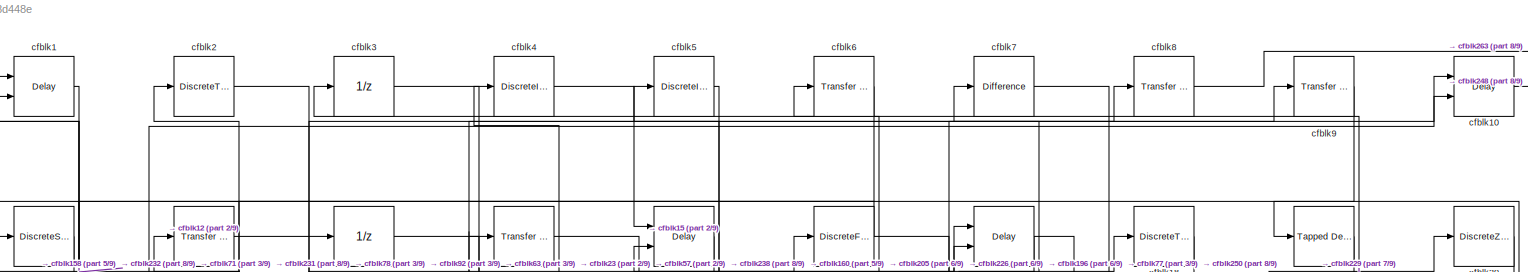
[diagram: root canvas - part 1/9, full width, top band]
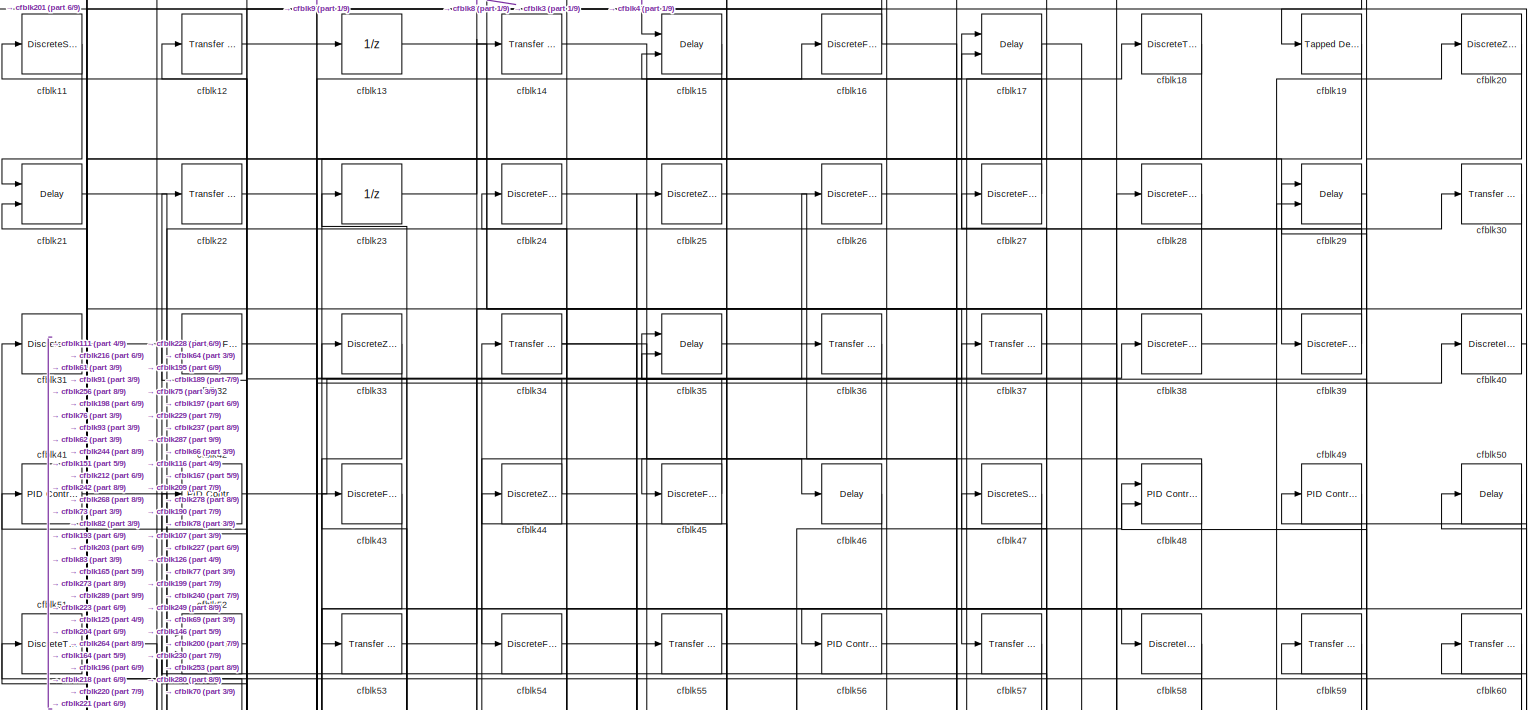
[diagram: root canvas - part 2/9, full width, top band]
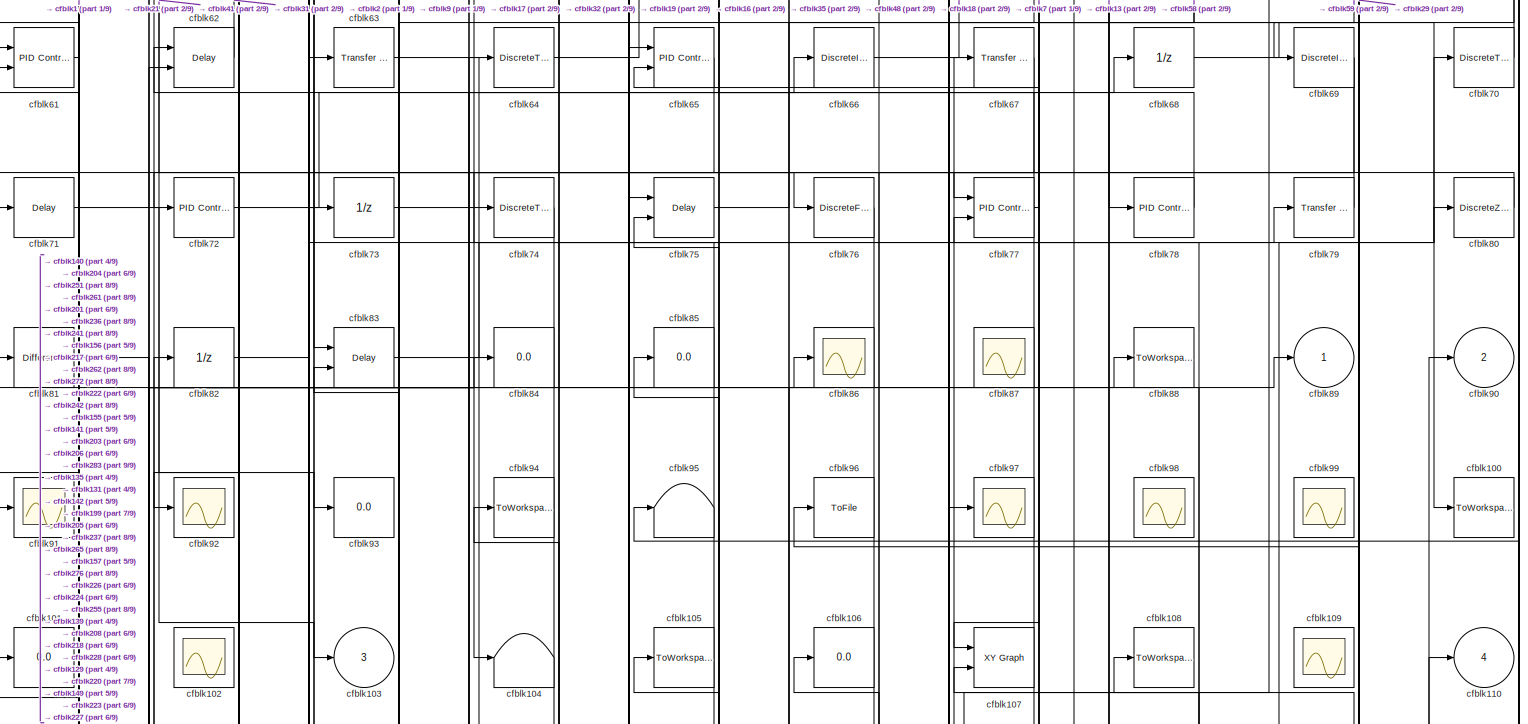
[diagram: root canvas - part 3/9, full width, top band]
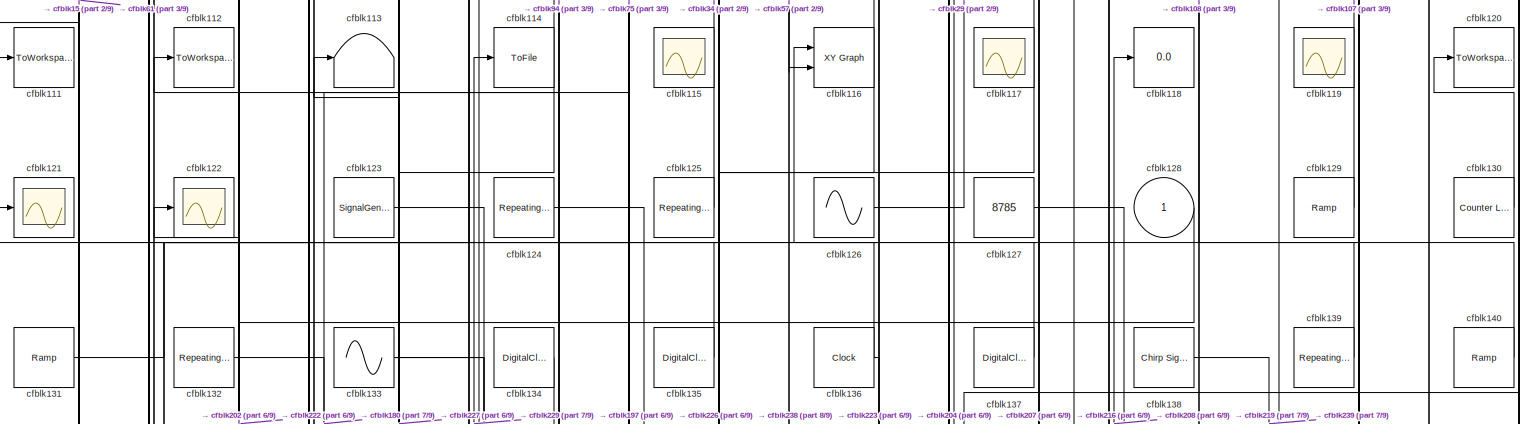
[diagram: root canvas - part 4/9, full width, middle band]
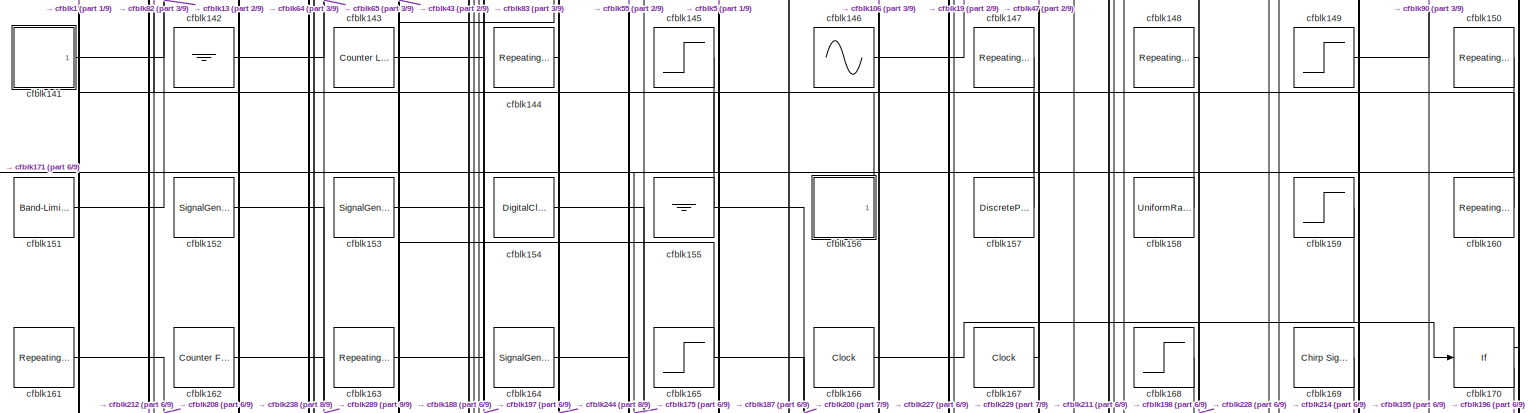
[diagram: root canvas - part 5/9, full width, middle band]
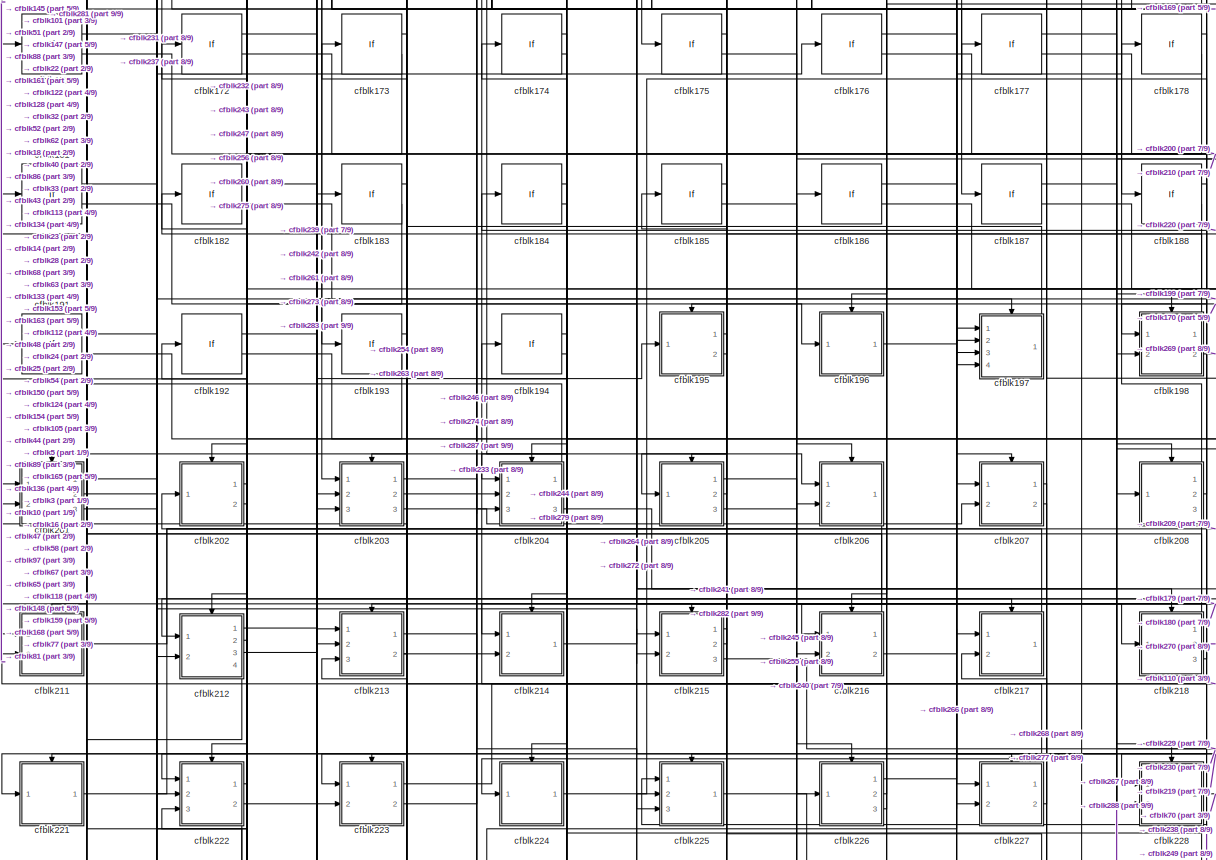
[diagram: root canvas - part 6/9, full width, bottom band]
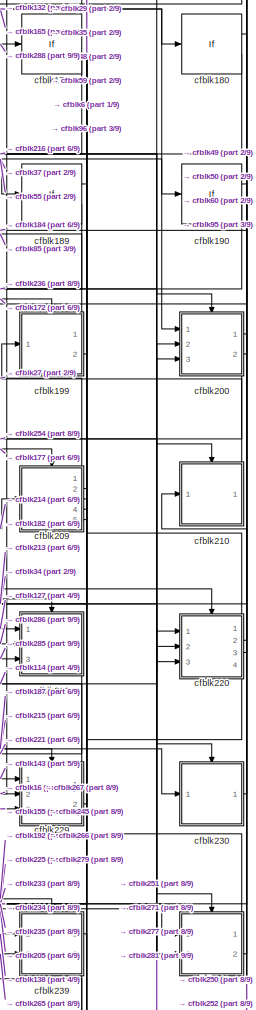
[diagram: root canvas - part 7/9, bottom right region]
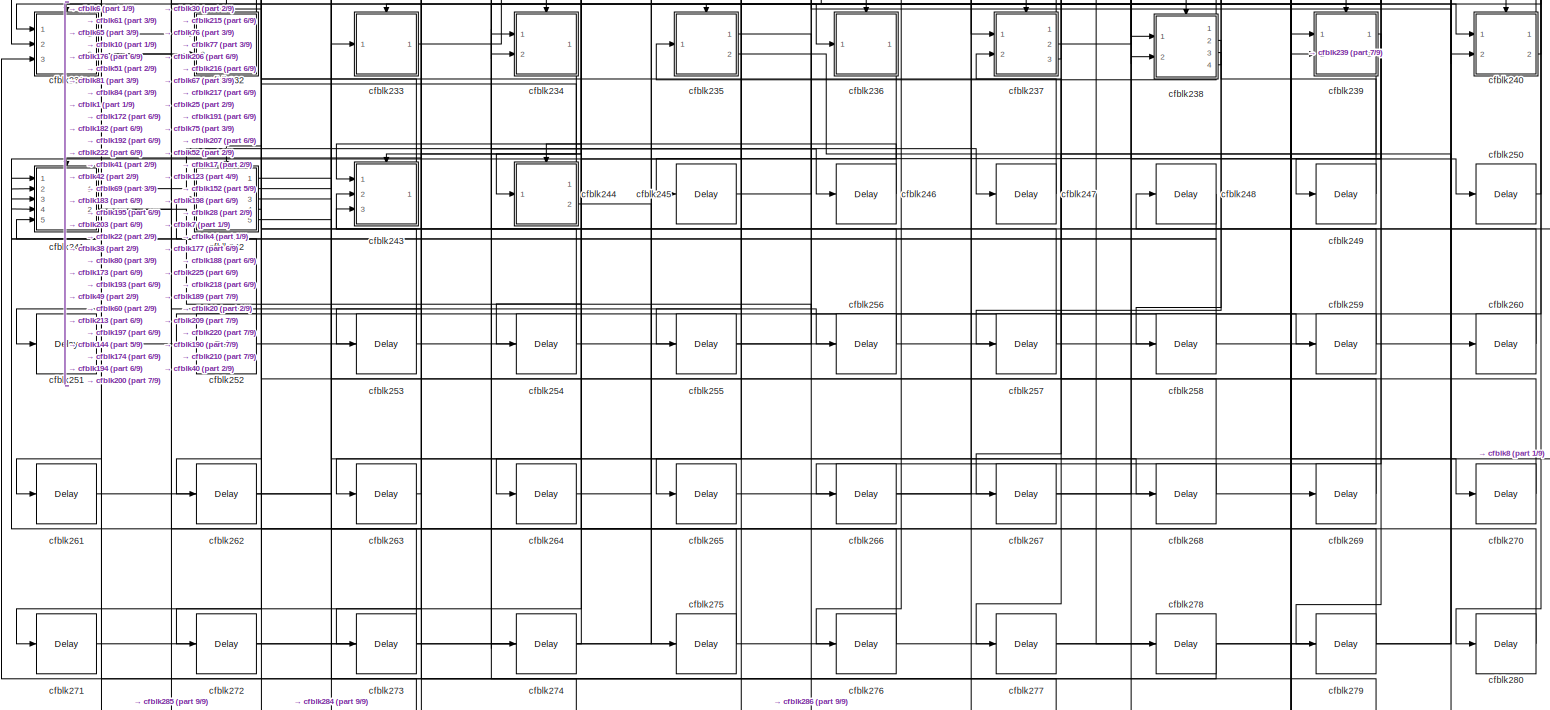
[diagram: root canvas - part 8/9, full width, bottom band]
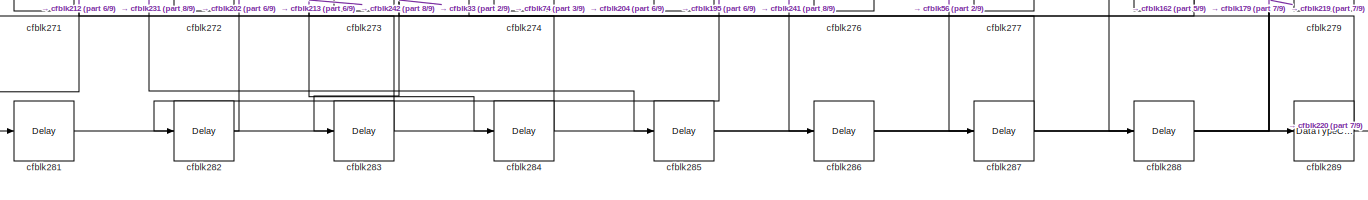
[diagram: root canvas - part 9/9, full width, bottom band]
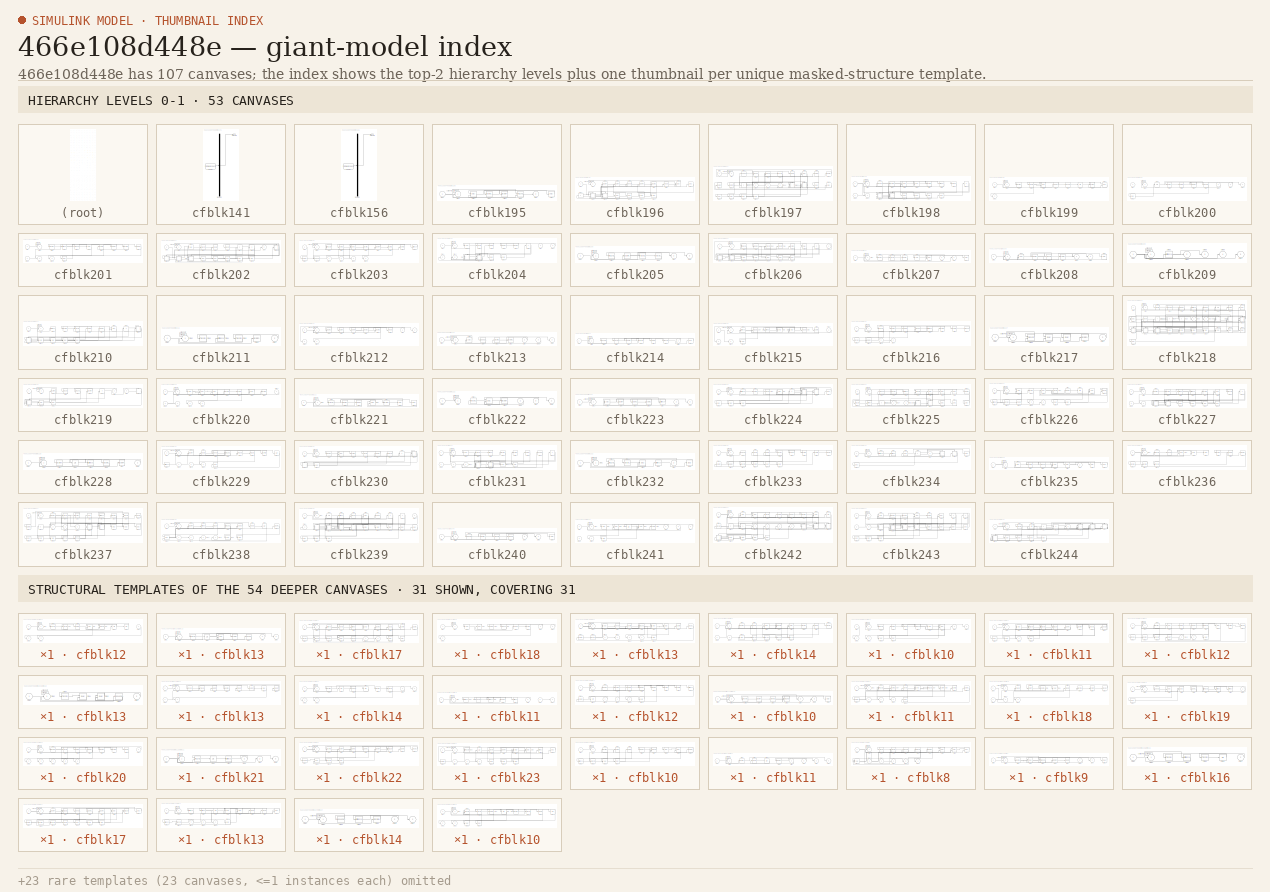
[diagram: thumbnail index - top-2 hierarchy levels (53 canvases) + 31 structural-template representatives of the remaining 54 canvases]
MODEL slx_466e108d448e
KIND model
CONFIG AbsTol = auto
CONFIG EnableMultiTasking = off
CONFIG FixedStep = auto
CONFIG MaxStep = auto
CONFIG MinStep = auto
CONFIG RelTol = 1e-3
CONFIG SampleTimeConstraint = Unconstrained
CONFIG Solver = VariableStepAuto
CONFIG SolverName = VariableStepAuto
CONFIG StartTime = 0.0
CONFIG StopTime = 10.0
BLOCK [Delay] cfblk1
  InputPortMap = u0,e6
  Ports = [2, 1]
  SampleTime = 1
  ShowEnablePort = on
BLOCK [Delay] cfblk10
  InputPortMap = u0,e6
  Ports = [2, 1]
  SampleTime = 1
  ShowEnablePort = on
BLOCK [ToWorkspace] cfblk100
  FixptAsFi = on
  MaxDataPoints = inf
  Ports = [1]
  SampleTime = -1
  Save2DSignal = 3-D array (concatenate along third dimension)
  SaveFormat = Timeseries
  VariableName = sxokymd
BLOCK [Display] cfblk101
  Decimation = 1
  Ports = [1]
BLOCK [Scope] cfblk102
  Floating = on
  NumInputPorts = 1
  Ports = []
BLOCK [Outport] cfblk103
  IconDisplay = Port number
  Port = 3
BLOCK [Terminator] cfblk104
BLOCK [ToWorkspace] cfblk105
  FixptAsFi = on
  MaxDataPoints = inf
  Ports = [1]
  SampleTime = -1
  Save2DSignal = 3-D array (concatenate along third dimension)
  SaveFormat = Timeseries
  VariableName = zdioxsb
BLOCK [Display] cfblk106
  Decimation = 1
  Ports = [1]
BLOCK [Reference] cfblk107  REF=simulink/Sinks/XY Graph
  Ports = [2]
  SourceBlock = simulink/Sinks/XY Graph
  SourceProductBaseCode = SL
  SourceProductName = Simulink
  SourceType = XY scope.
BLOCK [ToWorkspace] cfblk108
  FixptAsFi = on
  MaxDataPoints = inf
  Ports = [1]
  SampleTime = -1
  Save2DSignal = 3-D array (concatenate along third dimension)
  SaveFormat = Timeseries
  VariableName = yqgfefg
BLOCK [Scope] cfblk109
  Floating = on
  NumInputPorts = 1
  Ports = []
BLOCK [DiscreteStateSpace] cfblk11
BLOCK [Outport] cfblk110
  IconDisplay = Port number
  Port = 4
BLOCK [ToWorkspace] cfblk111
  FixptAsFi = on
  MaxDataPoints = inf
  Ports = [1]
  SampleTime = -1
  Save2DSignal = 3-D array (concatenate along third dimension)
  SaveFormat = Timeseries
  VariableName = egcazdz
BLOCK [ToWorkspace] cfblk112
  FixptAsFi = on
  MaxDataPoints = inf
  Ports = [1]
  SampleTime = -1
  Save2DSignal = 3-D array (concatenate along third dimension)
  SaveFormat = Timeseries
  VariableName = iffcmsi
BLOCK [Terminator] cfblk113
BLOCK [ToFile] cfblk114
  Filename = nxck
  Ports = [1]
  SaveFormat = Timeseries
BLOCK [Scope] cfblk115
  Floating = on
  NumInputPorts = 1
  Ports = []
BLOCK [Reference] cfblk116  REF=simulink/Sinks/XY Graph
  Ports = [2]
  SourceBlock = simulink/Sinks/XY Graph
  SourceProductBaseCode = SL
  SourceProductName = Simulink
  SourceType = XY scope.
BLOCK [Scope] cfblk117
  Floating = on
  NumInputPorts = 1
  Ports = []
BLOCK [Display] cfblk118
  Decimation = 1
  Ports = [1]
BLOCK [Scope] cfblk119
  Floating = on
  NumInputPorts = 1
  Ports = []
BLOCK [Reference] cfblk12  REF=simulink/Discrete/Transfer Fcn
First Order
  Ports = [1, 1]
  SourceBlock = simulink/Discrete/Transfer Fcn\nFirst Order
  SourceProductBaseCode = SL
  SourceProductName = Simulink
  SourceType = First Order Transfer Fcn
BLOCK [ToWorkspace] cfblk120
  FixptAsFi = on
  MaxDataPoints = inf
  Ports = [1]
  SampleTime = -1
  Save2DSignal = 3-D array (concatenate along third dimension)
  SaveFormat = Timeseries
  VariableName = bomsczf
BLOCK [Scope] cfblk121
  NumInputPorts = 1
  Ports = [1]
BLOCK [Scope] cfblk122
  NumInputPorts = 1
  Ports = [1]
BLOCK [SignalGenerator] cfblk123
  Ports = [0, 1]
  Units = rad/sec
BLOCK [Reference] cfblk124  REF=simulink/Sources/Repeating
Sequence
Interpolated
  Ports = [0, 1]
  SourceBlock = simulink/Sources/Repeating\nSequence\nInterpolated
  SourceProductBaseCode = SL
  SourceProductName = Simulink
  SourceType = Repeating Sequence Interpolated
BLOCK [Reference] cfblk125  REF=simulink/Sources/Repeating
Sequence
Interpolated
  Ports = [0, 1]
  SourceBlock = simulink/Sources/Repeating\nSequence\nInterpolated
  SourceProductBaseCode = SL
  SourceProductName = Simulink
  SourceType = Repeating Sequence Interpolated
BLOCK [Sin] cfblk126
  Ports = [0, 1]
  SampleTime = 0
BLOCK [Constant] cfblk127
  Value = 8785
BLOCK [Inport] cfblk128
  IconDisplay = Port number
BLOCK [Reference] cfblk129  REF=simulink/Sources/Ramp
  Ports = [0, 1]
  SourceBlock = simulink/Sources/Ramp
  SourceProductBaseCode = SL
  SourceProductName = Simulink
  SourceType = Ramp
BLOCK [UnitDelay] cfblk13
  InputProcessing = Elements as channels (sample based)
BLOCK [Reference] cfblk130  REF=simulink/Sources/Counter
Limited
  Ports = [0, 1]
  SourceBlock = simulink/Sources/Counter\nLimited
  SourceProductBaseCode = SL
  SourceProductName = Simulink
  SourceType = Counter Limited
BLOCK [Reference] cfblk131  REF=simulink/Sources/Ramp
  Ports = [0, 1]
  SourceBlock = simulink/Sources/Ramp
  SourceProductBaseCode = SL
  SourceProductName = Simulink
  SourceType = Ramp
BLOCK [Reference] cfblk132  REF=simulink/Sources/Repeating
Sequence
Interpolated
  Ports = [0, 1]
  SourceBlock = simulink/Sources/Repeating\nSequence\nInterpolated
  SourceProductBaseCode = SL
  SourceProductName = Simulink
  SourceType = Repeating Sequence Interpolated
BLOCK [Sin] cfblk133
  Ports = [0, 1]
  SampleTime = 0
BLOCK [DigitalClock] cfblk134
BLOCK [DigitalClock] cfblk135
BLOCK [Clock] cfblk136
BLOCK [DigitalClock] cfblk137
BLOCK [Reference] cfblk138  REF=simulink/Sources/Chirp Signal
  Ports = [0, 1]
  SourceBlock = simulink/Sources/Chirp Signal
  SourceProductBaseCode = SL
  SourceProductName = Simulink
  SourceType = chirp
BLOCK [Reference] cfblk139  REF=simulink/Sources/Repeating
Sequence
Interpolated
  Ports = [0, 1]
  SourceBlock = simulink/Sources/Repeating\nSequence\nInterpolated
  SourceProductBaseCode = SL
  SourceProductName = Simulink
  SourceType = Repeating Sequence Interpolated
BLOCK [Reference] cfblk14  REF=simulink/Discrete/Transfer Fcn
Real Zero
  Ports = [1, 1]
  SourceBlock = simulink/Discrete/Transfer Fcn\nReal Zero
  SourceProductBaseCode = SL
  SourceProductName = Simulink
  SourceType = Transfer Fcn Real Zero
BLOCK [Reference] cfblk140  REF=simulink/Sources/Ramp
  Ports = [0, 1]
  SourceBlock = simulink/Sources/Ramp
  SourceProductBaseCode = SL
  SourceProductName = Simulink
  SourceType = Ramp
BLOCK [SubSystem] cfblk141
  ClipboardFcn = sigbuilder_block('clipboard');
  CloseFcn = sigbuilder_block('close');
  ContinueFcn = sigbuilder_block('continue');
  CopyFcn = sigbuilder_block('copy');
  DeleteFcn = sigbuilder_block('delete');
  LoadFcn = sigbuilder_block('load');
  MaskHideContents = on
  ModelCloseFcn = sigbuilder_block('modelClose');
  NameChangeFcn = sigbuilder_block('namechange');
  OpenFcn = sigbuilder_block('open',[437.6 199.2 550.4 400 ]);
  PauseFcn = sigbuilder_block('pause');
  Ports = [0, 1]
  PreSaveFcn = sigbuilder_block('preSave');
  RequestExecContextInheritance = off
  StartFcn = sigbuilder_block('start');
  StopFcn = sigbuilder_block('stop');
  Tag = STV Subsys
  Variant = off
BLOCK [Demux] cfblk141/Demux
  Outputs = 1
  Ports = [1, 1]
  Tag = STV Demux
BLOCK [FromWorkspace] cfblk141/FromWs
  SampleTime = 0
  Tag = STV FromWs
  VariableName = tuvar
  ZeroCross = on
BLOCK [Outport] cfblk141/Signal 1
  IconDisplay = Port number
  Tag = STV Outport
BLOCK [Ground] cfblk142
BLOCK [Reference] cfblk143  REF=simulink/Sources/Counter
Limited
  Ports = [0, 1]
  SourceBlock = simulink/Sources/Counter\nLimited
  SourceProductBaseCode = SL
  SourceProductName = Simulink
  SourceType = Counter Limited
BLOCK [Reference] cfblk144  REF=simulink/Sources/Repeating
Sequence
  Ports = [0, 1]
  SourceBlock = simulink/Sources/Repeating\nSequence
  SourceProductBaseCode = SL
  SourceProductName = Simulink
  SourceType = Repeating table
BLOCK [Step] cfblk145
  After = 94
  SampleTime = 0
BLOCK [Sin] cfblk146
  Ports = [0, 1]
  SampleTime = 0
BLOCK [Reference] cfblk147  REF=simulink/Sources/Repeating
Sequence
Interpolated
  Ports = [0, 1]
  SourceBlock = simulink/Sources/Repeating\nSequence\nInterpolated
  SourceProductBaseCode = SL
  SourceProductName = Simulink
  SourceType = Repeating Sequence Interpolated
BLOCK [Reference] cfblk148  REF=simulink/Sources/Repeating
Sequence
Stair
  Ports = [0, 1]
  SourceBlock = simulink/Sources/Repeating\nSequence\nStair
  SourceProductBaseCode = SL
  SourceProductName = Simulink
  SourceType = Repeating Sequence Stair
BLOCK [Step] cfblk149
  After = 59
  SampleTime = 0
BLOCK [Delay] cfblk15
  InputPortMap = u0,e6
  Ports = [2, 1]
  SampleTime = 1
  ShowEnablePort = on
BLOCK [Reference] cfblk150  REF=simulink/Sources/Repeating
Sequence
  Ports = [0, 1]
  SourceBlock = simulink/Sources/Repeating\nSequence
  SourceProductBaseCode = SL
  SourceProductName = Simulink
  SourceType = Repeating table
BLOCK [Reference] cfblk151  REF=simulink/Sources/Band-Limited
White Noise
  Ports = [0, 1]
  SourceBlock = simulink/Sources/Band-Limited\nWhite Noise
  SourceProductBaseCode = SL
  SourceProductName = Simulink
  SourceType = Band-Limited White Noise.
BLOCK [SignalGenerator] cfblk152
  Ports = [0, 1]
  Units = rad/sec
BLOCK [SignalGenerator] cfblk153
  Ports = [0, 1]
  Units = rad/sec
BLOCK [DigitalClock] cfblk154
BLOCK [Ground] cfblk155
BLOCK [SubSystem] cfblk156
  ClipboardFcn = sigbuilder_block('clipboard');
  CloseFcn = sigbuilder_block('close');
  ContinueFcn = sigbuilder_block('continue');
  CopyFcn = sigbuilder_block('copy');
  DeleteFcn = sigbuilder_block('delete');
  LoadFcn = sigbuilder_block('load');
  MaskHideContents = on
  ModelCloseFcn = sigbuilder_block('modelClose');
  NameChangeFcn = sigbuilder_block('namechange');
  OpenFcn = sigbuilder_block('open',[437.6 199.2 550.4 400 ]);
  PauseFcn = sigbuilder_block('pause');
  Ports = [0, 1]
  PreSaveFcn = sigbuilder_block('preSave');
  RequestExecContextInheritance = off
  StartFcn = sigbuilder_block('start');
  StopFcn = sigbuilder_block('stop');
  Tag = STV Subsys
  Variant = off
BLOCK [Demux] cfblk156/Demux
  Outputs = 1
  Ports = [1, 1]
  Tag = STV Demux
BLOCK [FromWorkspace] cfblk156/FromWs
  SampleTime = 0
  Tag = STV FromWs
  VariableName = tuvar
  ZeroCross = on
BLOCK [Outport] cfblk156/Signal 1
  IconDisplay = Port number
  Tag = STV Outport
BLOCK [DiscretePulseGenerator] cfblk157
  Period = 10
  Ports = [0, 1]
  PulseType = Time based
  PulseWidth = 5
BLOCK [UniformRandomNumber] cfblk158
  SampleTime = 0.1
BLOCK [Step] cfblk159
  After = 53
  SampleTime = 0
BLOCK [DiscreteFir] cfblk16
  InputPortMap = u0
  OutputPortMap = o0
  Ports = [1, 1]
  SampleTime = 1
BLOCK [Reference] cfblk160  REF=simulink/Sources/Repeating
Sequence
  Ports = [0, 1]
  SourceBlock = simulink/Sources/Repeating\nSequence
  SourceProductBaseCode = SL
  SourceProductName = Simulink
  SourceType = Repeating table
BLOCK [Reference] cfblk161  REF=simulink/Sources/Repeating
Sequence
  Ports = [0, 1]
  SourceBlock = simulink/Sources/Repeating\nSequence
  SourceProductBaseCode = SL
  SourceProductName = Simulink
  SourceType = Repeating table
BLOCK [Reference] cfblk162  REF=simulink/Sources/Counter
Free-Running
  Ports = [0, 1]
  SourceBlock = simulink/Sources/Counter\nFree-Running
  SourceProductBaseCode = SL
  SourceProductName = Simulink
  SourceType = Counter Free-Running
BLOCK [Reference] cfblk163  REF=simulink/Sources/Repeating
Sequence
Interpolated
  Ports = [0, 1]
  SourceBlock = simulink/Sources/Repeating\nSequence\nInterpolated
  SourceProductBaseCode = SL
  SourceProductName = Simulink
  SourceType = Repeating Sequence Interpolated
BLOCK [SignalGenerator] cfblk164
  Ports = [0, 1]
  Units = rad/sec
BLOCK [Step] cfblk165
  After = 66
  SampleTime = 0
BLOCK [Clock] cfblk166
BLOCK [Clock] cfblk167
BLOCK [Step] cfblk168
  After = 29
  SampleTime = 0
BLOCK [Reference] cfblk169  REF=simulink/Sources/Chirp Signal
  Ports = [0, 1]
  SourceBlock = simulink/Sources/Chirp Signal
  SourceProductBaseCode = SL
  SourceProductName = Simulink
  SourceType = chirp
BLOCK [Delay] cfblk17
  InputPortMap = u0,e6
  Ports = [2, 1]
  SampleTime = 1
  ShowEnablePort = on
BLOCK [If] cfblk170
  Ports = [1, 2]
  SampleTime = 1
BLOCK [If] cfblk171
  Ports = [1, 2]
  SampleTime = 1
BLOCK [If] cfblk172
  Ports = [1, 2]
  SampleTime = 1
BLOCK [If] cfblk173
  Ports = [1, 2]
  SampleTime = 1
BLOCK [If] cfblk174
  Ports = [1, 2]
  SampleTime = 1
BLOCK [If] cfblk175
  Ports = [1, 2]
  SampleTime = 1
BLOCK [If] cfblk176
  Ports = [1, 2]
  SampleTime = 1
BLOCK [If] cfblk177
  Ports = [1, 2]
  SampleTime = 1
BLOCK [If] cfblk178
  Ports = [1, 2]
  SampleTime = 1
BLOCK [If] cfblk179
  Ports = [1, 2]
  SampleTime = 1
BLOCK [DiscreteTransferFcn] cfblk18
  InputPortMap = u0
  Ports = [1, 1]
  SampleTime = 1
BLOCK [If] cfblk180
  Ports = [1, 2]
  SampleTime = 1
BLOCK [If] cfblk181
  Ports = [1, 2]
  SampleTime = 1
BLOCK [If] cfblk182
  Ports = [1, 2]
  SampleTime = 1
BLOCK [If] cfblk183
  Ports = [1, 2]
  SampleTime = 1
BLOCK [If] cfblk184
  Ports = [1, 2]
  SampleTime = 1
BLOCK [If] cfblk185
  Ports = [1, 2]
  SampleTime = 1
BLOCK [If] cfblk186
  Ports = [1, 2]
  SampleTime = 1
BLOCK [If] cfblk187
  Ports = [1, 2]
  SampleTime = 1
BLOCK [If] cfblk188
  Ports = [1, 2]
  SampleTime = 1
BLOCK [If] cfblk189
  Ports = [1, 2]
  SampleTime = 1
BLOCK [Reference] cfblk19  REF=simulink/Discrete/Tapped Delay
  Ports = [1, 1]
  SourceBlock = simulink/Discrete/Tapped Delay
  SourceProductBaseCode = SL
  SourceProductName = Simulink
  SourceType = Tapped Delay Line
BLOCK [If] cfblk190
  Ports = [1, 2]
  SampleTime = 1
BLOCK [If] cfblk191
  Ports = [1, 2]
  SampleTime = 1
BLOCK [If] cfblk192
  Ports = [1, 2]
  SampleTime = 1
BLOCK [If] cfblk193
  Ports = [1, 2]
  SampleTime = 1
BLOCK [If] cfblk194
  Ports = [1, 2]
  SampleTime = 1
BLOCK [SubSystem] cfblk195
  Ports = [1, 2, 0, 0, 0, 0, 0, 1]
  RequestExecContextInheritance = off
  TreatAsAtomicUnit = on
  Variant = off
BLOCK [ActionPort] cfblk195/Action Port
  ActionType = then
BLOCK [Inport] cfblk195/cfblk1
  IconDisplay = Port number
BLOCK [Outport] cfblk195/cfblk2
  IconDisplay = Port number
BLOCK [Delay] cfblk195/cfblk3
  DelayLengthSource = Input port
  InputPortMap = u0,p1
  Ports = [2, 1]
BLOCK [DiscreteStateSpace] cfblk195/cfblk4
  SampleTime = -1
BLOCK [DiscreteFilter] cfblk195/cfblk5
  InputPortMap = u0
  Ports = [1, 1]
BLOCK [Reference] cfblk195/cfblk6  REF=simulink/Continuous/PID Controller (2DOF)
  Ports = [2, 1]
  SourceBlock = simulink/Continuous/PID Controller (2DOF)
  SourceProductBaseCode = SL
  SourceProductName = Simulink
  SourceType = PID 2dof
BLOCK [Outport] cfblk195/cfblk7
  IconDisplay = Port number
  Port = 2
BLOCK [Delay] cfblk195/cfblk8
  InputPortMap = u0
  Ports = [1, 1]
BLOCK [SubSystem] cfblk196
  Ports = [1, 1, 0, 0, 0, 0, 0, 1]
  RequestExecContextInheritance = off
  TreatAsAtomicUnit = on
  Variant = off
BLOCK [ActionPort] cfblk196/Action Port
  ActionType = else
BLOCK [Inport] cfblk196/cfblk1
  IconDisplay = Port number
BLOCK [Delay] cfblk196/cfblk10
  InputPortMap = u0
  Ports = [1, 1]
BLOCK [If] cfblk196/cfblk11
  Ports = [1, 2]
  SampleTime = 1
BLOCK [SubSystem] cfblk196/cfblk12
  Ports = [2, 3, 0, 0, 0, 0, 0, 1]
  RequestExecContextInheritance = off
  TreatAsAtomicUnit = on
  Variant = off
BLOCK [ActionPort] cfblk196/cfblk12/Action Port
  ActionType = then
BLOCK [Inport] cfblk196/cfblk12/cfblk1
  IconDisplay = Port number
BLOCK [Inport] cfblk196/cfblk12/cfblk10
  IconDisplay = Port number
  Port = 2
BLOCK [Outport] cfblk196/cfblk12/cfblk11
  IconDisplay = Port number
  Port = 2
BLOCK [Outport] cfblk196/cfblk12/cfblk12
  IconDisplay = Port number
  Port = 3
BLOCK [Outport] cfblk196/cfblk12/cfblk2
  IconDisplay = Port number
BLOCK [Reference] cfblk196/cfblk12/cfblk3  REF=simulink/Discrete/Transfer Fcn
First Order
  Ports = [1, 1]
  SourceBlock = simulink/Discrete/Transfer Fcn\nFirst Order
  SourceProductBaseCode = SL
  SourceProductName = Simulink
  SourceType = First Order Transfer Fcn
BLOCK [Reference] cfblk196/cfblk12/cfblk4  REF=simulink/Discrete/Transfer Fcn
First Order
  Ports = [1, 1]
  SourceBlock = simulink/Discrete/Transfer Fcn\nFirst Order
  SourceProductBaseCode = SL
  SourceProductName = Simulink
  SourceType = First Order Transfer Fcn
BLOCK [DiscreteFilter] cfblk196/cfblk12/cfblk5
  InputPortMap = u0
  Ports = [1, 1]
BLOCK [Delay] cfblk196/cfblk12/cfblk6
  InputPortMap = u0,e6
  Ports = [2, 1]
  ShowEnablePort = on
BLOCK [Reference] cfblk196/cfblk12/cfblk7  REF=simulink/Continuous/PID Controller (2DOF)
  Ports = [2, 1]
  SourceBlock = simulink/Continuous/PID Controller (2DOF)
  SourceProductBaseCode = SL
  SourceProductName = Simulink
  SourceType = PID 2dof
BLOCK [UnitDelay] cfblk196/cfblk12/cfblk8
  InputProcessing = Elements as channels (sample based)
  SampleTime = -1
BLOCK [UnitDelay] cfblk196/cfblk12/cfblk9
  InputProcessing = Elements as channels (sample based)
  SampleTime = -1
BLOCK [SubSystem] cfblk196/cfblk13
  Ports = [2, 2, 0, 0, 0, 0, 0, 1]
  RequestExecContextInheritance = off
  TreatAsAtomicUnit = on
  Variant = off
BLOCK [ActionPort] cfblk196/cfblk13/Action Port
  ActionType = else
BLOCK [Inport] cfblk196/cfblk13/cfblk1
  IconDisplay = Port number
BLOCK [Outport] cfblk196/cfblk13/cfblk2
  IconDisplay = Port number
BLOCK [Reference] cfblk196/cfblk13/cfblk3  REF=simulink/Discrete/Transfer Fcn
Lead or Lag
  Ports = [1, 1]
  SourceBlock = simulink/Discrete/Transfer Fcn\nLead or Lag
  SourceProductBaseCode = SL
  SourceProductName = Simulink
  SourceType = Lead or Lag Compensator
BLOCK [UnitDelay] cfblk196/cfblk13/cfblk4
  InputProcessing = Elements as channels (sample based)
  SampleTime = -1
BLOCK [Delay] cfblk196/cfblk13/cfblk5
  DelayLengthSource = Input port
  InputPortMap = u0,p1
  Ports = [2, 1]
BLOCK [DiscreteFir] cfblk196/cfblk13/cfblk6
  InputPortMap = u0
  OutputPortMap = o0
  Ports = [1, 1]
BLOCK [Reference] cfblk196/cfblk13/cfblk7  REF=simulink/Discrete/Tapped Delay
  Ports = [1, 1]
  SourceBlock = simulink/Discrete/Tapped Delay
  SourceProductBaseCode = SL
  SourceProductName = Simulink
  SourceType = Tapped Delay Line
BLOCK [Inport] cfblk196/cfblk13/cfblk8
  IconDisplay = Port number
  Port = 2
BLOCK [Outport] cfblk196/cfblk13/cfblk9
  IconDisplay = Port number
  Port = 2
BLOCK [Delay] cfblk196/cfblk14
  InputPortMap = u0
  Ports = [1, 1]
BLOCK [Delay] cfblk196/cfblk15
  InputPortMap = u0
  Ports = [1, 1]
BLOCK [Delay] cfblk196/cfblk16
  InputPortMap = u0
  Ports = [1, 1]
BLOCK [Delay] cfblk196/cfblk17
  InputPortMap = u0
  Ports = [1, 1]
BLOCK [Outport] cfblk196/cfblk2
  IconDisplay = Port number
BLOCK [DiscreteFir] cfblk196/cfblk3
  InputPortMap = u0
  OutputPortMap = o0
  Ports = [1, 1]
BLOCK [DiscreteTransferFcn] cfblk196/cfblk4
  InputPortMap = u0
  Ports = [1, 1]
BLOCK [Reference] cfblk196/cfblk5  REF=simulink/Discrete/Tapped Delay
  Ports = [1, 1]
  SourceBlock = simulink/Discrete/Tapped Delay
  SourceProductBaseCode = SL
  SourceProductName = Simulink
  SourceType = Tapped Delay Line
BLOCK [DiscreteFilter] cfblk196/cfblk6
  InputPortMap = u0
  Ports = [1, 1]
BLOCK [DiscreteIntegrator] cfblk196/cfblk7
  ICPrevOutput = DiscIntNeverNeededParam
  ICPrevScaledInput = DiscIntNeverNeededParam
  InitialConditionSetting = State (most efficient)
  Ports = [1, 1]
  SampleTime = -1
BLOCK [Reference] cfblk196/cfblk8  REF=simulink/Discrete/Transfer Fcn
Real Zero
  Ports = [1, 1]
  SourceBlock = simulink/Discrete/Transfer Fcn\nReal Zero
  SourceProductBaseCode = SL
  SourceProductName = Simulink
  SourceType = Transfer Fcn Real Zero
BLOCK [Delay] cfblk196/cfblk9
  DelayLengthSource = Input port
  InputPortMap = u0,p1
  Ports = [2, 1]
BLOCK [SubSystem] cfblk197
  Ports = [4, 1, 0, 0, 0, 0, 0, 1]
  RequestExecContextInheritance = off
  TreatAsAtomicUnit = on
  Variant = off
BLOCK [ActionPort] cfblk197/Action Port
  ActionType = then
BLOCK [Inport] cfblk197/cfblk1
  IconDisplay = Port number
BLOCK [DiscreteFilter] cfblk197/cfblk10
  InputPortMap = u0
  Ports = [1, 1]
BLOCK [DiscreteZeroPole] cfblk197/cfblk11
  Gain = 1
  Poles = [0 0.5]
  SampleTime = -1
BLOCK [DiscreteStateSpace] cfblk197/cfblk12
  SampleTime = -1
BLOCK [If] cfblk197/cfblk13
  Ports = [1, 2]
  SampleTime = 1
BLOCK [Inport] cfblk197/cfblk14
  IconDisplay = Port number
  Port = 2
BLOCK [Inport] cfblk197/cfblk15
  IconDisplay = Port number
  Port = 3
BLOCK [Inport] cfblk197/cfblk16
  IconDisplay = Port number
  Port = 4
BLOCK [SubSystem] cfblk197/cfblk17
  Ports = [2, 2, 0, 0, 0, 0, 0, 1]
  RequestExecContextInheritance = off
  TreatAsAtomicUnit = on
  Variant = off
BLOCK [ActionPort] cfblk197/cfblk17/Action Port
  ActionType = then
BLOCK [Inport] cfblk197/cfblk17/cfblk1
  IconDisplay = Port number
BLOCK [DiscreteFir] cfblk197/cfblk17/cfblk10
  InputPortMap = u0
  OutputPortMap = o0
  Ports = [1, 1]
BLOCK [Reference] cfblk197/cfblk17/cfblk11  REF=simulink/Discrete/Transfer Fcn
Real Zero
  Ports = [1, 1]
  SourceBlock = simulink/Discrete/Transfer Fcn\nReal Zero
  SourceProductBaseCode = SL
  SourceProductName = Simulink
  SourceType = Transfer Fcn Real Zero
BLOCK [Reference] cfblk197/cfblk17/cfblk12  REF=simulink/Continuous/PID Controller (2DOF)
  Ports = [2, 1]
  SourceBlock = simulink/Continuous/PID Controller (2DOF)
  SourceProductBaseCode = SL
  SourceProductName = Simulink
  SourceType = PID 2dof
BLOCK [DiscreteFir] cfblk197/cfblk17/cfblk13
  InputPortMap = u0
  OutputPortMap = o0
  Ports = [1, 1]
BLOCK [Delay] cfblk197/cfblk17/cfblk14
  InputPortMap = u0,e6
  Ports = [2, 1]
  ShowEnablePort = on
BLOCK [Reference] cfblk197/cfblk17/cfblk15  REF=simulink/Discrete/Tapped Delay
  Ports = [1, 1]
  SourceBlock = simulink/Discrete/Tapped Delay
  SourceProductBaseCode = SL
  SourceProductName = Simulink
  SourceType = Tapped Delay Line
BLOCK [Inport] cfblk197/cfblk17/cfblk16
  IconDisplay = Port number
  Port = 2
BLOCK [Outport] cfblk197/cfblk17/cfblk17
  IconDisplay = Port number
  Port = 2
BLOCK [Delay] cfblk197/cfblk17/cfblk18
  InputPortMap = u0
  Ports = [1, 1]
BLOCK [Delay] cfblk197/cfblk17/cfblk19
  InputPortMap = u0
  Ports = [1, 1]
BLOCK [Outport] cfblk197/cfblk17/cfblk2
  IconDisplay = Port number
BLOCK [Reference] cfblk197/cfblk17/cfblk3  REF=simulink/Discrete/Difference
  Ports = [1, 1]
  SourceBlock = simulink/Discrete/Difference
  SourceProductBaseCode = SL
  SourceProductName = Simulink
  SourceType = Difference
BLOCK [Reference] cfblk197/cfblk17/cfblk4  REF=simulink/Discrete/Transfer Fcn
Real Zero
  Ports = [1, 1]
  SourceBlock = simulink/Discrete/Transfer Fcn\nReal Zero
  SourceProductBaseCode = SL
  SourceProductName = Simulink
  SourceType = Transfer Fcn Real Zero
BLOCK [Reference] cfblk197/cfblk17/cfblk5  REF=simulink/Discrete/Difference
  Ports = [1, 1]
  SourceBlock = simulink/Discrete/Difference
  SourceProductBaseCode = SL
  SourceProductName = Simulink
  SourceType = Difference
BLOCK [Delay] cfblk197/cfblk17/cfblk6
  DelayLengthSource = Input port
  InputPortMap = u0,p1
  Ports = [2, 1]
BLOCK [DiscreteStateSpace] cfblk197/cfblk17/cfblk7
  SampleTime = -1
BLOCK [Reference] cfblk197/cfblk17/cfblk8  REF=simulink/Discrete/Transfer Fcn
Lead or Lag
  Ports = [1, 1]
  SourceBlock = simulink/Discrete/Transfer Fcn\nLead or Lag
  SourceProductBaseCode = SL
  SourceProductName = Simulink
  SourceType = Lead or Lag Compensator
BLOCK [DiscreteFir] cfblk197/cfblk17/cfblk9
  InputPortMap = u0
  OutputPortMap = o0
  Ports = [1, 1]
BLOCK [SubSystem] cfblk197/cfblk18
  Ports = [3, 2, 0, 0, 0, 0, 0, 1]
  RequestExecContextInheritance = off
  TreatAsAtomicUnit = on
  Variant = off
BLOCK [ActionPort] cfblk197/cfblk18/Action Port
  ActionType = else
BLOCK [Inport] cfblk197/cfblk18/cfblk1
  IconDisplay = Port number
BLOCK [Inport] cfblk197/cfblk18/cfblk10
  IconDisplay = Port number
  Port = 3
BLOCK [Outport] cfblk197/cfblk18/cfblk11
  IconDisplay = Port number
  Port = 2
BLOCK [Outport] cfblk197/cfblk18/cfblk2
  IconDisplay = Port number
BLOCK [Delay] cfblk197/cfblk18/cfblk3
  InputPortMap = u0
  Ports = [1, 1]
BLOCK [Delay] cfblk197/cfblk18/cfblk4
  InputPortMap = u0
  Ports = [1, 1]
BLOCK [DiscreteZeroPole] cfblk197/cfblk18/cfblk5
  Gain = 1
  Poles = [0 0.5]
  SampleTime = -1
BLOCK [Reference] cfblk197/cfblk18/cfblk6  REF=simulink/Continuous/PID Controller
  Ports = [1, 1]
  SourceBlock = simulink/Continuous/PID Controller
  SourceProductBaseCode = SL
  SourceProductName = Simulink
  SourceType = PID 1dof
BLOCK [Reference] cfblk197/cfblk18/cfblk7  REF=simulink/Discrete/Transfer Fcn
Real Zero
  Ports = [1, 1]
  SourceBlock = simulink/Discrete/Transfer Fcn\nReal Zero
  SourceProductBaseCode = SL
  SourceProductName = Simulink
  SourceType = Transfer Fcn Real Zero
BLOCK [DiscreteFilter] cfblk197/cfblk18/cfblk8
  InputPortMap = u0
  Ports = [1, 1]
BLOCK [Inport] cfblk197/cfblk18/cfblk9
  IconDisplay = Port number
  Port = 2
BLOCK [Delay] cfblk197/cfblk19
  InputPortMap = u0
  Ports = [1, 1]
BLOCK [Outport] cfblk197/cfblk2
  IconDisplay = Port number
BLOCK [Delay] cfblk197/cfblk20
  InputPortMap = u0
  Ports = [1, 1]
BLOCK [Delay] cfblk197/cfblk21
  InputPortMap = u0
  Ports = [1, 1]
BLOCK [Delay] cfblk197/cfblk22
  InputPortMap = u0
  Ports = [1, 1]
BLOCK [Delay] cfblk197/cfblk23
  InputPortMap = u0
  Ports = [1, 1]
BLOCK [Delay] cfblk197/cfblk24
  InputPortMap = u0
  Ports = [1, 1]
BLOCK [Reference] cfblk197/cfblk3  REF=simulink/Discrete/Tapped Delay
  Ports = [1, 1]
  SourceBlock = simulink/Discrete/Tapped Delay
  SourceProductBaseCode = SL
  SourceProductName = Simulink
  SourceType = Tapped Delay Line
BLOCK [Reference] cfblk197/cfblk4  REF=simulink/Continuous/PID Controller (2DOF)
  Ports = [2, 1]
  SourceBlock = simulink/Continuous/PID Controller (2DOF)
  SourceProductBaseCode = SL
  SourceProductName = Simulink
  SourceType = PID 2dof
BLOCK [Reference] cfblk197/cfblk5  REF=simulink/Continuous/PID Controller (2DOF)
  Ports = [2, 1]
  SourceBlock = simulink/Continuous/PID Controller (2DOF)
  SourceProductBaseCode = SL
  SourceProductName = Simulink
  SourceType = PID 2dof
BLOCK [Reference] cfblk197/cfblk6  REF=simulink/Discrete/Transfer Fcn
Real Zero
  Ports = [1, 1]
  SourceBlock = simulink/Discrete/Transfer Fcn\nReal Zero
  SourceProductBaseCode = SL
  SourceProductName = Simulink
  SourceType = Transfer Fcn Real Zero
BLOCK [Reference] cfblk197/cfblk7  REF=simulink/Discrete/Transfer Fcn
Lead or Lag
  Ports = [1, 1]
  SourceBlock = simulink/Discrete/Transfer Fcn\nLead or Lag
  SourceProductBaseCode = SL
  SourceProductName = Simulink
  SourceType = Lead or Lag Compensator
BLOCK [Delay] cfblk197/cfblk8
  DelayLengthSource = Input port
  InputPortMap = u0,p1
  Ports = [2, 1]
BLOCK [DiscreteFir] cfblk197/cfblk9
  InputPortMap = u0
  OutputPortMap = o0
  Ports = [1, 1]
BLOCK [SubSystem] cfblk198
  Ports = [2, 2, 0, 0, 0, 0, 0, 1]
  RequestExecContextInheritance = off
  TreatAsAtomicUnit = on
  Variant = off
BLOCK [ActionPort] cfblk198/Action Port
  ActionType = else
BLOCK [Inport] cfblk198/cfblk1
  IconDisplay = Port number
BLOCK [If] cfblk198/cfblk10
  Ports = [1, 2]
  SampleTime = 1
BLOCK [Inport] cfblk198/cfblk11
  IconDisplay = Port number
  Port = 2
BLOCK [Outport] cfblk198/cfblk12
  IconDisplay = Port number
  Port = 2
BLOCK [SubSystem] cfblk198/cfblk13
  Ports = [2, 4, 0, 0, 0, 0, 0, 1]
  RequestExecContextInheritance = off
  TreatAsAtomicUnit = on
  Variant = off
BLOCK [ActionPort] cfblk198/cfblk13/Action Port
  ActionType = then
BLOCK [Inport] cfblk198/cfblk13/cfblk1
  IconDisplay = Port number
BLOCK [Reference] cfblk198/cfblk13/cfblk10  REF=simulink/Discrete/Transfer Fcn
Real Zero
  Ports = [1, 1]
  SourceBlock = simulink/Discrete/Transfer Fcn\nReal Zero
  SourceProductBaseCode = SL
  SourceProductName = Simulink
  SourceType = Transfer Fcn Real Zero
BLOCK [DiscreteFilter] cfblk198/cfblk13/cfblk11
  InputPortMap = u0
  Ports = [1, 1]
BLOCK [Reference] cfblk198/cfblk13/cfblk12  REF=simulink/Discrete/Transfer Fcn
Lead or Lag
  Ports = [1, 1]
  SourceBlock = simulink/Discrete/Transfer Fcn\nLead or Lag
  SourceProductBaseCode = SL
  SourceProductName = Simulink
  SourceType = Lead or Lag Compensator
BLOCK [Inport] cfblk198/cfblk13/cfblk13
  IconDisplay = Port number
  Port = 2
BLOCK [Outport] cfblk198/cfblk13/cfblk14
  IconDisplay = Port number
  Port = 2
BLOCK [Outport] cfblk198/cfblk13/cfblk15
  IconDisplay = Port number
  Port = 3
BLOCK [Outport] cfblk198/cfblk13/cfblk16
  IconDisplay = Port number
  Port = 4
BLOCK [Delay] cfblk198/cfblk13/cfblk17
  InputPortMap = u0
  Ports = [1, 1]
BLOCK [Outport] cfblk198/cfblk13/cfblk2
  IconDisplay = Port number
BLOCK [Delay] cfblk198/cfblk13/cfblk3
  DelayLengthSource = Input port
  InputPortMap = u0,p1
  Ports = [2, 1]
BLOCK [Reference] cfblk198/cfblk13/cfblk4  REF=simulink/Discrete/Tapped Delay
  Ports = [1, 1]
  SourceBlock = simulink/Discrete/Tapped Delay
  SourceProductBaseCode = SL
  SourceProductName = Simulink
  SourceType = Tapped Delay Line
BLOCK [DiscreteIntegrator] cfblk198/cfblk13/cfblk5
  ICPrevOutput = DiscIntNeverNeededParam
  ICPrevScaledInput = DiscIntNeverNeededParam
  InitialConditionSetting = State (most efficient)
  Ports = [1, 1]
  SampleTime = -1
BLOCK [Reference] cfblk198/cfblk13/cfblk6  REF=simulink/Continuous/PID Controller (2DOF)
  Ports = [2, 1]
  SourceBlock = simulink/Continuous/PID Controller (2DOF)
  SourceProductBaseCode = SL
  SourceProductName = Simulink
  SourceType = PID 2dof
BLOCK [Delay] cfblk198/cfblk13/cfblk7
  DelayLengthSource = Input port
  InputPortMap = u0,p1
  Ports = [2, 1]
BLOCK [Delay] cfblk198/cfblk13/cfblk8
  DelayLengthSource = Input port
  InputPortMap = u0,p1
  Ports = [2, 1]
BLOCK [DiscreteFir] cfblk198/cfblk13/cfblk9
  InputPortMap = u0
  OutputPortMap = o0
  Ports = [1, 1]
BLOCK [SubSystem] cfblk198/cfblk14
  Ports = [3, 1, 0, 0, 0, 0, 0, 1]
  RequestExecContextInheritance = off
  TreatAsAtomicUnit = on
  Variant = off
BLOCK [ActionPort] cfblk198/cfblk14/Action Port
  ActionType = else
BLOCK [Inport] cfblk198/cfblk14/cfblk1
  IconDisplay = Port number
BLOCK [DiscreteIntegrator] cfblk198/cfblk14/cfblk10
  ICPrevOutput = DiscIntNeverNeededParam
  ICPrevScaledInput = DiscIntNeverNeededParam
  InitialConditionSetting = State (most efficient)
  Ports = [1, 1]
  SampleTime = -1
BLOCK [Inport] cfblk198/cfblk14/cfblk11
  IconDisplay = Port number
  Port = 2
BLOCK [Inport] cfblk198/cfblk14/cfblk12
  IconDisplay = Port number
  Port = 3
BLOCK [Delay] cfblk198/cfblk14/cfblk13
  InputPortMap = u0
  Ports = [1, 1]
BLOCK [DataTypeConversion] cfblk198/cfblk14/cfblk14
  RndMeth = Floor
  SaturateOnIntegerOverflow = off
BLOCK [DataTypeConversion] cfblk198/cfblk14/cfblk15
  RndMeth = Floor
  SaturateOnIntegerOverflow = off
BLOCK [DataTypeConversion] cfblk198/cfblk14/cfblk16
  RndMeth = Floor
  SaturateOnIntegerOverflow = off
BLOCK [DataTypeConversion] cfblk198/cfblk14/cfblk17
  RndMeth = Floor
  SaturateOnIntegerOverflow = off
BLOCK [Outport] cfblk198/cfblk14/cfblk2
  IconDisplay = Port number
BLOCK [DiscreteStateSpace] cfblk198/cfblk14/cfblk3
  SampleTime = -1
BLOCK [Reference] cfblk198/cfblk14/cfblk4  REF=simulink/Discrete/Transfer Fcn
Real Zero
  Ports = [1, 1]
  SourceBlock = simulink/Discrete/Transfer Fcn\nReal Zero
  SourceProductBaseCode = SL
  SourceProductName = Simulink
  SourceType = Transfer Fcn Real Zero
BLOCK [Delay] cfblk198/cfblk14/cfblk5
  DelayLengthSource = Input port
  InputPortMap = u0,p1
  Ports = [2, 1]
BLOCK [Reference] cfblk198/cfblk14/cfblk6  REF=simulink/Continuous/PID Controller (2DOF)
  Ports = [2, 1]
  SourceBlock = simulink/Continuous/PID Controller (2DOF)
  SourceProductBaseCode = SL
  SourceProductName = Simulink
  SourceType = PID 2dof
BLOCK [Delay] cfblk198/cfblk14/cfblk7
  DelayLengthSource = Input port
  InputPortMap = u0,p1
  Ports = [2, 1]
BLOCK [DiscreteIntegrator] cfblk198/cfblk14/cfblk8
  ICPrevOutput = DiscIntNeverNeededParam
  ICPrevScaledInput = DiscIntNeverNeededParam
  InitialConditionSetting = State (most efficient)
  Ports = [1, 1]
  SampleTime = -1
BLOCK [Reference] cfblk198/cfblk14/cfblk9  REF=simulink/Discrete/Transfer Fcn
Lead or Lag
  Ports = [1, 1]
  SourceBlock = simulink/Discrete/Transfer Fcn\nLead or Lag
  SourceProductBaseCode = SL
  SourceProductName = Simulink
  SourceType = Lead or Lag Compensator
BLOCK [Delay] cfblk198/cfblk15
  InputPortMap = u0
  Ports = [1, 1]
BLOCK [Delay] cfblk198/cfblk16
  InputPortMap = u0
  Ports = [1, 1]
BLOCK [Delay] cfblk198/cfblk17
  InputPortMap = u0
  Ports = [1, 1]
BLOCK [Delay] cfblk198/cfblk18
  InputPortMap = u0
  Ports = [1, 1]
BLOCK [Outport] cfblk198/cfblk2
  IconDisplay = Port number
BLOCK [Reference] cfblk198/cfblk3  REF=simulink/Discrete/Transfer Fcn
Real Zero
  Ports = [1, 1]
  SourceBlock = simulink/Discrete/Transfer Fcn\nReal Zero
  SourceProductBaseCode = SL
  SourceProductName = Simulink
  SourceType = Transfer Fcn Real Zero
BLOCK [DiscreteZeroPole] cfblk198/cfblk4
  Gain = 1
  Poles = [0 0.5]
  SampleTime = -1
BLOCK [Delay] cfblk198/cfblk5
  DelayLengthSource = Input port
  InputPortMap = u0,p1
  Ports = [2, 1]
BLOCK [Delay] cfblk198/cfblk6
  DelayLengthSource = Input port
  InputPortMap = u0,p1
  Ports = [2, 1]
BLOCK [DiscreteStateSpace] cfblk198/cfblk7
  SampleTime = -1
BLOCK [Reference] cfblk198/cfblk8  REF=simulink/Discrete/Difference
  Ports = [1, 1]
  SourceBlock = simulink/Discrete/Difference
  SourceProductBaseCode = SL
  SourceProductName = Simulink
  SourceType = Difference
BLOCK [Reference] cfblk198/cfblk9  REF=simulink/Discrete/Transfer Fcn
Lead or Lag
  Ports = [1, 1]
  SourceBlock = simulink/Discrete/Transfer Fcn\nLead or Lag
  SourceProductBaseCode = SL
  SourceProductName = Simulink
  SourceType = Lead or Lag Compensator
BLOCK [SubSystem] cfblk199
  Ports = [1, 2, 0, 0, 0, 0, 0, 1]
  RequestExecContextInheritance = off
  TreatAsAtomicUnit = on
  Variant = off
BLOCK [ActionPort] cfblk199/Action Port
  ActionType = then
BLOCK [Inport] cfblk199/cfblk1
  IconDisplay = Port number
BLOCK [Delay] cfblk199/cfblk10
  DelayLengthSource = Input port
  InputPortMap = u0,p1
  Ports = [2, 1]
BLOCK [Outport] cfblk199/cfblk11
  IconDisplay = Port number
  Port = 2
BLOCK [Outport] cfblk199/cfblk2
  IconDisplay = Port number
BLOCK [DiscreteFilter] cfblk199/cfblk3
  InputPortMap = u0
  Ports = [1, 1]
BLOCK [DiscreteIntegrator] cfblk199/cfblk4
  ICPrevOutput = DiscIntNeverNeededParam
  ICPrevScaledInput = DiscIntNeverNeededParam
  InitialConditionSetting = State (most efficient)
  Ports = [1, 1]
  SampleTime = -1
BLOCK [Delay] cfblk199/cfblk5
  InputPortMap = u0,e6
  Ports = [2, 1]
  ShowEnablePort = on
BLOCK [Reference] cfblk199/cfblk6  REF=simulink/Discrete/Transfer Fcn
First Order
  Ports = [1, 1]
  SourceBlock = simulink/Discrete/Transfer Fcn\nFirst Order
  SourceProductBaseCode = SL
  SourceProductName = Simulink
  SourceType = First Order Transfer Fcn
BLOCK [Reference] cfblk199/cfblk7  REF=simulink/Discrete/Tapped Delay
  Ports = [1, 1]
  SourceBlock = simulink/Discrete/Tapped Delay
  SourceProductBaseCode = SL
  SourceProductName = Simulink
  SourceType = Tapped Delay Line
BLOCK [UnitDelay] cfblk199/cfblk8
  InputProcessing = Elements as channels (sample based)
  SampleTime = -1
BLOCK [DiscreteZeroPole] cfblk199/cfblk9
  Gain = 1
  Poles = [0 0.5]
  SampleTime = -1
BLOCK [DiscreteTransferFcn] cfblk2
  InputPortMap = u0
  Ports = [1, 1]
  SampleTime = 1
BLOCK [DiscreteZeroPole] cfblk20
  Gain = 1
  Poles = [0 0.5]
BLOCK [SubSystem] cfblk200
  Ports = [3, 2, 0, 0, 0, 0, 0, 1]
  RequestExecContextInheritance = off
  TreatAsAtomicUnit = on
  Variant = off
BLOCK [ActionPort] cfblk200/Action Port
  ActionType = else
BLOCK [Inport] cfblk200/cfblk1
  IconDisplay = Port number
BLOCK [Outport] cfblk200/cfblk10
  IconDisplay = Port number
  Port = 2
BLOCK [Delay] cfblk200/cfblk11
  InputPortMap = u0
  Ports = [1, 1]
BLOCK [Outport] cfblk200/cfblk2
  IconDisplay = Port number
BLOCK [UnitDelay] cfblk200/cfblk3
  InputProcessing = Elements as channels (sample based)
  SampleTime = -1
BLOCK [DiscreteTransferFcn] cfblk200/cfblk4
  InputPortMap = u0
  Ports = [1, 1]
BLOCK [DiscreteFilter] cfblk200/cfblk5
  InputPortMap = u0
  Ports = [1, 1]
BLOCK [DiscreteFir] cfblk200/cfblk6
  InputPortMap = u0
  OutputPortMap = o0
  Ports = [1, 1]
BLOCK [Reference] cfblk200/cfblk7  REF=simulink/Discrete/Tapped Delay
  Ports = [1, 1]
  SourceBlock = simulink/Discrete/Tapped Delay
  SourceProductBaseCode = SL
  SourceProductName = Simulink
  SourceType = Tapped Delay Line
BLOCK [Inport] cfblk200/cfblk8
  IconDisplay = Port number
  Port = 2
BLOCK [Inport] cfblk200/cfblk9
  IconDisplay = Port number
  Port = 3
BLOCK [SubSystem] cfblk201
  Ports = [2, 3, 0, 0, 0, 0, 0, 1]
  RequestExecContextInheritance = off
  TreatAsAtomicUnit = on
  Variant = off
BLOCK [ActionPort] cfblk201/Action Port
  ActionType = then
BLOCK [Inport] cfblk201/cfblk1
  IconDisplay = Port number
BLOCK [DiscreteZeroPole] cfblk201/cfblk10
  Gain = 1
  Poles = [0 0.5]
  SampleTime = -1
BLOCK [Inport] cfblk201/cfblk11
  IconDisplay = Port number
  Port = 2
BLOCK [Outport] cfblk201/cfblk12
  IconDisplay = Port number
  Port = 2
BLOCK [Outport] cfblk201/cfblk13
  IconDisplay = Port number
  Port = 3
BLOCK [Delay] cfblk201/cfblk14
  InputPortMap = u0
  Ports = [1, 1]
BLOCK [Outport] cfblk201/cfblk2
  IconDisplay = Port number
BLOCK [DiscreteZeroPole] cfblk201/cfblk3
  Gain = 1
  Poles = [0 0.5]
  SampleTime = -1
BLOCK [Reference] cfblk201/cfblk4  REF=simulink/Discrete/Difference
  Ports = [1, 1]
  SourceBlock = simulink/Discrete/Difference
  SourceProductBaseCode = SL
  SourceProductName = Simulink
  SourceType = Difference
BLOCK [Reference] cfblk201/cfblk5  REF=simulink/Continuous/PID Controller
  Ports = [1, 1]
  SourceBlock = simulink/Continuous/PID Controller
  SourceProductBaseCode = SL
  SourceProductName = Simulink
  SourceType = PID 1dof
BLOCK [Delay] cfblk201/cfblk6
  InputPortMap = u0
  Ports = [1, 1]
BLOCK [DiscreteZeroPole] cfblk201/cfblk7
  Gain = 1
  Poles = [0 0.5]
  SampleTime = -1
BLOCK [DiscreteZeroPole] cfblk201/cfblk8
  Gain = 1
  Poles = [0 0.5]
  SampleTime = -1
BLOCK [DiscreteFir] cfblk201/cfblk9
  InputPortMap = u0
  OutputPortMap = o0
  Ports = [1, 1]
BLOCK [SubSystem] cfblk202
  Ports = [1, 2, 0, 0, 0, 0, 0, 1]
  RequestExecContextInheritance = off
  TreatAsAtomicUnit = on
  Variant = off
BLOCK [ActionPort] cfblk202/Action Port
  ActionType = else
BLOCK [Inport] cfblk202/cfblk1
  IconDisplay = Port number
BLOCK [SubSystem] cfblk202/cfblk10
  Ports = [1, 5, 0, 0, 0, 0, 0, 1]
  RequestExecContextInheritance = off
  TreatAsAtomicUnit = on
  Variant = off
BLOCK [ActionPort] cfblk202/cfblk10/Action Port
  ActionType = then
BLOCK [Inport] cfblk202/cfblk10/cfblk1
  IconDisplay = Port number
BLOCK [Outport] cfblk202/cfblk10/cfblk10
  IconDisplay = Port number
  Port = 3
BLOCK [Outport] cfblk202/cfblk10/cfblk11
  IconDisplay = Port number
  Port = 4
BLOCK [Outport] cfblk202/cfblk10/cfblk12
  IconDisplay = Port number
  Port = 5
BLOCK [Delay] cfblk202/cfblk10/cfblk13
  InputPortMap = u0
  Ports = [1, 1]
BLOCK [Delay] cfblk202/cfblk10/cfblk14
  InputPortMap = u0
  Ports = [1, 1]
BLOCK [Outport] cfblk202/cfblk10/cfblk2
  IconDisplay = Port number
BLOCK [Reference] cfblk202/cfblk10/cfblk3  REF=simulink/Continuous/PID Controller
  Ports = [1, 1]
  SourceBlock = simulink/Continuous/PID Controller
  SourceProductBaseCode = SL
  SourceProductName = Simulink
  SourceType = PID 1dof
BLOCK [DiscreteFir] cfblk202/cfblk10/cfblk4
  InputPortMap = u0
  OutputPortMap = o0
  Ports = [1, 1]
BLOCK [Reference] cfblk202/cfblk10/cfblk5  REF=simulink/Continuous/PID Controller
  Ports = [1, 1]
  SourceBlock = simulink/Continuous/PID Controller
  SourceProductBaseCode = SL
  SourceProductName = Simulink
  SourceType = PID 1dof
BLOCK [Reference] cfblk202/cfblk10/cfblk6  REF=simulink/Continuous/PID Controller
  Ports = [1, 1]
  SourceBlock = simulink/Continuous/PID Controller
  SourceProductBaseCode = SL
  SourceProductName = Simulink
  SourceType = PID 1dof
BLOCK [Delay] cfblk202/cfblk10/cfblk7
  InputPortMap = u0
  Ports = [1, 1]
BLOCK [Delay] cfblk202/cfblk10/cfblk8
  InputPortMap = u0,e6
  Ports = [2, 1]
  ShowEnablePort = on
BLOCK [Outport] cfblk202/cfblk10/cfblk9
  IconDisplay = Port number
  Port = 2
BLOCK [SubSystem] cfblk202/cfblk11
  Ports = [1, 2, 0, 0, 0, 0, 0, 1]
  RequestExecContextInheritance = off
  TreatAsAtomicUnit = on
  Variant = off
BLOCK [ActionPort] cfblk202/cfblk11/Action Port
  ActionType = else
BLOCK [Inport] cfblk202/cfblk11/cfblk1
  IconDisplay = Port number
BLOCK [Reference] cfblk202/cfblk11/cfblk10  REF=simulink/Discrete/Tapped Delay
  Ports = [1, 1]
  SourceBlock = simulink/Discrete/Tapped Delay
  SourceProductBaseCode = SL
  SourceProductName = Simulink
  SourceType = Tapped Delay Line
BLOCK [Delay] cfblk202/cfblk11/cfblk11
  InputPortMap = u0
  Ports = [1, 1]
BLOCK [Delay] cfblk202/cfblk11/cfblk12
  InputPortMap = u0
  Ports = [1, 1]
BLOCK [Outport] cfblk202/cfblk11/cfblk13
  IconDisplay = Port number
  Port = 2
BLOCK [Delay] cfblk202/cfblk11/cfblk14
  InputPortMap = u0
  Ports = [1, 1]
BLOCK [Outport] cfblk202/cfblk11/cfblk2
  IconDisplay = Port number
BLOCK [Delay] cfblk202/cfblk11/cfblk3
  DelayLengthSource = Input port
  InputPortMap = u0,p1
  Ports = [2, 1]
BLOCK [Reference] cfblk202/cfblk11/cfblk4  REF=simulink/Continuous/PID Controller (2DOF)
  Ports = [2, 1]
  SourceBlock = simulink/Continuous/PID Controller (2DOF)
  SourceProductBaseCode = SL
  SourceProductName = Simulink
  SourceType = PID 2dof
BLOCK [Reference] cfblk202/cfblk11/cfblk5  REF=simulink/Continuous/PID Controller (2DOF)
  Ports = [2, 1]
  SourceBlock = simulink/Continuous/PID Controller (2DOF)
  SourceProductBaseCode = SL
  SourceProductName = Simulink
  SourceType = PID 2dof
BLOCK [Reference] cfblk202/cfblk11/cfblk6  REF=simulink/Continuous/PID Controller (2DOF)
  Ports = [2, 1]
  SourceBlock = simulink/Continuous/PID Controller (2DOF)
  SourceProductBaseCode = SL
  SourceProductName = Simulink
  SourceType = PID 2dof
BLOCK [DiscreteTransferFcn] cfblk202/cfblk11/cfblk7
  InputPortMap = u0
  Ports = [1, 1]
BLOCK [DiscreteFilter] cfblk202/cfblk11/cfblk8
  InputPortMap = u0
  Ports = [1, 1]
BLOCK [Reference] cfblk202/cfblk11/cfblk9  REF=simulink/Discrete/Transfer Fcn
Real Zero
  Ports = [1, 1]
  SourceBlock = simulink/Discrete/Transfer Fcn\nReal Zero
  SourceProductBaseCode = SL
  SourceProductName = Simulink
  SourceType = Transfer Fcn Real Zero
BLOCK [SubSystem] cfblk202/cfblk12
  Ports = [2, 2, 0, 0, 0, 0, 0, 1]
  RequestExecContextInheritance = off
  TreatAsAtomicUnit = on
  Variant = off
BLOCK [ActionPort] cfblk202/cfblk12/Action Port
  ActionType = then
BLOCK [Inport] cfblk202/cfblk12/cfblk1
  IconDisplay = Port number
BLOCK [Reference] cfblk202/cfblk12/cfblk10  REF=simulink/Continuous/PID Controller (2DOF)
  Ports = [2, 1]
  SourceBlock = simulink/Continuous/PID Controller (2DOF)
  SourceProductBaseCode = SL
  SourceProductName = Simulink
  SourceType = PID 2dof
BLOCK [Reference] cfblk202/cfblk12/cfblk11  REF=simulink/Discrete/Transfer Fcn
Lead or Lag
  Ports = [1, 1]
  SourceBlock = simulink/Discrete/Transfer Fcn\nLead or Lag
  SourceProductBaseCode = SL
  SourceProductName = Simulink
  SourceType = Lead or Lag Compensator
BLOCK [DiscreteStateSpace] cfblk202/cfblk12/cfblk12
  SampleTime = -1
BLOCK [Reference] cfblk202/cfblk12/cfblk13  REF=simulink/Discrete/Transfer Fcn
Lead or Lag
  Ports = [1, 1]
  SourceBlock = simulink/Discrete/Transfer Fcn\nLead or Lag
  SourceProductBaseCode = SL
  SourceProductName = Simulink
  SourceType = Lead or Lag Compensator
BLOCK [DiscreteTransferFcn] cfblk202/cfblk12/cfblk14
  InputPortMap = u0
  Ports = [1, 1]
BLOCK [Inport] cfblk202/cfblk12/cfblk15
  IconDisplay = Port number
  Port = 2
BLOCK [Outport] cfblk202/cfblk12/cfblk16
  IconDisplay = Port number
  Port = 2
BLOCK [Delay] cfblk202/cfblk12/cfblk17
  InputPortMap = u0
  Ports = [1, 1]
BLOCK [Outport] cfblk202/cfblk12/cfblk2
  IconDisplay = Port number
BLOCK [DiscreteTransferFcn] cfblk202/cfblk12/cfblk3
  InputPortMap = u0
  Ports = [1, 1]
BLOCK [Delay] cfblk202/cfblk12/cfblk4
  InputPortMap = u0
  Ports = [1, 1]
BLOCK [DiscreteTransferFcn] cfblk202/cfblk12/cfblk5
  InputPortMap = u0
  Ports = [1, 1]
BLOCK [Reference] cfblk202/cfblk12/cfblk6  REF=simulink/Discrete/Transfer Fcn
Lead or Lag
  Ports = [1, 1]
  SourceBlock = simulink/Discrete/Transfer Fcn\nLead or Lag
  SourceProductBaseCode = SL
  SourceProductName = Simulink
  SourceType = Lead or Lag Compensator
BLOCK [Reference] cfblk202/cfblk12/cfblk7  REF=simulink/Continuous/PID Controller
  Ports = [1, 1]
  SourceBlock = simulink/Continuous/PID Controller
  SourceProductBaseCode = SL
  SourceProductName = Simulink
  SourceType = PID 1dof
BLOCK [Delay] cfblk202/cfblk12/cfblk8
  InputPortMap = u0
  Ports = [1, 1]
BLOCK [DiscreteFilter] cfblk202/cfblk12/cfblk9
  InputPortMap = u0
  Ports = [1, 1]
BLOCK [SubSystem] cfblk202/cfblk13
  Ports = [2, 1, 0, 0, 0, 0, 0, 1]
  RequestExecContextInheritance = off
  TreatAsAtomicUnit = on
  Variant = off
BLOCK [ActionPort] cfblk202/cfblk13/Action Port
  ActionType = else
BLOCK [Inport] cfblk202/cfblk13/cfblk1
  IconDisplay = Port number
BLOCK [Outport] cfblk202/cfblk13/cfblk2
  IconDisplay = Port number
BLOCK [Reference] cfblk202/cfblk13/cfblk3  REF=simulink/Discrete/Transfer Fcn
Real Zero
  Ports = [1, 1]
  SourceBlock = simulink/Discrete/Transfer Fcn\nReal Zero
  SourceProductBaseCode = SL
  SourceProductName = Simulink
  SourceType = Transfer Fcn Real Zero
BLOCK [Delay] cfblk202/cfblk13/cfblk4
  InputPortMap = u0,e6
  Ports = [2, 1]
  ShowEnablePort = on
BLOCK [Delay] cfblk202/cfblk13/cfblk5
  DelayLengthSource = Input port
  InputPortMap = u0,p1
  Ports = [2, 1]
BLOCK [Reference] cfblk202/cfblk13/cfblk6  REF=simulink/Discrete/Tapped Delay
  Ports = [1, 1]
  SourceBlock = simulink/Discrete/Tapped Delay
  SourceProductBaseCode = SL
  SourceProductName = Simulink
  SourceType = Tapped Delay Line
BLOCK [Inport] cfblk202/cfblk13/cfblk7
  IconDisplay = Port number
  Port = 2
BLOCK [Delay] cfblk202/cfblk14
  InputPortMap = u0
  Ports = [1, 1]
BLOCK [Delay] cfblk202/cfblk15
  InputPortMap = u0
  Ports = [1, 1]
BLOCK [Delay] cfblk202/cfblk16
  InputPortMap = u0
  Ports = [1, 1]
BLOCK [Delay] cfblk202/cfblk17
  InputPortMap = u0
  Ports = [1, 1]
BLOCK [Delay] cfblk202/cfblk18
  InputPortMap = u0
  Ports = [1, 1]
BLOCK [Outport] cfblk202/cfblk2
  IconDisplay = Port number
BLOCK [Delay] cfblk202/cfblk3
  DelayLengthSource = Input port
  InputPortMap = u0,p1
  Ports = [2, 1]
BLOCK [Reference] cfblk202/cfblk4  REF=simulink/Continuous/PID Controller
  Ports = [1, 1]
  SourceBlock = simulink/Continuous/PID Controller
  SourceProductBaseCode = SL
  SourceProductName = Simulink
  SourceType = PID 1dof
BLOCK [DiscreteIntegrator] cfblk202/cfblk5
  ICPrevOutput = DiscIntNeverNeededParam
  ICPrevScaledInput = DiscIntNeverNeededParam
  InitialConditionSetting = State (most efficient)
  Ports = [1, 1]
  SampleTime = -1
BLOCK [Reference] cfblk202/cfblk6  REF=simulink/Continuous/PID Controller
  Ports = [1, 1]
  SourceBlock = simulink/Continuous/PID Controller
  SourceProductBaseCode = SL
  SourceProductName = Simulink
  SourceType = PID 1dof
BLOCK [If] cfblk202/cfblk7
  Ports = [1, 2]
  SampleTime = 1
BLOCK [If] cfblk202/cfblk8
  Ports = [1, 2]
  SampleTime = 1
BLOCK [Outport] cfblk202/cfblk9
  IconDisplay = Port number
  Port = 2
BLOCK [SubSystem] cfblk203
  Ports = [3, 3, 0, 0, 0, 0, 0, 1]
  RequestExecContextInheritance = off
  TreatAsAtomicUnit = on
  Variant = off
BLOCK [ActionPort] cfblk203/Action Port
  ActionType = then
BLOCK [Inport] cfblk203/cfblk1
  IconDisplay = Port number
BLOCK [Reference] cfblk203/cfblk10  REF=simulink/Discrete/Difference
  Ports = [1, 1]
  SourceBlock = simulink/Discrete/Difference
  SourceProductBaseCode = SL
  SourceProductName = Simulink
  SourceType = Difference
BLOCK [DiscreteTransferFcn] cfblk203/cfblk11
  InputPortMap = u0
  Ports = [1, 1]
BLOCK [Reference] cfblk203/cfblk12  REF=simulink/Discrete/Tapped Delay
  Ports = [1, 1]
  SourceBlock = simulink/Discrete/Tapped Delay
  SourceProductBaseCode = SL
  SourceProductName = Simulink
  SourceType = Tapped Delay Line
BLOCK [Inport] cfblk203/cfblk13
  IconDisplay = Port number
  Port = 2
BLOCK [Inport] cfblk203/cfblk14
  IconDisplay = Port number
  Port = 3
BLOCK [Outport] cfblk203/cfblk15
  IconDisplay = Port number
  Port = 2
BLOCK [Outport] cfblk203/cfblk16
  IconDisplay = Port number
  Port = 3
BLOCK [Outport] cfblk203/cfblk2
  IconDisplay = Port number
BLOCK [Reference] cfblk203/cfblk3  REF=simulink/Continuous/PID Controller (2DOF)
  Ports = [2, 1]
  SourceBlock = simulink/Continuous/PID Controller (2DOF)
  SourceProductBaseCode = SL
  SourceProductName = Simulink
  SourceType = PID 2dof
BLOCK [DiscreteZeroPole] cfblk203/cfblk4
  Gain = 1
  Poles = [0 0.5]
  SampleTime = -1
BLOCK [Delay] cfblk203/cfblk5
  InputPortMap = u0,e6
  Ports = [2, 1]
  ShowEnablePort = on
BLOCK [DiscreteIntegrator] cfblk203/cfblk6
  ICPrevOutput = DiscIntNeverNeededParam
  ICPrevScaledInput = DiscIntNeverNeededParam
  InitialConditionSetting = State (most efficient)
  Ports = [1, 1]
  SampleTime = -1
BLOCK [DiscreteFir] cfblk203/cfblk7
  InputPortMap = u0
  OutputPortMap = o0
  Ports = [1, 1]
BLOCK [DiscreteZeroPole] cfblk203/cfblk8
  Gain = 1
  Poles = [0 0.5]
  SampleTime = -1
BLOCK [DiscreteZeroPole] cfblk203/cfblk9
  Gain = 1
  Poles = [0 0.5]
  SampleTime = -1
BLOCK [SubSystem] cfblk204
  Ports = [3, 3, 0, 0, 0, 0, 0, 1]
  RequestExecContextInheritance = off
  TreatAsAtomicUnit = on
  Variant = off
BLOCK [ActionPort] cfblk204/Action Port
  ActionType = else
BLOCK [Inport] cfblk204/cfblk1
  IconDisplay = Port number
BLOCK [Inport] cfblk204/cfblk10
  IconDisplay = Port number
  Port = 3
BLOCK [Outport] cfblk204/cfblk11
  IconDisplay = Port number
  Port = 2
BLOCK [Outport] cfblk204/cfblk12
  IconDisplay = Port number
  Port = 3
BLOCK [SubSystem] cfblk204/cfblk13
  Ports = [2, 2, 0, 0, 0, 0, 0, 1]
  RequestExecContextInheritance = off
  TreatAsAtomicUnit = on
  Variant = off
BLOCK [ActionPort] cfblk204/cfblk13/Action Port
  ActionType = then
BLOCK [Inport] cfblk204/cfblk13/cfblk1
  IconDisplay = Port number
BLOCK [Reference] cfblk204/cfblk13/cfblk10  REF=simulink/Discrete/Transfer Fcn
First Order
  Ports = [1, 1]
  SourceBlock = simulink/Discrete/Transfer Fcn\nFirst Order
  SourceProductBaseCode = SL
  SourceProductName = Simulink
  SourceType = First Order Transfer Fcn
BLOCK [Inport] cfblk204/cfblk13/cfblk11
  IconDisplay = Port number
  Port = 2
BLOCK [Outport] cfblk204/cfblk13/cfblk12
  IconDisplay = Port number
  Port = 2
BLOCK [Outport] cfblk204/cfblk13/cfblk2
  IconDisplay = Port number
BLOCK [Reference] cfblk204/cfblk13/cfblk3  REF=simulink/Discrete/Transfer Fcn
Real Zero
  Ports = [1, 1]
  SourceBlock = simulink/Discrete/Transfer Fcn\nReal Zero
  SourceProductBaseCode = SL
  SourceProductName = Simulink
  SourceType = Transfer Fcn Real Zero
BLOCK [Reference] cfblk204/cfblk13/cfblk4  REF=simulink/Discrete/Transfer Fcn
First Order
  Ports = [1, 1]
  SourceBlock = simulink/Discrete/Transfer Fcn\nFirst Order
  SourceProductBaseCode = SL
  SourceProductName = Simulink
  SourceType = First Order Transfer Fcn
BLOCK [DiscreteFir] cfblk204/cfblk13/cfblk5
  InputPortMap = u0
  OutputPortMap = o0
  Ports = [1, 1]
BLOCK [DiscreteFir] cfblk204/cfblk13/cfblk6
  InputPortMap = u0
  OutputPortMap = o0
  Ports = [1, 1]
BLOCK [Reference] cfblk204/cfblk13/cfblk7  REF=simulink/Discrete/Transfer Fcn
First Order
  Ports = [1, 1]
  SourceBlock = simulink/Discrete/Transfer Fcn\nFirst Order
  SourceProductBaseCode = SL
  SourceProductName = Simulink
  SourceType = First Order Transfer Fcn
BLOCK [DiscreteStateSpace] cfblk204/cfblk13/cfblk8
  SampleTime = -1
BLOCK [Delay] cfblk204/cfblk13/cfblk9
  InputPortMap = u0
  Ports = [1, 1]
BLOCK [SubSystem] cfblk204/cfblk14
  Ports = [2, 4, 0, 0, 0, 0, 0, 1]
  RequestExecContextInheritance = off
  TreatAsAtomicUnit = on
  Variant = off
BLOCK [ActionPort] cfblk204/cfblk14/Action Port
  ActionType = else
BLOCK [Inport] cfblk204/cfblk14/cfblk1
  IconDisplay = Port number
BLOCK [Outport] cfblk204/cfblk14/cfblk10
  IconDisplay = Port number
  Port = 2
BLOCK [Outport] cfblk204/cfblk14/cfblk11
  IconDisplay = Port number
  Port = 3
BLOCK [Outport] cfblk204/cfblk14/cfblk12
  IconDisplay = Port number
  Port = 4
BLOCK [Outport] cfblk204/cfblk14/cfblk2
  IconDisplay = Port number
BLOCK [DiscreteZeroPole] cfblk204/cfblk14/cfblk3
  Gain = 1
  Poles = [0 0.5]
  SampleTime = -1
BLOCK [UnitDelay] cfblk204/cfblk14/cfblk4
  InputProcessing = Elements as channels (sample based)
  SampleTime = -1
BLOCK [Reference] cfblk204/cfblk14/cfblk5  REF=simulink/Discrete/Tapped Delay
  Ports = [1, 1]
  SourceBlock = simulink/Discrete/Tapped Delay
  SourceProductBaseCode = SL
  SourceProductName = Simulink
  SourceType = Tapped Delay Line
BLOCK [UnitDelay] cfblk204/cfblk14/cfblk6
  InputProcessing = Elements as channels (sample based)
  SampleTime = -1
BLOCK [DiscreteZeroPole] cfblk204/cfblk14/cfblk7
  Gain = 1
  Poles = [0 0.5]
  SampleTime = -1
BLOCK [Reference] cfblk204/cfblk14/cfblk8  REF=simulink/Discrete/Transfer Fcn
First Order
  Ports = [1, 1]
  SourceBlock = simulink/Discrete/Transfer Fcn\nFirst Order
  SourceProductBaseCode = SL
  SourceProductName = Simulink
  SourceType = First Order Transfer Fcn
BLOCK [Inport] cfblk204/cfblk14/cfblk9
  IconDisplay = Port number
  Port = 2
BLOCK [Delay] cfblk204/cfblk15
  InputPortMap = u0
  Ports = [1, 1]
BLOCK [Delay] cfblk204/cfblk16
  InputPortMap = u0
  Ports = [1, 1]
BLOCK [Outport] cfblk204/cfblk2
  IconDisplay = Port number
BLOCK [Delay] cfblk204/cfblk3
  InputPortMap = u0
  Ports = [1, 1]
BLOCK [Reference] cfblk204/cfblk4  REF=simulink/Discrete/Transfer Fcn
Real Zero
  Ports = [1, 1]
  SourceBlock = simulink/Discrete/Transfer Fcn\nReal Zero
  SourceProductBaseCode = SL
  SourceProductName = Simulink
  SourceType = Transfer Fcn Real Zero
BLOCK [DiscreteFilter] cfblk204/cfblk5
  InputPortMap = u0
  Ports = [1, 1]
BLOCK [DiscreteZeroPole] cfblk204/cfblk6
  Gain = 1
  Poles = [0 0.5]
  SampleTime = -1
BLOCK [DiscreteZeroPole] cfblk204/cfblk7
  Gain = 1
  Poles = [0 0.5]
  SampleTime = -1
BLOCK [If] cfblk204/cfblk8
  Ports = [1, 2]
  SampleTime = 1
BLOCK [Inport] cfblk204/cfblk9
  IconDisplay = Port number
  Port = 2
BLOCK [SubSystem] cfblk205
  Ports = [1, 3, 0, 0, 0, 0, 0, 1]
  RequestExecContextInheritance = off
  TreatAsAtomicUnit = on
  Variant = off
BLOCK [ActionPort] cfblk205/Action Port
  ActionType = then
BLOCK [Inport] cfblk205/cfblk1
  IconDisplay = Port number
BLOCK [Outport] cfblk205/cfblk2
  IconDisplay = Port number
BLOCK [Reference] cfblk205/cfblk3  REF=simulink/Continuous/PID Controller
  Ports = [1, 1]
  SourceBlock = simulink/Continuous/PID Controller
  SourceProductBaseCode = SL
  SourceProductName = Simulink
  SourceType = PID 1dof
BLOCK [DiscreteFilter] cfblk205/cfblk4
  InputPortMap = u0
  Ports = [1, 1]
BLOCK [Reference] cfblk205/cfblk5  REF=simulink/Discrete/Transfer Fcn
Real Zero
  Ports = [1, 1]
  SourceBlock = simulink/Discrete/Transfer Fcn\nReal Zero
  SourceProductBaseCode = SL
  SourceProductName = Simulink
  SourceType = Transfer Fcn Real Zero
BLOCK [Reference] cfblk205/cfblk6  REF=simulink/Discrete/Transfer Fcn
Real Zero
  Ports = [1, 1]
  SourceBlock = simulink/Discrete/Transfer Fcn\nReal Zero
  SourceProductBaseCode = SL
  SourceProductName = Simulink
  SourceType = Transfer Fcn Real Zero
BLOCK [Outport] cfblk205/cfblk7
  IconDisplay = Port number
  Port = 2
BLOCK [Outport] cfblk205/cfblk8
  IconDisplay = Port number
  Port = 3
BLOCK [SubSystem] cfblk206
  Ports = [2, 1, 0, 0, 0, 0, 0, 1]
  RequestExecContextInheritance = off
  TreatAsAtomicUnit = on
  Variant = off
BLOCK [ActionPort] cfblk206/Action Port
  ActionType = else
BLOCK [Inport] cfblk206/cfblk1
  IconDisplay = Port number
BLOCK [Inport] cfblk206/cfblk10
  IconDisplay = Port number
  Port = 2
BLOCK [SubSystem] cfblk206/cfblk11
  Ports = [3, 2, 0, 0, 0, 0, 0, 1]
  RequestExecContextInheritance = off
  TreatAsAtomicUnit = on
  Variant = off
BLOCK [ActionPort] cfblk206/cfblk11/Action Port
  ActionType = then
BLOCK [Inport] cfblk206/cfblk11/cfblk1
  IconDisplay = Port number
BLOCK [Outport] cfblk206/cfblk11/cfblk10
  IconDisplay = Port number
  Port = 2
BLOCK [Outport] cfblk206/cfblk11/cfblk2
  IconDisplay = Port number
BLOCK [Reference] cfblk206/cfblk11/cfblk3  REF=simulink/Discrete/Difference
  Ports = [1, 1]
  SourceBlock = simulink/Discrete/Difference
  SourceProductBaseCode = SL
  SourceProductName = Simulink
  SourceType = Difference
BLOCK [Reference] cfblk206/cfblk11/cfblk4  REF=simulink/Discrete/Tapped Delay
  Ports = [1, 1]
  SourceBlock = simulink/Discrete/Tapped Delay
  SourceProductBaseCode = SL
  SourceProductName = Simulink
  SourceType = Tapped Delay Line
BLOCK [Reference] cfblk206/cfblk11/cfblk5  REF=simulink/Discrete/Difference
  Ports = [1, 1]
  SourceBlock = simulink/Discrete/Difference
  SourceProductBaseCode = SL
  SourceProductName = Simulink
  SourceType = Difference
BLOCK [Reference] cfblk206/cfblk11/cfblk6  REF=simulink/Discrete/Transfer Fcn
Real Zero
  Ports = [1, 1]
  SourceBlock = simulink/Discrete/Transfer Fcn\nReal Zero
  SourceProductBaseCode = SL
  SourceProductName = Simulink
  SourceType = Transfer Fcn Real Zero
BLOCK [Reference] cfblk206/cfblk11/cfblk7  REF=simulink/Discrete/Difference
  Ports = [1, 1]
  SourceBlock = simulink/Discrete/Difference
  SourceProductBaseCode = SL
  SourceProductName = Simulink
  SourceType = Difference
BLOCK [Inport] cfblk206/cfblk11/cfblk8
  IconDisplay = Port number
  Port = 2
BLOCK [Inport] cfblk206/cfblk11/cfblk9
  IconDisplay = Port number
  Port = 3
BLOCK [SubSystem] cfblk206/cfblk12
  Ports = [3, 2, 0, 0, 0, 0, 0, 1]
  RequestExecContextInheritance = off
  TreatAsAtomicUnit = on
  Variant = off
BLOCK [ActionPort] cfblk206/cfblk12/Action Port
  ActionType = else
BLOCK [Inport] cfblk206/cfblk12/cfblk1
  IconDisplay = Port number
BLOCK [Reference] cfblk206/cfblk12/cfblk10  REF=simulink/Discrete/Difference
  Ports = [1, 1]
  SourceBlock = simulink/Discrete/Difference
  SourceProductBaseCode = SL
  SourceProductName = Simulink
  SourceType = Difference
BLOCK [DiscreteZeroPole] cfblk206/cfblk12/cfblk11
  Gain = 1
  Poles = [0 0.5]
  SampleTime = -1
BLOCK [UnitDelay] cfblk206/cfblk12/cfblk12
  InputProcessing = Elements as channels (sample based)
  SampleTime = -1
BLOCK [Inport] cfblk206/cfblk12/cfblk13
  IconDisplay = Port number
  Port = 2
BLOCK [Inport] cfblk206/cfblk12/cfblk14
  IconDisplay = Port number
  Port = 3
BLOCK [Outport] cfblk206/cfblk12/cfblk15
  IconDisplay = Port number
  Port = 2
BLOCK [Delay] cfblk206/cfblk12/cfblk16
  InputPortMap = u0
  Ports = [1, 1]
BLOCK [Outport] cfblk206/cfblk12/cfblk2
  IconDisplay = Port number
BLOCK [DiscreteZeroPole] cfblk206/cfblk12/cfblk3
  Gain = 1
  Poles = [0 0.5]
  SampleTime = -1
BLOCK [DiscreteFilter] cfblk206/cfblk12/cfblk4
  InputPortMap = u0
  Ports = [1, 1]
BLOCK [DiscreteFilter] cfblk206/cfblk12/cfblk5
  InputPortMap = u0
  Ports = [1, 1]
BLOCK [DiscreteStateSpace] cfblk206/cfblk12/cfblk6
  SampleTime = -1
BLOCK [DiscreteStateSpace] cfblk206/cfblk12/cfblk7
  SampleTime = -1
BLOCK [DiscreteTransferFcn] cfblk206/cfblk12/cfblk8
  InputPortMap = u0
  Ports = [1, 1]
BLOCK [DiscreteFilter] cfblk206/cfblk12/cfblk9
  InputPortMap = u0
  Ports = [1, 1]
BLOCK [Delay] cfblk206/cfblk13
  InputPortMap = u0
  Ports = [1, 1]
BLOCK [Delay] cfblk206/cfblk14
  InputPortMap = u0
  Ports = [1, 1]
BLOCK [Delay] cfblk206/cfblk15
  InputPortMap = u0
  Ports = [1, 1]
BLOCK [Delay] cfblk206/cfblk16
  InputPortMap = u0
  Ports = [1, 1]
BLOCK [Delay] cfblk206/cfblk17
  InputPortMap = u0
  Ports = [1, 1]
BLOCK [Outport] cfblk206/cfblk2
  IconDisplay = Port number
BLOCK [Reference] cfblk206/cfblk3  REF=simulink/Continuous/PID Controller (2DOF)
  Ports = [2, 1]
  SourceBlock = simulink/Continuous/PID Controller (2DOF)
  SourceProductBaseCode = SL
  SourceProductName = Simulink
  SourceType = PID 2dof
BLOCK [DiscreteFir] cfblk206/cfblk4
  InputPortMap = u0
  OutputPortMap = o0
  Ports = [1, 1]
BLOCK [Reference] cfblk206/cfblk5  REF=simulink/Discrete/Transfer Fcn
Lead or Lag
  Ports = [1, 1]
  SourceBlock = simulink/Discrete/Transfer Fcn\nLead or Lag
  SourceProductBaseCode = SL
  SourceProductName = Simulink
  SourceType = Lead or Lag Compensator
BLOCK [Reference] cfblk206/cfblk6  REF=simulink/Discrete/Transfer Fcn
First Order
  Ports = [1, 1]
  SourceBlock = simulink/Discrete/Transfer Fcn\nFirst Order
  SourceProductBaseCode = SL
  SourceProductName = Simulink
  SourceType = First Order Transfer Fcn
BLOCK [DiscreteZeroPole] cfblk206/cfblk7
  Gain = 1
  Poles = [0 0.5]
  SampleTime = -1
BLOCK [Delay] cfblk206/cfblk8
  DelayLengthSource = Input port
  InputPortMap = u0,p1
  Ports = [2, 1]
BLOCK [If] cfblk206/cfblk9
  Ports = [1, 2]
  SampleTime = 1
BLOCK [SubSystem] cfblk207
  Ports = [2, 2, 0, 0, 0, 0, 0, 1]
  RequestExecContextInheritance = off
  TreatAsAtomicUnit = on
  Variant = off
BLOCK [ActionPort] cfblk207/Action Port
  ActionType = then
BLOCK [Inport] cfblk207/cfblk1
  IconDisplay = Port number
BLOCK [Delay] cfblk207/cfblk10
  InputPortMap = u0
  Ports = [1, 1]
BLOCK [Outport] cfblk207/cfblk2
  IconDisplay = Port number
BLOCK [DiscreteTransferFcn] cfblk207/cfblk3
  InputPortMap = u0
  Ports = [1, 1]
BLOCK [Reference] cfblk207/cfblk4  REF=simulink/Discrete/Transfer Fcn
Lead or Lag
  Ports = [1, 1]
  SourceBlock = simulink/Discrete/Transfer Fcn\nLead or Lag
  SourceProductBaseCode = SL
  SourceProductName = Simulink
  SourceType = Lead or Lag Compensator
BLOCK [DiscreteFir] cfblk207/cfblk5
  InputPortMap = u0
  OutputPortMap = o0
  Ports = [1, 1]
BLOCK [Delay] cfblk207/cfblk6
  InputPortMap = u0
  Ports = [1, 1]
BLOCK [Delay] cfblk207/cfblk7
  InputPortMap = u0,e6
  Ports = [2, 1]
  ShowEnablePort = on
BLOCK [Inport] cfblk207/cfblk8
  IconDisplay = Port number
  Port = 2
BLOCK [Outport] cfblk207/cfblk9
  IconDisplay = Port number
  Port = 2
BLOCK [SubSystem] cfblk208
  Ports = [1, 3, 0, 0, 0, 0, 0, 1]
  RequestExecContextInheritance = off
  TreatAsAtomicUnit = on
  Variant = off
BLOCK [ActionPort] cfblk208/Action Port
  ActionType = else
BLOCK [Inport] cfblk208/cfblk1
  IconDisplay = Port number
BLOCK [Outport] cfblk208/cfblk2
  IconDisplay = Port number
BLOCK [Delay] cfblk208/cfblk3
  InputPortMap = u0,e6
  Ports = [2, 1]
  ShowEnablePort = on
BLOCK [DiscreteTransferFcn] cfblk208/cfblk4
  InputPortMap = u0
  Ports = [1, 1]
BLOCK [Reference] cfblk208/cfblk5  REF=simulink/Continuous/PID Controller
  Ports = [1, 1]
  SourceBlock = simulink/Continuous/PID Controller
  SourceProductBaseCode = SL
  SourceProductName = Simulink
  SourceType = PID 1dof
BLOCK [DiscreteFilter] cfblk208/cfblk6
  InputPortMap = u0
  Ports = [1, 1]
BLOCK [Outport] cfblk208/cfblk7
  IconDisplay = Port number
  Port = 2
BLOCK [Outport] cfblk208/cfblk8
  IconDisplay = Port number
  Port = 3
BLOCK [Delay] cfblk208/cfblk9
  InputPortMap = u0
  Ports = [1, 1]
BLOCK [SubSystem] cfblk209
  Ports = [1, 5, 0, 0, 0, 0, 0, 1]
  RequestExecContextInheritance = off
  TreatAsAtomicUnit = on
  Variant = off
BLOCK [ActionPort] cfblk209/Action Port
  ActionType = then
BLOCK [Inport] cfblk209/cfblk1
  IconDisplay = Port number
BLOCK [Outport] cfblk209/cfblk2
  IconDisplay = Port number
BLOCK [Reference] cfblk209/cfblk3  REF=simulink/Discrete/Difference
  Ports = [1, 1]
  SourceBlock = simulink/Discrete/Difference
  SourceProductBaseCode = SL
  SourceProductName = Simulink
  SourceType = Difference
BLOCK [Outport] cfblk209/cfblk4
  IconDisplay = Port number
  Port = 2
BLOCK [Outport] cfblk209/cfblk5
  IconDisplay = Port number
  Port = 3
BLOCK [Outport] cfblk209/cfblk6
  IconDisplay = Port number
  Port = 4
BLOCK [Outport] cfblk209/cfblk7
  IconDisplay = Port number
  Port = 5
BLOCK [Delay] cfblk21
  InputPortMap = u0,e6
  Ports = [2, 1]
  SampleTime = 1
  ShowEnablePort = on
BLOCK [SubSystem] cfblk210
  Ports = [1, 1, 0, 0, 0, 0, 0, 1]
  RequestExecContextInheritance = off
  TreatAsAtomicUnit = on
  Variant = off
BLOCK [ActionPort] cfblk210/Action Port
  ActionType = else
BLOCK [Inport] cfblk210/cfblk1
  IconDisplay = Port number
BLOCK [SubSystem] cfblk210/cfblk10
  Ports = [1, 3, 0, 0, 0, 0, 0, 1]
  RequestExecContextInheritance = off
  TreatAsAtomicUnit = on
  Variant = off
BLOCK [ActionPort] cfblk210/cfblk10/Action Port
  ActionType = then
BLOCK [Inport] cfblk210/cfblk10/cfblk1
  IconDisplay = Port number
BLOCK [Outport] cfblk210/cfblk10/cfblk2
  IconDisplay = Port number
BLOCK [Reference] cfblk210/cfblk10/cfblk3  REF=simulink/Discrete/Transfer Fcn
First Order
  Ports = [1, 1]
  SourceBlock = simulink/Discrete/Transfer Fcn\nFirst Order
  SourceProductBaseCode = SL
  SourceProductName = Simulink
  SourceType = First Order Transfer Fcn
BLOCK [DiscreteTransferFcn] cfblk210/cfblk10/cfblk4
  InputPortMap = u0
  Ports = [1, 1]
BLOCK [Reference] cfblk210/cfblk10/cfblk5  REF=simulink/Discrete/Transfer Fcn
Lead or Lag
  Ports = [1, 1]
  SourceBlock = simulink/Discrete/Transfer Fcn\nLead or Lag
  SourceProductBaseCode = SL
  SourceProductName = Simulink
  SourceType = Lead or Lag Compensator
BLOCK [Reference] cfblk210/cfblk10/cfblk6  REF=simulink/Continuous/PID Controller (2DOF)
  Ports = [2, 1]
  SourceBlock = simulink/Continuous/PID Controller (2DOF)
  SourceProductBaseCode = SL
  SourceProductName = Simulink
  SourceType = PID 2dof
BLOCK [Outport] cfblk210/cfblk10/cfblk7
  IconDisplay = Port number
  Port = 2
BLOCK [Outport] cfblk210/cfblk10/cfblk8
  IconDisplay = Port number
  Port = 3
BLOCK [Delay] cfblk210/cfblk10/cfblk9
  InputPortMap = u0
  Ports = [1, 1]
BLOCK [SubSystem] cfblk210/cfblk11
  Ports = [2, 3, 0, 0, 0, 0, 0, 1]
  RequestExecContextInheritance = off
  TreatAsAtomicUnit = on
  Variant = off
BLOCK [ActionPort] cfblk210/cfblk11/Action Port
  ActionType = else
BLOCK [Inport] cfblk210/cfblk11/cfblk1
  IconDisplay = Port number
BLOCK [DiscreteStateSpace] cfblk210/cfblk11/cfblk10
  SampleTime = -1
BLOCK [DiscreteStateSpace] cfblk210/cfblk11/cfblk11
  SampleTime = -1
BLOCK [Inport] cfblk210/cfblk11/cfblk12
  IconDisplay = Port number
  Port = 2
BLOCK [Outport] cfblk210/cfblk11/cfblk13
  IconDisplay = Port number
  Port = 2
BLOCK [Outport] cfblk210/cfblk11/cfblk14
  IconDisplay = Port number
  Port = 3
BLOCK [Delay] cfblk210/cfblk11/cfblk15
  InputPortMap = u0
  Ports = [1, 1]
BLOCK [Outport] cfblk210/cfblk11/cfblk2
  IconDisplay = Port number
BLOCK [Reference] cfblk210/cfblk11/cfblk3  REF=simulink/Continuous/PID Controller (2DOF)
  Ports = [2, 1]
  SourceBlock = simulink/Continuous/PID Controller (2DOF)
  SourceProductBaseCode = SL
  SourceProductName = Simulink
  SourceType = PID 2dof
BLOCK [DiscreteZeroPole] cfblk210/cfblk11/cfblk4
  Gain = 1
  Poles = [0 0.5]
  SampleTime = -1
BLOCK [Reference] cfblk210/cfblk11/cfblk5  REF=simulink/Discrete/Transfer Fcn
Real Zero
  Ports = [1, 1]
  SourceBlock = simulink/Discrete/Transfer Fcn\nReal Zero
  SourceProductBaseCode = SL
  SourceProductName = Simulink
  SourceType = Transfer Fcn Real Zero
BLOCK [Delay] cfblk210/cfblk11/cfblk6
  InputPortMap = u0,e6
  Ports = [2, 1]
  ShowEnablePort = on
BLOCK [Reference] cfblk210/cfblk11/cfblk7  REF=simulink/Continuous/PID Controller (2DOF)
  Ports = [2, 1]
  SourceBlock = simulink/Continuous/PID Controller (2DOF)
  SourceProductBaseCode = SL
  SourceProductName = Simulink
  SourceType = PID 2dof
BLOCK [DiscreteFir] cfblk210/cfblk11/cfblk8
  InputPortMap = u0
  OutputPortMap = o0
  Ports = [1, 1]
BLOCK [DiscreteZeroPole] cfblk210/cfblk11/cfblk9
  Gain = 1
  Poles = [0 0.5]
  SampleTime = -1
BLOCK [Delay] cfblk210/cfblk12
  InputPortMap = u0
  Ports = [1, 1]
BLOCK [Delay] cfblk210/cfblk13
  InputPortMap = u0
  Ports = [1, 1]
BLOCK [Delay] cfblk210/cfblk14
  InputPortMap = u0
  Ports = [1, 1]
BLOCK [Delay] cfblk210/cfblk15
  InputPortMap = u0
  Ports = [1, 1]
BLOCK [Outport] cfblk210/cfblk2
  IconDisplay = Port number
BLOCK [Reference] cfblk210/cfblk3  REF=simulink/Discrete/Difference
  Ports = [1, 1]
  SourceBlock = simulink/Discrete/Difference
  SourceProductBaseCode = SL
  SourceProductName = Simulink
  SourceType = Difference
BLOCK [DiscreteFir] cfblk210/cfblk4
  InputPortMap = u0
  OutputPortMap = o0
  Ports = [1, 1]
BLOCK [Reference] cfblk210/cfblk5  REF=simulink/Discrete/Transfer Fcn
Real Zero
  Ports = [1, 1]
  SourceBlock = simulink/Discrete/Transfer Fcn\nReal Zero
  SourceProductBaseCode = SL
  SourceProductName = Simulink
  SourceType = Transfer Fcn Real Zero
BLOCK [DiscreteStateSpace] cfblk210/cfblk6
  SampleTime = -1
BLOCK [DiscreteIntegrator] cfblk210/cfblk7
  ICPrevOutput = DiscIntNeverNeededParam
  ICPrevScaledInput = DiscIntNeverNeededParam
  InitialConditionSetting = State (most efficient)
  Ports = [1, 1]
  SampleTime = -1
BLOCK [Delay] cfblk210/cfblk8
  InputPortMap = u0,e6
  Ports = [2, 1]
  ShowEnablePort = on
BLOCK [If] cfblk210/cfblk9
  Ports = [1, 2]
  SampleTime = 1
BLOCK [SubSystem] cfblk211
  Ports = [2, 1, 0, 0, 0, 0, 0, 1]
  RequestExecContextInheritance = off
  TreatAsAtomicUnit = on
  Variant = off
BLOCK [ActionPort] cfblk211/Action Port
  ActionType = then
BLOCK [Inport] cfblk211/cfblk1
  IconDisplay = Port number
BLOCK [Outport] cfblk211/cfblk2
  IconDisplay = Port number
BLOCK [Reference] cfblk211/cfblk3  REF=simulink/Discrete/Transfer Fcn
Real Zero
  Ports = [1, 1]
  SourceBlock = simulink/Discrete/Transfer Fcn\nReal Zero
  SourceProductBaseCode = SL
  SourceProductName = Simulink
  SourceType = Transfer Fcn Real Zero
BLOCK [Reference] cfblk211/cfblk4  REF=simulink/Discrete/Difference
  Ports = [1, 1]
  SourceBlock = simulink/Discrete/Difference
  SourceProductBaseCode = SL
  SourceProductName = Simulink
  SourceType = Difference
BLOCK [Reference] cfblk211/cfblk5  REF=simulink/Discrete/Transfer Fcn
Real Zero
  Ports = [1, 1]
  SourceBlock = simulink/Discrete/Transfer Fcn\nReal Zero
  SourceProductBaseCode = SL
  SourceProductName = Simulink
  SourceType = Transfer Fcn Real Zero
BLOCK [DiscreteZeroPole] cfblk211/cfblk6
  Gain = 1
  Poles = [0 0.5]
  SampleTime = -1
BLOCK [Inport] cfblk211/cfblk7
  IconDisplay = Port number
  Port = 2
BLOCK [SubSystem] cfblk212
  Ports = [2, 4, 0, 0, 0, 0, 0, 1]
  RequestExecContextInheritance = off
  TreatAsAtomicUnit = on
  Variant = off
BLOCK [ActionPort] cfblk212/Action Port
  ActionType = else
BLOCK [Inport] cfblk212/cfblk1
  IconDisplay = Port number
BLOCK [Outport] cfblk212/cfblk10
  IconDisplay = Port number
  Port = 2
BLOCK [Outport] cfblk212/cfblk11
  IconDisplay = Port number
  Port = 3
BLOCK [Outport] cfblk212/cfblk12
  IconDisplay = Port number
  Port = 4
BLOCK [Outport] cfblk212/cfblk2
  IconDisplay = Port number
BLOCK [DiscreteZeroPole] cfblk212/cfblk3
  Gain = 1
  Poles = [0 0.5]
  SampleTime = -1
BLOCK [DiscreteTransferFcn] cfblk212/cfblk4
  InputPortMap = u0
  Ports = [1, 1]
BLOCK [DiscreteFilter] cfblk212/cfblk5
  InputPortMap = u0
  Ports = [1, 1]
BLOCK [Reference] cfblk212/cfblk6  REF=simulink/Discrete/Transfer Fcn
Real Zero
  Ports = [1, 1]
  SourceBlock = simulink/Discrete/Transfer Fcn\nReal Zero
  SourceProductBaseCode = SL
  SourceProductName = Simulink
  SourceType = Transfer Fcn Real Zero
BLOCK [DiscreteIntegrator] cfblk212/cfblk7
  ICPrevOutput = DiscIntNeverNeededParam
  ICPrevScaledInput = DiscIntNeverNeededParam
  InitialConditionSetting = State (most efficient)
  Ports = [1, 1]
  SampleTime = -1
BLOCK [Reference] cfblk212/cfblk8  REF=simulink/Discrete/Transfer Fcn
First Order
  Ports = [1, 1]
  SourceBlock = simulink/Discrete/Transfer Fcn\nFirst Order
  SourceProductBaseCode = SL
  SourceProductName = Simulink
  SourceType = First Order Transfer Fcn
BLOCK [Inport] cfblk212/cfblk9
  IconDisplay = Port number
  Port = 2
BLOCK [SubSystem] cfblk213
  Ports = [3, 2, 0, 0, 0, 0, 0, 1]
  RequestExecContextInheritance = off
  TreatAsAtomicUnit = on
  Variant = off
BLOCK [ActionPort] cfblk213/Action Port
  ActionType = then
BLOCK [Inport] cfblk213/cfblk1
  IconDisplay = Port number
BLOCK [Outport] cfblk213/cfblk2
  IconDisplay = Port number
BLOCK [Delay] cfblk213/cfblk3
  InputPortMap = u0
  Ports = [1, 1]
BLOCK [Reference] cfblk213/cfblk4  REF=simulink/Discrete/Tapped Delay
  Ports = [1, 1]
  SourceBlock = simulink/Discrete/Tapped Delay
  SourceProductBaseCode = SL
  SourceProductName = Simulink
  SourceType = Tapped Delay Line
BLOCK [DiscreteIntegrator] cfblk213/cfblk5
  ICPrevOutput = DiscIntNeverNeededParam
  ICPrevScaledInput = DiscIntNeverNeededParam
  InitialConditionSetting = State (most efficient)
  Ports = [1, 1]
  SampleTime = -1
BLOCK [DiscreteZeroPole] cfblk213/cfblk6
  Gain = 1
  Poles = [0 0.5]
  SampleTime = -1
BLOCK [Inport] cfblk213/cfblk7
  IconDisplay = Port number
  Port = 2
BLOCK [Inport] cfblk213/cfblk8
  IconDisplay = Port number
  Port = 3
BLOCK [Outport] cfblk213/cfblk9
  IconDisplay = Port number
  Port = 2
BLOCK [SubSystem] cfblk214
  Ports = [2, 1, 0, 0, 0, 0, 0, 1]
  RequestExecContextInheritance = off
  TreatAsAtomicUnit = on
  Variant = off
BLOCK [ActionPort] cfblk214/Action Port
  ActionType = else
BLOCK [Inport] cfblk214/cfblk1
  IconDisplay = Port number
BLOCK [Delay] cfblk214/cfblk10
  InputPortMap = u0
  Ports = [1, 1]
BLOCK [Outport] cfblk214/cfblk2
  IconDisplay = Port number
BLOCK [Reference] cfblk214/cfblk3  REF=simulink/Discrete/Tapped Delay
  Ports = [1, 1]
  SourceBlock = simulink/Discrete/Tapped Delay
  SourceProductBaseCode = SL
  SourceProductName = Simulink
  SourceType = Tapped Delay Line
BLOCK [Reference] cfblk214/cfblk4  REF=simulink/Discrete/Tapped Delay
  Ports = [1, 1]
  SourceBlock = simulink/Discrete/Tapped Delay
  SourceProductBaseCode = SL
  SourceProductName = Simulink
  SourceType = Tapped Delay Line
BLOCK [DiscreteFilter] cfblk214/cfblk5
  InputPortMap = u0
  Ports = [1, 1]
BLOCK [Reference] cfblk214/cfblk6  REF=simulink/Discrete/Transfer Fcn
Real Zero
  Ports = [1, 1]
  SourceBlock = simulink/Discrete/Transfer Fcn\nReal Zero
  SourceProductBaseCode = SL
  SourceProductName = Simulink
  SourceType = Transfer Fcn Real Zero
BLOCK [DiscreteIntegrator] cfblk214/cfblk7
  ICPrevOutput = DiscIntNeverNeededParam
  ICPrevScaledInput = DiscIntNeverNeededParam
  InitialConditionSetting = State (most efficient)
  Ports = [1, 1]
  SampleTime = -1
BLOCK [Reference] cfblk214/cfblk8  REF=simulink/Continuous/PID Controller
  Ports = [1, 1]
  SourceBlock = simulink/Continuous/PID Controller
  SourceProductBaseCode = SL
  SourceProductName = Simulink
  SourceType = PID 1dof
BLOCK [Inport] cfblk214/cfblk9
  IconDisplay = Port number
  Port = 2
BLOCK [SubSystem] cfblk215
  Ports = [2, 3, 0, 0, 0, 0, 0, 1]
  RequestExecContextInheritance = off
  TreatAsAtomicUnit = on
  Variant = off
BLOCK [ActionPort] cfblk215/Action Port
  ActionType = then
BLOCK [Inport] cfblk215/cfblk1
  IconDisplay = Port number
BLOCK [Inport] cfblk215/cfblk10
  IconDisplay = Port number
  Port = 2
BLOCK [Outport] cfblk215/cfblk11
  IconDisplay = Port number
  Port = 2
BLOCK [Outport] cfblk215/cfblk12
  IconDisplay = Port number
  Port = 3
BLOCK [Delay] cfblk215/cfblk13
  InputPortMap = u0
  Ports = [1, 1]
BLOCK [Outport] cfblk215/cfblk2
  IconDisplay = Port number
BLOCK [Reference] cfblk215/cfblk3  REF=simulink/Discrete/Difference
  Ports = [1, 1]
  SourceBlock = simulink/Discrete/Difference
  SourceProductBaseCode = SL
  SourceProductName = Simulink
  SourceType = Difference
BLOCK [Reference] cfblk215/cfblk4  REF=simulink/Continuous/PID Controller
  Ports = [1, 1]
  SourceBlock = simulink/Continuous/PID Controller
  SourceProductBaseCode = SL
  SourceProductName = Simulink
  SourceType = PID 1dof
BLOCK [Reference] cfblk215/cfblk5  REF=simulink/Discrete/Difference
  Ports = [1, 1]
  SourceBlock = simulink/Discrete/Difference
  SourceProductBaseCode = SL
  SourceProductName = Simulink
  SourceType = Difference
BLOCK [Delay] cfblk215/cfblk6
  DelayLengthSource = Input port
  InputPortMap = u0,p1
  Ports = [2, 1]
BLOCK [Delay] cfblk215/cfblk7
  DelayLengthSource = Input port
  InputPortMap = u0,p1
  Ports = [2, 1]
BLOCK [Reference] cfblk215/cfblk8  REF=simulink/Discrete/Transfer Fcn
Lead or Lag
  Ports = [1, 1]
  SourceBlock = simulink/Discrete/Transfer Fcn\nLead or Lag
  SourceProductBaseCode = SL
  SourceProductName = Simulink
  SourceType = Lead or Lag Compensator
BLOCK [DiscreteFilter] cfblk215/cfblk9
  InputPortMap = u0
  Ports = [1, 1]
BLOCK [SubSystem] cfblk216
  Ports = [2, 2, 0, 0, 0, 0, 0, 1]
  RequestExecContextInheritance = off
  TreatAsAtomicUnit = on
  Variant = off
BLOCK [ActionPort] cfblk216/Action Port
  ActionType = else
BLOCK [Inport] cfblk216/cfblk1
  IconDisplay = Port number
BLOCK [Reference] cfblk216/cfblk10  REF=simulink/Continuous/PID Controller
  Ports = [1, 1]
  SourceBlock = simulink/Continuous/PID Controller
  SourceProductBaseCode = SL
  SourceProductName = Simulink
  SourceType = PID 1dof
BLOCK [Reference] cfblk216/cfblk11  REF=simulink/Discrete/Transfer Fcn
First Order
  Ports = [1, 1]
  SourceBlock = simulink/Discrete/Transfer Fcn\nFirst Order
  SourceProductBaseCode = SL
  SourceProductName = Simulink
  SourceType = First Order Transfer Fcn
BLOCK [DiscreteStateSpace] cfblk216/cfblk12
  SampleTime = -1
BLOCK [Inport] cfblk216/cfblk13
  IconDisplay = Port number
  Port = 2
BLOCK [Outport] cfblk216/cfblk14
  IconDisplay = Port number
  Port = 2
BLOCK [Outport] cfblk216/cfblk2
  IconDisplay = Port number
BLOCK [Reference] cfblk216/cfblk3  REF=simulink/Discrete/Transfer Fcn
First Order
  Ports = [1, 1]
  SourceBlock = simulink/Discrete/Transfer Fcn\nFirst Order
  SourceProductBaseCode = SL
  SourceProductName = Simulink
  SourceType = First Order Transfer Fcn
BLOCK [DiscreteTransferFcn] cfblk216/cfblk4
  InputPortMap = u0
  Ports = [1, 1]
BLOCK [DiscreteZeroPole] cfblk216/cfblk5
  Gain = 1
  Poles = [0 0.5]
  SampleTime = -1
BLOCK [Reference] cfblk216/cfblk6  REF=simulink/Continuous/PID Controller (2DOF)
  Ports = [2, 1]
  SourceBlock = simulink/Continuous/PID Controller (2DOF)
  SourceProductBaseCode = SL
  SourceProductName = Simulink
  SourceType = PID 2dof
BLOCK [Reference] cfblk216/cfblk7  REF=simulink/Discrete/Difference
  Ports = [1, 1]
  SourceBlock = simulink/Discrete/Difference
  SourceProductBaseCode = SL
  SourceProductName = Simulink
  SourceType = Difference
BLOCK [DiscreteZeroPole] cfblk216/cfblk8
  Gain = 1
  Poles = [0 0.5]
  SampleTime = -1
BLOCK [DiscreteZeroPole] cfblk216/cfblk9
  Gain = 1
  Poles = [0 0.5]
  SampleTime = -1
BLOCK [SubSystem] cfblk217
  Ports = [2, 1, 0, 0, 0, 0, 0, 1]
  RequestExecContextInheritance = off
  TreatAsAtomicUnit = on
  Variant = off
BLOCK [ActionPort] cfblk217/Action Port
  ActionType = then
BLOCK [Inport] cfblk217/cfblk1
  IconDisplay = Port number
BLOCK [Outport] cfblk217/cfblk2
  IconDisplay = Port number
BLOCK [Reference] cfblk217/cfblk3  REF=simulink/Continuous/PID Controller (2DOF)
  Ports = [2, 1]
  SourceBlock = simulink/Continuous/PID Controller (2DOF)
  SourceProductBaseCode = SL
  SourceProductName = Simulink
  SourceType = PID 2dof
BLOCK [Delay] cfblk217/cfblk4
  DelayLengthSource = Input port
  InputPortMap = u0,p1
  Ports = [2, 1]
BLOCK [Delay] cfblk217/cfblk5
  InputPortMap = u0
  Ports = [1, 1]
BLOCK [DiscreteStateSpace] cfblk217/cfblk6
  SampleTime = -1
BLOCK [Inport] cfblk217/cfblk7
  IconDisplay = Port number
  Port = 2
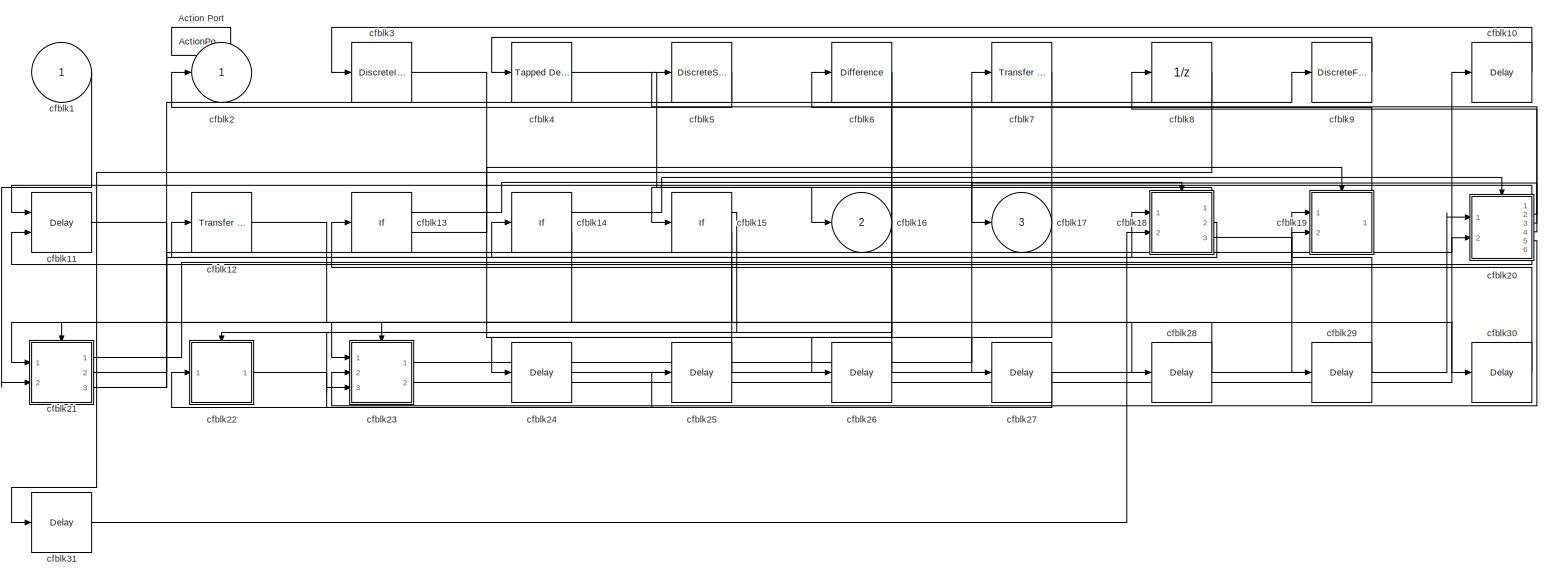
[diagram: cfblk218 - part 1/1, most of the canvas]
BLOCK [SubSystem] cfblk218
  Ports = [1, 3, 0, 0, 0, 0, 0, 1]
  RequestExecContextInheritance = off
  TreatAsAtomicUnit = on
  Variant = off
BLOCK [ActionPort] cfblk218/Action Port
  ActionType = else
BLOCK [Inport] cfblk218/cfblk1
  IconDisplay = Port number
BLOCK [Delay] cfblk218/cfblk10
  InputPortMap = u0
  Ports = [1, 1]
BLOCK [Delay] cfblk218/cfblk11
  InputPortMap = u0,e6
  Ports = [2, 1]
  ShowEnablePort = on
BLOCK [Reference] cfblk218/cfblk12  REF=simulink/Discrete/Transfer Fcn
Lead or Lag
  Ports = [1, 1]
  SourceBlock = simulink/Discrete/Transfer Fcn\nLead or Lag
  SourceProductBaseCode = SL
  SourceProductName = Simulink
  SourceType = Lead or Lag Compensator
BLOCK [If] cfblk218/cfblk13
  Ports = [1, 2]
  SampleTime = 1
BLOCK [If] cfblk218/cfblk14
  Ports = [1, 2]
  SampleTime = 1
BLOCK [If] cfblk218/cfblk15
  Ports = [1, 2]
  SampleTime = 1
BLOCK [Outport] cfblk218/cfblk16
  IconDisplay = Port number
  Port = 2
BLOCK [Outport] cfblk218/cfblk17
  IconDisplay = Port number
  Port = 3
BLOCK [SubSystem] cfblk218/cfblk18
  Ports = [2, 3, 0, 0, 0, 0, 0, 1]
  RequestExecContextInheritance = off
  TreatAsAtomicUnit = on
  Variant = off
BLOCK [ActionPort] cfblk218/cfblk18/Action Port
  ActionType = then
BLOCK [Inport] cfblk218/cfblk18/cfblk1
  IconDisplay = Port number
BLOCK [Reference] cfblk218/cfblk18/cfblk10  REF=simulink/Discrete/Transfer Fcn
First Order
  Ports = [1, 1]
  SourceBlock = simulink/Discrete/Transfer Fcn\nFirst Order
  SourceProductBaseCode = SL
  SourceProductName = Simulink
  SourceType = First Order Transfer Fcn
BLOCK [Inport] cfblk218/cfblk18/cfblk11
  IconDisplay = Port number
  Port = 2
BLOCK [Outport] cfblk218/cfblk18/cfblk12
  IconDisplay = Port number
  Port = 2
BLOCK [Outport] cfblk218/cfblk18/cfblk13
  IconDisplay = Port number
  Port = 3
BLOCK [Outport] cfblk218/cfblk18/cfblk2
  IconDisplay = Port number
BLOCK [Reference] cfblk218/cfblk18/cfblk3  REF=simulink/Discrete/Transfer Fcn
Lead or Lag
  Ports = [1, 1]
  SourceBlock = simulink/Discrete/Transfer Fcn\nLead or Lag
  SourceProductBaseCode = SL
  SourceProductName = Simulink
  SourceType = Lead or Lag Compensator
BLOCK [DiscreteTransferFcn] cfblk218/cfblk18/cfblk4
  InputPortMap = u0
  Ports = [1, 1]
BLOCK [DiscreteStateSpace] cfblk218/cfblk18/cfblk5
  SampleTime = -1
BLOCK [Delay] cfblk218/cfblk18/cfblk6
  InputPortMap = u0
  Ports = [1, 1]
BLOCK [Reference] cfblk218/cfblk18/cfblk7  REF=simulink/Discrete/Transfer Fcn
Lead or Lag
  Ports = [1, 1]
  SourceBlock = simulink/Discrete/Transfer Fcn\nLead or Lag
  SourceProductBaseCode = SL
  SourceProductName = Simulink
  SourceType = Lead or Lag Compensator
BLOCK [DiscreteIntegrator] cfblk218/cfblk18/cfblk8
  ICPrevOutput = DiscIntNeverNeededParam
  ICPrevScaledInput = DiscIntNeverNeededParam
  InitialConditionSetting = State (most efficient)
  Ports = [1, 1]
  SampleTime = -1
BLOCK [DiscreteFir] cfblk218/cfblk18/cfblk9
  InputPortMap = u0
  OutputPortMap = o0
  Ports = [1, 1]
BLOCK [SubSystem] cfblk218/cfblk19
  Ports = [2, 1, 0, 0, 0, 0, 0, 1]
  RequestExecContextInheritance = off
  TreatAsAtomicUnit = on
  Variant = off
BLOCK [ActionPort] cfblk218/cfblk19/Action Port
  ActionType = else
BLOCK [Inport] cfblk218/cfblk19/cfblk1
  IconDisplay = Port number
BLOCK [Inport] cfblk218/cfblk19/cfblk10
  IconDisplay = Port number
  Port = 2
BLOCK [Delay] cfblk218/cfblk19/cfblk11
  InputPortMap = u0
  Ports = [1, 1]
BLOCK [Outport] cfblk218/cfblk19/cfblk2
  IconDisplay = Port number
BLOCK [Reference] cfblk218/cfblk19/cfblk3  REF=simulink/Discrete/Tapped Delay
  Ports = [1, 1]
  SourceBlock = simulink/Discrete/Tapped Delay
  SourceProductBaseCode = SL
  SourceProductName = Simulink
  SourceType = Tapped Delay Line
BLOCK [Delay] cfblk218/cfblk19/cfblk4
  InputPortMap = u0
  Ports = [1, 1]
BLOCK [Delay] cfblk218/cfblk19/cfblk5
  InputPortMap = u0,e6
  Ports = [2, 1]
  ShowEnablePort = on
BLOCK [DiscreteZeroPole] cfblk218/cfblk19/cfblk6
  Gain = 1
  Poles = [0 0.5]
  SampleTime = -1
BLOCK [Reference] cfblk218/cfblk19/cfblk7  REF=simulink/Continuous/PID Controller (2DOF)
  Ports = [2, 1]
  SourceBlock = simulink/Continuous/PID Controller (2DOF)
  SourceProductBaseCode = SL
  SourceProductName = Simulink
  SourceType = PID 2dof
BLOCK [Reference] cfblk218/cfblk19/cfblk8  REF=simulink/Discrete/Difference
  Ports = [1, 1]
  SourceBlock = simulink/Discrete/Difference
  SourceProductBaseCode = SL
  SourceProductName = Simulink
  SourceType = Difference
BLOCK [Reference] cfblk218/cfblk19/cfblk9  REF=simulink/Discrete/Difference
  Ports = [1, 1]
  SourceBlock = simulink/Discrete/Difference
  SourceProductBaseCode = SL
  SourceProductName = Simulink
  SourceType = Difference
BLOCK [Outport] cfblk218/cfblk2
  IconDisplay = Port number
BLOCK [SubSystem] cfblk218/cfblk20
  Ports = [2, 6, 0, 0, 0, 0, 0, 1]
  RequestExecContextInheritance = off
  TreatAsAtomicUnit = on
  Variant = off
BLOCK [ActionPort] cfblk218/cfblk20/Action Port
  ActionType = then
BLOCK [Inport] cfblk218/cfblk20/cfblk1
  IconDisplay = Port number
BLOCK [Inport] cfblk218/cfblk20/cfblk10
  IconDisplay = Port number
  Port = 2
BLOCK [Outport] cfblk218/cfblk20/cfblk11
  IconDisplay = Port number
  Port = 2
BLOCK [Outport] cfblk218/cfblk20/cfblk12
  IconDisplay = Port number
  Port = 3
BLOCK [Outport] cfblk218/cfblk20/cfblk13
  IconDisplay = Port number
  Port = 4
BLOCK [Outport] cfblk218/cfblk20/cfblk14
  IconDisplay = Port number
  Port = 5
BLOCK [Outport] cfblk218/cfblk20/cfblk15
  IconDisplay = Port number
  Port = 6
BLOCK [Outport] cfblk218/cfblk20/cfblk2
  IconDisplay = Port number
BLOCK [DiscreteIntegrator] cfblk218/cfblk20/cfblk3
  ICPrevOutput = DiscIntNeverNeededParam
  ICPrevScaledInput = DiscIntNeverNeededParam
  InitialConditionSetting = State (most efficient)
  Ports = [1, 1]
  SampleTime = -1
BLOCK [Reference] cfblk218/cfblk20/cfblk4  REF=simulink/Discrete/Transfer Fcn
Real Zero
  Ports = [1, 1]
  SourceBlock = simulink/Discrete/Transfer Fcn\nReal Zero
  SourceProductBaseCode = SL
  SourceProductName = Simulink
  SourceType = Transfer Fcn Real Zero
BLOCK [DiscreteTransferFcn] cfblk218/cfblk20/cfblk5
  InputPortMap = u0
  Ports = [1, 1]
BLOCK [DiscreteTransferFcn] cfblk218/cfblk20/cfblk6
  InputPortMap = u0
  Ports = [1, 1]
BLOCK [DiscreteIntegrator] cfblk218/cfblk20/cfblk7
  ICPrevOutput = DiscIntNeverNeededParam
  ICPrevScaledInput = DiscIntNeverNeededParam
  InitialConditionSetting = State (most efficient)
  Ports = [1, 1]
  SampleTime = -1
BLOCK [DiscreteStateSpace] cfblk218/cfblk20/cfblk8
  SampleTime = -1
BLOCK [DiscreteIntegrator] cfblk218/cfblk20/cfblk9
  ICPrevOutput = DiscIntNeverNeededParam
  ICPrevScaledInput = DiscIntNeverNeededParam
  InitialConditionSetting = State (most efficient)
  Ports = [1, 1]
  SampleTime = -1
BLOCK [SubSystem] cfblk218/cfblk21
  Ports = [2, 3, 0, 0, 0, 0, 0, 1]
  RequestExecContextInheritance = off
  TreatAsAtomicUnit = on
  Variant = off
BLOCK [ActionPort] cfblk218/cfblk21/Action Port
  ActionType = else
BLOCK [Inport] cfblk218/cfblk21/cfblk1
  IconDisplay = Port number
BLOCK [Outport] cfblk218/cfblk21/cfblk2
  IconDisplay = Port number
BLOCK [Reference] cfblk218/cfblk21/cfblk3  REF=simulink/Continuous/PID Controller (2DOF)
  Ports = [2, 1]
  SourceBlock = simulink/Continuous/PID Controller (2DOF)
  SourceProductBaseCode = SL
  SourceProductName = Simulink
  SourceType = PID 2dof
BLOCK [UnitDelay] cfblk218/cfblk21/cfblk4
  InputProcessing = Elements as channels (sample based)
  SampleTime = -1
BLOCK [Reference] cfblk218/cfblk21/cfblk5  REF=simulink/Discrete/Difference
  Ports = [1, 1]
  SourceBlock = simulink/Discrete/Difference
  SourceProductBaseCode = SL
  SourceProductName = Simulink
  SourceType = Difference
BLOCK [Inport] cfblk218/cfblk21/cfblk6
  IconDisplay = Port number
  Port = 2
BLOCK [Outport] cfblk218/cfblk21/cfblk7
  IconDisplay = Port number
  Port = 2
BLOCK [Outport] cfblk218/cfblk21/cfblk8
  IconDisplay = Port number
  Port = 3
BLOCK [SubSystem] cfblk218/cfblk22
  Ports = [1, 1, 0, 0, 0, 0, 0, 1]
  RequestExecContextInheritance = off
  TreatAsAtomicUnit = on
  Variant = off
BLOCK [ActionPort] cfblk218/cfblk22/Action Port
  ActionType = then
BLOCK [Inport] cfblk218/cfblk22/cfblk1
  IconDisplay = Port number
BLOCK [Reference] cfblk218/cfblk22/cfblk10  REF=simulink/Discrete/Transfer Fcn
Lead or Lag
  Ports = [1, 1]
  SourceBlock = simulink/Discrete/Transfer Fcn\nLead or Lag
  SourceProductBaseCode = SL
  SourceProductName = Simulink
  SourceType = Lead or Lag Compensator
BLOCK [Reference] cfblk218/cfblk22/cfblk11  REF=simulink/Discrete/Tapped Delay
  Ports = [1, 1]
  SourceBlock = simulink/Discrete/Tapped Delay
  SourceProductBaseCode = SL
  SourceProductName = Simulink
  SourceType = Tapped Delay Line
BLOCK [Delay] cfblk218/cfblk22/cfblk12
  InputPortMap = u0,e6
  Ports = [2, 1]
  ShowEnablePort = on
BLOCK [Reference] cfblk218/cfblk22/cfblk13  REF=simulink/Discrete/Transfer Fcn
Real Zero
  Ports = [1, 1]
  SourceBlock = simulink/Discrete/Transfer Fcn\nReal Zero
  SourceProductBaseCode = SL
  SourceProductName = Simulink
  SourceType = Transfer Fcn Real Zero
BLOCK [Delay] cfblk218/cfblk22/cfblk14
  InputPortMap = u0
  Ports = [1, 1]
BLOCK [Outport] cfblk218/cfblk22/cfblk2
  IconDisplay = Port number
BLOCK [DiscreteIntegrator] cfblk218/cfblk22/cfblk3
  ICPrevOutput = DiscIntNeverNeededParam
  ICPrevScaledInput = DiscIntNeverNeededParam
  InitialConditionSetting = State (most efficient)
  Ports = [1, 1]
  SampleTime = -1
BLOCK [DiscreteTransferFcn] cfblk218/cfblk22/cfblk4
  InputPortMap = u0
  Ports = [1, 1]
BLOCK [DiscreteStateSpace] cfblk218/cfblk22/cfblk5
  SampleTime = -1
BLOCK [DiscreteStateSpace] cfblk218/cfblk22/cfblk6
  SampleTime = -1
BLOCK [DiscreteFilter] cfblk218/cfblk22/cfblk7
  InputPortMap = u0
  Ports = [1, 1]
BLOCK [Reference] cfblk218/cfblk22/cfblk8  REF=simulink/Continuous/PID Controller (2DOF)
  Ports = [2, 1]
  SourceBlock = simulink/Continuous/PID Controller (2DOF)
  SourceProductBaseCode = SL
  SourceProductName = Simulink
  SourceType = PID 2dof
BLOCK [DiscreteIntegrator] cfblk218/cfblk22/cfblk9
  ICPrevOutput = DiscIntNeverNeededParam
  ICPrevScaledInput = DiscIntNeverNeededParam
  InitialConditionSetting = State (most efficient)
  Ports = [1, 1]
  SampleTime = -1
BLOCK [SubSystem] cfblk218/cfblk23
  Ports = [3, 2, 0, 0, 0, 0, 0, 1]
  RequestExecContextInheritance = off
  TreatAsAtomicUnit = on
  Variant = off
BLOCK [ActionPort] cfblk218/cfblk23/Action Port
  ActionType = else
BLOCK [Inport] cfblk218/cfblk23/cfblk1
  IconDisplay = Port number
BLOCK [Delay] cfblk218/cfblk23/cfblk10
  InputPortMap = u0
  Ports = [1, 1]
BLOCK [DiscreteFir] cfblk218/cfblk23/cfblk11
  InputPortMap = u0
  OutputPortMap = o0
  Ports = [1, 1]
BLOCK [Inport] cfblk218/cfblk23/cfblk12
  IconDisplay = Port number
  Port = 2
BLOCK [Inport] cfblk218/cfblk23/cfblk13
  IconDisplay = Port number
  Port = 3
BLOCK [Outport] cfblk218/cfblk23/cfblk14
  IconDisplay = Port number
  Port = 2
BLOCK [Delay] cfblk218/cfblk23/cfblk15
  InputPortMap = u0
  Ports = [1, 1]
BLOCK [Delay] cfblk218/cfblk23/cfblk16
  InputPortMap = u0
  Ports = [1, 1]
BLOCK [Delay] cfblk218/cfblk23/cfblk17
  InputPortMap = u0
  Ports = [1, 1]
BLOCK [Outport] cfblk218/cfblk23/cfblk2
  IconDisplay = Port number
BLOCK [Reference] cfblk218/cfblk23/cfblk3  REF=simulink/Continuous/PID Controller (2DOF)
  Ports = [2, 1]
  SourceBlock = simulink/Continuous/PID Controller (2DOF)
  SourceProductBaseCode = SL
  SourceProductName = Simulink
  SourceType = PID 2dof
BLOCK [UnitDelay] cfblk218/cfblk23/cfblk4
  InputProcessing = Elements as channels (sample based)
  SampleTime = -1
BLOCK [Reference] cfblk218/cfblk23/cfblk5  REF=simulink/Discrete/Transfer Fcn
Real Zero
  Ports = [1, 1]
  SourceBlock = simulink/Discrete/Transfer Fcn\nReal Zero
  SourceProductBaseCode = SL
  SourceProductName = Simulink
  SourceType = Transfer Fcn Real Zero
BLOCK [DiscreteFir] cfblk218/cfblk23/cfblk6
  InputPortMap = u0
  OutputPortMap = o0
  Ports = [1, 1]
BLOCK [Delay] cfblk218/cfblk23/cfblk7
  DelayLengthSource = Input port
  InputPortMap = u0,p1
  Ports = [2, 1]
BLOCK [Delay] cfblk218/cfblk23/cfblk8
  InputPortMap = u0,e6
  Ports = [2, 1]
  ShowEnablePort = on
BLOCK [Reference] cfblk218/cfblk23/cfblk9  REF=simulink/Discrete/Difference
  Ports = [1, 1]
  SourceBlock = simulink/Discrete/Difference
  SourceProductBaseCode = SL
  SourceProductName = Simulink
  SourceType = Difference
BLOCK [Delay] cfblk218/cfblk24
  InputPortMap = u0
  Ports = [1, 1]
BLOCK [Delay] cfblk218/cfblk25
  InputPortMap = u0
  Ports = [1, 1]
BLOCK [Delay] cfblk218/cfblk26
  InputPortMap = u0
  Ports = [1, 1]
BLOCK [Delay] cfblk218/cfblk27
  InputPortMap = u0
  Ports = [1, 1]
BLOCK [Delay] cfblk218/cfblk28
  InputPortMap = u0
  Ports = [1, 1]
BLOCK [Delay] cfblk218/cfblk29
  InputPortMap = u0
  Ports = [1, 1]
BLOCK [DiscreteIntegrator] cfblk218/cfblk3
  ICPrevOutput = DiscIntNeverNeededParam
  ICPrevScaledInput = DiscIntNeverNeededParam
  InitialConditionSetting = State (most efficient)
  Ports = [1, 1]
  SampleTime = -1
BLOCK [Delay] cfblk218/cfblk30
  InputPortMap = u0
  Ports = [1, 1]
BLOCK [Delay] cfblk218/cfblk31
  InputPortMap = u0
  Ports = [1, 1]
BLOCK [Reference] cfblk218/cfblk4  REF=simulink/Discrete/Tapped Delay
  Ports = [1, 1]
  SourceBlock = simulink/Discrete/Tapped Delay
  SourceProductBaseCode = SL
  SourceProductName = Simulink
  SourceType = Tapped Delay Line
BLOCK [DiscreteStateSpace] cfblk218/cfblk5
  SampleTime = -1
BLOCK [Reference] cfblk218/cfblk6  REF=simulink/Discrete/Difference
  Ports = [1, 1]
  SourceBlock = simulink/Discrete/Difference
  SourceProductBaseCode = SL
  SourceProductName = Simulink
  SourceType = Difference
BLOCK [Reference] cfblk218/cfblk7  REF=simulink/Discrete/Transfer Fcn
First Order
  Ports = [1, 1]
  SourceBlock = simulink/Discrete/Transfer Fcn\nFirst Order
  SourceProductBaseCode = SL
  SourceProductName = Simulink
  SourceType = First Order Transfer Fcn
BLOCK [UnitDelay] cfblk218/cfblk8
  InputProcessing = Elements as channels (sample based)
  SampleTime = -1
BLOCK [DiscreteFir] cfblk218/cfblk9
  InputPortMap = u0
  OutputPortMap = o0
  Ports = [1, 1]
BLOCK [SubSystem] cfblk219
  Ports = [3, 1, 0, 0, 0, 0, 0, 1]
  RequestExecContextInheritance = off
  TreatAsAtomicUnit = on
  Variant = off
BLOCK [ActionPort] cfblk219/Action Port
  ActionType = then
BLOCK [Inport] cfblk219/cfblk1
  IconDisplay = Port number
BLOCK [SubSystem] cfblk219/cfblk10
  Ports = [1, 1, 0, 0, 0, 0, 0, 1]
  RequestExecContextInheritance = off
  TreatAsAtomicUnit = on
  Variant = off
BLOCK [ActionPort] cfblk219/cfblk10/Action Port
  ActionType = then
BLOCK [Inport] cfblk219/cfblk10/cfblk1
  IconDisplay = Port number
BLOCK [DiscreteStateSpace] cfblk219/cfblk10/cfblk10
  SampleTime = -1
BLOCK [Reference] cfblk219/cfblk10/cfblk11  REF=simulink/Discrete/Difference
  Ports = [1, 1]
  SourceBlock = simulink/Discrete/Difference
  SourceProductBaseCode = SL
  SourceProductName = Simulink
  SourceType = Difference
BLOCK [Reference] cfblk219/cfblk10/cfblk12  REF=simulink/Continuous/PID Controller
  Ports = [1, 1]
  SourceBlock = simulink/Continuous/PID Controller
  SourceProductBaseCode = SL
  SourceProductName = Simulink
  SourceType = PID 1dof
BLOCK [Delay] cfblk219/cfblk10/cfblk13
  InputPortMap = u0
  Ports = [1, 1]
BLOCK [Delay] cfblk219/cfblk10/cfblk14
  InputPortMap = u0
  Ports = [1, 1]
BLOCK [Outport] cfblk219/cfblk10/cfblk2
  IconDisplay = Port number
BLOCK [DiscreteStateSpace] cfblk219/cfblk10/cfblk3
  SampleTime = -1
BLOCK [DiscreteFir] cfblk219/cfblk10/cfblk4
  InputPortMap = u0
  OutputPortMap = o0
  Ports = [1, 1]
BLOCK [DiscreteFilter] cfblk219/cfblk10/cfblk5
  InputPortMap = u0
  Ports = [1, 1]
BLOCK [DiscreteZeroPole] cfblk219/cfblk10/cfblk6
  Gain = 1
  Poles = [0 0.5]
  SampleTime = -1
BLOCK [Reference] cfblk219/cfblk10/cfblk7  REF=simulink/Continuous/PID Controller (2DOF)
  Ports = [2, 1]
  SourceBlock = simulink/Continuous/PID Controller (2DOF)
  SourceProductBaseCode = SL
  SourceProductName = Simulink
  SourceType = PID 2dof
BLOCK [Delay] cfblk219/cfblk10/cfblk8
  InputPortMap = u0
  Ports = [1, 1]
BLOCK [Delay] cfblk219/cfblk10/cfblk9
  DelayLengthSource = Input port
  InputPortMap = u0,p1
  Ports = [2, 1]
BLOCK [SubSystem] cfblk219/cfblk11
  Ports = [3, 3, 0, 0, 0, 0, 0, 1]
  RequestExecContextInheritance = off
  TreatAsAtomicUnit = on
  Variant = off
BLOCK [ActionPort] cfblk219/cfblk11/Action Port
  ActionType = else
BLOCK [Inport] cfblk219/cfblk11/cfblk1
  IconDisplay = Port number
BLOCK [Outport] cfblk219/cfblk11/cfblk10
  IconDisplay = Port number
  Port = 3
BLOCK [Outport] cfblk219/cfblk11/cfblk2
  IconDisplay = Port number
BLOCK [DiscreteTransferFcn] cfblk219/cfblk11/cfblk3
  InputPortMap = u0
  Ports = [1, 1]
BLOCK [Reference] cfblk219/cfblk11/cfblk4  REF=simulink/Discrete/Transfer Fcn
First Order
  Ports = [1, 1]
  SourceBlock = simulink/Discrete/Transfer Fcn\nFirst Order
  SourceProductBaseCode = SL
  SourceProductName = Simulink
  SourceType = First Order Transfer Fcn
BLOCK [UnitDelay] cfblk219/cfblk11/cfblk5
  InputProcessing = Elements as channels (sample based)
  SampleTime = -1
BLOCK [DiscreteStateSpace] cfblk219/cfblk11/cfblk6
  SampleTime = -1
BLOCK [Inport] cfblk219/cfblk11/cfblk7
  IconDisplay = Port number
  Port = 2
BLOCK [Inport] cfblk219/cfblk11/cfblk8
  IconDisplay = Port number
  Port = 3
BLOCK [Outport] cfblk219/cfblk11/cfblk9
  IconDisplay = Port number
  Port = 2
BLOCK [Delay] cfblk219/cfblk12
  InputPortMap = u0
  Ports = [1, 1]
BLOCK [Delay] cfblk219/cfblk13
  InputPortMap = u0
  Ports = [1, 1]
BLOCK [Outport] cfblk219/cfblk2
  IconDisplay = Port number
BLOCK [DiscreteFilter] cfblk219/cfblk3
  InputPortMap = u0
  Ports = [1, 1]
BLOCK [Reference] cfblk219/cfblk4  REF=simulink/Continuous/PID Controller
  Ports = [1, 1]
  SourceBlock = simulink/Continuous/PID Controller
  SourceProductBaseCode = SL
  SourceProductName = Simulink
  SourceType = PID 1dof
BLOCK [Reference] cfblk219/cfblk5  REF=simulink/Continuous/PID Controller
  Ports = [1, 1]
  SourceBlock = simulink/Continuous/PID Controller
  SourceProductBaseCode = SL
  SourceProductName = Simulink
  SourceType = PID 1dof
BLOCK [DiscreteFir] cfblk219/cfblk6
  InputPortMap = u0
  OutputPortMap = o0
  Ports = [1, 1]
BLOCK [If] cfblk219/cfblk7
  Ports = [1, 2]
  SampleTime = 1
BLOCK [Inport] cfblk219/cfblk8
  IconDisplay = Port number
  Port = 2
BLOCK [Inport] cfblk219/cfblk9
  IconDisplay = Port number
  Port = 3
BLOCK [Reference] cfblk22  REF=simulink/Discrete/Transfer Fcn
Real Zero
  Ports = [1, 1]
  SourceBlock = simulink/Discrete/Transfer Fcn\nReal Zero
  SourceProductBaseCode = SL
  SourceProductName = Simulink
  SourceType = Transfer Fcn Real Zero
BLOCK [SubSystem] cfblk220
  Ports = [3, 4, 0, 0, 0, 0, 0, 1]
  RequestExecContextInheritance = off
  TreatAsAtomicUnit = on
  Variant = off
BLOCK [ActionPort] cfblk220/Action Port
  ActionType = else
BLOCK [Inport] cfblk220/cfblk1
  IconDisplay = Port number
BLOCK [Inport] cfblk220/cfblk10
  IconDisplay = Port number
  Port = 2
BLOCK [Inport] cfblk220/cfblk11
  IconDisplay = Port number
  Port = 3
BLOCK [Outport] cfblk220/cfblk12
  IconDisplay = Port number
  Port = 2
BLOCK [Outport] cfblk220/cfblk13
  IconDisplay = Port number
  Port = 3
BLOCK [Outport] cfblk220/cfblk14
  IconDisplay = Port number
  Port = 4
BLOCK [Outport] cfblk220/cfblk2
  IconDisplay = Port number
BLOCK [Delay] cfblk220/cfblk3
  InputPortMap = u0
  Ports = [1, 1]
BLOCK [Delay] cfblk220/cfblk4
  DelayLengthSource = Input port
  InputPortMap = u0,p1
  Ports = [2, 1]
BLOCK [Delay] cfblk220/cfblk5
  InputPortMap = u0,e6
  Ports = [2, 1]
  ShowEnablePort = on
BLOCK [DiscreteIntegrator] cfblk220/cfblk6
  ICPrevOutput = DiscIntNeverNeededParam
  ICPrevScaledInput = DiscIntNeverNeededParam
  InitialConditionSetting = State (most efficient)
  Ports = [1, 1]
  SampleTime = -1
BLOCK [DiscreteTransferFcn] cfblk220/cfblk7
  InputPortMap = u0
  Ports = [1, 1]
BLOCK [Delay] cfblk220/cfblk8
  InputPortMap = u0,e6
  Ports = [2, 1]
  ShowEnablePort = on
BLOCK [DiscreteStateSpace] cfblk220/cfblk9
  SampleTime = -1
BLOCK [SubSystem] cfblk221
  Ports = [1, 1, 0, 0, 0, 0, 0, 1]
  RequestExecContextInheritance = off
  TreatAsAtomicUnit = on
  Variant = off
BLOCK [ActionPort] cfblk221/Action Port
  ActionType = then
BLOCK [Inport] cfblk221/cfblk1
  IconDisplay = Port number
BLOCK [Outport] cfblk221/cfblk2
  IconDisplay = Port number
BLOCK [Reference] cfblk221/cfblk3  REF=simulink/Discrete/Transfer Fcn
Lead or Lag
  Ports = [1, 1]
  SourceBlock = simulink/Discrete/Transfer Fcn\nLead or Lag
  SourceProductBaseCode = SL
  SourceProductName = Simulink
  SourceType = Lead or Lag Compensator
BLOCK [DiscreteFir] cfblk221/cfblk4
  InputPortMap = u0
  OutputPortMap = o0
  Ports = [1, 1]
BLOCK [DiscreteFir] cfblk221/cfblk5
  InputPortMap = u0
  OutputPortMap = o0
  Ports = [1, 1]
BLOCK [Delay] cfblk221/cfblk6
  InputPortMap = u0,e6
  Ports = [2, 1]
  ShowEnablePort = on
BLOCK [DiscreteFilter] cfblk221/cfblk7
  InputPortMap = u0
  Ports = [1, 1]
BLOCK [Delay] cfblk221/cfblk8
  InputPortMap = u0
  Ports = [1, 1]
BLOCK [Delay] cfblk221/cfblk9
  InputPortMap = u0
  Ports = [1, 1]
BLOCK [SubSystem] cfblk222
  Ports = [3, 2, 0, 0, 0, 0, 0, 1]
  RequestExecContextInheritance = off
  TreatAsAtomicUnit = on
  Variant = off
BLOCK [ActionPort] cfblk222/Action Port
  ActionType = else
BLOCK [Inport] cfblk222/cfblk1
  IconDisplay = Port number
BLOCK [Outport] cfblk222/cfblk2
  IconDisplay = Port number
BLOCK [Reference] cfblk222/cfblk3  REF=simulink/Discrete/Transfer Fcn
Lead or Lag
  Ports = [1, 1]
  SourceBlock = simulink/Discrete/Transfer Fcn\nLead or Lag
  SourceProductBaseCode = SL
  SourceProductName = Simulink
  SourceType = Lead or Lag Compensator
BLOCK [Delay] cfblk222/cfblk4
  InputPortMap = u0,e6
  Ports = [2, 1]
  ShowEnablePort = on
BLOCK [DiscreteFilter] cfblk222/cfblk5
  InputPortMap = u0
  Ports = [1, 1]
BLOCK [Inport] cfblk222/cfblk6
  IconDisplay = Port number
  Port = 2
BLOCK [Inport] cfblk222/cfblk7
  IconDisplay = Port number
  Port = 3
BLOCK [Outport] cfblk222/cfblk8
  IconDisplay = Port number
  Port = 2
BLOCK [SubSystem] cfblk223
  Ports = [2, 2, 0, 0, 0, 0, 0, 1]
  RequestExecContextInheritance = off
  TreatAsAtomicUnit = on
  Variant = off
BLOCK [ActionPort] cfblk223/Action Port
  ActionType = then
BLOCK [Inport] cfblk223/cfblk1
  IconDisplay = Port number
BLOCK [Outport] cfblk223/cfblk2
  IconDisplay = Port number
BLOCK [Delay] cfblk223/cfblk3
  DelayLengthSource = Input port
  InputPortMap = u0,p1
  Ports = [2, 1]
BLOCK [DiscreteFilter] cfblk223/cfblk4
  InputPortMap = u0
  Ports = [1, 1]
BLOCK [DiscreteZeroPole] cfblk223/cfblk5
  Gain = 1
  Poles = [0 0.5]
  SampleTime = -1
BLOCK [DiscreteStateSpace] cfblk223/cfblk6
  SampleTime = -1
BLOCK [Reference] cfblk223/cfblk7  REF=simulink/Discrete/Difference
  Ports = [1, 1]
  SourceBlock = simulink/Discrete/Difference
  SourceProductBaseCode = SL
  SourceProductName = Simulink
  SourceType = Difference
BLOCK [Inport] cfblk223/cfblk8
  IconDisplay = Port number
  Port = 2
BLOCK [Outport] cfblk223/cfblk9
  IconDisplay = Port number
  Port = 2
BLOCK [SubSystem] cfblk224
  Ports = [1, 1, 0, 0, 0, 0, 0, 1]
  RequestExecContextInheritance = off
  TreatAsAtomicUnit = on
  Variant = off
BLOCK [ActionPort] cfblk224/Action Port
  ActionType = else
BLOCK [Inport] cfblk224/cfblk1
  IconDisplay = Port number
BLOCK [Delay] cfblk224/cfblk10
  InputPortMap = u0
  Ports = [1, 1]
BLOCK [Delay] cfblk224/cfblk11
  InputPortMap = u0
  Ports = [1, 1]
BLOCK [Delay] cfblk224/cfblk12
  InputPortMap = u0
  Ports = [1, 1]
BLOCK [Delay] cfblk224/cfblk13
  InputPortMap = u0
  Ports = [1, 1]
BLOCK [Outport] cfblk224/cfblk2
  IconDisplay = Port number
BLOCK [Reference] cfblk224/cfblk3  REF=simulink/Discrete/Difference
  Ports = [1, 1]
  SourceBlock = simulink/Discrete/Difference
  SourceProductBaseCode = SL
  SourceProductName = Simulink
  SourceType = Difference
BLOCK [DiscreteFir] cfblk224/cfblk4
  InputPortMap = u0
  OutputPortMap = o0
  Ports = [1, 1]
BLOCK [Reference] cfblk224/cfblk5  REF=simulink/Continuous/PID Controller
  Ports = [1, 1]
  SourceBlock = simulink/Continuous/PID Controller
  SourceProductBaseCode = SL
  SourceProductName = Simulink
  SourceType = PID 1dof
BLOCK [Delay] cfblk224/cfblk6
  DelayLengthSource = Input port
  InputPortMap = u0,p1
  Ports = [2, 1]
BLOCK [If] cfblk224/cfblk7
  Ports = [1, 2]
  SampleTime = 1
BLOCK [SubSystem] cfblk224/cfblk8
  Ports = [3, 4, 0, 0, 0, 0, 0, 1]
  RequestExecContextInheritance = off
  TreatAsAtomicUnit = on
  Variant = off
BLOCK [ActionPort] cfblk224/cfblk8/Action Port
  ActionType = then
BLOCK [Inport] cfblk224/cfblk8/cfblk1
  IconDisplay = Port number
BLOCK [Delay] cfblk224/cfblk8/cfblk10
  DelayLengthSource = Input port
  InputPortMap = u0,p1
  Ports = [2, 1]
BLOCK [Delay] cfblk224/cfblk8/cfblk11
  InputPortMap = u0,e6
  Ports = [2, 1]
  ShowEnablePort = on
BLOCK [Inport] cfblk224/cfblk8/cfblk12
  IconDisplay = Port number
  Port = 2
BLOCK [Inport] cfblk224/cfblk8/cfblk13
  IconDisplay = Port number
  Port = 3
BLOCK [Outport] cfblk224/cfblk8/cfblk14
  IconDisplay = Port number
  Port = 2
BLOCK [Outport] cfblk224/cfblk8/cfblk15
  IconDisplay = Port number
  Port = 3
BLOCK [Outport] cfblk224/cfblk8/cfblk16
  IconDisplay = Port number
  Port = 4
BLOCK [Outport] cfblk224/cfblk8/cfblk2
  IconDisplay = Port number
BLOCK [Reference] cfblk224/cfblk8/cfblk3  REF=simulink/Discrete/Transfer Fcn
First Order
  Ports = [1, 1]
  SourceBlock = simulink/Discrete/Transfer Fcn\nFirst Order
  SourceProductBaseCode = SL
  SourceProductName = Simulink
  SourceType = First Order Transfer Fcn
BLOCK [Reference] cfblk224/cfblk8/cfblk4  REF=simulink/Discrete/Transfer Fcn
Lead or Lag
  Ports = [1, 1]
  SourceBlock = simulink/Discrete/Transfer Fcn\nLead or Lag
  SourceProductBaseCode = SL
  SourceProductName = Simulink
  SourceType = Lead or Lag Compensator
BLOCK [Reference] cfblk224/cfblk8/cfblk5  REF=simulink/Discrete/Tapped Delay
  Ports = [1, 1]
  SourceBlock = simulink/Discrete/Tapped Delay
  SourceProductBaseCode = SL
  SourceProductName = Simulink
  SourceType = Tapped Delay Line
BLOCK [Reference] cfblk224/cfblk8/cfblk6  REF=simulink/Continuous/PID Controller
  Ports = [1, 1]
  SourceBlock = simulink/Continuous/PID Controller
  SourceProductBaseCode = SL
  SourceProductName = Simulink
  SourceType = PID 1dof
BLOCK [DiscreteZeroPole] cfblk224/cfblk8/cfblk7
  Gain = 1
  Poles = [0 0.5]
  SampleTime = -1
BLOCK [Delay] cfblk224/cfblk8/cfblk8
  DelayLengthSource = Input port
  InputPortMap = u0,p1
  Ports = [2, 1]
BLOCK [Delay] cfblk224/cfblk8/cfblk9
  InputPortMap = u0,e6
  Ports = [2, 1]
  ShowEnablePort = on
BLOCK [SubSystem] cfblk224/cfblk9
  Ports = [2, 2, 0, 0, 0, 0, 0, 1]
  RequestExecContextInheritance = off
  TreatAsAtomicUnit = on
  Variant = off
BLOCK [ActionPort] cfblk224/cfblk9/Action Port
  ActionType = else
BLOCK [Inport] cfblk224/cfblk9/cfblk1
  IconDisplay = Port number
BLOCK [Delay] cfblk224/cfblk9/cfblk10
  InputPortMap = u0
  Ports = [1, 1]
BLOCK [Outport] cfblk224/cfblk9/cfblk2
  IconDisplay = Port number
BLOCK [DiscreteIntegrator] cfblk224/cfblk9/cfblk3
  ICPrevOutput = DiscIntNeverNeededParam
  ICPrevScaledInput = DiscIntNeverNeededParam
  InitialConditionSetting = State (most efficient)
  Ports = [1, 1]
  SampleTime = -1
BLOCK [Delay] cfblk224/cfblk9/cfblk4
  InputPortMap = u0,e6
  Ports = [2, 1]
  ShowEnablePort = on
BLOCK [Reference] cfblk224/cfblk9/cfblk5  REF=simulink/Continuous/PID Controller (2DOF)
  Ports = [2, 1]
  SourceBlock = simulink/Continuous/PID Controller (2DOF)
  SourceProductBaseCode = SL
  SourceProductName = Simulink
  SourceType = PID 2dof
BLOCK [DiscreteFilter] cfblk224/cfblk9/cfblk6
  InputPortMap = u0
  Ports = [1, 1]
BLOCK [DiscreteIntegrator] cfblk224/cfblk9/cfblk7
  ICPrevOutput = DiscIntNeverNeededParam
  ICPrevScaledInput = DiscIntNeverNeededParam
  InitialConditionSetting = State (most efficient)
  Ports = [1, 1]
  SampleTime = -1
BLOCK [Inport] cfblk224/cfblk9/cfblk8
  IconDisplay = Port number
  Port = 2
BLOCK [Outport] cfblk224/cfblk9/cfblk9
  IconDisplay = Port number
  Port = 2
BLOCK [SubSystem] cfblk225
  Ports = [3, 1, 0, 0, 0, 0, 0, 1]
  RequestExecContextInheritance = off
  TreatAsAtomicUnit = on
  Variant = off
BLOCK [ActionPort] cfblk225/Action Port
  ActionType = then
BLOCK [Inport] cfblk225/cfblk1
  IconDisplay = Port number
BLOCK [DiscreteIntegrator] cfblk225/cfblk10
  ICPrevOutput = DiscIntNeverNeededParam
  ICPrevScaledInput = DiscIntNeverNeededParam
  InitialConditionSetting = State (most efficient)
  Ports = [1, 1]
  SampleTime = -1
BLOCK [Reference] cfblk225/cfblk11  REF=simulink/Continuous/PID Controller
  Ports = [1, 1]
  SourceBlock = simulink/Continuous/PID Controller
  SourceProductBaseCode = SL
  SourceProductName = Simulink
  SourceType = PID 1dof
BLOCK [Reference] cfblk225/cfblk12  REF=simulink/Discrete/Difference
  Ports = [1, 1]
  SourceBlock = simulink/Discrete/Difference
  SourceProductBaseCode = SL
  SourceProductName = Simulink
  SourceType = Difference
BLOCK [If] cfblk225/cfblk13
  Ports = [1, 2]
  SampleTime = 1
BLOCK [Inport] cfblk225/cfblk14
  IconDisplay = Port number
  Port = 2
BLOCK [Inport] cfblk225/cfblk15
  IconDisplay = Port number
  Port = 3
BLOCK [SubSystem] cfblk225/cfblk16
  Ports = [2, 1, 0, 0, 0, 0, 0, 1]
  RequestExecContextInheritance = off
  TreatAsAtomicUnit = on
  Variant = off
BLOCK [ActionPort] cfblk225/cfblk16/Action Port
  ActionType = then
BLOCK [Inport] cfblk225/cfblk16/cfblk1
  IconDisplay = Port number
BLOCK [Outport] cfblk225/cfblk16/cfblk2
  IconDisplay = Port number
BLOCK [Reference] cfblk225/cfblk16/cfblk3  REF=simulink/Discrete/Transfer Fcn
Real Zero
  Ports = [1, 1]
  SourceBlock = simulink/Discrete/Transfer Fcn\nReal Zero
  SourceProductBaseCode = SL
  SourceProductName = Simulink
  SourceType = Transfer Fcn Real Zero
BLOCK [Reference] cfblk225/cfblk16/cfblk4  REF=simulink/Discrete/Difference
  Ports = [1, 1]
  SourceBlock = simulink/Discrete/Difference
  SourceProductBaseCode = SL
  SourceProductName = Simulink
  SourceType = Difference
BLOCK [Reference] cfblk225/cfblk16/cfblk5  REF=simulink/Discrete/Transfer Fcn
Lead or Lag
  Ports = [1, 1]
  SourceBlock = simulink/Discrete/Transfer Fcn\nLead or Lag
  SourceProductBaseCode = SL
  SourceProductName = Simulink
  SourceType = Lead or Lag Compensator
BLOCK [UnitDelay] cfblk225/cfblk16/cfblk6
  InputProcessing = Elements as channels (sample based)
  SampleTime = -1
BLOCK [Inport] cfblk225/cfblk16/cfblk7
  IconDisplay = Port number
  Port = 2
BLOCK [SubSystem] cfblk225/cfblk17
  Ports = [1, 1, 0, 0, 0, 0, 0, 1]
  RequestExecContextInheritance = off
  TreatAsAtomicUnit = on
  Variant = off
BLOCK [ActionPort] cfblk225/cfblk17/Action Port
  ActionType = else
BLOCK [Inport] cfblk225/cfblk17/cfblk1
  IconDisplay = Port number
BLOCK [Delay] cfblk225/cfblk17/cfblk10
  InputPortMap = u0
  Ports = [1, 1]
BLOCK [DiscreteFilter] cfblk225/cfblk17/cfblk11
  InputPortMap = u0
  Ports = [1, 1]
BLOCK [DiscreteZeroPole] cfblk225/cfblk17/cfblk12
  Gain = 1
  Poles = [0 0.5]
  SampleTime = -1
BLOCK [Reference] cfblk225/cfblk17/cfblk13  REF=simulink/Discrete/Transfer Fcn
First Order
  Ports = [1, 1]
  SourceBlock = simulink/Discrete/Transfer Fcn\nFirst Order
  SourceProductBaseCode = SL
  SourceProductName = Simulink
  SourceType = First Order Transfer Fcn
BLOCK [Reference] cfblk225/cfblk17/cfblk14  REF=simulink/Discrete/Transfer Fcn
Lead or Lag
  Ports = [1, 1]
  SourceBlock = simulink/Discrete/Transfer Fcn\nLead or Lag
  SourceProductBaseCode = SL
  SourceProductName = Simulink
  SourceType = Lead or Lag Compensator
BLOCK [Delay] cfblk225/cfblk17/cfblk15
  InputPortMap = u0
  Ports = [1, 1]
BLOCK [Delay] cfblk225/cfblk17/cfblk16
  InputPortMap = u0
  Ports = [1, 1]
BLOCK [Delay] cfblk225/cfblk17/cfblk17
  InputPortMap = u0
  Ports = [1, 1]
BLOCK [Outport] cfblk225/cfblk17/cfblk2
  IconDisplay = Port number
BLOCK [DiscreteFilter] cfblk225/cfblk17/cfblk3
  InputPortMap = u0
  Ports = [1, 1]
BLOCK [Reference] cfblk225/cfblk17/cfblk4  REF=simulink/Continuous/PID Controller (2DOF)
  Ports = [2, 1]
  SourceBlock = simulink/Continuous/PID Controller (2DOF)
  SourceProductBaseCode = SL
  SourceProductName = Simulink
  SourceType = PID 2dof
BLOCK [Reference] cfblk225/cfblk17/cfblk5  REF=simulink/Discrete/Tapped Delay
  Ports = [1, 1]
  SourceBlock = simulink/Discrete/Tapped Delay
  SourceProductBaseCode = SL
  SourceProductName = Simulink
  SourceType = Tapped Delay Line
BLOCK [DiscreteStateSpace] cfblk225/cfblk17/cfblk6
  SampleTime = -1
BLOCK [DiscreteTransferFcn] cfblk225/cfblk17/cfblk7
  InputPortMap = u0
  Ports = [1, 1]
BLOCK [Delay] cfblk225/cfblk17/cfblk8
  DelayLengthSource = Input port
  InputPortMap = u0,p1
  Ports = [2, 1]
BLOCK [Reference] cfblk225/cfblk17/cfblk9  REF=simulink/Continuous/PID Controller (2DOF)
  Ports = [2, 1]
  SourceBlock = simulink/Continuous/PID Controller (2DOF)
  SourceProductBaseCode = SL
  SourceProductName = Simulink
  SourceType = PID 2dof
BLOCK [Delay] cfblk225/cfblk18
  InputPortMap = u0
  Ports = [1, 1]
BLOCK [Delay] cfblk225/cfblk19
  InputPortMap = u0
  Ports = [1, 1]
BLOCK [Outport] cfblk225/cfblk2
  IconDisplay = Port number
BLOCK [Delay] cfblk225/cfblk20
  InputPortMap = u0
  Ports = [1, 1]
BLOCK [Reference] cfblk225/cfblk3  REF=simulink/Continuous/PID Controller
  Ports = [1, 1]
  SourceBlock = simulink/Continuous/PID Controller
  SourceProductBaseCode = SL
  SourceProductName = Simulink
  SourceType = PID 1dof
BLOCK [Reference] cfblk225/cfblk4  REF=simulink/Discrete/Transfer Fcn
Lead or Lag
  Ports = [1, 1]
  SourceBlock = simulink/Discrete/Transfer Fcn\nLead or Lag
  SourceProductBaseCode = SL
  SourceProductName = Simulink
  SourceType = Lead or Lag Compensator
BLOCK [Reference] cfblk225/cfblk5  REF=simulink/Discrete/Difference
  Ports = [1, 1]
  SourceBlock = simulink/Discrete/Difference
  SourceProductBaseCode = SL
  SourceProductName = Simulink
  SourceType = Difference
BLOCK [Reference] cfblk225/cfblk6  REF=simulink/Continuous/PID Controller (2DOF)
  Ports = [2, 1]
  SourceBlock = simulink/Continuous/PID Controller (2DOF)
  SourceProductBaseCode = SL
  SourceProductName = Simulink
  SourceType = PID 2dof
BLOCK [Delay] cfblk225/cfblk7
  InputPortMap = u0
  Ports = [1, 1]
BLOCK [Delay] cfblk225/cfblk8
  InputPortMap = u0
  Ports = [1, 1]
BLOCK [Delay] cfblk225/cfblk9
  InputPortMap = u0
  Ports = [1, 1]
BLOCK [SubSystem] cfblk226
  Ports = [1, 3, 0, 0, 0, 0, 0, 1]
  RequestExecContextInheritance = off
  TreatAsAtomicUnit = on
  Variant = off
BLOCK [ActionPort] cfblk226/Action Port
  ActionType = else
BLOCK [Inport] cfblk226/cfblk1
  IconDisplay = Port number
BLOCK [Reference] cfblk226/cfblk10  REF=simulink/Continuous/PID Controller (2DOF)
  Ports = [2, 1]
  SourceBlock = simulink/Continuous/PID Controller (2DOF)
  SourceProductBaseCode = SL
  SourceProductName = Simulink
  SourceType = PID 2dof
BLOCK [Reference] cfblk226/cfblk11  REF=simulink/Discrete/Difference
  Ports = [1, 1]
  SourceBlock = simulink/Discrete/Difference
  SourceProductBaseCode = SL
  SourceProductName = Simulink
  SourceType = Difference
BLOCK [Reference] cfblk226/cfblk12  REF=simulink/Discrete/Transfer Fcn
Lead or Lag
  Ports = [1, 1]
  SourceBlock = simulink/Discrete/Transfer Fcn\nLead or Lag
  SourceProductBaseCode = SL
  SourceProductName = Simulink
  SourceType = Lead or Lag Compensator
BLOCK [Reference] cfblk226/cfblk13  REF=simulink/Discrete/Transfer Fcn
Lead or Lag
  Ports = [1, 1]
  SourceBlock = simulink/Discrete/Transfer Fcn\nLead or Lag
  SourceProductBaseCode = SL
  SourceProductName = Simulink
  SourceType = Lead or Lag Compensator
BLOCK [Outport] cfblk226/cfblk14
  IconDisplay = Port number
  Port = 2
BLOCK [Outport] cfblk226/cfblk15
  IconDisplay = Port number
  Port = 3
BLOCK [Delay] cfblk226/cfblk16
  InputPortMap = u0
  Ports = [1, 1]
BLOCK [Delay] cfblk226/cfblk17
  InputPortMap = u0
  Ports = [1, 1]
BLOCK [Outport] cfblk226/cfblk2
  IconDisplay = Port number
BLOCK [Delay] cfblk226/cfblk3
  InputPortMap = u0,e6
  Ports = [2, 1]
  ShowEnablePort = on
BLOCK [DiscreteTransferFcn] cfblk226/cfblk4
  InputPortMap = u0
  Ports = [1, 1]
BLOCK [Delay] cfblk226/cfblk5
  InputPortMap = u0
  Ports = [1, 1]
BLOCK [Reference] cfblk226/cfblk6  REF=simulink/Discrete/Transfer Fcn
Real Zero
  Ports = [1, 1]
  SourceBlock = simulink/Discrete/Transfer Fcn\nReal Zero
  SourceProductBaseCode = SL
  SourceProductName = Simulink
  SourceType = Transfer Fcn Real Zero
BLOCK [DiscreteFir] cfblk226/cfblk7
  InputPortMap = u0
  OutputPortMap = o0
  Ports = [1, 1]
BLOCK [UnitDelay] cfblk226/cfblk8
  InputProcessing = Elements as channels (sample based)
  SampleTime = -1
BLOCK [Delay] cfblk226/cfblk9
  DelayLengthSource = Input port
  InputPortMap = u0,p1
  Ports = [2, 1]
BLOCK [SubSystem] cfblk227
  Ports = [2, 2, 0, 0, 0, 0, 0, 1]
  RequestExecContextInheritance = off
  TreatAsAtomicUnit = on
  Variant = off
BLOCK [ActionPort] cfblk227/Action Port
  ActionType = then
BLOCK [Inport] cfblk227/cfblk1
  IconDisplay = Port number
BLOCK [If] cfblk227/cfblk10
  Ports = [1, 2]
  SampleTime = 1
BLOCK [Inport] cfblk227/cfblk11
  IconDisplay = Port number
  Port = 2
BLOCK [Outport] cfblk227/cfblk12
  IconDisplay = Port number
  Port = 2
BLOCK [SubSystem] cfblk227/cfblk13
  Ports = [3, 2, 0, 0, 0, 0, 0, 1]
  RequestExecContextInheritance = off
  TreatAsAtomicUnit = on
  Variant = off
BLOCK [ActionPort] cfblk227/cfblk13/Action Port
  ActionType = then
BLOCK [Inport] cfblk227/cfblk13/cfblk1
  IconDisplay = Port number
BLOCK [Delay] cfblk227/cfblk13/cfblk10
  DelayLengthSource = Input port
  InputPortMap = u0,p1
  Ports = [2, 1]
BLOCK [Reference] cfblk227/cfblk13/cfblk11  REF=simulink/Discrete/Difference
  Ports = [1, 1]
  SourceBlock = simulink/Discrete/Difference
  SourceProductBaseCode = SL
  SourceProductName = Simulink
  SourceType = Difference
BLOCK [Reference] cfblk227/cfblk13/cfblk12  REF=simulink/Continuous/PID Controller (2DOF)
  Ports = [2, 1]
  SourceBlock = simulink/Continuous/PID Controller (2DOF)
  SourceProductBaseCode = SL
  SourceProductName = Simulink
  SourceType = PID 2dof
BLOCK [Inport] cfblk227/cfblk13/cfblk13
  IconDisplay = Port number
  Port = 2
BLOCK [Inport] cfblk227/cfblk13/cfblk14
  IconDisplay = Port number
  Port = 3
BLOCK [Outport] cfblk227/cfblk13/cfblk15
  IconDisplay = Port number
  Port = 2
BLOCK [Delay] cfblk227/cfblk13/cfblk16
  InputPortMap = u0
  Ports = [1, 1]
BLOCK [Outport] cfblk227/cfblk13/cfblk2
  IconDisplay = Port number
BLOCK [Reference] cfblk227/cfblk13/cfblk3  REF=simulink/Discrete/Difference
  Ports = [1, 1]
  SourceBlock = simulink/Discrete/Difference
  SourceProductBaseCode = SL
  SourceProductName = Simulink
  SourceType = Difference
BLOCK [Reference] cfblk227/cfblk13/cfblk4  REF=simulink/Discrete/Difference
  Ports = [1, 1]
  SourceBlock = simulink/Discrete/Difference
  SourceProductBaseCode = SL
  SourceProductName = Simulink
  SourceType = Difference
BLOCK [UnitDelay] cfblk227/cfblk13/cfblk5
  InputProcessing = Elements as channels (sample based)
  SampleTime = -1
BLOCK [Delay] cfblk227/cfblk13/cfblk6
  InputPortMap = u0
  Ports = [1, 1]
BLOCK [Delay] cfblk227/cfblk13/cfblk7
  InputPortMap = u0,e6
  Ports = [2, 1]
  ShowEnablePort = on
BLOCK [Reference] cfblk227/cfblk13/cfblk8  REF=simulink/Discrete/Transfer Fcn
Lead or Lag
  Ports = [1, 1]
  SourceBlock = simulink/Discrete/Transfer Fcn\nLead or Lag
  SourceProductBaseCode = SL
  SourceProductName = Simulink
  SourceType = Lead or Lag Compensator
BLOCK [Reference] cfblk227/cfblk13/cfblk9  REF=simulink/Discrete/Transfer Fcn
Real Zero
  Ports = [1, 1]
  SourceBlock = simulink/Discrete/Transfer Fcn\nReal Zero
  SourceProductBaseCode = SL
  SourceProductName = Simulink
  SourceType = Transfer Fcn Real Zero
BLOCK [SubSystem] cfblk227/cfblk14
  Ports = [2, 2, 0, 0, 0, 0, 0, 1]
  RequestExecContextInheritance = off
  TreatAsAtomicUnit = on
  Variant = off
BLOCK [ActionPort] cfblk227/cfblk14/Action Port
  ActionType = else
BLOCK [Inport] cfblk227/cfblk14/cfblk1
  IconDisplay = Port number
BLOCK [Outport] cfblk227/cfblk14/cfblk2
  IconDisplay = Port number
BLOCK [Reference] cfblk227/cfblk14/cfblk3  REF=simulink/Discrete/Tapped Delay
  Ports = [1, 1]
  SourceBlock = simulink/Discrete/Tapped Delay
  SourceProductBaseCode = SL
  SourceProductName = Simulink
  SourceType = Tapped Delay Line
BLOCK [Reference] cfblk227/cfblk14/cfblk4  REF=simulink/Discrete/Difference
  Ports = [1, 1]
  SourceBlock = simulink/Discrete/Difference
  SourceProductBaseCode = SL
  SourceProductName = Simulink
  SourceType = Difference
BLOCK [DiscreteIntegrator] cfblk227/cfblk14/cfblk5
  ICPrevOutput = DiscIntNeverNeededParam
  ICPrevScaledInput = DiscIntNeverNeededParam
  InitialConditionSetting = State (most efficient)
  Ports = [1, 1]
  SampleTime = -1
BLOCK [Inport] cfblk227/cfblk14/cfblk6
  IconDisplay = Port number
  Port = 2
BLOCK [Outport] cfblk227/cfblk14/cfblk7
  IconDisplay = Port number
  Port = 2
BLOCK [Delay] cfblk227/cfblk15
  InputPortMap = u0
  Ports = [1, 1]
BLOCK [Delay] cfblk227/cfblk16
  InputPortMap = u0
  Ports = [1, 1]
BLOCK [Delay] cfblk227/cfblk17
  InputPortMap = u0
  Ports = [1, 1]
BLOCK [Delay] cfblk227/cfblk18
  InputPortMap = u0
  Ports = [1, 1]
BLOCK [Outport] cfblk227/cfblk2
  IconDisplay = Port number
BLOCK [DiscreteZeroPole] cfblk227/cfblk3
  Gain = 1
  Poles = [0 0.5]
  SampleTime = -1
BLOCK [DiscreteStateSpace] cfblk227/cfblk4
  SampleTime = -1
BLOCK [Reference] cfblk227/cfblk5  REF=simulink/Discrete/Difference
  Ports = [1, 1]
  SourceBlock = simulink/Discrete/Difference
  SourceProductBaseCode = SL
  SourceProductName = Simulink
  SourceType = Difference
BLOCK [Reference] cfblk227/cfblk6  REF=simulink/Discrete/Difference
  Ports = [1, 1]
  SourceBlock = simulink/Discrete/Difference
  SourceProductBaseCode = SL
  SourceProductName = Simulink
  SourceType = Difference
BLOCK [DiscreteFilter] cfblk227/cfblk7
  InputPortMap = u0
  Ports = [1, 1]
BLOCK [Delay] cfblk227/cfblk8
  InputPortMap = u0,e6
  Ports = [2, 1]
  ShowEnablePort = on
BLOCK [Reference] cfblk227/cfblk9  REF=simulink/Continuous/PID Controller
  Ports = [1, 1]
  SourceBlock = simulink/Continuous/PID Controller
  SourceProductBaseCode = SL
  SourceProductName = Simulink
  SourceType = PID 1dof
BLOCK [SubSystem] cfblk228
  Ports = [2, 1, 0, 0, 0, 0, 0, 1]
  RequestExecContextInheritance = off
  TreatAsAtomicUnit = on
  Variant = off
BLOCK [ActionPort] cfblk228/Action Port
  ActionType = else
BLOCK [Inport] cfblk228/cfblk1
  IconDisplay = Port number
BLOCK [Outport] cfblk228/cfblk2
  IconDisplay = Port number
BLOCK [DiscreteFilter] cfblk228/cfblk3
  InputPortMap = u0
  Ports = [1, 1]
BLOCK [UnitDelay] cfblk228/cfblk4
  InputProcessing = Elements as channels (sample based)
  SampleTime = -1
BLOCK [Reference] cfblk228/cfblk5  REF=simulink/Discrete/Difference
  Ports = [1, 1]
  SourceBlock = simulink/Discrete/Difference
  SourceProductBaseCode = SL
  SourceProductName = Simulink
  SourceType = Difference
BLOCK [DiscreteIntegrator] cfblk228/cfblk6
  ICPrevOutput = DiscIntNeverNeededParam
  ICPrevScaledInput = DiscIntNeverNeededParam
  InitialConditionSetting = State (most efficient)
  Ports = [1, 1]
  SampleTime = -1
BLOCK [DiscreteFilter] cfblk228/cfblk7
  InputPortMap = u0
  Ports = [1, 1]
BLOCK [Inport] cfblk228/cfblk8
  IconDisplay = Port number
  Port = 2
BLOCK [SubSystem] cfblk229
  Ports = [3, 2, 0, 0, 0, 0, 0, 1]
  RequestExecContextInheritance = off
  TreatAsAtomicUnit = on
  Variant = off
BLOCK [ActionPort] cfblk229/Action Port
  ActionType = then
BLOCK [Inport] cfblk229/cfblk1
  IconDisplay = Port number
BLOCK [UnitDelay] cfblk229/cfblk10
  InputProcessing = Elements as channels (sample based)
  SampleTime = -1
BLOCK [Reference] cfblk229/cfblk11  REF=simulink/Discrete/Difference
  Ports = [1, 1]
  SourceBlock = simulink/Discrete/Difference
  SourceProductBaseCode = SL
  SourceProductName = Simulink
  SourceType = Difference
BLOCK [Inport] cfblk229/cfblk12
  IconDisplay = Port number
  Port = 2
BLOCK [Inport] cfblk229/cfblk13
  IconDisplay = Port number
  Port = 3
BLOCK [Outport] cfblk229/cfblk14
  IconDisplay = Port number
  Port = 2
BLOCK [Delay] cfblk229/cfblk15
  InputPortMap = u0
  Ports = [1, 1]
BLOCK [Outport] cfblk229/cfblk2
  IconDisplay = Port number
BLOCK [DiscreteTransferFcn] cfblk229/cfblk3
  InputPortMap = u0
  Ports = [1, 1]
BLOCK [Reference] cfblk229/cfblk4  REF=simulink/Discrete/Transfer Fcn
Lead or Lag
  Ports = [1, 1]
  SourceBlock = simulink/Discrete/Transfer Fcn\nLead or Lag
  SourceProductBaseCode = SL
  SourceProductName = Simulink
  SourceType = Lead or Lag Compensator
BLOCK [Reference] cfblk229/cfblk5  REF=simulink/Discrete/Tapped Delay
  Ports = [1, 1]
  SourceBlock = simulink/Discrete/Tapped Delay
  SourceProductBaseCode = SL
  SourceProductName = Simulink
  SourceType = Tapped Delay Line
BLOCK [Reference] cfblk229/cfblk6  REF=simulink/Continuous/PID Controller (2DOF)
  Ports = [2, 1]
  SourceBlock = simulink/Continuous/PID Controller (2DOF)
  SourceProductBaseCode = SL
  SourceProductName = Simulink
  SourceType = PID 2dof
BLOCK [Reference] cfblk229/cfblk7  REF=simulink/Continuous/PID Controller
  Ports = [1, 1]
  SourceBlock = simulink/Continuous/PID Controller
  SourceProductBaseCode = SL
  SourceProductName = Simulink
  SourceType = PID 1dof
BLOCK [Reference] cfblk229/cfblk8  REF=simulink/Continuous/PID Controller
  Ports = [1, 1]
  SourceBlock = simulink/Continuous/PID Controller
  SourceProductBaseCode = SL
  SourceProductName = Simulink
  SourceType = PID 1dof
BLOCK [DiscreteZeroPole] cfblk229/cfblk9
  Gain = 1
  Poles = [0 0.5]
  SampleTime = -1
BLOCK [UnitDelay] cfblk23
  InputProcessing = Elements as channels (sample based)
BLOCK [SubSystem] cfblk230
  Ports = [1, 1, 0, 0, 0, 0, 0, 1]
  RequestExecContextInheritance = off
  TreatAsAtomicUnit = on
  Variant = off
BLOCK [ActionPort] cfblk230/Action Port
  ActionType = else
BLOCK [Inport] cfblk230/cfblk1
  IconDisplay = Port number
BLOCK [SubSystem] cfblk230/cfblk10
  Ports = [1, 3, 0, 0, 0, 0, 0, 1]
  RequestExecContextInheritance = off
  TreatAsAtomicUnit = on
  Variant = off
BLOCK [ActionPort] cfblk230/cfblk10/Action Port
  ActionType = then
BLOCK [Inport] cfblk230/cfblk10/cfblk1
  IconDisplay = Port number
BLOCK [UnitDelay] cfblk230/cfblk10/cfblk10
  InputProcessing = Elements as channels (sample based)
  SampleTime = -1
BLOCK [Outport] cfblk230/cfblk10/cfblk11
  IconDisplay = Port number
  Port = 2
BLOCK [Outport] cfblk230/cfblk10/cfblk12
  IconDisplay = Port number
  Port = 3
BLOCK [Delay] cfblk230/cfblk10/cfblk13
  InputPortMap = u0
  Ports = [1, 1]
BLOCK [Delay] cfblk230/cfblk10/cfblk14
  InputPortMap = u0
  Ports = [1, 1]
BLOCK [Outport] cfblk230/cfblk10/cfblk2
  IconDisplay = Port number
BLOCK [Reference] cfblk230/cfblk10/cfblk3  REF=simulink/Continuous/PID Controller (2DOF)
  Ports = [2, 1]
  SourceBlock = simulink/Continuous/PID Controller (2DOF)
  SourceProductBaseCode = SL
  SourceProductName = Simulink
  SourceType = PID 2dof
BLOCK [Reference] cfblk230/cfblk10/cfblk4  REF=simulink/Discrete/Transfer Fcn
Lead or Lag
  Ports = [1, 1]
  SourceBlock = simulink/Discrete/Transfer Fcn\nLead or Lag
  SourceProductBaseCode = SL
  SourceProductName = Simulink
  SourceType = Lead or Lag Compensator
BLOCK [DiscreteFir] cfblk230/cfblk10/cfblk5
  InputPortMap = u0
  OutputPortMap = o0
  Ports = [1, 1]
BLOCK [UnitDelay] cfblk230/cfblk10/cfblk6
  InputProcessing = Elements as channels (sample based)
  SampleTime = -1
BLOCK [DiscreteFir] cfblk230/cfblk10/cfblk7
  InputPortMap = u0
  OutputPortMap = o0
  Ports = [1, 1]
BLOCK [Reference] cfblk230/cfblk10/cfblk8  REF=simulink/Continuous/PID Controller
  Ports = [1, 1]
  SourceBlock = simulink/Continuous/PID Controller
  SourceProductBaseCode = SL
  SourceProductName = Simulink
  SourceType = PID 1dof
BLOCK [DiscreteIntegrator] cfblk230/cfblk10/cfblk9
  ICPrevOutput = DiscIntNeverNeededParam
  ICPrevScaledInput = DiscIntNeverNeededParam
  InitialConditionSetting = State (most efficient)
  Ports = [1, 1]
  SampleTime = -1
BLOCK [SubSystem] cfblk230/cfblk11
  Ports = [1, 3, 0, 0, 0, 0, 0, 1]
  RequestExecContextInheritance = off
  TreatAsAtomicUnit = on
  Variant = off
BLOCK [ActionPort] cfblk230/cfblk11/Action Port
  ActionType = else
BLOCK [Inport] cfblk230/cfblk11/cfblk1
  IconDisplay = Port number
BLOCK [Outport] cfblk230/cfblk11/cfblk10
  IconDisplay = Port number
  Port = 2
BLOCK [Outport] cfblk230/cfblk11/cfblk11
  IconDisplay = Port number
  Port = 3
BLOCK [Delay] cfblk230/cfblk11/cfblk12
  InputPortMap = u0
  Ports = [1, 1]
BLOCK [Outport] cfblk230/cfblk11/cfblk2
  IconDisplay = Port number
BLOCK [Reference] cfblk230/cfblk11/cfblk3  REF=simulink/Discrete/Transfer Fcn
Lead or Lag
  Ports = [1, 1]
  SourceBlock = simulink/Discrete/Transfer Fcn\nLead or Lag
  SourceProductBaseCode = SL
  SourceProductName = Simulink
  SourceType = Lead or Lag Compensator
BLOCK [Delay] cfblk230/cfblk11/cfblk4
  InputPortMap = u0,e6
  Ports = [2, 1]
  ShowEnablePort = on
BLOCK [Reference] cfblk230/cfblk11/cfblk5  REF=simulink/Discrete/Tapped Delay
  Ports = [1, 1]
  SourceBlock = simulink/Discrete/Tapped Delay
  SourceProductBaseCode = SL
  SourceProductName = Simulink
  SourceType = Tapped Delay Line
BLOCK [Delay] cfblk230/cfblk11/cfblk6
  InputPortMap = u0,e6
  Ports = [2, 1]
  ShowEnablePort = on
BLOCK [Reference] cfblk230/cfblk11/cfblk7  REF=simulink/Discrete/Transfer Fcn
Real Zero
  Ports = [1, 1]
  SourceBlock = simulink/Discrete/Transfer Fcn\nReal Zero
  SourceProductBaseCode = SL
  SourceProductName = Simulink
  SourceType = Transfer Fcn Real Zero
BLOCK [Reference] cfblk230/cfblk11/cfblk8  REF=simulink/Discrete/Transfer Fcn
First Order
  Ports = [1, 1]
  SourceBlock = simulink/Discrete/Transfer Fcn\nFirst Order
  SourceProductBaseCode = SL
  SourceProductName = Simulink
  SourceType = First Order Transfer Fcn
BLOCK [DiscreteStateSpace] cfblk230/cfblk11/cfblk9
  SampleTime = -1
BLOCK [Delay] cfblk230/cfblk12
  InputPortMap = u0
  Ports = [1, 1]
BLOCK [Outport] cfblk230/cfblk2
  IconDisplay = Port number
BLOCK [DiscreteZeroPole] cfblk230/cfblk3
  Gain = 1
  Poles = [0 0.5]
  SampleTime = -1
BLOCK [Delay] cfblk230/cfblk4
  DelayLengthSource = Input port
  InputPortMap = u0,p1
  Ports = [2, 1]
BLOCK [DiscreteZeroPole] cfblk230/cfblk5
  Gain = 1
  Poles = [0 0.5]
  SampleTime = -1
BLOCK [Reference] cfblk230/cfblk6  REF=simulink/Discrete/Transfer Fcn
Lead or Lag
  Ports = [1, 1]
  SourceBlock = simulink/Discrete/Transfer Fcn\nLead or Lag
  SourceProductBaseCode = SL
  SourceProductName = Simulink
  SourceType = Lead or Lag Compensator
BLOCK [DiscreteIntegrator] cfblk230/cfblk7
  ICPrevOutput = DiscIntNeverNeededParam
  ICPrevScaledInput = DiscIntNeverNeededParam
  InitialConditionSetting = State (most efficient)
  Ports = [1, 1]
  SampleTime = -1
BLOCK [Reference] cfblk230/cfblk8  REF=simulink/Continuous/PID Controller
  Ports = [1, 1]
  SourceBlock = simulink/Continuous/PID Controller
  SourceProductBaseCode = SL
  SourceProductName = Simulink
  SourceType = PID 1dof
BLOCK [If] cfblk230/cfblk9
  Ports = [1, 2]
  SampleTime = 1
BLOCK [SubSystem] cfblk231
  Ports = [3, 2, 0, 0, 0, 0, 0, 1]
  RequestExecContextInheritance = off
  TreatAsAtomicUnit = on
  Variant = off
BLOCK [ActionPort] cfblk231/Action Port
  ActionType = then
BLOCK [Inport] cfblk231/cfblk1
  IconDisplay = Port number
BLOCK [If] cfblk231/cfblk10
  Ports = [1, 2]
  SampleTime = 1
BLOCK [Inport] cfblk231/cfblk11
  IconDisplay = Port number
  Port = 2
BLOCK [Inport] cfblk231/cfblk12
  IconDisplay = Port number
  Port = 3
BLOCK [Outport] cfblk231/cfblk13
  IconDisplay = Port number
  Port = 2
BLOCK [SubSystem] cfblk231/cfblk14
  Ports = [5, 3, 0, 0, 0, 0, 0, 1]
  RequestExecContextInheritance = off
  TreatAsAtomicUnit = on
  Variant = off
BLOCK [ActionPort] cfblk231/cfblk14/Action Port
  ActionType = then
BLOCK [Inport] cfblk231/cfblk14/cfblk1
  IconDisplay = Port number
BLOCK [Outport] cfblk231/cfblk14/cfblk10
  IconDisplay = Port number
  Port = 2
BLOCK [Outport] cfblk231/cfblk14/cfblk11
  IconDisplay = Port number
  Port = 3
BLOCK [Outport] cfblk231/cfblk14/cfblk2
  IconDisplay = Port number
BLOCK [Reference] cfblk231/cfblk14/cfblk3  REF=simulink/Discrete/Difference
  Ports = [1, 1]
  SourceBlock = simulink/Discrete/Difference
  SourceProductBaseCode = SL
  SourceProductName = Simulink
  SourceType = Difference
BLOCK [DiscreteZeroPole] cfblk231/cfblk14/cfblk4
  Gain = 1
  Poles = [0 0.5]
  SampleTime = -1
BLOCK [Reference] cfblk231/cfblk14/cfblk5  REF=simulink/Discrete/Transfer Fcn
Real Zero
  Ports = [1, 1]
  SourceBlock = simulink/Discrete/Transfer Fcn\nReal Zero
  SourceProductBaseCode = SL
  SourceProductName = Simulink
  SourceType = Transfer Fcn Real Zero
BLOCK [Inport] cfblk231/cfblk14/cfblk6
  IconDisplay = Port number
  Port = 2
BLOCK [Inport] cfblk231/cfblk14/cfblk7
  IconDisplay = Port number
  Port = 3
BLOCK [Inport] cfblk231/cfblk14/cfblk8
  IconDisplay = Port number
  Port = 4
BLOCK [Inport] cfblk231/cfblk14/cfblk9
  IconDisplay = Port number
  Port = 5
BLOCK [SubSystem] cfblk231/cfblk15
  Ports = [1, 4, 0, 0, 0, 0, 0, 1]
  RequestExecContextInheritance = off
  TreatAsAtomicUnit = on
  Variant = off
BLOCK [ActionPort] cfblk231/cfblk15/Action Port
  ActionType = else
BLOCK [Inport] cfblk231/cfblk15/cfblk1
  IconDisplay = Port number
BLOCK [Outport] cfblk231/cfblk15/cfblk2
  IconDisplay = Port number
BLOCK [Delay] cfblk231/cfblk15/cfblk3
  InputPortMap = u0
  Ports = [1, 1]
BLOCK [Reference] cfblk231/cfblk15/cfblk4  REF=simulink/Continuous/PID Controller (2DOF)
  Ports = [2, 1]
  SourceBlock = simulink/Continuous/PID Controller (2DOF)
  SourceProductBaseCode = SL
  SourceProductName = Simulink
  SourceType = PID 2dof
BLOCK [Delay] cfblk231/cfblk15/cfblk5
  InputPortMap = u0,e6
  Ports = [2, 1]
  ShowEnablePort = on
BLOCK [Outport] cfblk231/cfblk15/cfblk6
  IconDisplay = Port number
  Port = 2
BLOCK [Outport] cfblk231/cfblk15/cfblk7
  IconDisplay = Port number
  Port = 3
BLOCK [Outport] cfblk231/cfblk15/cfblk8
  IconDisplay = Port number
  Port = 4
BLOCK [Delay] cfblk231/cfblk15/cfblk9
  InputPortMap = u0
  Ports = [1, 1]
BLOCK [Delay] cfblk231/cfblk16
  InputPortMap = u0
  Ports = [1, 1]
BLOCK [Delay] cfblk231/cfblk17
  InputPortMap = u0
  Ports = [1, 1]
BLOCK [Outport] cfblk231/cfblk2
  IconDisplay = Port number
BLOCK [Delay] cfblk231/cfblk3
  InputPortMap = u0
  Ports = [1, 1]
BLOCK [Reference] cfblk231/cfblk4  REF=simulink/Discrete/Transfer Fcn
First Order
  Ports = [1, 1]
  SourceBlock = simulink/Discrete/Transfer Fcn\nFirst Order
  SourceProductBaseCode = SL
  SourceProductName = Simulink
  SourceType = First Order Transfer Fcn
BLOCK [Reference] cfblk231/cfblk5  REF=simulink/Discrete/Difference
  Ports = [1, 1]
  SourceBlock = simulink/Discrete/Difference
  SourceProductBaseCode = SL
  SourceProductName = Simulink
  SourceType = Difference
BLOCK [DiscreteIntegrator] cfblk231/cfblk6
  ICPrevOutput = DiscIntNeverNeededParam
  ICPrevScaledInput = DiscIntNeverNeededParam
  InitialConditionSetting = State (most efficient)
  Ports = [1, 1]
  SampleTime = -1
BLOCK [DiscreteFilter] cfblk231/cfblk7
  InputPortMap = u0
  Ports = [1, 1]
BLOCK [DiscreteFir] cfblk231/cfblk8
  InputPortMap = u0
  OutputPortMap = o0
  Ports = [1, 1]
BLOCK [Reference] cfblk231/cfblk9  REF=simulink/Discrete/Tapped Delay
  Ports = [1, 1]
  SourceBlock = simulink/Discrete/Tapped Delay
  SourceProductBaseCode = SL
  SourceProductName = Simulink
  SourceType = Tapped Delay Line
BLOCK [SubSystem] cfblk232
  Ports = [2, 1, 0, 0, 0, 0, 0, 1]
  RequestExecContextInheritance = off
  TreatAsAtomicUnit = on
  Variant = off
BLOCK [ActionPort] cfblk232/Action Port
  ActionType = else
BLOCK [Inport] cfblk232/cfblk1
  IconDisplay = Port number
BLOCK [Outport] cfblk232/cfblk2
  IconDisplay = Port number
BLOCK [Reference] cfblk232/cfblk3  REF=simulink/Continuous/PID Controller (2DOF)
  Ports = [2, 1]
  SourceBlock = simulink/Continuous/PID Controller (2DOF)
  SourceProductBaseCode = SL
  SourceProductName = Simulink
  SourceType = PID 2dof
BLOCK [Reference] cfblk232/cfblk4  REF=simulink/Discrete/Transfer Fcn
First Order
  Ports = [1, 1]
  SourceBlock = simulink/Discrete/Transfer Fcn\nFirst Order
  SourceProductBaseCode = SL
  SourceProductName = Simulink
  SourceType = First Order Transfer Fcn
BLOCK [Delay] cfblk232/cfblk5
  InputPortMap = u0
  Ports = [1, 1]
BLOCK [Reference] cfblk232/cfblk6  REF=simulink/Discrete/Difference
  Ports = [1, 1]
  SourceBlock = simulink/Discrete/Difference
  SourceProductBaseCode = SL
  SourceProductName = Simulink
  SourceType = Difference
BLOCK [Inport] cfblk232/cfblk7
  IconDisplay = Port number
  Port = 2
BLOCK [Delay] cfblk232/cfblk8
  InputPortMap = u0
  Ports = [1, 1]
BLOCK [SubSystem] cfblk233
  Ports = [1, 1, 0, 0, 0, 0, 0, 1]
  RequestExecContextInheritance = off
  TreatAsAtomicUnit = on
  Variant = off
BLOCK [ActionPort] cfblk233/Action Port
  ActionType = then
BLOCK [Inport] cfblk233/cfblk1
  IconDisplay = Port number
BLOCK [DiscreteIntegrator] cfblk233/cfblk10
  ICPrevOutput = DiscIntNeverNeededParam
  ICPrevScaledInput = DiscIntNeverNeededParam
  InitialConditionSetting = State (most efficient)
  Ports = [1, 1]
  SampleTime = -1
BLOCK [DiscreteFir] cfblk233/cfblk11
  InputPortMap = u0
  OutputPortMap = o0
  Ports = [1, 1]
BLOCK [DiscreteFir] cfblk233/cfblk12
  InputPortMap = u0
  OutputPortMap = o0
  Ports = [1, 1]
BLOCK [Reference] cfblk233/cfblk13  REF=simulink/Continuous/PID Controller
  Ports = [1, 1]
  SourceBlock = simulink/Continuous/PID Controller
  SourceProductBaseCode = SL
  SourceProductName = Simulink
  SourceType = PID 1dof
BLOCK [DiscreteZeroPole] cfblk233/cfblk14
  Gain = 1
  Poles = [0 0.5]
  SampleTime = -1
BLOCK [Delay] cfblk233/cfblk15
  InputPortMap = u0
  Ports = [1, 1]
BLOCK [Delay] cfblk233/cfblk16
  InputPortMap = u0
  Ports = [1, 1]
BLOCK [Outport] cfblk233/cfblk2
  IconDisplay = Port number
BLOCK [Reference] cfblk233/cfblk3  REF=simulink/Discrete/Tapped Delay
  Ports = [1, 1]
  SourceBlock = simulink/Discrete/Tapped Delay
  SourceProductBaseCode = SL
  SourceProductName = Simulink
  SourceType = Tapped Delay Line
BLOCK [Reference] cfblk233/cfblk4  REF=simulink/Discrete/Transfer Fcn
First Order
  Ports = [1, 1]
  SourceBlock = simulink/Discrete/Transfer Fcn\nFirst Order
  SourceProductBaseCode = SL
  SourceProductName = Simulink
  SourceType = First Order Transfer Fcn
BLOCK [DiscreteFir] cfblk233/cfblk5
  InputPortMap = u0
  OutputPortMap = o0
  Ports = [1, 1]
BLOCK [Reference] cfblk233/cfblk6  REF=simulink/Discrete/Transfer Fcn
Lead or Lag
  Ports = [1, 1]
  SourceBlock = simulink/Discrete/Transfer Fcn\nLead or Lag
  SourceProductBaseCode = SL
  SourceProductName = Simulink
  SourceType = Lead or Lag Compensator
BLOCK [Reference] cfblk233/cfblk7  REF=simulink/Discrete/Transfer Fcn
Lead or Lag
  Ports = [1, 1]
  SourceBlock = simulink/Discrete/Transfer Fcn\nLead or Lag
  SourceProductBaseCode = SL
  SourceProductName = Simulink
  SourceType = Lead or Lag Compensator
BLOCK [DiscreteFir] cfblk233/cfblk8
  InputPortMap = u0
  OutputPortMap = o0
  Ports = [1, 1]
BLOCK [DiscreteFir] cfblk233/cfblk9
  InputPortMap = u0
  OutputPortMap = o0
  Ports = [1, 1]
BLOCK [SubSystem] cfblk234
  Ports = [2, 1, 0, 0, 0, 0, 0, 1]
  RequestExecContextInheritance = off
  TreatAsAtomicUnit = on
  Variant = off
BLOCK [ActionPort] cfblk234/Action Port
  ActionType = else
BLOCK [Inport] cfblk234/cfblk1
  IconDisplay = Port number
BLOCK [Delay] cfblk234/cfblk10
  InputPortMap = u0
  Ports = [1, 1]
BLOCK [Delay] cfblk234/cfblk11
  InputPortMap = u0
  Ports = [1, 1]
BLOCK [Outport] cfblk234/cfblk2
  IconDisplay = Port number
BLOCK [Reference] cfblk234/cfblk3  REF=simulink/Discrete/Difference
  Ports = [1, 1]
  SourceBlock = simulink/Discrete/Difference
  SourceProductBaseCode = SL
  SourceProductName = Simulink
  SourceType = Difference
BLOCK [Reference] cfblk234/cfblk4  REF=simulink/Discrete/Difference
  Ports = [1, 1]
  SourceBlock = simulink/Discrete/Difference
  SourceProductBaseCode = SL
  SourceProductName = Simulink
  SourceType = Difference
BLOCK [Delay] cfblk234/cfblk5
  InputPortMap = u0
  Ports = [1, 1]
BLOCK [If] cfblk234/cfblk6
  Ports = [1, 2]
  SampleTime = 1
BLOCK [Inport] cfblk234/cfblk7
  IconDisplay = Port number
  Port = 2
BLOCK [SubSystem] cfblk234/cfblk8
  Ports = [1, 1, 0, 0, 0, 0, 0, 1]
  RequestExecContextInheritance = off
  TreatAsAtomicUnit = on
  Variant = off
BLOCK [ActionPort] cfblk234/cfblk8/Action Port
  ActionType = then
BLOCK [Inport] cfblk234/cfblk8/cfblk1
  IconDisplay = Port number
BLOCK [Outport] cfblk234/cfblk8/cfblk2
  IconDisplay = Port number
BLOCK [Reference] cfblk234/cfblk8/cfblk3  REF=simulink/Discrete/Transfer Fcn
Real Zero
  Ports = [1, 1]
  SourceBlock = simulink/Discrete/Transfer Fcn\nReal Zero
  SourceProductBaseCode = SL
  SourceProductName = Simulink
  SourceType = Transfer Fcn Real Zero
BLOCK [Delay] cfblk234/cfblk8/cfblk4
  InputPortMap = u0
  Ports = [1, 1]
BLOCK [UnitDelay] cfblk234/cfblk8/cfblk5
  InputProcessing = Elements as channels (sample based)
  SampleTime = -1
BLOCK [DiscreteIntegrator] cfblk234/cfblk8/cfblk6
  ICPrevOutput = DiscIntNeverNeededParam
  ICPrevScaledInput = DiscIntNeverNeededParam
  InitialConditionSetting = State (most efficient)
  Ports = [1, 1]
  SampleTime = -1
BLOCK [Reference] cfblk234/cfblk8/cfblk7  REF=simulink/Discrete/Transfer Fcn
Lead or Lag
  Ports = [1, 1]
  SourceBlock = simulink/Discrete/Transfer Fcn\nLead or Lag
  SourceProductBaseCode = SL
  SourceProductName = Simulink
  SourceType = Lead or Lag Compensator
BLOCK [Delay] cfblk234/cfblk8/cfblk8
  InputPortMap = u0
  Ports = [1, 1]
BLOCK [Delay] cfblk234/cfblk8/cfblk9
  InputPortMap = u0
  Ports = [1, 1]
BLOCK [SubSystem] cfblk234/cfblk9
  Ports = [1, 2, 0, 0, 0, 0, 0, 1]
  RequestExecContextInheritance = off
  TreatAsAtomicUnit = on
  Variant = off
BLOCK [ActionPort] cfblk234/cfblk9/Action Port
  ActionType = else
BLOCK [Inport] cfblk234/cfblk9/cfblk1
  IconDisplay = Port number
BLOCK [Outport] cfblk234/cfblk9/cfblk10
  IconDisplay = Port number
  Port = 2
BLOCK [Delay] cfblk234/cfblk9/cfblk11
  InputPortMap = u0
  Ports = [1, 1]
BLOCK [Delay] cfblk234/cfblk9/cfblk12
  InputPortMap = u0
  Ports = [1, 1]
BLOCK [Outport] cfblk234/cfblk9/cfblk2
  IconDisplay = Port number
BLOCK [Delay] cfblk234/cfblk9/cfblk3
  DelayLengthSource = Input port
  InputPortMap = u0,p1
  Ports = [2, 1]
BLOCK [Reference] cfblk234/cfblk9/cfblk4  REF=simulink/Discrete/Tapped Delay
  Ports = [1, 1]
  SourceBlock = simulink/Discrete/Tapped Delay
  SourceProductBaseCode = SL
  SourceProductName = Simulink
  SourceType = Tapped Delay Line
BLOCK [DiscreteIntegrator] cfblk234/cfblk9/cfblk5
  ICPrevOutput = DiscIntNeverNeededParam
  ICPrevScaledInput = DiscIntNeverNeededParam
  InitialConditionSetting = State (most efficient)
  Ports = [1, 1]
  SampleTime = -1
BLOCK [DiscreteFir] cfblk234/cfblk9/cfblk6
  InputPortMap = u0
  OutputPortMap = o0
  Ports = [1, 1]
BLOCK [DiscreteFir] cfblk234/cfblk9/cfblk7
  InputPortMap = u0
  OutputPortMap = o0
  Ports = [1, 1]
BLOCK [DiscreteTransferFcn] cfblk234/cfblk9/cfblk8
  InputPortMap = u0
  Ports = [1, 1]
BLOCK [Delay] cfblk234/cfblk9/cfblk9
  InputPortMap = u0
  Ports = [1, 1]
BLOCK [SubSystem] cfblk235
  Ports = [1, 2, 0, 0, 0, 0, 0, 1]
  RequestExecContextInheritance = off
  TreatAsAtomicUnit = on
  Variant = off
BLOCK [ActionPort] cfblk235/Action Port
  ActionType = then
BLOCK [Inport] cfblk235/cfblk1
  IconDisplay = Port number
BLOCK [Delay] cfblk235/cfblk10
  InputPortMap = u0
  Ports = [1, 1]
BLOCK [Outport] cfblk235/cfblk2
  IconDisplay = Port number
BLOCK [Delay] cfblk235/cfblk3
  InputPortMap = u0,e6
  Ports = [2, 1]
  ShowEnablePort = on
BLOCK [DiscreteIntegrator] cfblk235/cfblk4
  ICPrevOutput = DiscIntNeverNeededParam
  ICPrevScaledInput = DiscIntNeverNeededParam
  InitialConditionSetting = State (most efficient)
  Ports = [1, 1]
  SampleTime = -1
BLOCK [Reference] cfblk235/cfblk5  REF=simulink/Continuous/PID Controller
  Ports = [1, 1]
  SourceBlock = simulink/Continuous/PID Controller
  SourceProductBaseCode = SL
  SourceProductName = Simulink
  SourceType = PID 1dof
BLOCK [Delay] cfblk235/cfblk6
  InputPortMap = u0,e6
  Ports = [2, 1]
  ShowEnablePort = on
BLOCK [Delay] cfblk235/cfblk7
  InputPortMap = u0
  Ports = [1, 1]
BLOCK [Outport] cfblk235/cfblk8
  IconDisplay = Port number
  Port = 2
BLOCK [Delay] cfblk235/cfblk9
  InputPortMap = u0
  Ports = [1, 1]
BLOCK [SubSystem] cfblk236
  Ports = [1, 1, 0, 0, 0, 0, 0, 1]
  RequestExecContextInheritance = off
  TreatAsAtomicUnit = on
  Variant = off
BLOCK [ActionPort] cfblk236/Action Port
  ActionType = else
BLOCK [Inport] cfblk236/cfblk1
  IconDisplay = Port number
BLOCK [DiscreteIntegrator] cfblk236/cfblk10
  ICPrevOutput = DiscIntNeverNeededParam
  ICPrevScaledInput = DiscIntNeverNeededParam
  InitialConditionSetting = State (most efficient)
  Ports = [1, 1]
  SampleTime = -1
BLOCK [DiscreteIntegrator] cfblk236/cfblk11
  ICPrevOutput = DiscIntNeverNeededParam
  ICPrevScaledInput = DiscIntNeverNeededParam
  InitialConditionSetting = State (most efficient)
  Ports = [1, 1]
  SampleTime = -1
BLOCK [DiscreteIntegrator] cfblk236/cfblk12
  ICPrevOutput = DiscIntNeverNeededParam
  ICPrevScaledInput = DiscIntNeverNeededParam
  InitialConditionSetting = State (most efficient)
  Ports = [1, 1]
  SampleTime = -1
BLOCK [Reference] cfblk236/cfblk13  REF=simulink/Discrete/Transfer Fcn
First Order
  Ports = [1, 1]
  SourceBlock = simulink/Discrete/Transfer Fcn\nFirst Order
  SourceProductBaseCode = SL
  SourceProductName = Simulink
  SourceType = First Order Transfer Fcn
BLOCK [Outport] cfblk236/cfblk2
  IconDisplay = Port number
BLOCK [Reference] cfblk236/cfblk3  REF=simulink/Continuous/PID Controller
  Ports = [1, 1]
  SourceBlock = simulink/Continuous/PID Controller
  SourceProductBaseCode = SL
  SourceProductName = Simulink
  SourceType = PID 1dof
BLOCK [Reference] cfblk236/cfblk4  REF=simulink/Discrete/Tapped Delay
  Ports = [1, 1]
  SourceBlock = simulink/Discrete/Tapped Delay
  SourceProductBaseCode = SL
  SourceProductName = Simulink
  SourceType = Tapped Delay Line
BLOCK [Delay] cfblk236/cfblk5
  DelayLengthSource = Input port
  InputPortMap = u0,p1
  Ports = [2, 1]
BLOCK [Delay] cfblk236/cfblk6
  InputPortMap = u0,e6
  Ports = [2, 1]
  ShowEnablePort = on
BLOCK [Delay] cfblk236/cfblk7
  InputPortMap = u0
  Ports = [1, 1]
BLOCK [DiscreteTransferFcn] cfblk236/cfblk8
  InputPortMap = u0
  Ports = [1, 1]
BLOCK [DiscreteIntegrator] cfblk236/cfblk9
  ICPrevOutput = DiscIntNeverNeededParam
  ICPrevScaledInput = DiscIntNeverNeededParam
  InitialConditionSetting = State (most efficient)
  Ports = [1, 1]
  SampleTime = -1
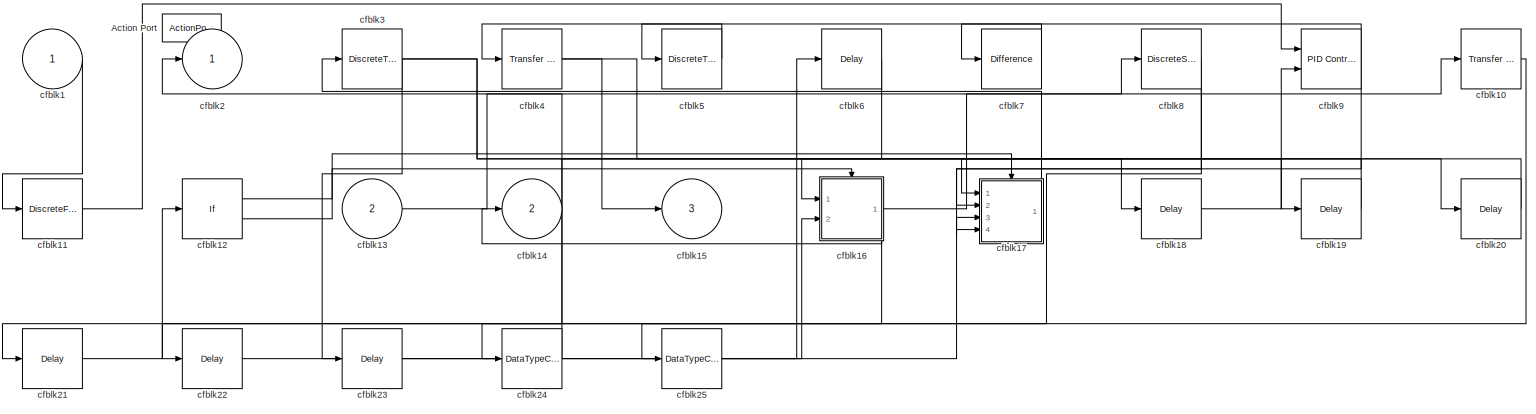
[diagram: cfblk237 - part 1/1, most of the canvas]
BLOCK [SubSystem] cfblk237
  Ports = [2, 3, 0, 0, 0, 0, 0, 1]
  RequestExecContextInheritance = off
  TreatAsAtomicUnit = on
  Variant = off
BLOCK [ActionPort] cfblk237/Action Port
  ActionType = then
BLOCK [Inport] cfblk237/cfblk1
  IconDisplay = Port number
BLOCK [Reference] cfblk237/cfblk10  REF=simulink/Discrete/Transfer Fcn
Lead or Lag
  Ports = [1, 1]
  SourceBlock = simulink/Discrete/Transfer Fcn\nLead or Lag
  SourceProductBaseCode = SL
  SourceProductName = Simulink
  SourceType = Lead or Lag Compensator
BLOCK [DiscreteFilter] cfblk237/cfblk11
  InputPortMap = u0
  Ports = [1, 1]
BLOCK [If] cfblk237/cfblk12
  Ports = [1, 2]
  SampleTime = 1
BLOCK [Inport] cfblk237/cfblk13
  IconDisplay = Port number
  Port = 2
BLOCK [Outport] cfblk237/cfblk14
  IconDisplay = Port number
  Port = 2
BLOCK [Outport] cfblk237/cfblk15
  IconDisplay = Port number
  Port = 3
BLOCK [SubSystem] cfblk237/cfblk16
  Ports = [2, 1, 0, 0, 0, 0, 0, 1]
  RequestExecContextInheritance = off
  TreatAsAtomicUnit = on
  Variant = off
BLOCK [ActionPort] cfblk237/cfblk16/Action Port
  ActionType = then
BLOCK [Inport] cfblk237/cfblk16/cfblk1
  IconDisplay = Port number
BLOCK [DiscreteTransferFcn] cfblk237/cfblk16/cfblk10
  InputPortMap = u0
  Ports = [1, 1]
BLOCK [UnitDelay] cfblk237/cfblk16/cfblk11
  InputProcessing = Elements as channels (sample based)
  SampleTime = -1
BLOCK [Reference] cfblk237/cfblk16/cfblk12  REF=simulink/Discrete/Transfer Fcn
Lead or Lag
  Ports = [1, 1]
  SourceBlock = simulink/Discrete/Transfer Fcn\nLead or Lag
  SourceProductBaseCode = SL
  SourceProductName = Simulink
  SourceType = Lead or Lag Compensator
BLOCK [DiscreteTransferFcn] cfblk237/cfblk16/cfblk13
  InputPortMap = u0
  Ports = [1, 1]
BLOCK [DiscreteFilter] cfblk237/cfblk16/cfblk14
  InputPortMap = u0
  Ports = [1, 1]
BLOCK [Delay] cfblk237/cfblk16/cfblk15
  InputPortMap = u0,e6
  Ports = [2, 1]
  ShowEnablePort = on
BLOCK [Inport] cfblk237/cfblk16/cfblk16
  IconDisplay = Port number
  Port = 2
BLOCK [Delay] cfblk237/cfblk16/cfblk17
  InputPortMap = u0
  Ports = [1, 1]
BLOCK [Delay] cfblk237/cfblk16/cfblk18
  InputPortMap = u0
  Ports = [1, 1]
BLOCK [Outport] cfblk237/cfblk16/cfblk2
  IconDisplay = Port number
BLOCK [DiscreteIntegrator] cfblk237/cfblk16/cfblk3
  ICPrevOutput = DiscIntNeverNeededParam
  ICPrevScaledInput = DiscIntNeverNeededParam
  InitialConditionSetting = State (most efficient)
  Ports = [1, 1]
  SampleTime = -1
BLOCK [Reference] cfblk237/cfblk16/cfblk4  REF=simulink/Discrete/Transfer Fcn
Real Zero
  Ports = [1, 1]
  SourceBlock = simulink/Discrete/Transfer Fcn\nReal Zero
  SourceProductBaseCode = SL
  SourceProductName = Simulink
  SourceType = Transfer Fcn Real Zero
BLOCK [DiscreteIntegrator] cfblk237/cfblk16/cfblk5
  ICPrevOutput = DiscIntNeverNeededParam
  ICPrevScaledInput = DiscIntNeverNeededParam
  InitialConditionSetting = State (most efficient)
  Ports = [1, 1]
  SampleTime = -1
BLOCK [Reference] cfblk237/cfblk16/cfblk6  REF=simulink/Discrete/Transfer Fcn
Lead or Lag
  Ports = [1, 1]
  SourceBlock = simulink/Discrete/Transfer Fcn\nLead or Lag
  SourceProductBaseCode = SL
  SourceProductName = Simulink
  SourceType = Lead or Lag Compensator
BLOCK [DiscreteZeroPole] cfblk237/cfblk16/cfblk7
  Gain = 1
  Poles = [0 0.5]
  SampleTime = -1
BLOCK [DiscreteFir] cfblk237/cfblk16/cfblk8
  InputPortMap = u0
  OutputPortMap = o0
  Ports = [1, 1]
BLOCK [Reference] cfblk237/cfblk16/cfblk9  REF=simulink/Discrete/Transfer Fcn
Lead or Lag
  Ports = [1, 1]
  SourceBlock = simulink/Discrete/Transfer Fcn\nLead or Lag
  SourceProductBaseCode = SL
  SourceProductName = Simulink
  SourceType = Lead or Lag Compensator
BLOCK [SubSystem] cfblk237/cfblk17
  Ports = [4, 1, 0, 0, 0, 0, 0, 1]
  RequestExecContextInheritance = off
  TreatAsAtomicUnit = on
  Variant = off
BLOCK [ActionPort] cfblk237/cfblk17/Action Port
  ActionType = else
BLOCK [Inport] cfblk237/cfblk17/cfblk1
  IconDisplay = Port number
BLOCK [Inport] cfblk237/cfblk17/cfblk10
  IconDisplay = Port number
  Port = 2
BLOCK [Inport] cfblk237/cfblk17/cfblk11
  IconDisplay = Port number
  Port = 3
BLOCK [Inport] cfblk237/cfblk17/cfblk12
  IconDisplay = Port number
  Port = 4
BLOCK [Delay] cfblk237/cfblk17/cfblk13
  InputPortMap = u0
  Ports = [1, 1]
BLOCK [Outport] cfblk237/cfblk17/cfblk2
  IconDisplay = Port number
BLOCK [DiscreteFilter] cfblk237/cfblk17/cfblk3
  InputPortMap = u0
  Ports = [1, 1]
BLOCK [Reference] cfblk237/cfblk17/cfblk4  REF=simulink/Discrete/Difference
  Ports = [1, 1]
  SourceBlock = simulink/Discrete/Difference
  SourceProductBaseCode = SL
  SourceProductName = Simulink
  SourceType = Difference
BLOCK [Delay] cfblk237/cfblk17/cfblk5
  InputPortMap = u0,e6
  Ports = [2, 1]
  ShowEnablePort = on
BLOCK [Reference] cfblk237/cfblk17/cfblk6  REF=simulink/Discrete/Tapped Delay
  Ports = [1, 1]
  SourceBlock = simulink/Discrete/Tapped Delay
  SourceProductBaseCode = SL
  SourceProductName = Simulink
  SourceType = Tapped Delay Line
BLOCK [Reference] cfblk237/cfblk17/cfblk7  REF=simulink/Discrete/Transfer Fcn
Lead or Lag
  Ports = [1, 1]
  SourceBlock = simulink/Discrete/Transfer Fcn\nLead or Lag
  SourceProductBaseCode = SL
  SourceProductName = Simulink
  SourceType = Lead or Lag Compensator
BLOCK [Reference] cfblk237/cfblk17/cfblk8  REF=simulink/Continuous/PID Controller (2DOF)
  Ports = [2, 1]
  SourceBlock = simulink/Continuous/PID Controller (2DOF)
  SourceProductBaseCode = SL
  SourceProductName = Simulink
  SourceType = PID 2dof
BLOCK [DiscreteTransferFcn] cfblk237/cfblk17/cfblk9
  InputPortMap = u0
  Ports = [1, 1]
BLOCK [Delay] cfblk237/cfblk18
  InputPortMap = u0
  Ports = [1, 1]
BLOCK [Delay] cfblk237/cfblk19
  InputPortMap = u0
  Ports = [1, 1]
BLOCK [Outport] cfblk237/cfblk2
  IconDisplay = Port number
BLOCK [Delay] cfblk237/cfblk20
  InputPortMap = u0
  Ports = [1, 1]
BLOCK [Delay] cfblk237/cfblk21
  InputPortMap = u0
  Ports = [1, 1]
BLOCK [Delay] cfblk237/cfblk22
  InputPortMap = u0
  Ports = [1, 1]
BLOCK [Delay] cfblk237/cfblk23
  InputPortMap = u0
  Ports = [1, 1]
BLOCK [DataTypeConversion] cfblk237/cfblk24
  RndMeth = Floor
  SaturateOnIntegerOverflow = off
BLOCK [DataTypeConversion] cfblk237/cfblk25
  RndMeth = Floor
  SaturateOnIntegerOverflow = off
BLOCK [DiscreteTransferFcn] cfblk237/cfblk3
  InputPortMap = u0
  Ports = [1, 1]
BLOCK [Reference] cfblk237/cfblk4  REF=simulink/Discrete/Transfer Fcn
First Order
  Ports = [1, 1]
  SourceBlock = simulink/Discrete/Transfer Fcn\nFirst Order
  SourceProductBaseCode = SL
  SourceProductName = Simulink
  SourceType = First Order Transfer Fcn
BLOCK [DiscreteTransferFcn] cfblk237/cfblk5
  InputPortMap = u0
  Ports = [1, 1]
BLOCK [Delay] cfblk237/cfblk6
  InputPortMap = u0
  Ports = [1, 1]
BLOCK [Reference] cfblk237/cfblk7  REF=simulink/Discrete/Difference
  Ports = [1, 1]
  SourceBlock = simulink/Discrete/Difference
  SourceProductBaseCode = SL
  SourceProductName = Simulink
  SourceType = Difference
BLOCK [DiscreteStateSpace] cfblk237/cfblk8
  SampleTime = -1
BLOCK [Reference] cfblk237/cfblk9  REF=simulink/Continuous/PID Controller (2DOF)
  Ports = [2, 1]
  SourceBlock = simulink/Continuous/PID Controller (2DOF)
  SourceProductBaseCode = SL
  SourceProductName = Simulink
  SourceType = PID 2dof
BLOCK [SubSystem] cfblk238
  Ports = [2, 4, 0, 0, 0, 0, 0, 1]
  RequestExecContextInheritance = off
  TreatAsAtomicUnit = on
  Variant = off
BLOCK [ActionPort] cfblk238/Action Port
  ActionType = else
BLOCK [Inport] cfblk238/cfblk1
  IconDisplay = Port number
BLOCK [DiscreteIntegrator] cfblk238/cfblk10
  ICPrevOutput = DiscIntNeverNeededParam
  ICPrevScaledInput = DiscIntNeverNeededParam
  InitialConditionSetting = State (most efficient)
  Ports = [1, 1]
  SampleTime = -1
BLOCK [Delay] cfblk238/cfblk11
  InputPortMap = u0,e6
  Ports = [2, 1]
  ShowEnablePort = on
BLOCK [Inport] cfblk238/cfblk12
  IconDisplay = Port number
  Port = 2
BLOCK [Outport] cfblk238/cfblk13
  IconDisplay = Port number
  Port = 2
BLOCK [Outport] cfblk238/cfblk14
  IconDisplay = Port number
  Port = 3
BLOCK [Outport] cfblk238/cfblk15
  IconDisplay = Port number
  Port = 4
BLOCK [Delay] cfblk238/cfblk16
  InputPortMap = u0
  Ports = [1, 1]
BLOCK [Delay] cfblk238/cfblk17
  InputPortMap = u0
  Ports = [1, 1]
BLOCK [Outport] cfblk238/cfblk2
  IconDisplay = Port number
BLOCK [DiscreteFilter] cfblk238/cfblk3
  InputPortMap = u0
  Ports = [1, 1]
BLOCK [Reference] cfblk238/cfblk4  REF=simulink/Discrete/Difference
  Ports = [1, 1]
  SourceBlock = simulink/Discrete/Difference
  SourceProductBaseCode = SL
  SourceProductName = Simulink
  SourceType = Difference
BLOCK [Reference] cfblk238/cfblk5  REF=simulink/Continuous/PID Controller
  Ports = [1, 1]
  SourceBlock = simulink/Continuous/PID Controller
  SourceProductBaseCode = SL
  SourceProductName = Simulink
  SourceType = PID 1dof
BLOCK [Reference] cfblk238/cfblk6  REF=simulink/Continuous/PID Controller (2DOF)
  Ports = [2, 1]
  SourceBlock = simulink/Continuous/PID Controller (2DOF)
  SourceProductBaseCode = SL
  SourceProductName = Simulink
  SourceType = PID 2dof
BLOCK [Reference] cfblk238/cfblk7  REF=simulink/Discrete/Transfer Fcn
First Order
  Ports = [1, 1]
  SourceBlock = simulink/Discrete/Transfer Fcn\nFirst Order
  SourceProductBaseCode = SL
  SourceProductName = Simulink
  SourceType = First Order Transfer Fcn
BLOCK [Reference] cfblk238/cfblk8  REF=simulink/Discrete/Transfer Fcn
First Order
  Ports = [1, 1]
  SourceBlock = simulink/Discrete/Transfer Fcn\nFirst Order
  SourceProductBaseCode = SL
  SourceProductName = Simulink
  SourceType = First Order Transfer Fcn
BLOCK [UnitDelay] cfblk238/cfblk9
  InputProcessing = Elements as channels (sample based)
  SampleTime = -1
BLOCK [SubSystem] cfblk239
  Ports = [2, 2, 0, 0, 0, 0, 0, 1]
  RequestExecContextInheritance = off
  TreatAsAtomicUnit = on
  Variant = off
BLOCK [ActionPort] cfblk239/Action Port
  ActionType = then
BLOCK [Inport] cfblk239/cfblk1
  IconDisplay = Port number
BLOCK [Inport] cfblk239/cfblk10
  IconDisplay = Port number
  Port = 2
BLOCK [Outport] cfblk239/cfblk11
  IconDisplay = Port number
  Port = 2
BLOCK [SubSystem] cfblk239/cfblk12
  Ports = [2, 3, 0, 0, 0, 0, 0, 1]
  RequestExecContextInheritance = off
  TreatAsAtomicUnit = on
  Variant = off
BLOCK [ActionPort] cfblk239/cfblk12/Action Port
  ActionType = then
BLOCK [Inport] cfblk239/cfblk12/cfblk1
  IconDisplay = Port number
BLOCK [Delay] cfblk239/cfblk12/cfblk10
  DelayLengthSource = Input port
  InputPortMap = u0,p1
  Ports = [2, 1]
BLOCK [Reference] cfblk239/cfblk12/cfblk11  REF=simulink/Discrete/Tapped Delay
  Ports = [1, 1]
  SourceBlock = simulink/Discrete/Tapped Delay
  SourceProductBaseCode = SL
  SourceProductName = Simulink
  SourceType = Tapped Delay Line
BLOCK [Inport] cfblk239/cfblk12/cfblk12
  IconDisplay = Port number
  Port = 2
BLOCK [Outport] cfblk239/cfblk12/cfblk13
  IconDisplay = Port number
  Port = 2
BLOCK [Outport] cfblk239/cfblk12/cfblk14
  IconDisplay = Port number
  Port = 3
BLOCK [Outport] cfblk239/cfblk12/cfblk2
  IconDisplay = Port number
BLOCK [DiscreteFilter] cfblk239/cfblk12/cfblk3
  InputPortMap = u0
  Ports = [1, 1]
BLOCK [Delay] cfblk239/cfblk12/cfblk4
  InputPortMap = u0,e6
  Ports = [2, 1]
  ShowEnablePort = on
BLOCK [DiscreteStateSpace] cfblk239/cfblk12/cfblk5
  SampleTime = -1
BLOCK [Reference] cfblk239/cfblk12/cfblk6  REF=simulink/Discrete/Transfer Fcn
Lead or Lag
  Ports = [1, 1]
  SourceBlock = simulink/Discrete/Transfer Fcn\nLead or Lag
  SourceProductBaseCode = SL
  SourceProductName = Simulink
  SourceType = Lead or Lag Compensator
BLOCK [DiscreteTransferFcn] cfblk239/cfblk12/cfblk7
  InputPortMap = u0
  Ports = [1, 1]
BLOCK [DiscreteStateSpace] cfblk239/cfblk12/cfblk8
  SampleTime = -1
BLOCK [DiscreteZeroPole] cfblk239/cfblk12/cfblk9
  Gain = 1
  Poles = [0 0.5]
  SampleTime = -1
BLOCK [SubSystem] cfblk239/cfblk13
  Ports = [4, 4, 0, 0, 0, 0, 0, 1]
  RequestExecContextInheritance = off
  TreatAsAtomicUnit = on
  Variant = off
BLOCK [ActionPort] cfblk239/cfblk13/Action Port
  ActionType = else
BLOCK [Inport] cfblk239/cfblk13/cfblk1
  IconDisplay = Port number
BLOCK [Reference] cfblk239/cfblk13/cfblk10  REF=simulink/Continuous/PID Controller
  Ports = [1, 1]
  SourceBlock = simulink/Continuous/PID Controller
  SourceProductBaseCode = SL
  SourceProductName = Simulink
  SourceType = PID 1dof
BLOCK [Inport] cfblk239/cfblk13/cfblk11
  IconDisplay = Port number
  Port = 2
BLOCK [Inport] cfblk239/cfblk13/cfblk12
  IconDisplay = Port number
  Port = 3
BLOCK [Inport] cfblk239/cfblk13/cfblk13
  IconDisplay = Port number
  Port = 4
BLOCK [Outport] cfblk239/cfblk13/cfblk14
  IconDisplay = Port number
  Port = 2
BLOCK [Outport] cfblk239/cfblk13/cfblk15
  IconDisplay = Port number
  Port = 3
BLOCK [Outport] cfblk239/cfblk13/cfblk16
  IconDisplay = Port number
  Port = 4
BLOCK [Outport] cfblk239/cfblk13/cfblk2
  IconDisplay = Port number
BLOCK [DiscreteFilter] cfblk239/cfblk13/cfblk3
  InputPortMap = u0
  Ports = [1, 1]
BLOCK [Reference] cfblk239/cfblk13/cfblk4  REF=simulink/Discrete/Transfer Fcn
First Order
  Ports = [1, 1]
  SourceBlock = simulink/Discrete/Transfer Fcn\nFirst Order
  SourceProductBaseCode = SL
  SourceProductName = Simulink
  SourceType = First Order Transfer Fcn
BLOCK [Reference] cfblk239/cfblk13/cfblk5  REF=simulink/Continuous/PID Controller
  Ports = [1, 1]
  SourceBlock = simulink/Continuous/PID Controller
  SourceProductBaseCode = SL
  SourceProductName = Simulink
  SourceType = PID 1dof
BLOCK [DiscreteTransferFcn] cfblk239/cfblk13/cfblk6
  InputPortMap = u0
  Ports = [1, 1]
BLOCK [Reference] cfblk239/cfblk13/cfblk7  REF=simulink/Discrete/Transfer Fcn
First Order
  Ports = [1, 1]
  SourceBlock = simulink/Discrete/Transfer Fcn\nFirst Order
  SourceProductBaseCode = SL
  SourceProductName = Simulink
  SourceType = First Order Transfer Fcn
BLOCK [Reference] cfblk239/cfblk13/cfblk8  REF=simulink/Continuous/PID Controller (2DOF)
  Ports = [2, 1]
  SourceBlock = simulink/Continuous/PID Controller (2DOF)
  SourceProductBaseCode = SL
  SourceProductName = Simulink
  SourceType = PID 2dof
BLOCK [Delay] cfblk239/cfblk13/cfblk9
  InputPortMap = u0
  Ports = [1, 1]
BLOCK [SubSystem] cfblk239/cfblk14
  Ports = [3, 1, 0, 0, 0, 0, 0, 1]
  RequestExecContextInheritance = off
  TreatAsAtomicUnit = on
  Variant = off
BLOCK [ActionPort] cfblk239/cfblk14/Action Port
  ActionType = then
BLOCK [Inport] cfblk239/cfblk14/cfblk1
  IconDisplay = Port number
BLOCK [DiscreteZeroPole] cfblk239/cfblk14/cfblk10
  Gain = 1
  Poles = [0 0.5]
  SampleTime = -1
BLOCK [Reference] cfblk239/cfblk14/cfblk11  REF=simulink/Discrete/Transfer Fcn
Lead or Lag
  Ports = [1, 1]
  SourceBlock = simulink/Discrete/Transfer Fcn\nLead or Lag
  SourceProductBaseCode = SL
  SourceProductName = Simulink
  SourceType = Lead or Lag Compensator
BLOCK [Inport] cfblk239/cfblk14/cfblk12
  IconDisplay = Port number
  Port = 2
BLOCK [Inport] cfblk239/cfblk14/cfblk13
  IconDisplay = Port number
  Port = 3
BLOCK [Outport] cfblk239/cfblk14/cfblk2
  IconDisplay = Port number
BLOCK [Reference] cfblk239/cfblk14/cfblk3  REF=simulink/Discrete/Tapped Delay
  Ports = [1, 1]
  SourceBlock = simulink/Discrete/Tapped Delay
  SourceProductBaseCode = SL
  SourceProductName = Simulink
  SourceType = Tapped Delay Line
BLOCK [Reference] cfblk239/cfblk14/cfblk4  REF=simulink/Discrete/Difference
  Ports = [1, 1]
  SourceBlock = simulink/Discrete/Difference
  SourceProductBaseCode = SL
  SourceProductName = Simulink
  SourceType = Difference
BLOCK [Reference] cfblk239/cfblk14/cfblk5  REF=simulink/Discrete/Transfer Fcn
Real Zero
  Ports = [1, 1]
  SourceBlock = simulink/Discrete/Transfer Fcn\nReal Zero
  SourceProductBaseCode = SL
  SourceProductName = Simulink
  SourceType = Transfer Fcn Real Zero
BLOCK [Reference] cfblk239/cfblk14/cfblk6  REF=simulink/Discrete/Tapped Delay
  Ports = [1, 1]
  SourceBlock = simulink/Discrete/Tapped Delay
  SourceProductBaseCode = SL
  SourceProductName = Simulink
  SourceType = Tapped Delay Line
BLOCK [Reference] cfblk239/cfblk14/cfblk7  REF=simulink/Discrete/Transfer Fcn
Real Zero
  Ports = [1, 1]
  SourceBlock = simulink/Discrete/Transfer Fcn\nReal Zero
  SourceProductBaseCode = SL
  SourceProductName = Simulink
  SourceType = Transfer Fcn Real Zero
BLOCK [DiscreteFir] cfblk239/cfblk14/cfblk8
  InputPortMap = u0
  OutputPortMap = o0
  Ports = [1, 1]
BLOCK [UnitDelay] cfblk239/cfblk14/cfblk9
  InputProcessing = Elements as channels (sample based)
  SampleTime = -1
BLOCK [SubSystem] cfblk239/cfblk15
  Ports = [1, 2, 0, 0, 0, 0, 0, 1]
  RequestExecContextInheritance = off
  TreatAsAtomicUnit = on
  Variant = off
BLOCK [ActionPort] cfblk239/cfblk15/Action Port
  ActionType = else
BLOCK [Inport] cfblk239/cfblk15/cfblk1
  IconDisplay = Port number
BLOCK [Delay] cfblk239/cfblk15/cfblk10
  InputPortMap = u0,e6
  Ports = [2, 1]
  ShowEnablePort = on
BLOCK [Outport] cfblk239/cfblk15/cfblk11
  IconDisplay = Port number
  Port = 2
BLOCK [Outport] cfblk239/cfblk15/cfblk2
  IconDisplay = Port number
BLOCK [DiscreteTransferFcn] cfblk239/cfblk15/cfblk3
  InputPortMap = u0
  Ports = [1, 1]
BLOCK [Reference] cfblk239/cfblk15/cfblk4  REF=simulink/Discrete/Transfer Fcn
First Order
  Ports = [1, 1]
  SourceBlock = simulink/Discrete/Transfer Fcn\nFirst Order
  SourceProductBaseCode = SL
  SourceProductName = Simulink
  SourceType = First Order Transfer Fcn
BLOCK [DiscreteFir] cfblk239/cfblk15/cfblk5
  InputPortMap = u0
  OutputPortMap = o0
  Ports = [1, 1]
BLOCK [Reference] cfblk239/cfblk15/cfblk6  REF=simulink/Discrete/Transfer Fcn
First Order
  Ports = [1, 1]
  SourceBlock = simulink/Discrete/Transfer Fcn\nFirst Order
  SourceProductBaseCode = SL
  SourceProductName = Simulink
  SourceType = First Order Transfer Fcn
BLOCK [DiscreteFilter] cfblk239/cfblk15/cfblk7
  InputPortMap = u0
  Ports = [1, 1]
BLOCK [Reference] cfblk239/cfblk15/cfblk8  REF=simulink/Discrete/Difference
  Ports = [1, 1]
  SourceBlock = simulink/Discrete/Difference
  SourceProductBaseCode = SL
  SourceProductName = Simulink
  SourceType = Difference
BLOCK [DiscreteFilter] cfblk239/cfblk15/cfblk9
  InputPortMap = u0
  Ports = [1, 1]
BLOCK [Delay] cfblk239/cfblk16
  InputPortMap = u0
  Ports = [1, 1]
BLOCK [Delay] cfblk239/cfblk17
  InputPortMap = u0
  Ports = [1, 1]
BLOCK [Delay] cfblk239/cfblk18
  InputPortMap = u0
  Ports = [1, 1]
BLOCK [Delay] cfblk239/cfblk19
  InputPortMap = u0
  Ports = [1, 1]
BLOCK [Outport] cfblk239/cfblk2
  IconDisplay = Port number
BLOCK [Delay] cfblk239/cfblk20
  InputPortMap = u0
  Ports = [1, 1]
BLOCK [Delay] cfblk239/cfblk21
  InputPortMap = u0
  Ports = [1, 1]
BLOCK [Delay] cfblk239/cfblk22
  InputPortMap = u0
  Ports = [1, 1]
BLOCK [Delay] cfblk239/cfblk23
  InputPortMap = u0
  Ports = [1, 1]
BLOCK [UnitDelay] cfblk239/cfblk3
  InputProcessing = Elements as channels (sample based)
  SampleTime = -1
BLOCK [Reference] cfblk239/cfblk4  REF=simulink/Discrete/Difference
  Ports = [1, 1]
  SourceBlock = simulink/Discrete/Difference
  SourceProductBaseCode = SL
  SourceProductName = Simulink
  SourceType = Difference
BLOCK [Reference] cfblk239/cfblk5  REF=simulink/Continuous/PID Controller (2DOF)
  Ports = [2, 1]
  SourceBlock = simulink/Continuous/PID Controller (2DOF)
  SourceProductBaseCode = SL
  SourceProductName = Simulink
  SourceType = PID 2dof
BLOCK [Delay] cfblk239/cfblk6
  InputPortMap = u0,e6
  Ports = [2, 1]
  ShowEnablePort = on
BLOCK [Reference] cfblk239/cfblk7  REF=simulink/Discrete/Transfer Fcn
Real Zero
  Ports = [1, 1]
  SourceBlock = simulink/Discrete/Transfer Fcn\nReal Zero
  SourceProductBaseCode = SL
  SourceProductName = Simulink
  SourceType = Transfer Fcn Real Zero
BLOCK [If] cfblk239/cfblk8
  Ports = [1, 2]
  SampleTime = 1
BLOCK [If] cfblk239/cfblk9
  Ports = [1, 2]
  SampleTime = 1
BLOCK [DiscreteFilter] cfblk24
  InputPortMap = u0
  Ports = [1, 1]
  SampleTime = 1
BLOCK [SubSystem] cfblk240
  Ports = [2, 2, 0, 0, 0, 0, 0, 1]
  RequestExecContextInheritance = off
  TreatAsAtomicUnit = on
  Variant = off
BLOCK [ActionPort] cfblk240/Action Port
  ActionType = else
BLOCK [Inport] cfblk240/cfblk1
  IconDisplay = Port number
BLOCK [Outport] cfblk240/cfblk2
  IconDisplay = Port number
BLOCK [Reference] cfblk240/cfblk3  REF=simulink/Discrete/Tapped Delay
  Ports = [1, 1]
  SourceBlock = simulink/Discrete/Tapped Delay
  SourceProductBaseCode = SL
  SourceProductName = Simulink
  SourceType = Tapped Delay Line
BLOCK [DiscreteTransferFcn] cfblk240/cfblk4
  InputPortMap = u0
  Ports = [1, 1]
BLOCK [Reference] cfblk240/cfblk5  REF=simulink/Continuous/PID Controller
  Ports = [1, 1]
  SourceBlock = simulink/Continuous/PID Controller
  SourceProductBaseCode = SL
  SourceProductName = Simulink
  SourceType = PID 1dof
BLOCK [Reference] cfblk240/cfblk6  REF=simulink/Continuous/PID Controller
  Ports = [1, 1]
  SourceBlock = simulink/Continuous/PID Controller
  SourceProductBaseCode = SL
  SourceProductName = Simulink
  SourceType = PID 1dof
BLOCK [Inport] cfblk240/cfblk7
  IconDisplay = Port number
  Port = 2
BLOCK [Outport] cfblk240/cfblk8
  IconDisplay = Port number
  Port = 2
BLOCK [Delay] cfblk240/cfblk9
  InputPortMap = u0
  Ports = [1, 1]
BLOCK [SubSystem] cfblk241
  Ports = [5, 2, 0, 0, 0, 0, 0, 1]
  RequestExecContextInheritance = off
  TreatAsAtomicUnit = on
  Variant = off
BLOCK [ActionPort] cfblk241/Action Port
  ActionType = then
BLOCK [Inport] cfblk241/cfblk1
  IconDisplay = Port number
BLOCK [Inport] cfblk241/cfblk10
  IconDisplay = Port number
  Port = 4
BLOCK [Inport] cfblk241/cfblk11
  IconDisplay = Port number
  Port = 5
BLOCK [Outport] cfblk241/cfblk12
  IconDisplay = Port number
  Port = 2
BLOCK [Delay] cfblk241/cfblk13
  InputPortMap = u0
  Ports = [1, 1]
BLOCK [Outport] cfblk241/cfblk2
  IconDisplay = Port number
BLOCK [Delay] cfblk241/cfblk3
  InputPortMap = u0
  Ports = [1, 1]
BLOCK [Delay] cfblk241/cfblk4
  InputPortMap = u0,e6
  Ports = [2, 1]
  ShowEnablePort = on
BLOCK [UnitDelay] cfblk241/cfblk5
  InputProcessing = Elements as channels (sample based)
  SampleTime = -1
BLOCK [Delay] cfblk241/cfblk6
  InputPortMap = u0,e6
  Ports = [2, 1]
  ShowEnablePort = on
BLOCK [DiscreteStateSpace] cfblk241/cfblk7
  SampleTime = -1
BLOCK [Inport] cfblk241/cfblk8
  IconDisplay = Port number
  Port = 2
BLOCK [Inport] cfblk241/cfblk9
  IconDisplay = Port number
  Port = 3
BLOCK [SubSystem] cfblk242
  Ports = [1, 5, 0, 0, 0, 0, 0, 1]
  RequestExecContextInheritance = off
  TreatAsAtomicUnit = on
  Variant = off
BLOCK [ActionPort] cfblk242/Action Port
  ActionType = else
BLOCK [Inport] cfblk242/cfblk1
  IconDisplay = Port number
BLOCK [UnitDelay] cfblk242/cfblk10
  InputProcessing = Elements as channels (sample based)
  SampleTime = -1
BLOCK [Reference] cfblk242/cfblk11  REF=simulink/Discrete/Transfer Fcn
First Order
  Ports = [1, 1]
  SourceBlock = simulink/Discrete/Transfer Fcn\nFirst Order
  SourceProductBaseCode = SL
  SourceProductName = Simulink
  SourceType = First Order Transfer Fcn
BLOCK [If] cfblk242/cfblk12
  Ports = [1, 2]
  SampleTime = 1
BLOCK [If] cfblk242/cfblk13
  Ports = [1, 2]
  SampleTime = 1
BLOCK [Outport] cfblk242/cfblk14
  IconDisplay = Port number
  Port = 2
BLOCK [Outport] cfblk242/cfblk15
  IconDisplay = Port number
  Port = 3
BLOCK [Outport] cfblk242/cfblk16
  IconDisplay = Port number
  Port = 4
BLOCK [Outport] cfblk242/cfblk17
  IconDisplay = Port number
  Port = 5
BLOCK [SubSystem] cfblk242/cfblk18
  Ports = [1, 4, 0, 0, 0, 0, 0, 1]
  RequestExecContextInheritance = off
  TreatAsAtomicUnit = on
  Variant = off
BLOCK [ActionPort] cfblk242/cfblk18/Action Port
  ActionType = then
BLOCK [Inport] cfblk242/cfblk18/cfblk1
  IconDisplay = Port number
BLOCK [Outport] cfblk242/cfblk18/cfblk10
  IconDisplay = Port number
  Port = 3
BLOCK [Outport] cfblk242/cfblk18/cfblk11
  IconDisplay = Port number
  Port = 4
BLOCK [Delay] cfblk242/cfblk18/cfblk12
  InputPortMap = u0
  Ports = [1, 1]
BLOCK [Outport] cfblk242/cfblk18/cfblk2
  IconDisplay = Port number
BLOCK [DiscreteZeroPole] cfblk242/cfblk18/cfblk3
  Gain = 1
  Poles = [0 0.5]
  SampleTime = -1
BLOCK [Reference] cfblk242/cfblk18/cfblk4  REF=simulink/Discrete/Transfer Fcn
First Order
  Ports = [1, 1]
  SourceBlock = simulink/Discrete/Transfer Fcn\nFirst Order
  SourceProductBaseCode = SL
  SourceProductName = Simulink
  SourceType = First Order Transfer Fcn
BLOCK [DiscreteTransferFcn] cfblk242/cfblk18/cfblk5
  InputPortMap = u0
  Ports = [1, 1]
BLOCK [Reference] cfblk242/cfblk18/cfblk6  REF=simulink/Discrete/Difference
  Ports = [1, 1]
  SourceBlock = simulink/Discrete/Difference
  SourceProductBaseCode = SL
  SourceProductName = Simulink
  SourceType = Difference
BLOCK [Reference] cfblk242/cfblk18/cfblk7  REF=simulink/Discrete/Transfer Fcn
Real Zero
  Ports = [1, 1]
  SourceBlock = simulink/Discrete/Transfer Fcn\nReal Zero
  SourceProductBaseCode = SL
  SourceProductName = Simulink
  SourceType = Transfer Fcn Real Zero
BLOCK [DiscreteIntegrator] cfblk242/cfblk18/cfblk8
  ICPrevOutput = DiscIntNeverNeededParam
  ICPrevScaledInput = DiscIntNeverNeededParam
  InitialConditionSetting = State (most efficient)
  Ports = [1, 1]
  SampleTime = -1
BLOCK [Outport] cfblk242/cfblk18/cfblk9
  IconDisplay = Port number
  Port = 2
BLOCK [SubSystem] cfblk242/cfblk19
  Ports = [2, 1, 0, 0, 0, 0, 0, 1]
  RequestExecContextInheritance = off
  TreatAsAtomicUnit = on
  Variant = off
BLOCK [ActionPort] cfblk242/cfblk19/Action Port
  ActionType = else
BLOCK [Inport] cfblk242/cfblk19/cfblk1
  IconDisplay = Port number
BLOCK [Inport] cfblk242/cfblk19/cfblk10
  IconDisplay = Port number
  Port = 2
BLOCK [Delay] cfblk242/cfblk19/cfblk11
  InputPortMap = u0
  Ports = [1, 1]
BLOCK [Outport] cfblk242/cfblk19/cfblk2
  IconDisplay = Port number
BLOCK [DiscreteIntegrator] cfblk242/cfblk19/cfblk3
  ICPrevOutput = DiscIntNeverNeededParam
  ICPrevScaledInput = DiscIntNeverNeededParam
  InitialConditionSetting = State (most efficient)
  Ports = [1, 1]
  SampleTime = -1
BLOCK [Reference] cfblk242/cfblk19/cfblk4  REF=simulink/Discrete/Transfer Fcn
First Order
  Ports = [1, 1]
  SourceBlock = simulink/Discrete/Transfer Fcn\nFirst Order
  SourceProductBaseCode = SL
  SourceProductName = Simulink
  SourceType = First Order Transfer Fcn
BLOCK [DiscreteStateSpace] cfblk242/cfblk19/cfblk5
  SampleTime = -1
BLOCK [UnitDelay] cfblk242/cfblk19/cfblk6
  InputProcessing = Elements as channels (sample based)
  SampleTime = -1
BLOCK [UnitDelay] cfblk242/cfblk19/cfblk7
  InputProcessing = Elements as channels (sample based)
  SampleTime = -1
BLOCK [Reference] cfblk242/cfblk19/cfblk8  REF=simulink/Discrete/Transfer Fcn
Lead or Lag
  Ports = [1, 1]
  SourceBlock = simulink/Discrete/Transfer Fcn\nLead or Lag
  SourceProductBaseCode = SL
  SourceProductName = Simulink
  SourceType = Lead or Lag Compensator
BLOCK [Delay] cfblk242/cfblk19/cfblk9
  InputPortMap = u0
  Ports = [1, 1]
BLOCK [Outport] cfblk242/cfblk2
  IconDisplay = Port number
BLOCK [SubSystem] cfblk242/cfblk20
  Ports = [2, 2, 0, 0, 0, 0, 0, 1]
  RequestExecContextInheritance = off
  TreatAsAtomicUnit = on
  Variant = off
BLOCK [ActionPort] cfblk242/cfblk20/Action Port
  ActionType = then
BLOCK [Inport] cfblk242/cfblk20/cfblk1
  IconDisplay = Port number
BLOCK [DiscreteFilter] cfblk242/cfblk20/cfblk10
  InputPortMap = u0
  Ports = [1, 1]
BLOCK [Reference] cfblk242/cfblk20/cfblk11  REF=simulink/Continuous/PID Controller (2DOF)
  Ports = [2, 1]
  SourceBlock = simulink/Continuous/PID Controller (2DOF)
  SourceProductBaseCode = SL
  SourceProductName = Simulink
  SourceType = PID 2dof
BLOCK [Reference] cfblk242/cfblk20/cfblk12  REF=simulink/Discrete/Tapped Delay
  Ports = [1, 1]
  SourceBlock = simulink/Discrete/Tapped Delay
  SourceProductBaseCode = SL
  SourceProductName = Simulink
  SourceType = Tapped Delay Line
BLOCK [Inport] cfblk242/cfblk20/cfblk13
  IconDisplay = Port number
  Port = 2
BLOCK [Outport] cfblk242/cfblk20/cfblk14
  IconDisplay = Port number
  Port = 2
BLOCK [Delay] cfblk242/cfblk20/cfblk15
  InputPortMap = u0
  Ports = [1, 1]
BLOCK [Delay] cfblk242/cfblk20/cfblk16
  InputPortMap = u0
  Ports = [1, 1]
BLOCK [Outport] cfblk242/cfblk20/cfblk2
  IconDisplay = Port number
BLOCK [Reference] cfblk242/cfblk20/cfblk3  REF=simulink/Discrete/Difference
  Ports = [1, 1]
  SourceBlock = simulink/Discrete/Difference
  SourceProductBaseCode = SL
  SourceProductName = Simulink
  SourceType = Difference
BLOCK [DiscreteZeroPole] cfblk242/cfblk20/cfblk4
  Gain = 1
  Poles = [0 0.5]
  SampleTime = -1
BLOCK [Reference] cfblk242/cfblk20/cfblk5  REF=simulink/Continuous/PID Controller
  Ports = [1, 1]
  SourceBlock = simulink/Continuous/PID Controller
  SourceProductBaseCode = SL
  SourceProductName = Simulink
  SourceType = PID 1dof
BLOCK [Reference] cfblk242/cfblk20/cfblk6  REF=simulink/Discrete/Difference
  Ports = [1, 1]
  SourceBlock = simulink/Discrete/Difference
  SourceProductBaseCode = SL
  SourceProductName = Simulink
  SourceType = Difference
BLOCK [Reference] cfblk242/cfblk20/cfblk7  REF=simulink/Discrete/Tapped Delay
  Ports = [1, 1]
  SourceBlock = simulink/Discrete/Tapped Delay
  SourceProductBaseCode = SL
  SourceProductName = Simulink
  SourceType = Tapped Delay Line
BLOCK [Reference] cfblk242/cfblk20/cfblk8  REF=simulink/Discrete/Transfer Fcn
Real Zero
  Ports = [1, 1]
  SourceBlock = simulink/Discrete/Transfer Fcn\nReal Zero
  SourceProductBaseCode = SL
  SourceProductName = Simulink
  SourceType = Transfer Fcn Real Zero
BLOCK [Reference] cfblk242/cfblk20/cfblk9  REF=simulink/Discrete/Tapped Delay
  Ports = [1, 1]
  SourceBlock = simulink/Discrete/Tapped Delay
  SourceProductBaseCode = SL
  SourceProductName = Simulink
  SourceType = Tapped Delay Line
BLOCK [SubSystem] cfblk242/cfblk21
  Ports = [1, 3, 0, 0, 0, 0, 0, 1]
  RequestExecContextInheritance = off
  TreatAsAtomicUnit = on
  Variant = off
BLOCK [ActionPort] cfblk242/cfblk21/Action Port
  ActionType = else
BLOCK [Inport] cfblk242/cfblk21/cfblk1
  IconDisplay = Port number
BLOCK [DiscreteTransferFcn] cfblk242/cfblk21/cfblk10
  InputPortMap = u0
  Ports = [1, 1]
BLOCK [DiscreteIntegrator] cfblk242/cfblk21/cfblk11
  ICPrevOutput = DiscIntNeverNeededParam
  ICPrevScaledInput = DiscIntNeverNeededParam
  InitialConditionSetting = State (most efficient)
  Ports = [1, 1]
  SampleTime = -1
BLOCK [DiscreteTransferFcn] cfblk242/cfblk21/cfblk12
  InputPortMap = u0
  Ports = [1, 1]
BLOCK [DiscreteFir] cfblk242/cfblk21/cfblk13
  InputPortMap = u0
  OutputPortMap = o0
  Ports = [1, 1]
BLOCK [DiscreteIntegrator] cfblk242/cfblk21/cfblk14
  ICPrevOutput = DiscIntNeverNeededParam
  ICPrevScaledInput = DiscIntNeverNeededParam
  InitialConditionSetting = State (most efficient)
  Ports = [1, 1]
  SampleTime = -1
BLOCK [Outport] cfblk242/cfblk21/cfblk15
  IconDisplay = Port number
  Port = 2
BLOCK [Outport] cfblk242/cfblk21/cfblk16
  IconDisplay = Port number
  Port = 3
BLOCK [Delay] cfblk242/cfblk21/cfblk17
  InputPortMap = u0
  Ports = [1, 1]
BLOCK [Delay] cfblk242/cfblk21/cfblk18
  InputPortMap = u0
  Ports = [1, 1]
BLOCK [Delay] cfblk242/cfblk21/cfblk19
  InputPortMap = u0
  Ports = [1, 1]
BLOCK [Outport] cfblk242/cfblk21/cfblk2
  IconDisplay = Port number
BLOCK [Reference] cfblk242/cfblk21/cfblk3  REF=simulink/Continuous/PID Controller (2DOF)
  Ports = [2, 1]
  SourceBlock = simulink/Continuous/PID Controller (2DOF)
  SourceProductBaseCode = SL
  SourceProductName = Simulink
  SourceType = PID 2dof
BLOCK [DiscreteFilter] cfblk242/cfblk21/cfblk4
  InputPortMap = u0
  Ports = [1, 1]
BLOCK [Reference] cfblk242/cfblk21/cfblk5  REF=simulink/Discrete/Difference
  Ports = [1, 1]
  SourceBlock = simulink/Discrete/Difference
  SourceProductBaseCode = SL
  SourceProductName = Simulink
  SourceType = Difference
BLOCK [Reference] cfblk242/cfblk21/cfblk6  REF=simulink/Continuous/PID Controller (2DOF)
  Ports = [2, 1]
  SourceBlock = simulink/Continuous/PID Controller (2DOF)
  SourceProductBaseCode = SL
  SourceProductName = Simulink
  SourceType = PID 2dof
BLOCK [DiscreteFir] cfblk242/cfblk21/cfblk7
  InputPortMap = u0
  OutputPortMap = o0
  Ports = [1, 1]
BLOCK [Reference] cfblk242/cfblk21/cfblk8  REF=simulink/Discrete/Tapped Delay
  Ports = [1, 1]
  SourceBlock = simulink/Discrete/Tapped Delay
  SourceProductBaseCode = SL
  SourceProductName = Simulink
  SourceType = Tapped Delay Line
BLOCK [DiscreteZeroPole] cfblk242/cfblk21/cfblk9
  Gain = 1
  Poles = [0 0.5]
  SampleTime = -1
BLOCK [Delay] cfblk242/cfblk22
  InputPortMap = u0
  Ports = [1, 1]
BLOCK [Delay] cfblk242/cfblk23
  InputPortMap = u0
  Ports = [1, 1]
BLOCK [Delay] cfblk242/cfblk24
  InputPortMap = u0
  Ports = [1, 1]
BLOCK [Delay] cfblk242/cfblk25
  InputPortMap = u0
  Ports = [1, 1]
BLOCK [Delay] cfblk242/cfblk3
  InputPortMap = u0,e6
  Ports = [2, 1]
  ShowEnablePort = on
BLOCK [Delay] cfblk242/cfblk4
  DelayLengthSource = Input port
  InputPortMap = u0,p1
  Ports = [2, 1]
BLOCK [Reference] cfblk242/cfblk5  REF=simulink/Discrete/Transfer Fcn
Lead or Lag
  Ports = [1, 1]
  SourceBlock = simulink/Discrete/Transfer Fcn\nLead or Lag
  SourceProductBaseCode = SL
  SourceProductName = Simulink
  SourceType = Lead or Lag Compensator
BLOCK [DiscreteFilter] cfblk242/cfblk6
  InputPortMap = u0
  Ports = [1, 1]
BLOCK [Reference] cfblk242/cfblk7  REF=simulink/Discrete/Transfer Fcn
First Order
  Ports = [1, 1]
  SourceBlock = simulink/Discrete/Transfer Fcn\nFirst Order
  SourceProductBaseCode = SL
  SourceProductName = Simulink
  SourceType = First Order Transfer Fcn
BLOCK [DiscreteFilter] cfblk242/cfblk8
  InputPortMap = u0
  Ports = [1, 1]
BLOCK [Delay] cfblk242/cfblk9
  InputPortMap = u0,e6
  Ports = [2, 1]
  ShowEnablePort = on
BLOCK [SubSystem] cfblk243
  Ports = [3, 1, 0, 0, 0, 0, 0, 1]
  RequestExecContextInheritance = off
  TreatAsAtomicUnit = on
  Variant = off
BLOCK [ActionPort] cfblk243/Action Port
  ActionType = then
BLOCK [Inport] cfblk243/cfblk1
  IconDisplay = Port number
BLOCK [If] cfblk243/cfblk10
  Ports = [1, 2]
  SampleTime = 1
BLOCK [Inport] cfblk243/cfblk11
  IconDisplay = Port number
  Port = 2
BLOCK [Inport] cfblk243/cfblk12
  IconDisplay = Port number
  Port = 3
BLOCK [SubSystem] cfblk243/cfblk13
  Ports = [2, 1, 0, 0, 0, 0, 0, 1]
  RequestExecContextInheritance = off
  TreatAsAtomicUnit = on
  Variant = off
BLOCK [ActionPort] cfblk243/cfblk13/Action Port
  ActionType = then
BLOCK [Inport] cfblk243/cfblk13/cfblk1
  IconDisplay = Port number
BLOCK [Inport] cfblk243/cfblk13/cfblk10
  IconDisplay = Port number
  Port = 2
BLOCK [Delay] cfblk243/cfblk13/cfblk11
  InputPortMap = u0
  Ports = [1, 1]
BLOCK [Outport] cfblk243/cfblk13/cfblk2
  IconDisplay = Port number
BLOCK [Reference] cfblk243/cfblk13/cfblk3  REF=simulink/Continuous/PID Controller
  Ports = [1, 1]
  SourceBlock = simulink/Continuous/PID Controller
  SourceProductBaseCode = SL
  SourceProductName = Simulink
  SourceType = PID 1dof
BLOCK [Reference] cfblk243/cfblk13/cfblk4  REF=simulink/Discrete/Transfer Fcn
First Order
  Ports = [1, 1]
  SourceBlock = simulink/Discrete/Transfer Fcn\nFirst Order
  SourceProductBaseCode = SL
  SourceProductName = Simulink
  SourceType = First Order Transfer Fcn
BLOCK [DiscreteStateSpace] cfblk243/cfblk13/cfblk5
  SampleTime = -1
BLOCK [Reference] cfblk243/cfblk13/cfblk6  REF=simulink/Discrete/Transfer Fcn
First Order
  Ports = [1, 1]
  SourceBlock = simulink/Discrete/Transfer Fcn\nFirst Order
  SourceProductBaseCode = SL
  SourceProductName = Simulink
  SourceType = First Order Transfer Fcn
BLOCK [Reference] cfblk243/cfblk13/cfblk7  REF=simulink/Discrete/Transfer Fcn
First Order
  Ports = [1, 1]
  SourceBlock = simulink/Discrete/Transfer Fcn\nFirst Order
  SourceProductBaseCode = SL
  SourceProductName = Simulink
  SourceType = First Order Transfer Fcn
BLOCK [Reference] cfblk243/cfblk13/cfblk8  REF=simulink/Discrete/Transfer Fcn
Lead or Lag
  Ports = [1, 1]
  SourceBlock = simulink/Discrete/Transfer Fcn\nLead or Lag
  SourceProductBaseCode = SL
  SourceProductName = Simulink
  SourceType = Lead or Lag Compensator
BLOCK [Reference] cfblk243/cfblk13/cfblk9  REF=simulink/Discrete/Tapped Delay
  Ports = [1, 1]
  SourceBlock = simulink/Discrete/Tapped Delay
  SourceProductBaseCode = SL
  SourceProductName = Simulink
  SourceType = Tapped Delay Line
BLOCK [SubSystem] cfblk243/cfblk14
  Ports = [3, 5, 0, 0, 0, 0, 0, 1]
  RequestExecContextInheritance = off
  TreatAsAtomicUnit = on
  Variant = off
BLOCK [ActionPort] cfblk243/cfblk14/Action Port
  ActionType = else
BLOCK [Inport] cfblk243/cfblk14/cfblk1
  IconDisplay = Port number
BLOCK [Reference] cfblk243/cfblk14/cfblk10  REF=simulink/Discrete/Transfer Fcn
Real Zero
  Ports = [1, 1]
  SourceBlock = simulink/Discrete/Transfer Fcn\nReal Zero
  SourceProductBaseCode = SL
  SourceProductName = Simulink
  SourceType = Transfer Fcn Real Zero
BLOCK [Inport] cfblk243/cfblk14/cfblk11
  IconDisplay = Port number
  Port = 2
BLOCK [Inport] cfblk243/cfblk14/cfblk12
  IconDisplay = Port number
  Port = 3
BLOCK [Outport] cfblk243/cfblk14/cfblk13
  IconDisplay = Port number
  Port = 2
BLOCK [Outport] cfblk243/cfblk14/cfblk14
  IconDisplay = Port number
  Port = 3
BLOCK [Outport] cfblk243/cfblk14/cfblk15
  IconDisplay = Port number
  Port = 4
BLOCK [Outport] cfblk243/cfblk14/cfblk16
  IconDisplay = Port number
  Port = 5
BLOCK [Delay] cfblk243/cfblk14/cfblk17
  InputPortMap = u0
  Ports = [1, 1]
BLOCK [Outport] cfblk243/cfblk14/cfblk2
  IconDisplay = Port number
BLOCK [Reference] cfblk243/cfblk14/cfblk3  REF=simulink/Discrete/Transfer Fcn
Lead or Lag
  Ports = [1, 1]
  SourceBlock = simulink/Discrete/Transfer Fcn\nLead or Lag
  SourceProductBaseCode = SL
  SourceProductName = Simulink
  SourceType = Lead or Lag Compensator
BLOCK [Delay] cfblk243/cfblk14/cfblk4
  InputPortMap = u0,e6
  Ports = [2, 1]
  ShowEnablePort = on
BLOCK [Delay] cfblk243/cfblk14/cfblk5
  InputPortMap = u0,e6
  Ports = [2, 1]
  ShowEnablePort = on
BLOCK [DiscreteTransferFcn] cfblk243/cfblk14/cfblk6
  InputPortMap = u0
  Ports = [1, 1]
BLOCK [Reference] cfblk243/cfblk14/cfblk7  REF=simulink/Discrete/Tapped Delay
  Ports = [1, 1]
  SourceBlock = simulink/Discrete/Tapped Delay
  SourceProductBaseCode = SL
  SourceProductName = Simulink
  SourceType = Tapped Delay Line
BLOCK [Reference] cfblk243/cfblk14/cfblk8  REF=simulink/Discrete/Transfer Fcn
First Order
  Ports = [1, 1]
  SourceBlock = simulink/Discrete/Transfer Fcn\nFirst Order
  SourceProductBaseCode = SL
  SourceProductName = Simulink
  SourceType = First Order Transfer Fcn
BLOCK [DiscreteIntegrator] cfblk243/cfblk14/cfblk9
  ICPrevOutput = DiscIntNeverNeededParam
  ICPrevScaledInput = DiscIntNeverNeededParam
  InitialConditionSetting = State (most efficient)
  Ports = [1, 1]
  SampleTime = -1
BLOCK [SubSystem] cfblk243/cfblk15
  Ports = [2, 2, 0, 0, 0, 0, 0, 1]
  RequestExecContextInheritance = off
  TreatAsAtomicUnit = on
  Variant = off
BLOCK [ActionPort] cfblk243/cfblk15/Action Port
  ActionType = then
BLOCK [Inport] cfblk243/cfblk15/cfblk1
  IconDisplay = Port number
BLOCK [Reference] cfblk243/cfblk15/cfblk10  REF=simulink/Discrete/Tapped Delay
  Ports = [1, 1]
  SourceBlock = simulink/Discrete/Tapped Delay
  SourceProductBaseCode = SL
  SourceProductName = Simulink
  SourceType = Tapped Delay Line
BLOCK [UnitDelay] cfblk243/cfblk15/cfblk11
  InputProcessing = Elements as channels (sample based)
  SampleTime = -1
BLOCK [Delay] cfblk243/cfblk15/cfblk12
  DelayLengthSource = Input port
  InputPortMap = u0,p1
  Ports = [2, 1]
BLOCK [DiscreteIntegrator] cfblk243/cfblk15/cfblk13
  ICPrevOutput = DiscIntNeverNeededParam
  ICPrevScaledInput = DiscIntNeverNeededParam
  InitialConditionSetting = State (most efficient)
  Ports = [1, 1]
  SampleTime = -1
BLOCK [Reference] cfblk243/cfblk15/cfblk14  REF=simulink/Discrete/Transfer Fcn
Lead or Lag
  Ports = [1, 1]
  SourceBlock = simulink/Discrete/Transfer Fcn\nLead or Lag
  SourceProductBaseCode = SL
  SourceProductName = Simulink
  SourceType = Lead or Lag Compensator
BLOCK [Inport] cfblk243/cfblk15/cfblk15
  IconDisplay = Port number
  Port = 2
BLOCK [Outport] cfblk243/cfblk15/cfblk16
  IconDisplay = Port number
  Port = 2
BLOCK [Outport] cfblk243/cfblk15/cfblk2
  IconDisplay = Port number
BLOCK [UnitDelay] cfblk243/cfblk15/cfblk3
  InputProcessing = Elements as channels (sample based)
  SampleTime = -1
BLOCK [Reference] cfblk243/cfblk15/cfblk4  REF=simulink/Continuous/PID Controller
  Ports = [1, 1]
  SourceBlock = simulink/Continuous/PID Controller
  SourceProductBaseCode = SL
  SourceProductName = Simulink
  SourceType = PID 1dof
BLOCK [DiscreteStateSpace] cfblk243/cfblk15/cfblk5
  SampleTime = -1
BLOCK [Delay] cfblk243/cfblk15/cfblk6
  DelayLengthSource = Input port
  InputPortMap = u0,p1
  Ports = [2, 1]
BLOCK [Reference] cfblk243/cfblk15/cfblk7  REF=simulink/Continuous/PID Controller (2DOF)
  Ports = [2, 1]
  SourceBlock = simulink/Continuous/PID Controller (2DOF)
  SourceProductBaseCode = SL
  SourceProductName = Simulink
  SourceType = PID 2dof
BLOCK [DiscreteStateSpace] cfblk243/cfblk15/cfblk8
  SampleTime = -1
BLOCK [DiscreteFir] cfblk243/cfblk15/cfblk9
  InputPortMap = u0
  OutputPortMap = o0
  Ports = [1, 1]
BLOCK [SubSystem] cfblk243/cfblk16
  Ports = [1, 2, 0, 0, 0, 0, 0, 1]
  RequestExecContextInheritance = off
  TreatAsAtomicUnit = on
  Variant = off
BLOCK [ActionPort] cfblk243/cfblk16/Action Port
  ActionType = else
BLOCK [Inport] cfblk243/cfblk16/cfblk1
  IconDisplay = Port number
BLOCK [Delay] cfblk243/cfblk16/cfblk10
  InputPortMap = u0
  Ports = [1, 1]
BLOCK [Delay] cfblk243/cfblk16/cfblk11
  DelayLengthSource = Input port
  InputPortMap = u0,p1
  Ports = [2, 1]
BLOCK [UnitDelay] cfblk243/cfblk16/cfblk12
  InputProcessing = Elements as channels (sample based)
  SampleTime = -1
BLOCK [Delay] cfblk243/cfblk16/cfblk13
  InputPortMap = u0,e6
  Ports = [2, 1]
  ShowEnablePort = on
BLOCK [Outport] cfblk243/cfblk16/cfblk14
  IconDisplay = Port number
  Port = 2
BLOCK [Delay] cfblk243/cfblk16/cfblk15
  InputPortMap = u0
  Ports = [1, 1]
BLOCK [DataTypeConversion] cfblk243/cfblk16/cfblk16
  RndMeth = Floor
  SaturateOnIntegerOverflow = off
BLOCK [DataTypeConversion] cfblk243/cfblk16/cfblk17
  RndMeth = Floor
  SaturateOnIntegerOverflow = off
BLOCK [Outport] cfblk243/cfblk16/cfblk2
  IconDisplay = Port number
BLOCK [Reference] cfblk243/cfblk16/cfblk3  REF=simulink/Discrete/Difference
  Ports = [1, 1]
  SourceBlock = simulink/Discrete/Difference
  SourceProductBaseCode = SL
  SourceProductName = Simulink
  SourceType = Difference
BLOCK [DiscreteTransferFcn] cfblk243/cfblk16/cfblk4
  InputPortMap = u0
  Ports = [1, 1]
BLOCK [Delay] cfblk243/cfblk16/cfblk5
  DelayLengthSource = Input port
  InputPortMap = u0,p1
  Ports = [2, 1]
BLOCK [DiscreteFir] cfblk243/cfblk16/cfblk6
  InputPortMap = u0
  OutputPortMap = o0
  Ports = [1, 1]
BLOCK [Reference] cfblk243/cfblk16/cfblk7  REF=simulink/Discrete/Transfer Fcn
Lead or Lag
  Ports = [1, 1]
  SourceBlock = simulink/Discrete/Transfer Fcn\nLead or Lag
  SourceProductBaseCode = SL
  SourceProductName = Simulink
  SourceType = Lead or Lag Compensator
BLOCK [Reference] cfblk243/cfblk16/cfblk8  REF=simulink/Discrete/Transfer Fcn
First Order
  Ports = [1, 1]
  SourceBlock = simulink/Discrete/Transfer Fcn\nFirst Order
  SourceProductBaseCode = SL
  SourceProductName = Simulink
  SourceType = First Order Transfer Fcn
BLOCK [DiscreteTransferFcn] cfblk243/cfblk16/cfblk9
  InputPortMap = u0
  Ports = [1, 1]
BLOCK [Delay] cfblk243/cfblk17
  InputPortMap = u0
  Ports = [1, 1]
BLOCK [Delay] cfblk243/cfblk18
  InputPortMap = u0
  Ports = [1, 1]
BLOCK [Delay] cfblk243/cfblk19
  InputPortMap = u0
  Ports = [1, 1]
BLOCK [Outport] cfblk243/cfblk2
  IconDisplay = Port number
BLOCK [Delay] cfblk243/cfblk20
  InputPortMap = u0
  Ports = [1, 1]
BLOCK [Delay] cfblk243/cfblk21
  InputPortMap = u0
  Ports = [1, 1]
BLOCK [Delay] cfblk243/cfblk22
  InputPortMap = u0
  Ports = [1, 1]
BLOCK [Delay] cfblk243/cfblk23
  InputPortMap = u0
  Ports = [1, 1]
BLOCK [Delay] cfblk243/cfblk3
  InputPortMap = u0,e6
  Ports = [2, 1]
  ShowEnablePort = on
BLOCK [DiscreteIntegrator] cfblk243/cfblk4
  ICPrevOutput = DiscIntNeverNeededParam
  ICPrevScaledInput = DiscIntNeverNeededParam
  InitialConditionSetting = State (most efficient)
  Ports = [1, 1]
  SampleTime = -1
BLOCK [Reference] cfblk243/cfblk5  REF=simulink/Discrete/Transfer Fcn
Real Zero
  Ports = [1, 1]
  SourceBlock = simulink/Discrete/Transfer Fcn\nReal Zero
  SourceProductBaseCode = SL
  SourceProductName = Simulink
  SourceType = Transfer Fcn Real Zero
BLOCK [Delay] cfblk243/cfblk6
  InputPortMap = u0,e6
  Ports = [2, 1]
  ShowEnablePort = on
BLOCK [DiscreteZeroPole] cfblk243/cfblk7
  Gain = 1
  Poles = [0 0.5]
  SampleTime = -1
BLOCK [Delay] cfblk243/cfblk8
  DelayLengthSource = Input port
  InputPortMap = u0,p1
  Ports = [2, 1]
BLOCK [If] cfblk243/cfblk9
  Ports = [1, 2]
  SampleTime = 1
BLOCK [SubSystem] cfblk244
  Ports = [1, 2, 0, 0, 0, 0, 0, 1]
  RequestExecContextInheritance = off
  TreatAsAtomicUnit = on
  Variant = off
BLOCK [ActionPort] cfblk244/Action Port
  ActionType = else
BLOCK [Inport] cfblk244/cfblk1
  IconDisplay = Port number
BLOCK [SubSystem] cfblk244/cfblk10
  Ports = [1, 2, 0, 0, 0, 0, 0, 1]
  RequestExecContextInheritance = off
  TreatAsAtomicUnit = on
  Variant = off
BLOCK [ActionPort] cfblk244/cfblk10/Action Port
  ActionType = then
BLOCK [Inport] cfblk244/cfblk10/cfblk1
  IconDisplay = Port number
BLOCK [Outport] cfblk244/cfblk10/cfblk2
  IconDisplay = Port number
BLOCK [DiscreteTransferFcn] cfblk244/cfblk10/cfblk3
  InputPortMap = u0
  Ports = [1, 1]
BLOCK [Delay] cfblk244/cfblk10/cfblk4
  DelayLengthSource = Input port
  InputPortMap = u0,p1
  Ports = [2, 1]
BLOCK [Reference] cfblk244/cfblk10/cfblk5  REF=simulink/Discrete/Tapped Delay
  Ports = [1, 1]
  SourceBlock = simulink/Discrete/Tapped Delay
  SourceProductBaseCode = SL
  SourceProductName = Simulink
  SourceType = Tapped Delay Line
BLOCK [Reference] cfblk244/cfblk10/cfblk6  REF=simulink/Discrete/Transfer Fcn
First Order
  Ports = [1, 1]
  SourceBlock = simulink/Discrete/Transfer Fcn\nFirst Order
  SourceProductBaseCode = SL
  SourceProductName = Simulink
  SourceType = First Order Transfer Fcn
BLOCK [Outport] cfblk244/cfblk10/cfblk7
  IconDisplay = Port number
  Port = 2
BLOCK [SubSystem] cfblk244/cfblk11
  Ports = [4, 1, 0, 0, 0, 0, 0, 1]
  RequestExecContextInheritance = off
  TreatAsAtomicUnit = on
  Variant = off
BLOCK [ActionPort] cfblk244/cfblk11/Action Port
  ActionType = else
BLOCK [Inport] cfblk244/cfblk11/cfblk1
  IconDisplay = Port number
BLOCK [Inport] cfblk244/cfblk11/cfblk10
  IconDisplay = Port number
  Port = 2
BLOCK [Inport] cfblk244/cfblk11/cfblk11
  IconDisplay = Port number
  Port = 3
BLOCK [Inport] cfblk244/cfblk11/cfblk12
  IconDisplay = Port number
  Port = 4
BLOCK [Outport] cfblk244/cfblk11/cfblk2
  IconDisplay = Port number
BLOCK [DiscreteIntegrator] cfblk244/cfblk11/cfblk3
  ICPrevOutput = DiscIntNeverNeededParam
  ICPrevScaledInput = DiscIntNeverNeededParam
  InitialConditionSetting = State (most efficient)
  Ports = [1, 1]
  SampleTime = -1
BLOCK [DiscreteZeroPole] cfblk244/cfblk11/cfblk4
  Gain = 1
  Poles = [0 0.5]
  SampleTime = -1
BLOCK [Reference] cfblk244/cfblk11/cfblk5  REF=simulink/Continuous/PID Controller
  Ports = [1, 1]
  SourceBlock = simulink/Continuous/PID Controller
  SourceProductBaseCode = SL
  SourceProductName = Simulink
  SourceType = PID 1dof
BLOCK [Reference] cfblk244/cfblk11/cfblk6  REF=simulink/Discrete/Difference
  Ports = [1, 1]
  SourceBlock = simulink/Discrete/Difference
  SourceProductBaseCode = SL
  SourceProductName = Simulink
  SourceType = Difference
BLOCK [Reference] cfblk244/cfblk11/cfblk7  REF=simulink/Continuous/PID Controller
  Ports = [1, 1]
  SourceBlock = simulink/Continuous/PID Controller
  SourceProductBaseCode = SL
  SourceProductName = Simulink
  SourceType = PID 1dof
BLOCK [DiscreteIntegrator] cfblk244/cfblk11/cfblk8
  ICPrevOutput = DiscIntNeverNeededParam
  ICPrevScaledInput = DiscIntNeverNeededParam
  InitialConditionSetting = State (most efficient)
  Ports = [1, 1]
  SampleTime = -1
BLOCK [Reference] cfblk244/cfblk11/cfblk9  REF=simulink/Continuous/PID Controller
  Ports = [1, 1]
  SourceBlock = simulink/Continuous/PID Controller
  SourceProductBaseCode = SL
  SourceProductName = Simulink
  SourceType = PID 1dof
BLOCK [Delay] cfblk244/cfblk12
  InputPortMap = u0
  Ports = [1, 1]
BLOCK [Delay] cfblk244/cfblk13
  InputPortMap = u0
  Ports = [1, 1]
BLOCK [Delay] cfblk244/cfblk14
  InputPortMap = u0
  Ports = [1, 1]
BLOCK [Delay] cfblk244/cfblk15
  InputPortMap = u0
  Ports = [1, 1]
BLOCK [Outport] cfblk244/cfblk2
  IconDisplay = Port number
BLOCK [Reference] cfblk244/cfblk3  REF=simulink/Discrete/Transfer Fcn
Lead or Lag
  Ports = [1, 1]
  SourceBlock = simulink/Discrete/Transfer Fcn\nLead or Lag
  SourceProductBaseCode = SL
  SourceProductName = Simulink
  SourceType = Lead or Lag Compensator
BLOCK [UnitDelay] cfblk244/cfblk4
  InputProcessing = Elements as channels (sample based)
  SampleTime = -1
BLOCK [If] cfblk244/cfblk5
  Ports = [1, 2]
  SampleTime = 1
BLOCK [If] cfblk244/cfblk6
  Ports = [1, 2]
  SampleTime = 1
BLOCK [Outport] cfblk244/cfblk7
  IconDisplay = Port number
  Port = 2
BLOCK [SubSystem] cfblk244/cfblk8
  Ports = [2, 1, 0, 0, 0, 0, 0, 1]
  RequestExecContextInheritance = off
  TreatAsAtomicUnit = on
  Variant = off
BLOCK [ActionPort] cfblk244/cfblk8/Action Port
  ActionType = then
BLOCK [Inport] cfblk244/cfblk8/cfblk1
  IconDisplay = Port number
BLOCK [Outport] cfblk244/cfblk8/cfblk2
  IconDisplay = Port number
BLOCK [UnitDelay] cfblk244/cfblk8/cfblk3
  InputProcessing = Elements as channels (sample based)
  SampleTime = -1
BLOCK [Reference] cfblk244/cfblk8/cfblk4  REF=simulink/Continuous/PID Controller
  Ports = [1, 1]
  SourceBlock = simulink/Continuous/PID Controller
  SourceProductBaseCode = SL
  SourceProductName = Simulink
  SourceType = PID 1dof
BLOCK [DiscreteZeroPole] cfblk244/cfblk8/cfblk5
  Gain = 1
  Poles = [0 0.5]
  SampleTime = -1
BLOCK [Delay] cfblk244/cfblk8/cfblk6
  InputPortMap = u0
  Ports = [1, 1]
BLOCK [Inport] cfblk244/cfblk8/cfblk7
  IconDisplay = Port number
  Port = 2
BLOCK [SubSystem] cfblk244/cfblk9
  Ports = [3, 1, 0, 0, 0, 0, 0, 1]
  RequestExecContextInheritance = off
  TreatAsAtomicUnit = on
  Variant = off
BLOCK [ActionPort] cfblk244/cfblk9/Action Port
  ActionType = else
BLOCK [Inport] cfblk244/cfblk9/cfblk1
  IconDisplay = Port number
BLOCK [Outport] cfblk244/cfblk9/cfblk2
  IconDisplay = Port number
BLOCK [DiscreteFilter] cfblk244/cfblk9/cfblk3
  InputPortMap = u0
  Ports = [1, 1]
BLOCK [DiscreteTransferFcn] cfblk244/cfblk9/cfblk4
  InputPortMap = u0
  Ports = [1, 1]
BLOCK [Reference] cfblk244/cfblk9/cfblk5  REF=simulink/Discrete/Transfer Fcn
Lead or Lag
  Ports = [1, 1]
  SourceBlock = simulink/Discrete/Transfer Fcn\nLead or Lag
  SourceProductBaseCode = SL
  SourceProductName = Simulink
  SourceType = Lead or Lag Compensator
BLOCK [Delay] cfblk244/cfblk9/cfblk6
  DelayLengthSource = Input port
  InputPortMap = u0,p1
  Ports = [2, 1]
BLOCK [Reference] cfblk244/cfblk9/cfblk7  REF=simulink/Discrete/Difference
  Ports = [1, 1]
  SourceBlock = simulink/Discrete/Difference
  SourceProductBaseCode = SL
  SourceProductName = Simulink
  SourceType = Difference
BLOCK [Inport] cfblk244/cfblk9/cfblk8
  IconDisplay = Port number
  Port = 2
BLOCK [Inport] cfblk244/cfblk9/cfblk9
  IconDisplay = Port number
  Port = 3
BLOCK [Delay] cfblk245
  InputPortMap = u0
  Ports = [1, 1]
  SampleTime = 1
BLOCK [Delay] cfblk246
  InputPortMap = u0
  Ports = [1, 1]
  SampleTime = 1
BLOCK [Delay] cfblk247
  InputPortMap = u0
  Ports = [1, 1]
  SampleTime = 1
BLOCK [Delay] cfblk248
  InputPortMap = u0
  Ports = [1, 1]
  SampleTime = 1
BLOCK [Delay] cfblk249
  InputPortMap = u0
  Ports = [1, 1]
  SampleTime = 1
BLOCK [DiscreteZeroPole] cfblk25
  Gain = 1
  Poles = [0 0.5]
BLOCK [Delay] cfblk250
  InputPortMap = u0
  Ports = [1, 1]
  SampleTime = 1
BLOCK [Delay] cfblk251
  InputPortMap = u0
  Ports = [1, 1]
  SampleTime = 1
BLOCK [Delay] cfblk252
  InputPortMap = u0
  Ports = [1, 1]
  SampleTime = 1
BLOCK [Delay] cfblk253
  InputPortMap = u0
  Ports = [1, 1]
  SampleTime = 1
BLOCK [Delay] cfblk254
  InputPortMap = u0
  Ports = [1, 1]
  SampleTime = 1
BLOCK [Delay] cfblk255
  InputPortMap = u0
  Ports = [1, 1]
  SampleTime = 1
BLOCK [Delay] cfblk256
  InputPortMap = u0
  Ports = [1, 1]
  SampleTime = 1
BLOCK [Delay] cfblk257
  InputPortMap = u0
  Ports = [1, 1]
  SampleTime = 1
BLOCK [Delay] cfblk258
  InputPortMap = u0
  Ports = [1, 1]
  SampleTime = 1
BLOCK [Delay] cfblk259
  InputPortMap = u0
  Ports = [1, 1]
  SampleTime = 1
BLOCK [DiscreteFilter] cfblk26
  InputPortMap = u0
  Ports = [1, 1]
  SampleTime = 1
BLOCK [Delay] cfblk260
  InputPortMap = u0
  Ports = [1, 1]
  SampleTime = 1
BLOCK [Delay] cfblk261
  InputPortMap = u0
  Ports = [1, 1]
  SampleTime = 1
BLOCK [Delay] cfblk262
  InputPortMap = u0
  Ports = [1, 1]
  SampleTime = 1
BLOCK [Delay] cfblk263
  InputPortMap = u0
  Ports = [1, 1]
  SampleTime = 1
BLOCK [Delay] cfblk264
  InputPortMap = u0
  Ports = [1, 1]
  SampleTime = 1
BLOCK [Delay] cfblk265
  InputPortMap = u0
  Ports = [1, 1]
  SampleTime = 1
BLOCK [Delay] cfblk266
  InputPortMap = u0
  Ports = [1, 1]
  SampleTime = 1
BLOCK [Delay] cfblk267
  InputPortMap = u0
  Ports = [1, 1]
  SampleTime = 1
BLOCK [Delay] cfblk268
  InputPortMap = u0
  Ports = [1, 1]
  SampleTime = 1
BLOCK [Delay] cfblk269
  InputPortMap = u0
  Ports = [1, 1]
  SampleTime = 1
BLOCK [DiscreteFir] cfblk27
  InputPortMap = u0
  OutputPortMap = o0
  Ports = [1, 1]
  SampleTime = 1
BLOCK [Delay] cfblk270
  InputPortMap = u0
  Ports = [1, 1]
  SampleTime = 1
BLOCK [Delay] cfblk271
  InputPortMap = u0
  Ports = [1, 1]
  SampleTime = 1
BLOCK [Delay] cfblk272
  InputPortMap = u0
  Ports = [1, 1]
  SampleTime = 1
BLOCK [Delay] cfblk273
  InputPortMap = u0
  Ports = [1, 1]
  SampleTime = 1
BLOCK [Delay] cfblk274
  InputPortMap = u0
  Ports = [1, 1]
  SampleTime = 1
BLOCK [Delay] cfblk275
  InputPortMap = u0
  Ports = [1, 1]
  SampleTime = 1
BLOCK [Delay] cfblk276
  InputPortMap = u0
  Ports = [1, 1]
  SampleTime = 1
BLOCK [Delay] cfblk277
  InputPortMap = u0
  Ports = [1, 1]
  SampleTime = 1
BLOCK [Delay] cfblk278
  InputPortMap = u0
  Ports = [1, 1]
  SampleTime = 1
BLOCK [Delay] cfblk279
  InputPortMap = u0
  Ports = [1, 1]
  SampleTime = 1
BLOCK [DiscreteFir] cfblk28
  InputPortMap = u0
  OutputPortMap = o0
  Ports = [1, 1]
  SampleTime = 1
BLOCK [Delay] cfblk280
  InputPortMap = u0
  Ports = [1, 1]
  SampleTime = 1
BLOCK [Delay] cfblk281
  InputPortMap = u0
  Ports = [1, 1]
  SampleTime = 1
BLOCK [Delay] cfblk282
  InputPortMap = u0
  Ports = [1, 1]
  SampleTime = 1
BLOCK [Delay] cfblk283
  InputPortMap = u0
  Ports = [1, 1]
  SampleTime = 1
BLOCK [Delay] cfblk284
  InputPortMap = u0
  Ports = [1, 1]
  SampleTime = 1
BLOCK [Delay] cfblk285
  InputPortMap = u0
  Ports = [1, 1]
  SampleTime = 1
BLOCK [Delay] cfblk286
  InputPortMap = u0
  Ports = [1, 1]
  SampleTime = 1
BLOCK [Delay] cfblk287
  InputPortMap = u0
  Ports = [1, 1]
  SampleTime = 1
BLOCK [Delay] cfblk288
  InputPortMap = u0
  Ports = [1, 1]
  SampleTime = 1
BLOCK [DataTypeConversion] cfblk289
  RndMeth = Floor
  SaturateOnIntegerOverflow = off
BLOCK [Delay] cfblk29
  DelayLengthSource = Input port
  InputPortMap = u0,p1
  Ports = [2, 1]
  SampleTime = 1
BLOCK [UnitDelay] cfblk3
  InputProcessing = Elements as channels (sample based)
BLOCK [Reference] cfblk30  REF=simulink/Discrete/Transfer Fcn
Real Zero
  Ports = [1, 1]
  SourceBlock = simulink/Discrete/Transfer Fcn\nReal Zero
  SourceProductBaseCode = SL
  SourceProductName = Simulink
  SourceType = Transfer Fcn Real Zero
BLOCK [DiscreteFilter] cfblk31
  InputPortMap = u0
  Ports = [1, 1]
  SampleTime = 1
BLOCK [DiscreteFilter] cfblk32
  InputPortMap = u0
  Ports = [1, 1]
  SampleTime = 1
BLOCK [DiscreteZeroPole] cfblk33
  Gain = 1
  Poles = [0 0.5]
BLOCK [Reference] cfblk34  REF=simulink/Discrete/Transfer Fcn
Lead or Lag
  Ports = [1, 1]
  SourceBlock = simulink/Discrete/Transfer Fcn\nLead or Lag
  SourceProductBaseCode = SL
  SourceProductName = Simulink
  SourceType = Lead or Lag Compensator
BLOCK [Delay] cfblk35
  DelayLengthSource = Input port
  InputPortMap = u0,p1
  Ports = [2, 1]
  SampleTime = 1
BLOCK [Reference] cfblk36  REF=simulink/Discrete/Transfer Fcn
Lead or Lag
  Ports = [1, 1]
  SourceBlock = simulink/Discrete/Transfer Fcn\nLead or Lag
  SourceProductBaseCode = SL
  SourceProductName = Simulink
  SourceType = Lead or Lag Compensator
BLOCK [Reference] cfblk37  REF=simulink/Discrete/Transfer Fcn
Lead or Lag
  Ports = [1, 1]
  SourceBlock = simulink/Discrete/Transfer Fcn\nLead or Lag
  SourceProductBaseCode = SL
  SourceProductName = Simulink
  SourceType = Lead or Lag Compensator
BLOCK [DiscreteFir] cfblk38
  InputPortMap = u0
  OutputPortMap = o0
  Ports = [1, 1]
  SampleTime = 1
BLOCK [DiscreteFilter] cfblk39
  InputPortMap = u0
  Ports = [1, 1]
  SampleTime = 1
BLOCK [DiscreteIntegrator] cfblk4
  ICPrevOutput = DiscIntNeverNeededParam
  ICPrevScaledInput = DiscIntNeverNeededParam
  InitialConditionSetting = State (most efficient)
  Ports = [1, 1]
BLOCK [DiscreteIntegrator] cfblk40
  ICPrevOutput = DiscIntNeverNeededParam
  ICPrevScaledInput = DiscIntNeverNeededParam
  InitialConditionSetting = State (most efficient)
  Ports = [1, 1]
BLOCK [Reference] cfblk41  REF=simulink/Continuous/PID Controller
  Ports = [1, 1]
  SourceBlock = simulink/Continuous/PID Controller
  SourceProductBaseCode = SL
  SourceProductName = Simulink
  SourceType = PID 1dof
BLOCK [Reference] cfblk42  REF=simulink/Continuous/PID Controller
  Ports = [1, 1]
  SourceBlock = simulink/Continuous/PID Controller
  SourceProductBaseCode = SL
  SourceProductName = Simulink
  SourceType = PID 1dof
BLOCK [DiscreteFir] cfblk43
  InputPortMap = u0
  OutputPortMap = o0
  Ports = [1, 1]
  SampleTime = 1
BLOCK [DiscreteZeroPole] cfblk44
  Gain = 1
  Poles = [0 0.5]
BLOCK [DiscreteFilter] cfblk45
  InputPortMap = u0
  Ports = [1, 1]
  SampleTime = 1
BLOCK [Delay] cfblk46
  InputPortMap = u0
  Ports = [1, 1]
  SampleTime = 1
BLOCK [DiscreteStateSpace] cfblk47
BLOCK [Reference] cfblk48  REF=simulink/Continuous/PID Controller (2DOF)
  Ports = [2, 1]
  SourceBlock = simulink/Continuous/PID Controller (2DOF)
  SourceProductBaseCode = SL
  SourceProductName = Simulink
  SourceType = PID 2dof
BLOCK [Reference] cfblk49  REF=simulink/Continuous/PID Controller
  Ports = [1, 1]
  SourceBlock = simulink/Continuous/PID Controller
  SourceProductBaseCode = SL
  SourceProductName = Simulink
  SourceType = PID 1dof
BLOCK [DiscreteIntegrator] cfblk5
  ICPrevOutput = DiscIntNeverNeededParam
  ICPrevScaledInput = DiscIntNeverNeededParam
  InitialConditionSetting = State (most efficient)
  Ports = [1, 1]
BLOCK [Delay] cfblk50
  InputPortMap = u0
  Ports = [1, 1]
  SampleTime = 1
BLOCK [DiscreteTransferFcn] cfblk51
  InputPortMap = u0
  Ports = [1, 1]
  SampleTime = 1
BLOCK [Reference] cfblk52  REF=simulink/Continuous/PID Controller (2DOF)
  Ports = [2, 1]
  SourceBlock = simulink/Continuous/PID Controller (2DOF)
  SourceProductBaseCode = SL
  SourceProductName = Simulink
  SourceType = PID 2dof
BLOCK [Reference] cfblk53  REF=simulink/Discrete/Transfer Fcn
First Order
  Ports = [1, 1]
  SourceBlock = simulink/Discrete/Transfer Fcn\nFirst Order
  SourceProductBaseCode = SL
  SourceProductName = Simulink
  SourceType = First Order Transfer Fcn
BLOCK [DiscreteFir] cfblk54
  InputPortMap = u0
  OutputPortMap = o0
  Ports = [1, 1]
  SampleTime = 1
BLOCK [Reference] cfblk55  REF=simulink/Discrete/Transfer Fcn
Real Zero
  Ports = [1, 1]
  SourceBlock = simulink/Discrete/Transfer Fcn\nReal Zero
  SourceProductBaseCode = SL
  SourceProductName = Simulink
  SourceType = Transfer Fcn Real Zero
BLOCK [Reference] cfblk56  REF=simulink/Continuous/PID Controller
  Ports = [1, 1]
  SourceBlock = simulink/Continuous/PID Controller
  SourceProductBaseCode = SL
  SourceProductName = Simulink
  SourceType = PID 1dof
BLOCK [Reference] cfblk57  REF=simulink/Discrete/Transfer Fcn
First Order
  Ports = [1, 1]
  SourceBlock = simulink/Discrete/Transfer Fcn\nFirst Order
  SourceProductBaseCode = SL
  SourceProductName = Simulink
  SourceType = First Order Transfer Fcn
BLOCK [DiscreteIntegrator] cfblk58
  ICPrevOutput = DiscIntNeverNeededParam
  ICPrevScaledInput = DiscIntNeverNeededParam
  InitialConditionSetting = State (most efficient)
  Ports = [1, 1]
BLOCK [Reference] cfblk59  REF=simulink/Discrete/Transfer Fcn
Lead or Lag
  Ports = [1, 1]
  SourceBlock = simulink/Discrete/Transfer Fcn\nLead or Lag
  SourceProductBaseCode = SL
  SourceProductName = Simulink
  SourceType = Lead or Lag Compensator
BLOCK [Reference] cfblk6  REF=simulink/Discrete/Transfer Fcn
First Order
  Ports = [1, 1]
  SourceBlock = simulink/Discrete/Transfer Fcn\nFirst Order
  SourceProductBaseCode = SL
  SourceProductName = Simulink
  SourceType = First Order Transfer Fcn
BLOCK [Reference] cfblk60  REF=simulink/Discrete/Transfer Fcn
Real Zero
  Ports = [1, 1]
  SourceBlock = simulink/Discrete/Transfer Fcn\nReal Zero
  SourceProductBaseCode = SL
  SourceProductName = Simulink
  SourceType = Transfer Fcn Real Zero
BLOCK [Reference] cfblk61  REF=simulink/Continuous/PID Controller (2DOF)
  Ports = [2, 1]
  SourceBlock = simulink/Continuous/PID Controller (2DOF)
  SourceProductBaseCode = SL
  SourceProductName = Simulink
  SourceType = PID 2dof
BLOCK [Delay] cfblk62
  InputPortMap = u0,e6
  Ports = [2, 1]
  SampleTime = 1
  ShowEnablePort = on
BLOCK [Reference] cfblk63  REF=simulink/Discrete/Transfer Fcn
First Order
  Ports = [1, 1]
  SourceBlock = simulink/Discrete/Transfer Fcn\nFirst Order
  SourceProductBaseCode = SL
  SourceProductName = Simulink
  SourceType = First Order Transfer Fcn
BLOCK [DiscreteTransferFcn] cfblk64
  InputPortMap = u0
  Ports = [1, 1]
  SampleTime = 1
BLOCK [Reference] cfblk65  REF=simulink/Continuous/PID Controller (2DOF)
  Ports = [2, 1]
  SourceBlock = simulink/Continuous/PID Controller (2DOF)
  SourceProductBaseCode = SL
  SourceProductName = Simulink
  SourceType = PID 2dof
BLOCK [DiscreteIntegrator] cfblk66
  ICPrevOutput = DiscIntNeverNeededParam
  ICPrevScaledInput = DiscIntNeverNeededParam
  InitialConditionSetting = State (most efficient)
  Ports = [1, 1]
BLOCK [Reference] cfblk67  REF=simulink/Discrete/Transfer Fcn
First Order
  Ports = [1, 1]
  SourceBlock = simulink/Discrete/Transfer Fcn\nFirst Order
  SourceProductBaseCode = SL
  SourceProductName = Simulink
  SourceType = First Order Transfer Fcn
BLOCK [UnitDelay] cfblk68
  InputProcessing = Elements as channels (sample based)
BLOCK [DiscreteIntegrator] cfblk69
  ICPrevOutput = DiscIntNeverNeededParam
  ICPrevScaledInput = DiscIntNeverNeededParam
  InitialConditionSetting = State (most efficient)
  Ports = [1, 1]
BLOCK [Reference] cfblk7  REF=simulink/Discrete/Difference
  Ports = [1, 1]
  SourceBlock = simulink/Discrete/Difference
  SourceProductBaseCode = SL
  SourceProductName = Simulink
  SourceType = Difference
BLOCK [DiscreteTransferFcn] cfblk70
  InputPortMap = u0
  Ports = [1, 1]
  SampleTime = 1
BLOCK [Delay] cfblk71
  InputPortMap = u0
  Ports = [1, 1]
  SampleTime = 1
BLOCK [Reference] cfblk72  REF=simulink/Continuous/PID Controller
  Ports = [1, 1]
  SourceBlock = simulink/Continuous/PID Controller
  SourceProductBaseCode = SL
  SourceProductName = Simulink
  SourceType = PID 1dof
BLOCK [UnitDelay] cfblk73
  InputProcessing = Elements as channels (sample based)
BLOCK [DiscreteTransferFcn] cfblk74
  InputPortMap = u0
  Ports = [1, 1]
  SampleTime = 1
BLOCK [Delay] cfblk75
  DelayLengthSource = Input port
  InputPortMap = u0,p1
  Ports = [2, 1]
  SampleTime = 1
BLOCK [DiscreteFilter] cfblk76
  InputPortMap = u0
  Ports = [1, 1]
  SampleTime = 1
BLOCK [Reference] cfblk77  REF=simulink/Continuous/PID Controller (2DOF)
  Ports = [2, 1]
  SourceBlock = simulink/Continuous/PID Controller (2DOF)
  SourceProductBaseCode = SL
  SourceProductName = Simulink
  SourceType = PID 2dof
BLOCK [Reference] cfblk78  REF=simulink/Continuous/PID Controller
  Ports = [1, 1]
  SourceBlock = simulink/Continuous/PID Controller
  SourceProductBaseCode = SL
  SourceProductName = Simulink
  SourceType = PID 1dof
BLOCK [Reference] cfblk79  REF=simulink/Discrete/Transfer Fcn
First Order
  Ports = [1, 1]
  SourceBlock = simulink/Discrete/Transfer Fcn\nFirst Order
  SourceProductBaseCode = SL
  SourceProductName = Simulink
  SourceType = First Order Transfer Fcn
BLOCK [Reference] cfblk8  REF=simulink/Discrete/Transfer Fcn
Lead or Lag
  Ports = [1, 1]
  SourceBlock = simulink/Discrete/Transfer Fcn\nLead or Lag
  SourceProductBaseCode = SL
  SourceProductName = Simulink
  SourceType = Lead or Lag Compensator
BLOCK [DiscreteZeroPole] cfblk80
  Gain = 1
  Poles = [0 0.5]
BLOCK [Reference] cfblk81  REF=simulink/Discrete/Difference
  Ports = [1, 1]
  SourceBlock = simulink/Discrete/Difference
  SourceProductBaseCode = SL
  SourceProductName = Simulink
  SourceType = Difference
BLOCK [UnitDelay] cfblk82
  InputProcessing = Elements as channels (sample based)
BLOCK [Delay] cfblk83
  InputPortMap = u0,e6
  Ports = [2, 1]
  SampleTime = 1
  ShowEnablePort = on
BLOCK [Display] cfblk84
  Decimation = 1
  Ports = [1]
BLOCK [Display] cfblk85
  Decimation = 1
  Ports = [1]
BLOCK [Scope] cfblk86
  NumInputPorts = 1
  Ports = [1]
BLOCK [Scope] cfblk87
  Floating = on
  NumInputPorts = 1
  Ports = []
BLOCK [ToWorkspace] cfblk88
  FixptAsFi = on
  MaxDataPoints = inf
  Ports = [1]
  SampleTime = -1
  Save2DSignal = 3-D array (concatenate along third dimension)
  SaveFormat = Timeseries
  VariableName = eizyzmt
BLOCK [Outport] cfblk89
  IconDisplay = Port number
BLOCK [Reference] cfblk9  REF=simulink/Discrete/Transfer Fcn
Lead or Lag
  Ports = [1, 1]
  SourceBlock = simulink/Discrete/Transfer Fcn\nLead or Lag
  SourceProductBaseCode = SL
  SourceProductName = Simulink
  SourceType = Lead or Lag Compensator
BLOCK [Outport] cfblk90
  IconDisplay = Port number
  Port = 2
BLOCK [Scope] cfblk91
  NumInputPorts = 1
  Ports = [1]
BLOCK [Scope] cfblk92
  NumInputPorts = 1
  Ports = [1]
BLOCK [Display] cfblk93
  Decimation = 1
  Ports = [1]
BLOCK [ToWorkspace] cfblk94
  FixptAsFi = on
  MaxDataPoints = inf
  Ports = [1]
  SampleTime = -1
  Save2DSignal = 3-D array (concatenate along third dimension)
  SaveFormat = Timeseries
  VariableName = uvxysss
BLOCK [Terminator] cfblk95
BLOCK [ToFile] cfblk96
  Filename = clwv
  Ports = [1]
  SaveFormat = Timeseries
BLOCK [Scope] cfblk97
  NumInputPorts = 1
  Ports = [1]
BLOCK [Scope] cfblk98
  Floating = on
  NumInputPorts = 1
  Ports = []
BLOCK [Scope] cfblk99
  Floating = on
  NumInputPorts = 1
  Ports = []
LINE cfblk10:1 -> cfblk248:1
LINE cfblk11:1 -> cfblk21:1
LINE cfblk123:1 -> cfblk238:1
LINE cfblk124:1 -> cfblk207:1
LINE cfblk125:1 -> cfblk34:1
LINE cfblk126:1 -> cfblk29:2
LINE cfblk127:1 -> cfblk219:1
LINE cfblk128:1 -> cfblk222:1
LINE cfblk129:1 -> cfblk107:2
LINE cfblk12:1 -> cfblk9:1
LINE cfblk130:1 -> cfblk120:1
LINE cfblk131:1 -> cfblk75:1
LINE cfblk132:1 -> cfblk180:1
NET cfblk133:1 -> cfblk197:4, cfblk226:1
LINE cfblk134:1 -> cfblk223:1
LINE cfblk135:1 -> cfblk94:1
NET cfblk136:1 -> cfblk121:1, cfblk216:1
LINE cfblk137:1 -> cfblk116:1
LINE cfblk138:1 -> cfblk239:1
LINE cfblk139:1 -> cfblk108:1
LINE cfblk13:1 -> cfblk78:1
LINE cfblk140:1 -> cfblk61:2
LINE cfblk141:1 -> cfblk64:1
LINE cfblk142:1 -> cfblk65:1
LINE cfblk143:1 -> cfblk229:1
LINE cfblk144:1 -> cfblk244:1
LINE cfblk145:1 -> cfblk171:1
LINE cfblk146:1 -> cfblk19:1
LINE cfblk147:1 -> cfblk212:2
LINE cfblk148:1 -> cfblk198:1
LINE cfblk149:1 -> cfblk90:1
LINE cfblk14:1 -> cfblk39:1
LINE cfblk150:1 -> cfblk175:1
LINE cfblk151:1 -> cfblk13:1
LINE cfblk152:1 -> cfblk238:2
LINE cfblk153:1 -> cfblk188:1
LINE cfblk154:1 -> cfblk187:1
NET cfblk155:1 -> cfblk229:3, cfblk83:2
LINE cfblk156:1 -> cfblk82:1
LINE cfblk157:1 -> cfblk106:1
LINE cfblk158:1 -> cfblk1:1
LINE cfblk159:1 -> cfblk228:1
LINE cfblk15:1 -> cfblk111:1
LINE cfblk160:1 -> cfblk5:1
LINE cfblk161:1 -> cfblk208:1
LINE cfblk162:1 -> cfblk289:1
LINE cfblk163:1 -> cfblk197:3
LINE cfblk164:1 -> cfblk55:1
NET cfblk165:1 -> cfblk200:1, cfblk227:1, cfblk43:1
LINE cfblk166:1 -> cfblk170:1
LINE cfblk167:1 -> cfblk47:1
LINE cfblk168:1 -> cfblk211:1
LINE cfblk169:1 -> cfblk214:2
NET cfblk16:1 -> cfblk201:1, cfblk229:2
LINE cfblk170:1 -> cfblk195:ifaction
LINE cfblk170:2 -> cfblk196:ifaction
LINE cfblk171:1 -> cfblk197:ifaction
LINE cfblk171:2 -> cfblk198:ifaction
LINE cfblk172:1 -> cfblk199:ifaction
LINE cfblk172:2 -> cfblk200:ifaction
LINE cfblk173:1 -> cfblk201:ifaction
LINE cfblk173:2 -> cfblk202:ifaction
LINE cfblk174:1 -> cfblk203:ifaction
LINE cfblk174:2 -> cfblk204:ifaction
LINE cfblk175:1 -> cfblk205:ifaction
LINE cfblk175:2 -> cfblk206:ifaction
LINE cfblk176:1 -> cfblk207:ifaction
LINE cfblk176:2 -> cfblk208:ifaction
LINE cfblk177:1 -> cfblk209:ifaction
LINE cfblk177:2 -> cfblk210:ifaction
LINE cfblk178:1 -> cfblk211:ifaction
LINE cfblk178:2 -> cfblk212:ifaction
LINE cfblk179:1 -> cfblk213:ifaction
LINE cfblk179:2 -> cfblk214:ifaction
NET cfblk17:1 -> cfblk278:1, cfblk91:1
LINE cfblk180:1 -> cfblk215:ifaction
LINE cfblk180:2 -> cfblk216:ifaction
LINE cfblk181:1 -> cfblk217:ifaction
LINE cfblk181:2 -> cfblk218:ifaction
LINE cfblk182:1 -> cfblk219:ifaction
LINE cfblk182:2 -> cfblk220:ifaction
LINE cfblk183:1 -> cfblk221:ifaction
LINE cfblk183:2 -> cfblk222:ifaction
LINE cfblk184:1 -> cfblk223:ifaction
LINE cfblk184:2 -> cfblk224:ifaction
LINE cfblk185:1 -> cfblk225:ifaction
LINE cfblk185:2 -> cfblk226:ifaction
LINE cfblk186:1 -> cfblk227:ifaction
LINE cfblk186:2 -> cfblk228:ifaction
LINE cfblk187:1 -> cfblk229:ifaction
LINE cfblk187:2 -> cfblk230:ifaction
LINE cfblk188:1 -> cfblk231:ifaction
LINE cfblk188:2 -> cfblk232:ifaction
LINE cfblk189:1 -> cfblk233:ifaction
LINE cfblk189:2 -> cfblk234:ifaction
LINE cfblk18:1 -> cfblk203:3
LINE cfblk190:1 -> cfblk235:ifaction
LINE cfblk190:2 -> cfblk236:ifaction
LINE cfblk191:1 -> cfblk237:ifaction
LINE cfblk191:2 -> cfblk238:ifaction
LINE cfblk192:1 -> cfblk239:ifaction
LINE cfblk192:2 -> cfblk240:ifaction
LINE cfblk193:1 -> cfblk241:ifaction
LINE cfblk193:2 -> cfblk242:ifaction
LINE cfblk194:1 -> cfblk243:ifaction
LINE cfblk194:2 -> cfblk244:ifaction
NET cfblk195/cfblk1:1 -> cfblk195/cfblk6:1, cfblk195/cfblk6:2
NET cfblk195/cfblk3:1 -> cfblk195/cfblk2:1, cfblk195/cfblk5:1
LINE cfblk195/cfblk4:1 -> cfblk195/cfblk8:1
LINE cfblk195/cfblk5:1 -> cfblk195/cfblk4:1
NET cfblk195/cfblk6:1 -> cfblk195/cfblk3:2, cfblk195/cfblk7:1
LINE cfblk195/cfblk8:1 -> cfblk195/cfblk3:1
LINE cfblk195:1 -> cfblk282:1
LINE cfblk195:2 -> cfblk44:1
LINE cfblk196/cfblk10:1 -> cfblk196/cfblk14:1
LINE cfblk196/cfblk11:1 -> cfblk196/cfblk12:ifaction
LINE cfblk196/cfblk11:2 -> cfblk196/cfblk13:ifaction
LINE cfblk196/cfblk12/cfblk10:1 -> cfblk196/cfblk12/cfblk11:1
LINE cfblk196/cfblk12/cfblk1:1 -> cfblk196/cfblk12/cfblk8:1
LINE cfblk196/cfblk12/cfblk3:1 -> cfblk196/cfblk12/cfblk5:1
LINE cfblk196/cfblk12/cfblk4:1 -> cfblk196/cfblk12/cfblk2:1
NET cfblk196/cfblk12/cfblk5:1 -> cfblk196/cfblk12/cfblk4:1, cfblk196/cfblk12/cfblk7:2
LINE cfblk196/cfblk12/cfblk6:1 -> cfblk196/cfblk12/cfblk12:1
LINE cfblk196/cfblk12/cfblk7:1 -> cfblk196/cfblk12/cfblk6:2
NET cfblk196/cfblk12/cfblk8:1 -> cfblk196/cfblk12/cfblk6:1, cfblk196/cfblk12/cfblk7:1, cfblk196/cfblk12/cfblk9:1
LINE cfblk196/cfblk12/cfblk9:1 -> cfblk196/cfblk12/cfblk3:1
LINE cfblk196/cfblk12:1 -> cfblk196/cfblk4:1
LINE cfblk196/cfblk12:2 -> cfblk196/cfblk9:2
NET cfblk196/cfblk12:3 -> cfblk196/cfblk5:1, cfblk196/cfblk6:1
LINE cfblk196/cfblk13/cfblk1:1 -> cfblk196/cfblk13/cfblk4:1
LINE cfblk196/cfblk13/cfblk3:1 -> cfblk196/cfblk13/cfblk9:1
NET cfblk196/cfblk13/cfblk4:1 -> cfblk196/cfblk13/cfblk6:1, cfblk196/cfblk13/cfblk7:1
LINE cfblk196/cfblk13/cfblk5:1 -> cfblk196/cfblk13/cfblk2:1
LINE cfblk196/cfblk13/cfblk6:1 -> cfblk196/cfblk13/cfblk3:1
LINE cfblk196/cfblk13/cfblk7:1 -> cfblk196/cfblk13/cfblk5:2
LINE cfblk196/cfblk13/cfblk8:1 -> cfblk196/cfblk13/cfblk5:1
LINE cfblk196/cfblk13:1 -> cfblk196/cfblk3:1
LINE cfblk196/cfblk13:2 -> cfblk196/cfblk7:1
LINE cfblk196/cfblk14:1 -> cfblk196/cfblk11:1
LINE cfblk196/cfblk15:1 -> cfblk196/cfblk13:2
LINE cfblk196/cfblk16:1 -> cfblk196/cfblk13:1
LINE cfblk196/cfblk17:1 -> cfblk196/cfblk12:2
LINE cfblk196/cfblk1:1 -> cfblk196/cfblk12:1
LINE cfblk196/cfblk3:1 -> cfblk196/cfblk15:1
LINE cfblk196/cfblk4:1 -> cfblk196/cfblk8:1
LINE cfblk196/cfblk5:1 -> cfblk196/cfblk17:1
LINE cfblk196/cfblk6:1 -> cfblk196/cfblk9:1
LINE cfblk196/cfblk7:1 -> cfblk196/cfblk16:1
LINE cfblk196/cfblk8:1 -> cfblk196/cfblk10:1
LINE cfblk196/cfblk9:1 -> cfblk196/cfblk2:1
LINE cfblk196:1 -> cfblk10:2
LINE cfblk197/cfblk10:1 -> cfblk197/cfblk2:1
LINE cfblk197/cfblk11:1 -> cfblk197/cfblk20:1
LINE cfblk197/cfblk12:1 -> cfblk197/cfblk9:1
LINE cfblk197/cfblk13:1 -> cfblk197/cfblk17:ifaction
LINE cfblk197/cfblk13:2 -> cfblk197/cfblk18:ifaction
LINE cfblk197/cfblk14:1 -> cfblk197/cfblk10:1
LINE cfblk197/cfblk15:1 -> cfblk197/cfblk18:3
LINE cfblk197/cfblk16:1 -> cfblk197/cfblk3:1
LINE cfblk197/cfblk17/cfblk10:1 -> cfblk197/cfblk17/cfblk14:1
LINE cfblk197/cfblk17/cfblk11:1 -> cfblk197/cfblk17/cfblk3:1
LINE cfblk197/cfblk17/cfblk12:1 -> cfblk197/cfblk17/cfblk8:1
LINE cfblk197/cfblk17/cfblk13:1 -> cfblk197/cfblk17/cfblk19:1
LINE cfblk197/cfblk17/cfblk14:1 -> cfblk197/cfblk17/cfblk15:1
LINE cfblk197/cfblk17/cfblk15:1 -> cfblk197/cfblk17/cfblk17:1
LINE cfblk197/cfblk17/cfblk16:1 -> cfblk197/cfblk17/cfblk10:1
LINE cfblk197/cfblk17/cfblk18:1 -> cfblk197/cfblk17/cfblk12:2
LINE cfblk197/cfblk17/cfblk19:1 -> cfblk197/cfblk17/cfblk7:1
LINE cfblk197/cfblk17/cfblk1:1 -> cfblk197/cfblk17/cfblk4:1
NET cfblk197/cfblk17/cfblk3:1 -> cfblk197/cfblk17/cfblk6:1, cfblk197/cfblk17/cfblk9:1
LINE cfblk197/cfblk17/cfblk4:1 -> cfblk197/cfblk17/cfblk6:2
LINE cfblk197/cfblk17/cfblk5:1 -> cfblk197/cfblk17/cfblk12:1
LINE cfblk197/cfblk17/cfblk6:1 -> cfblk197/cfblk17/cfblk5:1
NET cfblk197/cfblk17/cfblk7:1 -> cfblk197/cfblk17/cfblk11:1, cfblk197/cfblk17/cfblk13:1
NET cfblk197/cfblk17/cfblk8:1 -> cfblk197/cfblk17/cfblk14:2, cfblk197/cfblk17/cfblk18:1
LINE cfblk197/cfblk17/cfblk9:1 -> cfblk197/cfblk17/cfblk2:1
LINE cfblk197/cfblk17:1 -> cfblk197/cfblk12:1
LINE cfblk197/cfblk17:2 -> cfblk197/cfblk8:2
LINE cfblk197/cfblk18/cfblk10:1 -> cfblk197/cfblk18/cfblk6:1
LINE cfblk197/cfblk18/cfblk1:1 -> cfblk197/cfblk18/cfblk2:1
LINE cfblk197/cfblk18/cfblk3:1 -> cfblk197/cfblk18/cfblk7:1
LINE cfblk197/cfblk18/cfblk4:1 -> cfblk197/cfblk18/cfblk3:1
LINE cfblk197/cfblk18/cfblk6:1 -> cfblk197/cfblk18/cfblk4:1
LINE cfblk197/cfblk18/cfblk7:1 -> cfblk197/cfblk18/cfblk8:1
LINE cfblk197/cfblk18/cfblk8:1 -> cfblk197/cfblk18/cfblk11:1
LINE cfblk197/cfblk18/cfblk9:1 -> cfblk197/cfblk18/cfblk5:1
LINE cfblk197/cfblk18:1 -> cfblk197/cfblk21:1
LINE cfblk197/cfblk18:2 -> cfblk197/cfblk5:1
LINE cfblk197/cfblk19:1 -> cfblk197/cfblk17:2
LINE cfblk197/cfblk1:1 -> cfblk197/cfblk4:1
LINE cfblk197/cfblk20:1 -> cfblk197/cfblk18:2
LINE cfblk197/cfblk21:1 -> cfblk197/cfblk4:2
LINE cfblk197/cfblk22:1 -> cfblk197/cfblk18:1
LINE cfblk197/cfblk23:1 -> cfblk197/cfblk8:1
LINE cfblk197/cfblk24:1 -> cfblk197/cfblk5:2
LINE cfblk197/cfblk3:1 -> cfblk197/cfblk7:1
LINE cfblk197/cfblk4:1 -> cfblk197/cfblk13:1
NET cfblk197/cfblk5:1 -> cfblk197/cfblk22:1, cfblk197/cfblk6:1
NET cfblk197/cfblk6:1 -> cfblk197/cfblk23:1, cfblk197/cfblk24:1
LINE cfblk197/cfblk7:1 -> cfblk197/cfblk17:1
LINE cfblk197/cfblk8:1 -> cfblk197/cfblk11:1
LINE cfblk197/cfblk9:1 -> cfblk197/cfblk19:1
LINE cfblk197:1 -> cfblk23:1
LINE cfblk198/cfblk10:1 -> cfblk198/cfblk13:ifaction
LINE cfblk198/cfblk10:2 -> cfblk198/cfblk14:ifaction
LINE cfblk198/cfblk11:1 -> cfblk198/cfblk5:2
LINE cfblk198/cfblk13/cfblk10:1 -> cfblk198/cfblk13/cfblk11:1
LINE cfblk198/cfblk13/cfblk11:1 -> cfblk198/cfblk13/cfblk12:1
NET cfblk198/cfblk13/cfblk12:1 -> cfblk198/cfblk13/cfblk5:1, cfblk198/cfblk13/cfblk9:1
LINE cfblk198/cfblk13/cfblk13:1 -> cfblk198/cfblk13/cfblk14:1
LINE cfblk198/cfblk13/cfblk17:1 -> cfblk198/cfblk13/cfblk3:2
NET cfblk198/cfblk13/cfblk1:1 -> cfblk198/cfblk13/cfblk10:1, cfblk198/cfblk13/cfblk6:1, cfblk198/cfblk13/cfblk7:2
LINE cfblk198/cfblk13/cfblk3:1 -> cfblk198/cfblk13/cfblk4:1
NET cfblk198/cfblk13/cfblk4:1 -> cfblk198/cfblk13/cfblk2:1, cfblk198/cfblk13/cfblk6:2
LINE cfblk198/cfblk13/cfblk5:1 -> cfblk198/cfblk13/cfblk7:1
NET cfblk198/cfblk13/cfblk6:1 -> cfblk198/cfblk13/cfblk15:1, cfblk198/cfblk13/cfblk17:1, cfblk198/cfblk13/cfblk8:1
LINE cfblk198/cfblk13/cfblk7:1 -> cfblk198/cfblk13/cfblk8:2
LINE cfblk198/cfblk13/cfblk8:1 -> cfblk198/cfblk13/cfblk16:1
LINE cfblk198/cfblk13/cfblk9:1 -> cfblk198/cfblk13/cfblk3:1
LINE cfblk198/cfblk13:1 -> cfblk198/cfblk3:1
LINE cfblk198/cfblk13:2 -> cfblk198/cfblk4:1
LINE cfblk198/cfblk13:3 -> cfblk198/cfblk18:1
LINE cfblk198/cfblk13:4 -> cfblk198/cfblk6:2
LINE cfblk198/cfblk14/cfblk10:1 -> cfblk198/cfblk14/cfblk2:1
LINE cfblk198/cfblk14/cfblk11:1 -> cfblk198/cfblk14/cfblk7:1
LINE cfblk198/cfblk14/cfblk12:1 -> cfblk198/cfblk14/cfblk7:2
LINE cfblk198/cfblk14/cfblk13:1 -> cfblk198/cfblk14/cfblk14:1
LINE cfblk198/cfblk14/cfblk14:1 -> cfblk198/cfblk14/cfblk3:1
LINE cfblk198/cfblk14/cfblk15:1 -> cfblk198/cfblk14/cfblk13:1
NET cfblk198/cfblk14/cfblk16:1 -> cfblk198/cfblk14/cfblk5:2, cfblk198/cfblk14/cfblk9:1
LINE cfblk198/cfblk14/cfblk17:1 -> cfblk198/cfblk14/cfblk4:1
LINE cfblk198/cfblk14/cfblk1:1 -> cfblk198/cfblk14/cfblk6:1
LINE cfblk198/cfblk14/cfblk3:1 -> cfblk198/cfblk14/cfblk17:1
LINE cfblk198/cfblk14/cfblk4:1 -> cfblk198/cfblk14/cfblk16:1
LINE cfblk198/cfblk14/cfblk5:1 -> cfblk198/cfblk14/cfblk10:1
LINE cfblk198/cfblk14/cfblk6:1 -> cfblk198/cfblk14/cfblk5:1
LINE cfblk198/cfblk14/cfblk7:1 -> cfblk198/cfblk14/cfblk8:1
LINE cfblk198/cfblk14/cfblk8:1 -> cfblk198/cfblk14/cfblk6:2
LINE cfblk198/cfblk14/cfblk9:1 -> cfblk198/cfblk14/cfblk15:1
LINE cfblk198/cfblk14:1 -> cfblk198/cfblk13:1
LINE cfblk198/cfblk15:1 -> cfblk198/cfblk13:2
LINE cfblk198/cfblk16:1 -> cfblk198/cfblk14:3
LINE cfblk198/cfblk17:1 -> cfblk198/cfblk14:2
LINE cfblk198/cfblk18:1 -> cfblk198/cfblk10:1
NET cfblk198/cfblk1:1 -> cfblk198/cfblk12:1, cfblk198/cfblk14:1
NET cfblk198/cfblk3:1 -> cfblk198/cfblk16:1, cfblk198/cfblk6:1
NET cfblk198/cfblk4:1 -> cfblk198/cfblk17:1, cfblk198/cfblk7:1
LINE cfblk198/cfblk5:1 -> cfblk198/cfblk9:1
LINE cfblk198/cfblk6:1 -> cfblk198/cfblk8:1
LINE cfblk198/cfblk7:1 -> cfblk198/cfblk2:1
LINE cfblk198/cfblk8:1 -> cfblk198/cfblk5:1
LINE cfblk198/cfblk9:1 -> cfblk198/cfblk15:1
LINE cfblk198:1 -> cfblk22:1
LINE cfblk198:2 -> cfblk269:1
LINE cfblk199/cfblk10:1 -> cfblk199/cfblk9:1
LINE cfblk199/cfblk1:1 -> cfblk199/cfblk6:1
LINE cfblk199/cfblk3:1 -> cfblk199/cfblk2:1
NET cfblk199/cfblk4:1 -> cfblk199/cfblk10:2, cfblk199/cfblk11:1, cfblk199/cfblk5:2
LINE cfblk199/cfblk5:1 -> cfblk199/cfblk3:1
NET cfblk199/cfblk6:1 -> cfblk199/cfblk4:1, cfblk199/cfblk7:1
LINE cfblk199/cfblk7:1 -> cfblk199/cfblk8:1
LINE cfblk199/cfblk8:1 -> cfblk199/cfblk10:1
LINE cfblk199/cfblk9:1 -> cfblk199/cfblk5:1
LINE cfblk199:1 -> cfblk85:1
LINE cfblk199:2 -> cfblk59:1
LINE cfblk19:1 -> cfblk83:1
LINE cfblk1:1 -> cfblk71:1
LINE cfblk200/cfblk11:1 -> cfblk200/cfblk3:1
LINE cfblk200/cfblk3:1 -> cfblk200/cfblk7:1
LINE cfblk200/cfblk4:1 -> cfblk200/cfblk5:1
LINE cfblk200/cfblk5:1 -> cfblk200/cfblk10:1
LINE cfblk200/cfblk6:1 -> cfblk200/cfblk4:1
LINE cfblk200/cfblk7:1 -> cfblk200/cfblk11:1
LINE cfblk200/cfblk8:1 -> cfblk200/cfblk2:1
LINE cfblk200/cfblk9:1 -> cfblk200/cfblk6:1
LINE cfblk200:1 -> cfblk252:1
NET cfblk200:2 -> cfblk254:1, cfblk60:1
LINE cfblk201/cfblk10:1 -> cfblk201/cfblk13:1
LINE cfblk201/cfblk11:1 -> cfblk201/cfblk4:1
LINE cfblk201/cfblk14:1 -> cfblk201/cfblk5:1
LINE cfblk201/cfblk1:1 -> cfblk201/cfblk2:1
LINE cfblk201/cfblk3:1 -> cfblk201/cfblk9:1
NET cfblk201/cfblk4:1 -> cfblk201/cfblk10:1, cfblk201/cfblk8:1
LINE cfblk201/cfblk5:1 -> cfblk201/cfblk6:1
LINE cfblk201/cfblk6:1 -> cfblk201/cfblk14:1
LINE cfblk201/cfblk7:1 -> cfblk201/cfblk12:1
LINE cfblk201/cfblk8:1 -> cfblk201/cfblk3:1
LINE cfblk201/cfblk9:1 -> cfblk201/cfblk7:1
LINE cfblk201:1 -> cfblk215:2
LINE cfblk201:2 -> cfblk62:2
LINE cfblk201:3 -> cfblk88:1
LINE cfblk202/cfblk10/cfblk13:1 -> cfblk202/cfblk10/cfblk4:1
LINE cfblk202/cfblk10/cfblk14:1 -> cfblk202/cfblk10/cfblk8:1
LINE cfblk202/cfblk10/cfblk1:1 -> cfblk202/cfblk10/cfblk11:1
LINE cfblk202/cfblk10/cfblk3:1 -> cfblk202/cfblk10/cfblk2:1
LINE cfblk202/cfblk10/cfblk4:1 -> cfblk202/cfblk10/cfblk6:1
NET cfblk202/cfblk10/cfblk5:1 -> cfblk202/cfblk10/cfblk14:1, cfblk202/cfblk10/cfblk7:1
NET cfblk202/cfblk10/cfblk6:1 -> cfblk202/cfblk10/cfblk3:1, cfblk202/cfblk10/cfblk8:2, cfblk202/cfblk10/cfblk9:1
LINE cfblk202/cfblk10/cfblk7:1 -> cfblk202/cfblk10/cfblk10:1
NET cfblk202/cfblk10/cfblk8:1 -> cfblk202/cfblk10/cfblk12:1, cfblk202/cfblk10/cfblk13:1, cfblk202/cfblk10/cfblk5:1
LINE cfblk202/cfblk10:1 -> cfblk202/cfblk2:1
LINE cfblk202/cfblk10:2 -> cfblk202/cfblk15:1
LINE cfblk202/cfblk10:3 -> cfblk202/cfblk6:1
LINE cfblk202/cfblk10:4 -> cfblk202/cfblk11:1
LINE cfblk202/cfblk10:5 -> cfblk202/cfblk18:1
NET cfblk202/cfblk11/cfblk10:1 -> cfblk202/cfblk11/cfblk11:1, cfblk202/cfblk11/cfblk4:1, cfblk202/cfblk11/cfblk8:1
LINE cfblk202/cfblk11/cfblk11:1 -> cfblk202/cfblk11/cfblk7:1
LINE cfblk202/cfblk11/cfblk12:1 -> cfblk202/cfblk11/cfblk6:2
LINE cfblk202/cfblk11/cfblk14:1 -> cfblk202/cfblk11/cfblk5:2
LINE cfblk202/cfblk11/cfblk1:1 -> cfblk202/cfblk11/cfblk10:1
LINE cfblk202/cfblk11/cfblk3:1 -> cfblk202/cfblk11/cfblk5:1
LINE cfblk202/cfblk11/cfblk4:1 -> cfblk202/cfblk11/cfblk6:1
NET cfblk202/cfblk11/cfblk5:1 -> cfblk202/cfblk11/cfblk2:1, cfblk202/cfblk11/cfblk9:1
LINE cfblk202/cfblk11/cfblk6:1 -> cfblk202/cfblk11/cfblk13:1
NET cfblk202/cfblk11/cfblk7:1 -> cfblk202/cfblk11/cfblk3:2, cfblk202/cfblk11/cfblk4:2
LINE cfblk202/cfblk11/cfblk8:1 -> cfblk202/cfblk11/cfblk3:1
NET cfblk202/cfblk11/cfblk9:1 -> cfblk202/cfblk11/cfblk12:1, cfblk202/cfblk11/cfblk14:1
LINE cfblk202/cfblk11:1 -> cfblk202/cfblk9:1
LINE cfblk202/cfblk11:2 -> cfblk202/cfblk5:1
LINE cfblk202/cfblk12/cfblk10:1 -> cfblk202/cfblk12/cfblk12:1
LINE cfblk202/cfblk12/cfblk11:1 -> cfblk202/cfblk12/cfblk4:1
LINE cfblk202/cfblk12/cfblk12:1 -> cfblk202/cfblk12/cfblk17:1
LINE cfblk202/cfblk12/cfblk13:1 -> cfblk202/cfblk12/cfblk2:1
LINE cfblk202/cfblk12/cfblk14:1 -> cfblk202/cfblk12/cfblk6:1
LINE cfblk202/cfblk12/cfblk15:1 -> cfblk202/cfblk12/cfblk11:1
LINE cfblk202/cfblk12/cfblk17:1 -> cfblk202/cfblk12/cfblk3:1
LINE cfblk202/cfblk12/cfblk1:1 -> cfblk202/cfblk12/cfblk7:1
LINE cfblk202/cfblk12/cfblk3:1 -> cfblk202/cfblk12/cfblk8:1
NET cfblk202/cfblk12/cfblk4:1 -> cfblk202/cfblk12/cfblk13:1, cfblk202/cfblk12/cfblk5:1
LINE cfblk202/cfblk12/cfblk5:1 -> cfblk202/cfblk12/cfblk9:1
LINE cfblk202/cfblk12/cfblk6:1 -> cfblk202/cfblk12/cfblk10:1
LINE cfblk202/cfblk12/cfblk7:1 -> cfblk202/cfblk12/cfblk16:1
LINE cfblk202/cfblk12/cfblk8:1 -> cfblk202/cfblk12/cfblk14:1
LINE cfblk202/cfblk12/cfblk9:1 -> cfblk202/cfblk12/cfblk10:2
LINE cfblk202/cfblk12:1 -> cfblk202/cfblk3:1
LINE cfblk202/cfblk12:2 -> cfblk202/cfblk3:2
LINE cfblk202/cfblk13/cfblk1:1 -> cfblk202/cfblk13/cfblk6:1
LINE cfblk202/cfblk13/cfblk3:1 -> cfblk202/cfblk13/cfblk4:1
LINE cfblk202/cfblk13/cfblk4:1 -> cfblk202/cfblk13/cfblk2:1
LINE cfblk202/cfblk13/cfblk5:1 -> cfblk202/cfblk13/cfblk3:1
NET cfblk202/cfblk13/cfblk6:1 -> cfblk202/cfblk13/cfblk4:2, cfblk202/cfblk13/cfblk5:2
LINE cfblk202/cfblk13/cfblk7:1 -> cfblk202/cfblk13/cfblk5:1
LINE cfblk202/cfblk13:1 -> cfblk202/cfblk10:1
LINE cfblk202/cfblk14:1 -> cfblk202/cfblk8:1
LINE cfblk202/cfblk15:1 -> cfblk202/cfblk7:1
LINE cfblk202/cfblk16:1 -> cfblk202/cfblk13:2
LINE cfblk202/cfblk17:1 -> cfblk202/cfblk12:2
LINE cfblk202/cfblk18:1 -> cfblk202/cfblk13:1
LINE cfblk202/cfblk1:1 -> cfblk202/cfblk12:1
LINE cfblk202/cfblk3:1 -> cfblk202/cfblk14:1
LINE cfblk202/cfblk4:1 -> cfblk202/cfblk16:1
LINE cfblk202/cfblk5:1 -> cfblk202/cfblk4:1
LINE cfblk202/cfblk6:1 -> cfblk202/cfblk17:1
LINE cfblk202/cfblk7:1 -> cfblk202/cfblk10:ifaction
LINE cfblk202/cfblk7:2 -> cfblk202/cfblk11:ifaction
LINE cfblk202/cfblk8:1 -> cfblk202/cfblk12:ifaction
LINE cfblk202/cfblk8:2 -> cfblk202/cfblk13:ifaction
LINE cfblk202:1 -> cfblk181:1
LINE cfblk202:2 -> cfblk122:1
LINE cfblk203/cfblk10:1 -> cfblk203/cfblk5:1
LINE cfblk203/cfblk11:1 -> cfblk203/cfblk7:1
LINE cfblk203/cfblk12:1 -> cfblk203/cfblk15:1
LINE cfblk203/cfblk13:1 -> cfblk203/cfblk5:2
NET cfblk203/cfblk14:1 -> cfblk203/cfblk3:2, cfblk203/cfblk9:1
LINE cfblk203/cfblk1:1 -> cfblk203/cfblk11:1
LINE cfblk203/cfblk3:1 -> cfblk203/cfblk2:1
LINE cfblk203/cfblk4:1 -> cfblk203/cfblk10:1
LINE cfblk203/cfblk5:1 -> cfblk203/cfblk6:1
LINE cfblk203/cfblk6:1 -> cfblk203/cfblk16:1
NET cfblk203/cfblk7:1 -> cfblk203/cfblk3:1, cfblk203/cfblk8:1
LINE cfblk203/cfblk8:1 -> cfblk203/cfblk12:1
LINE cfblk203/cfblk9:1 -> cfblk203/cfblk4:1
LINE cfblk203:1 -> cfblk274:1
LINE cfblk203:2 -> cfblk68:1
LINE cfblk203:3 -> cfblk207:2
LINE cfblk204/cfblk10:1 -> cfblk204/cfblk6:1
LINE cfblk204/cfblk13/cfblk10:1 -> cfblk204/cfblk13/cfblk7:1
LINE cfblk204/cfblk13/cfblk11:1 -> cfblk204/cfblk13/cfblk4:1
LINE cfblk204/cfblk13/cfblk1:1 -> cfblk204/cfblk13/cfblk10:1
LINE cfblk204/cfblk13/cfblk3:1 -> cfblk204/cfblk13/cfblk8:1
LINE cfblk204/cfblk13/cfblk4:1 -> cfblk204/cfblk13/cfblk2:1
LINE cfblk204/cfblk13/cfblk5:1 -> cfblk204/cfblk13/cfblk3:1
LINE cfblk204/cfblk13/cfblk6:1 -> cfblk204/cfblk13/cfblk5:1
LINE cfblk204/cfblk13/cfblk7:1 -> cfblk204/cfblk13/cfblk6:1
LINE cfblk204/cfblk13/cfblk8:1 -> cfblk204/cfblk13/cfblk9:1
LINE cfblk204/cfblk13/cfblk9:1 -> cfblk204/cfblk13/cfblk12:1
LINE cfblk204/cfblk13:1 -> cfblk204/cfblk16:1
LINE cfblk204/cfblk13:2 -> cfblk204/cfblk2:1
LINE cfblk204/cfblk14/cfblk1:1 -> cfblk204/cfblk14/cfblk4:1
NET cfblk204/cfblk14/cfblk3:1 -> cfblk204/cfblk14/cfblk2:1, cfblk204/cfblk14/cfblk7:1
LINE cfblk204/cfblk14/cfblk4:1 -> cfblk204/cfblk14/cfblk6:1
NET cfblk204/cfblk14/cfblk5:1 -> cfblk204/cfblk14/cfblk11:1, cfblk204/cfblk14/cfblk3:1
LINE cfblk204/cfblk14/cfblk6:1 -> cfblk204/cfblk14/cfblk5:1
LINE cfblk204/cfblk14/cfblk7:1 -> cfblk204/cfblk14/cfblk10:1
LINE cfblk204/cfblk14/cfblk8:1 -> cfblk204/cfblk14/cfblk12:1
LINE cfblk204/cfblk14/cfblk9:1 -> cfblk204/cfblk14/cfblk8:1
LINE cfblk204/cfblk14:1 -> cfblk204/cfblk5:1
LINE cfblk204/cfblk14:2 -> cfblk204/cfblk13:2
LINE cfblk204/cfblk14:3 -> cfblk204/cfblk11:1
LINE cfblk204/cfblk14:4 -> cfblk204/cfblk12:1
LINE cfblk204/cfblk15:1 -> cfblk204/cfblk14:2
LINE cfblk204/cfblk16:1 -> cfblk204/cfblk8:1
LINE cfblk204/cfblk1:1 -> cfblk204/cfblk14:1
LINE cfblk204/cfblk3:1 -> cfblk204/cfblk15:1
LINE cfblk204/cfblk4:1 -> cfblk204/cfblk13:1
LINE cfblk204/cfblk5:1 -> cfblk204/cfblk3:1
LINE cfblk204/cfblk6:1 -> cfblk204/cfblk7:1
LINE cfblk204/cfblk7:1 -> cfblk204/cfblk4:1
LINE cfblk204/cfblk8:1 -> cfblk204/cfblk13:ifaction
LINE cfblk204/cfblk8:2 -> cfblk204/cfblk14:ifaction
LINE cfblk204:1 -> cfblk101:1
LINE cfblk204:2 -> cfblk112:1
LINE cfblk204:3 -> cfblk288:1
LINE cfblk205/cfblk1:1 -> cfblk205/cfblk5:1
LINE cfblk205/cfblk3:1 -> cfblk205/cfblk2:1
NET cfblk205/cfblk4:1 -> cfblk205/cfblk7:1, cfblk205/cfblk8:1
NET cfblk205/cfblk5:1 -> cfblk205/cfblk3:1, cfblk205/cfblk6:1
LINE cfblk205/cfblk6:1 -> cfblk205/cfblk4:1
LINE cfblk205:1 -> cfblk240:2
LINE cfblk205:2 -> cfblk105:1
LINE cfblk205:3 -> cfblk89:1
NET cfblk206/cfblk10:1 -> cfblk206/cfblk3:1, cfblk206/cfblk5:1
LINE cfblk206/cfblk11/cfblk1:1 -> cfblk206/cfblk11/cfblk6:1
LINE cfblk206/cfblk11/cfblk4:1 -> cfblk206/cfblk11/cfblk7:1
LINE cfblk206/cfblk11/cfblk5:1 -> cfblk206/cfblk11/cfblk4:1
LINE cfblk206/cfblk11/cfblk6:1 -> cfblk206/cfblk11/cfblk3:1
LINE cfblk206/cfblk11/cfblk7:1 -> cfblk206/cfblk11/cfblk2:1
LINE cfblk206/cfblk11/cfblk8:1 -> cfblk206/cfblk11/cfblk5:1
LINE cfblk206/cfblk11/cfblk9:1 -> cfblk206/cfblk11/cfblk10:1
LINE cfblk206/cfblk11:1 -> cfblk206/cfblk6:1
NET cfblk206/cfblk11:2 -> cfblk206/cfblk12:2, cfblk206/cfblk8:1
LINE cfblk206/cfblk12/cfblk10:1 -> cfblk206/cfblk12/cfblk15:1
LINE cfblk206/cfblk12/cfblk11:1 -> cfblk206/cfblk12/cfblk16:1
LINE cfblk206/cfblk12/cfblk13:1 -> cfblk206/cfblk12/cfblk12:1
LINE cfblk206/cfblk12/cfblk14:1 -> cfblk206/cfblk12/cfblk3:1
LINE cfblk206/cfblk12/cfblk16:1 -> cfblk206/cfblk12/cfblk4:1
LINE cfblk206/cfblk12/cfblk1:1 -> cfblk206/cfblk12/cfblk5:1
LINE cfblk206/cfblk12/cfblk3:1 -> cfblk206/cfblk12/cfblk8:1
LINE cfblk206/cfblk12/cfblk4:1 -> cfblk206/cfblk12/cfblk9:1
LINE cfblk206/cfblk12/cfblk5:1 -> cfblk206/cfblk12/cfblk10:1
LINE cfblk206/cfblk12/cfblk6:1 -> cfblk206/cfblk12/cfblk2:1
LINE cfblk206/cfblk12/cfblk7:1 -> cfblk206/cfblk12/cfblk11:1
LINE cfblk206/cfblk12/cfblk8:1 -> cfblk206/cfblk12/cfblk6:1
LINE cfblk206/cfblk12/cfblk9:1 -> cfblk206/cfblk12/cfblk7:1
LINE cfblk206/cfblk12:1 -> cfblk206/cfblk8:2
LINE cfblk206/cfblk12:2 -> cfblk206/cfblk17:1
LINE cfblk206/cfblk13:1 -> cfblk206/cfblk11:1
LINE cfblk206/cfblk14:1 -> cfblk206/cfblk3:2
LINE cfblk206/cfblk15:1 -> cfblk206/cfblk12:3
LINE cfblk206/cfblk16:1 -> cfblk206/cfblk9:1
LINE cfblk206/cfblk17:1 -> cfblk206/cfblk11:3
LINE cfblk206/cfblk1:1 -> cfblk206/cfblk2:1
LINE cfblk206/cfblk3:1 -> cfblk206/cfblk11:2
NET cfblk206/cfblk4:1 -> cfblk206/cfblk15:1, cfblk206/cfblk7:1
LINE cfblk206/cfblk5:1 -> cfblk206/cfblk12:1
LINE cfblk206/cfblk6:1 -> cfblk206/cfblk4:1
NET cfblk206/cfblk7:1 -> cfblk206/cfblk13:1, cfblk206/cfblk14:1
LINE cfblk206/cfblk8:1 -> cfblk206/cfblk16:1
LINE cfblk206/cfblk9:1 -> cfblk206/cfblk11:ifaction
LINE cfblk206/cfblk9:2 -> cfblk206/cfblk12:ifaction
LINE cfblk206:1 -> cfblk214:1
LINE cfblk207/cfblk10:1 -> cfblk207/cfblk7:1
LINE cfblk207/cfblk1:1 -> cfblk207/cfblk9:1
NET cfblk207/cfblk3:1 -> cfblk207/cfblk2:1, cfblk207/cfblk5:1
LINE cfblk207/cfblk4:1 -> cfblk207/cfblk7:2
LINE cfblk207/cfblk5:1 -> cfblk207/cfblk4:1
LINE cfblk207/cfblk6:1 -> cfblk207/cfblk10:1
LINE cfblk207/cfblk7:1 -> cfblk207/cfblk6:1
LINE cfblk207/cfblk8:1 -> cfblk207/cfblk3:1
LINE cfblk207:1 -> cfblk224:1
LINE cfblk207:2 -> cfblk277:1
LINE cfblk208/cfblk1:1 -> cfblk208/cfblk3:1
LINE cfblk208/cfblk3:1 -> cfblk208/cfblk5:1
NET cfblk208/cfblk4:1 -> cfblk208/cfblk6:1, cfblk208/cfblk7:1
NET cfblk208/cfblk5:1 -> cfblk208/cfblk2:1, cfblk208/cfblk4:1, cfblk208/cfblk9:1
LINE cfblk208/cfblk6:1 -> cfblk208/cfblk8:1
LINE cfblk208/cfblk9:1 -> cfblk208/cfblk3:2
LINE cfblk208:1 -> cfblk118:1
LINE cfblk208:2 -> cfblk77:2
LINE cfblk208:3 -> cfblk212:1
NET cfblk209/cfblk1:1 -> cfblk209/cfblk3:1, cfblk209/cfblk6:1, cfblk209/cfblk7:1
NET cfblk209/cfblk3:1 -> cfblk209/cfblk2:1, cfblk209/cfblk4:1, cfblk209/cfblk5:1
LINE cfblk209:1 -> cfblk27:1
LINE cfblk209:2 -> cfblk245:1
LINE cfblk209:3 -> cfblk234:2
LINE cfblk209:4 -> cfblk35:1
LINE cfblk209:5 -> cfblk48:2
LINE cfblk20:1 -> cfblk249:1
NET cfblk210/cfblk10/cfblk1:1 -> cfblk210/cfblk10/cfblk6:2, cfblk210/cfblk10/cfblk7:1
LINE cfblk210/cfblk10/cfblk3:1 -> cfblk210/cfblk10/cfblk4:1
NET cfblk210/cfblk10/cfblk4:1 -> cfblk210/cfblk10/cfblk2:1, cfblk210/cfblk10/cfblk5:1
NET cfblk210/cfblk10/cfblk5:1 -> cfblk210/cfblk10/cfblk8:1, cfblk210/cfblk10/cfblk9:1
LINE cfblk210/cfblk10/cfblk6:1 -> cfblk210/cfblk10/cfblk3:1
LINE cfblk210/cfblk10/cfblk9:1 -> cfblk210/cfblk10/cfblk6:1
LINE cfblk210/cfblk10:1 -> cfblk210/cfblk12:1
LINE cfblk210/cfblk10:2 -> cfblk210/cfblk5:1
LINE cfblk210/cfblk11/cfblk10:1 -> cfblk210/cfblk11/cfblk15:1
NET cfblk210/cfblk11/cfblk11:1 -> cfblk210/cfblk11/cfblk10:1, cfblk210/cfblk11/cfblk6:1
LINE cfblk210/cfblk11/cfblk12:1 -> cfblk210/cfblk11/cfblk3:1
LINE cfblk210/cfblk11/cfblk15:1 -> cfblk210/cfblk11/cfblk5:1
LINE cfblk210/cfblk11/cfblk1:1 -> cfblk210/cfblk11/cfblk9:1
NET cfblk210/cfblk11/cfblk3:1 -> cfblk210/cfblk11/cfblk14:1, cfblk210/cfblk11/cfblk6:2
LINE cfblk210/cfblk11/cfblk4:1 -> cfblk210/cfblk11/cfblk3:2
LINE cfblk210/cfblk11/cfblk5:1 -> cfblk210/cfblk11/cfblk8:1
NET cfblk210/cfblk11/cfblk6:1 -> cfblk210/cfblk11/cfblk7:1, cfblk210/cfblk11/cfblk7:2
LINE cfblk210/cfblk11/cfblk7:1 -> cfblk210/cfblk11/cfblk13:1
NET cfblk210/cfblk11/cfblk8:1 -> cfblk210/cfblk11/cfblk11:1, cfblk210/cfblk11/cfblk2:1
LINE cfblk210/cfblk11/cfblk9:1 -> cfblk210/cfblk11/cfblk4:1
LINE cfblk210/cfblk11:1 -> cfblk210/cfblk6:1
LINE cfblk210/cfblk11:2 -> cfblk210/cfblk7:1
LINE cfblk210/cfblk11:3 -> cfblk210/cfblk2:1
LINE cfblk210/cfblk12:1 -> cfblk210/cfblk8:1
LINE cfblk210/cfblk13:1 -> cfblk210/cfblk10:1
LINE cfblk210/cfblk14:1 -> cfblk210/cfblk9:1
LINE cfblk210/cfblk15:1 -> cfblk210/cfblk11:2
LINE cfblk210/cfblk1:1 -> cfblk210/cfblk3:1
LINE cfblk210/cfblk3:1 -> cfblk210/cfblk11:1
LINE cfblk210/cfblk4:1 -> cfblk210/cfblk8:2
LINE cfblk210/cfblk5:1 -> cfblk210/cfblk13:1
LINE cfblk210/cfblk6:1 -> cfblk210/cfblk4:1
LINE cfblk210/cfblk7:1 -> cfblk210/cfblk15:1
LINE cfblk210/cfblk8:1 -> cfblk210/cfblk14:1
LINE cfblk210/cfblk9:1 -> cfblk210/cfblk10:ifaction
LINE cfblk210/cfblk9:2 -> cfblk210/cfblk11:ifaction
LINE cfblk210:1 -> cfblk199:1
LINE cfblk211/cfblk1:1 -> cfblk211/cfblk6:1
LINE cfblk211/cfblk3:1 -> cfblk211/cfblk2:1
LINE cfblk211/cfblk4:1 -> cfblk211/cfblk3:1
LINE cfblk211/cfblk5:1 -> cfblk211/cfblk4:1
LINE cfblk211/cfblk7:1 -> cfblk211/cfblk5:1
LINE cfblk211:1 -> cfblk186:1
LINE cfblk212/cfblk1:1 -> cfblk212/cfblk7:1
LINE cfblk212/cfblk3:1 -> cfblk212/cfblk11:1
LINE cfblk212/cfblk4:1 -> cfblk212/cfblk2:1
NET cfblk212/cfblk5:1 -> cfblk212/cfblk10:1, cfblk212/cfblk6:1
LINE cfblk212/cfblk6:1 -> cfblk212/cfblk8:1
NET cfblk212/cfblk7:1 -> cfblk212/cfblk12:1, cfblk212/cfblk4:1
LINE cfblk212/cfblk8:1 -> cfblk212/cfblk3:1
LINE cfblk212/cfblk9:1 -> cfblk212/cfblk5:1
LINE cfblk212:1 -> cfblk40:1
LINE cfblk212:2 -> cfblk32:1
LINE cfblk212:3 -> cfblk223:2
LINE cfblk212:4 -> cfblk281:1
LINE cfblk213/cfblk1:1 -> cfblk213/cfblk6:1
LINE cfblk213/cfblk3:1 -> cfblk213/cfblk2:1
LINE cfblk213/cfblk4:1 -> cfblk213/cfblk3:1
LINE cfblk213/cfblk5:1 -> cfblk213/cfblk9:1
LINE cfblk213/cfblk7:1 -> cfblk213/cfblk4:1
LINE cfblk213/cfblk8:1 -> cfblk213/cfblk5:1
LINE cfblk213:1 -> cfblk246:1
NET cfblk213:2 -> cfblk201:2, cfblk225:3
LINE cfblk214/cfblk10:1 -> cfblk214/cfblk4:1
LINE cfblk214/cfblk1:1 -> cfblk214/cfblk6:1
LINE cfblk214/cfblk3:1 -> cfblk214/cfblk2:1
LINE cfblk214/cfblk4:1 -> cfblk214/cfblk8:1
LINE cfblk214/cfblk5:1 -> cfblk214/cfblk7:1
LINE cfblk214/cfblk6:1 -> cfblk214/cfblk3:1
LINE cfblk214/cfblk8:1 -> cfblk214/cfblk10:1
LINE cfblk214/cfblk9:1 -> cfblk214/cfblk5:1
LINE cfblk214:1 -> cfblk209:1
LINE cfblk215/cfblk10:1 -> cfblk215/cfblk7:2
LINE cfblk215/cfblk13:1 -> cfblk215/cfblk3:1
LINE cfblk215/cfblk1:1 -> cfblk215/cfblk12:1
NET cfblk215/cfblk3:1 -> cfblk215/cfblk6:2, cfblk215/cfblk7:1
LINE cfblk215/cfblk4:1 -> cfblk215/cfblk13:1
LINE cfblk215/cfblk5:1 -> cfblk215/cfblk8:1
LINE cfblk215/cfblk6:1 -> cfblk215/cfblk4:1
NET cfblk215/cfblk7:1 -> cfblk215/cfblk11:1, cfblk215/cfblk5:1, cfblk215/cfblk9:1
LINE cfblk215/cfblk8:1 -> cfblk215/cfblk6:1
LINE cfblk215/cfblk9:1 -> cfblk215/cfblk2:1
LINE cfblk215:1 -> cfblk241:3
LINE cfblk215:2 -> cfblk185:1
LINE cfblk215:3 -> cfblk230:1
LINE cfblk216/cfblk10:1 -> cfblk216/cfblk3:1
LINE cfblk216/cfblk11:1 -> cfblk216/cfblk14:1
LINE cfblk216/cfblk12:1 -> cfblk216/cfblk5:1
LINE cfblk216/cfblk13:1 -> cfblk216/cfblk8:1
LINE cfblk216/cfblk1:1 -> cfblk216/cfblk7:1
NET cfblk216/cfblk3:1 -> cfblk216/cfblk12:1, cfblk216/cfblk2:1
LINE cfblk216/cfblk4:1 -> cfblk216/cfblk6:1
LINE cfblk216/cfblk5:1 -> cfblk216/cfblk11:1
LINE cfblk216/cfblk6:1 -> cfblk216/cfblk9:1
LINE cfblk216/cfblk7:1 -> cfblk216/cfblk6:2
LINE cfblk216/cfblk8:1 -> cfblk216/cfblk4:1
LINE cfblk216/cfblk9:1 -> cfblk216/cfblk10:1
LINE cfblk216:1 -> cfblk51:1
LINE cfblk216:2 -> cfblk178:1
LINE cfblk217/cfblk1:1 -> cfblk217/cfblk4:2
LINE cfblk217/cfblk3:1 -> cfblk217/cfblk2:1
NET cfblk217/cfblk4:1 -> cfblk217/cfblk3:2, cfblk217/cfblk6:1
LINE cfblk217/cfblk5:1 -> cfblk217/cfblk4:1
LINE cfblk217/cfblk6:1 -> cfblk217/cfblk3:1
LINE cfblk217/cfblk7:1 -> cfblk217/cfblk5:1
LINE cfblk217:1 -> cfblk62:1
LINE cfblk218/cfblk10:1 -> cfblk218/cfblk3:1
LINE cfblk218/cfblk11:1 -> cfblk218/cfblk30:1
LINE cfblk218/cfblk12:1 -> cfblk218/cfblk28:1
LINE cfblk218/cfblk13:1 -> cfblk218/cfblk18:ifaction
LINE cfblk218/cfblk13:2 -> cfblk218/cfblk19:ifaction
LINE cfblk218/cfblk14:1 -> cfblk218/cfblk20:ifaction
LINE cfblk218/cfblk14:2 -> cfblk218/cfblk21:ifaction
LINE cfblk218/cfblk15:1 -> cfblk218/cfblk22:ifaction
LINE cfblk218/cfblk15:2 -> cfblk218/cfblk23:ifaction
LINE cfblk218/cfblk18/cfblk10:1 -> cfblk218/cfblk18/cfblk4:1
NET cfblk218/cfblk18/cfblk11:1 -> cfblk218/cfblk18/cfblk7:1, cfblk218/cfblk18/cfblk8:1
LINE cfblk218/cfblk18/cfblk1:1 -> cfblk218/cfblk18/cfblk12:1
LINE cfblk218/cfblk18/cfblk3:1 -> cfblk218/cfblk18/cfblk2:1
LINE cfblk218/cfblk18/cfblk4:1 -> cfblk218/cfblk18/cfblk6:1
LINE cfblk218/cfblk18/cfblk5:1 -> cfblk218/cfblk18/cfblk3:1
LINE cfblk218/cfblk18/cfblk6:1 -> cfblk218/cfblk18/cfblk5:1
LINE cfblk218/cfblk18/cfblk7:1 -> cfblk218/cfblk18/cfblk13:1
LINE cfblk218/cfblk18/cfblk8:1 -> cfblk218/cfblk18/cfblk9:1
LINE cfblk218/cfblk18/cfblk9:1 -> cfblk218/cfblk18/cfblk10:1
LINE cfblk218/cfblk18:1 -> cfblk218/cfblk15:1
LINE cfblk218/cfblk18:2 -> cfblk218/cfblk12:1
LINE cfblk218/cfblk18:3 -> cfblk218/cfblk29:1
NET cfblk218/cfblk19/cfblk10:1 -> cfblk218/cfblk19/cfblk6:1, cfblk218/cfblk19/cfblk7:2
LINE cfblk218/cfblk19/cfblk11:1 -> cfblk218/cfblk19/cfblk5:1
LINE cfblk218/cfblk19/cfblk1:1 -> cfblk218/cfblk19/cfblk7:1
LINE cfblk218/cfblk19/cfblk3:1 -> cfblk218/cfblk19/cfblk5:2
LINE cfblk218/cfblk19/cfblk4:1 -> cfblk218/cfblk19/cfblk11:1
LINE cfblk218/cfblk19/cfblk5:1 -> cfblk218/cfblk19/cfblk4:1
LINE cfblk218/cfblk19/cfblk6:1 -> cfblk218/cfblk19/cfblk2:1
LINE cfblk218/cfblk19/cfblk7:1 -> cfblk218/cfblk19/cfblk9:1
LINE cfblk218/cfblk19/cfblk8:1 -> cfblk218/cfblk19/cfblk3:1
LINE cfblk218/cfblk19/cfblk9:1 -> cfblk218/cfblk19/cfblk8:1
LINE cfblk218/cfblk19:1 -> cfblk218/cfblk6:1
LINE cfblk218/cfblk1:1 -> cfblk218/cfblk21:2
LINE cfblk218/cfblk20/cfblk10:1 -> cfblk218/cfblk20/cfblk3:1
LINE cfblk218/cfblk20/cfblk1:1 -> cfblk218/cfblk20/cfblk6:1
NET cfblk218/cfblk20/cfblk3:1 -> cfblk218/cfblk20/cfblk15:1, cfblk218/cfblk20/cfblk9:1
LINE cfblk218/cfblk20/cfblk4:1 -> cfblk218/cfblk20/cfblk14:1
NET cfblk218/cfblk20/cfblk5:1 -> cfblk218/cfblk20/cfblk11:1, cfblk218/cfblk20/cfblk8:1
NET cfblk218/cfblk20/cfblk6:1 -> cfblk218/cfblk20/cfblk12:1, cfblk218/cfblk20/cfblk2:1, cfblk218/cfblk20/cfblk5:1
LINE cfblk218/cfblk20/cfblk7:1 -> cfblk218/cfblk20/cfblk4:1
LINE cfblk218/cfblk20/cfblk8:1 -> cfblk218/cfblk20/cfblk7:1
LINE cfblk218/cfblk20/cfblk9:1 -> cfblk218/cfblk20/cfblk13:1
LINE cfblk218/cfblk20:1 -> cfblk218/cfblk11:1
LINE cfblk218/cfblk20:2 -> cfblk218/cfblk8:1
LINE cfblk218/cfblk20:3 -> cfblk218/cfblk17:1
LINE cfblk218/cfblk20:4 -> cfblk218/cfblk5:1
LINE cfblk218/cfblk20:5 -> cfblk218/cfblk23:2
LINE cfblk218/cfblk20:6 -> cfblk218/cfblk11:2
NET cfblk218/cfblk21/cfblk1:1 -> cfblk218/cfblk21/cfblk3:2, cfblk218/cfblk21/cfblk7:1
LINE cfblk218/cfblk21/cfblk3:1 -> cfblk218/cfblk21/cfblk4:1
LINE cfblk218/cfblk21/cfblk4:1 -> cfblk218/cfblk21/cfblk5:1
NET cfblk218/cfblk21/cfblk5:1 -> cfblk218/cfblk21/cfblk2:1, cfblk218/cfblk21/cfblk8:1
LINE cfblk218/cfblk21/cfblk6:1 -> cfblk218/cfblk21/cfblk3:1
LINE cfblk218/cfblk21:1 -> cfblk218/cfblk19:1
LINE cfblk218/cfblk21:2 -> cfblk218/cfblk18:1
NET cfblk218/cfblk21:3 -> cfblk218/cfblk20:2, cfblk218/cfblk9:1
LINE cfblk218/cfblk22/cfblk10:1 -> cfblk218/cfblk22/cfblk2:1
LINE cfblk218/cfblk22/cfblk11:1 -> cfblk218/cfblk22/cfblk12:1
LINE cfblk218/cfblk22/cfblk12:1 -> cfblk218/cfblk22/cfblk4:1
LINE cfblk218/cfblk22/cfblk13:1 -> cfblk218/cfblk22/cfblk7:1
LINE cfblk218/cfblk22/cfblk14:1 -> cfblk218/cfblk22/cfblk12:2
NET cfblk218/cfblk22/cfblk1:1 -> cfblk218/cfblk22/cfblk5:1, cfblk218/cfblk22/cfblk9:1
LINE cfblk218/cfblk22/cfblk3:1 -> cfblk218/cfblk22/cfblk14:1
NET cfblk218/cfblk22/cfblk4:1 -> cfblk218/cfblk22/cfblk8:1, cfblk218/cfblk22/cfblk8:2
LINE cfblk218/cfblk22/cfblk5:1 -> cfblk218/cfblk22/cfblk13:1
LINE cfblk218/cfblk22/cfblk6:1 -> cfblk218/cfblk22/cfblk11:1
LINE cfblk218/cfblk22/cfblk7:1 -> cfblk218/cfblk22/cfblk10:1
LINE cfblk218/cfblk22/cfblk8:1 -> cfblk218/cfblk22/cfblk3:1
LINE cfblk218/cfblk22/cfblk9:1 -> cfblk218/cfblk22/cfblk6:1
LINE cfblk218/cfblk22:1 -> cfblk218/cfblk25:1
LINE cfblk218/cfblk23/cfblk10:1 -> cfblk218/cfblk23/cfblk5:1
LINE cfblk218/cfblk23/cfblk11:1 -> cfblk218/cfblk23/cfblk4:1
LINE cfblk218/cfblk23/cfblk12:1 -> cfblk218/cfblk23/cfblk6:1
LINE cfblk218/cfblk23/cfblk13:1 -> cfblk218/cfblk23/cfblk8:2
LINE cfblk218/cfblk23/cfblk15:1 -> cfblk218/cfblk23/cfblk3:2
LINE cfblk218/cfblk23/cfblk16:1 -> cfblk218/cfblk23/cfblk7:1
LINE cfblk218/cfblk23/cfblk17:1 -> cfblk218/cfblk23/cfblk7:2
LINE cfblk218/cfblk23/cfblk1:1 -> cfblk218/cfblk23/cfblk2:1
LINE cfblk218/cfblk23/cfblk3:1 -> cfblk218/cfblk23/cfblk11:1
LINE cfblk218/cfblk23/cfblk4:1 -> cfblk218/cfblk23/cfblk15:1
LINE cfblk218/cfblk23/cfblk5:1 -> cfblk218/cfblk23/cfblk8:1
LINE cfblk218/cfblk23/cfblk6:1 -> cfblk218/cfblk23/cfblk10:1
LINE cfblk218/cfblk23/cfblk7:1 -> cfblk218/cfblk23/cfblk9:1
LINE cfblk218/cfblk23/cfblk8:1 -> cfblk218/cfblk23/cfblk14:1
NET cfblk218/cfblk23/cfblk9:1 -> cfblk218/cfblk23/cfblk16:1, cfblk218/cfblk23/cfblk17:1, cfblk218/cfblk23/cfblk3:1
LINE cfblk218/cfblk23:1 -> cfblk218/cfblk7:1
LINE cfblk218/cfblk23:2 -> cfblk218/cfblk10:1
LINE cfblk218/cfblk24:1 -> cfblk218/cfblk20:1
LINE cfblk218/cfblk25:1 -> cfblk218/cfblk14:1
LINE cfblk218/cfblk26:1 -> cfblk218/cfblk23:1
LINE cfblk218/cfblk27:1 -> cfblk218/cfblk22:1
LINE cfblk218/cfblk28:1 -> cfblk218/cfblk21:1
LINE cfblk218/cfblk29:1 -> cfblk218/cfblk19:2
LINE cfblk218/cfblk30:1 -> cfblk218/cfblk13:1
LINE cfblk218/cfblk31:1 -> cfblk218/cfblk18:2
LINE cfblk218/cfblk3:1 -> cfblk218/cfblk27:1
LINE cfblk218/cfblk4:1 -> cfblk218/cfblk16:1
LINE cfblk218/cfblk5:1 -> cfblk218/cfblk2:1
NET cfblk218/cfblk6:1 -> cfblk218/cfblk23:3, cfblk218/cfblk24:1
LINE cfblk218/cfblk7:1 -> cfblk218/cfblk26:1
LINE cfblk218/cfblk8:1 -> cfblk218/cfblk31:1
LINE cfblk218/cfblk9:1 -> cfblk218/cfblk4:1
LINE cfblk218:1 -> cfblk52:1
LINE cfblk218:2 -> cfblk270:1
LINE cfblk218:3 -> cfblk81:1
NET cfblk219/cfblk10/cfblk10:1 -> cfblk219/cfblk10/cfblk8:1, cfblk219/cfblk10/cfblk9:2
LINE cfblk219/cfblk10/cfblk11:1 -> cfblk219/cfblk10/cfblk4:1
LINE cfblk219/cfblk10/cfblk12:1 -> cfblk219/cfblk10/cfblk5:1
LINE cfblk219/cfblk10/cfblk13:1 -> cfblk219/cfblk10/cfblk3:1
LINE cfblk219/cfblk10/cfblk14:1 -> cfblk219/cfblk10/cfblk7:1
LINE cfblk219/cfblk10/cfblk1:1 -> cfblk219/cfblk10/cfblk2:1
NET cfblk219/cfblk10/cfblk3:1 -> cfblk219/cfblk10/cfblk11:1, cfblk219/cfblk10/cfblk7:2
LINE cfblk219/cfblk10/cfblk4:1 -> cfblk219/cfblk10/cfblk13:1
LINE cfblk219/cfblk10/cfblk5:1 -> cfblk219/cfblk10/cfblk14:1
LINE cfblk219/cfblk10/cfblk6:1 -> cfblk219/cfblk10/cfblk10:1
LINE cfblk219/cfblk10/cfblk7:1 -> cfblk219/cfblk10/cfblk6:1
LINE cfblk219/cfblk10/cfblk8:1 -> cfblk219/cfblk10/cfblk9:1
LINE cfblk219/cfblk10/cfblk9:1 -> cfblk219/cfblk10/cfblk12:1
LINE cfblk219/cfblk10:1 -> cfblk219/cfblk12:1
LINE cfblk219/cfblk11/cfblk1:1 -> cfblk219/cfblk11/cfblk3:1
LINE cfblk219/cfblk11/cfblk3:1 -> cfblk219/cfblk11/cfblk10:1
LINE cfblk219/cfblk11/cfblk4:1 -> cfblk219/cfblk11/cfblk5:1
LINE cfblk219/cfblk11/cfblk5:1 -> cfblk219/cfblk11/cfblk2:1
LINE cfblk219/cfblk11/cfblk6:1 -> cfblk219/cfblk11/cfblk9:1
LINE cfblk219/cfblk11/cfblk7:1 -> cfblk219/cfblk11/cfblk4:1
LINE cfblk219/cfblk11/cfblk8:1 -> cfblk219/cfblk11/cfblk6:1
LINE cfblk219/cfblk11:1 -> cfblk219/cfblk3:1
LINE cfblk219/cfblk11:2 -> cfblk219/cfblk6:1
LINE cfblk219/cfblk12:1 -> cfblk219/cfblk11:2
LINE cfblk219/cfblk13:1 -> cfblk219/cfblk7:1
LINE cfblk219/cfblk1:1 -> cfblk219/cfblk11:1
LINE cfblk219/cfblk3:1 -> cfblk219/cfblk13:1
LINE cfblk219/cfblk4:1 -> cfblk219/cfblk2:1
LINE cfblk219/cfblk5:1 -> cfblk219/cfblk11:3
LINE cfblk219/cfblk6:1 -> cfblk219/cfblk4:1
LINE cfblk219/cfblk7:1 -> cfblk219/cfblk10:ifaction
LINE cfblk219/cfblk7:2 -> cfblk219/cfblk11:ifaction
LINE cfblk219/cfblk8:1 -> cfblk219/cfblk5:1
LINE cfblk219/cfblk9:1 -> cfblk219/cfblk10:1
LINE cfblk219:1 -> cfblk221:1
LINE cfblk21:1 -> cfblk76:1
LINE cfblk220/cfblk10:1 -> cfblk220/cfblk5:2
NET cfblk220/cfblk11:1 -> cfblk220/cfblk12:1, cfblk220/cfblk9:1
LINE cfblk220/cfblk1:1 -> cfblk220/cfblk6:1
NET cfblk220/cfblk3:1 -> cfblk220/cfblk4:2, cfblk220/cfblk8:2
LINE cfblk220/cfblk4:1 -> cfblk220/cfblk5:1
LINE cfblk220/cfblk5:1 -> cfblk220/cfblk14:1
NET cfblk220/cfblk6:1 -> cfblk220/cfblk3:1, cfblk220/cfblk7:1
LINE cfblk220/cfblk7:1 -> cfblk220/cfblk13:1
LINE cfblk220/cfblk8:1 -> cfblk220/cfblk4:1
NET cfblk220/cfblk9:1 -> cfblk220/cfblk2:1, cfblk220/cfblk8:1
LINE cfblk220:1 -> cfblk96:1
LINE cfblk220:2 -> cfblk184:1
LINE cfblk220:3 -> cfblk95:1
LINE cfblk220:4 -> cfblk279:1
LINE cfblk221/cfblk1:1 -> cfblk221/cfblk5:1
LINE cfblk221/cfblk3:1 -> cfblk221/cfblk7:1
LINE cfblk221/cfblk4:1 -> cfblk221/cfblk9:1
LINE cfblk221/cfblk5:1 -> cfblk221/cfblk2:1
LINE cfblk221/cfblk6:1 -> cfblk221/cfblk4:1
NET cfblk221/cfblk7:1 -> cfblk221/cfblk6:2, cfblk221/cfblk8:1
LINE cfblk221/cfblk8:1 -> cfblk221/cfblk3:1
LINE cfblk221/cfblk9:1 -> cfblk221/cfblk6:1
LINE cfblk221:1 -> cfblk25:1
LINE cfblk222/cfblk1:1 -> cfblk222/cfblk2:1
LINE cfblk222/cfblk3:1 -> cfblk222/cfblk5:1
LINE cfblk222/cfblk4:1 -> cfblk222/cfblk8:1
LINE cfblk222/cfblk5:1 -> cfblk222/cfblk4:2
LINE cfblk222/cfblk6:1 -> cfblk222/cfblk3:1
LINE cfblk222/cfblk7:1 -> cfblk222/cfblk4:1
LINE cfblk222:1 -> cfblk232:2
NET cfblk222:2 -> cfblk231:2, cfblk86:1
LINE cfblk223/cfblk1:1 -> cfblk223/cfblk7:1
LINE cfblk223/cfblk3:1 -> cfblk223/cfblk9:1
LINE cfblk223/cfblk4:1 -> cfblk223/cfblk3:1
LINE cfblk223/cfblk5:1 -> cfblk223/cfblk6:1
NET cfblk223/cfblk6:1 -> cfblk223/cfblk3:2, cfblk223/cfblk4:1
LINE cfblk223/cfblk7:1 -> cfblk223/cfblk5:1
LINE cfblk223/cfblk8:1 -> cfblk223/cfblk2:1
LINE cfblk223:1 -> cfblk110:1
LINE cfblk223:2 -> cfblk14:1
LINE cfblk224/cfblk10:1 -> cfblk224/cfblk8:1
LINE cfblk224/cfblk11:1 -> cfblk224/cfblk9:1
LINE cfblk224/cfblk12:1 -> cfblk224/cfblk8:3
LINE cfblk224/cfblk13:1 -> cfblk224/cfblk7:1
LINE cfblk224/cfblk1:1 -> cfblk224/cfblk8:2
LINE cfblk224/cfblk3:1 -> cfblk224/cfblk4:1
LINE cfblk224/cfblk4:1 -> cfblk224/cfblk10:1
LINE cfblk224/cfblk5:1 -> cfblk224/cfblk11:1
NET cfblk224/cfblk6:1 -> cfblk224/cfblk12:1, cfblk224/cfblk5:1
LINE cfblk224/cfblk7:1 -> cfblk224/cfblk8:ifaction
LINE cfblk224/cfblk7:2 -> cfblk224/cfblk9:ifaction
LINE cfblk224/cfblk8/cfblk10:1 -> cfblk224/cfblk8/cfblk8:1
NET cfblk224/cfblk8/cfblk11:1 -> cfblk224/cfblk8/cfblk5:1, cfblk224/cfblk8/cfblk9:1
NET cfblk224/cfblk8/cfblk12:1 -> cfblk224/cfblk8/cfblk2:1, cfblk224/cfblk8/cfblk7:1, cfblk224/cfblk8/cfblk8:2
LINE cfblk224/cfblk8/cfblk13:1 -> cfblk224/cfblk8/cfblk6:1
NET cfblk224/cfblk8/cfblk1:1 -> cfblk224/cfblk8/cfblk14:1, cfblk224/cfblk8/cfblk9:2
LINE cfblk224/cfblk8/cfblk3:1 -> cfblk224/cfblk8/cfblk15:1
LINE cfblk224/cfblk8/cfblk4:1 -> cfblk224/cfblk8/cfblk10:2
LINE cfblk224/cfblk8/cfblk5:1 -> cfblk224/cfblk8/cfblk4:1
NET cfblk224/cfblk8/cfblk6:1 -> cfblk224/cfblk8/cfblk11:1, cfblk224/cfblk8/cfblk11:2
LINE cfblk224/cfblk8/cfblk7:1 -> cfblk224/cfblk8/cfblk16:1
LINE cfblk224/cfblk8/cfblk8:1 -> cfblk224/cfblk8/cfblk3:1
LINE cfblk224/cfblk8/cfblk9:1 -> cfblk224/cfblk8/cfblk10:1
LINE cfblk224/cfblk8:1 -> cfblk224/cfblk3:1
LINE cfblk224/cfblk8:2 -> cfblk224/cfblk9:2
LINE cfblk224/cfblk8:3 -> cfblk224/cfblk6:2
LINE cfblk224/cfblk8:4 -> cfblk224/cfblk13:1
LINE cfblk224/cfblk9/cfblk10:1 -> cfblk224/cfblk9/cfblk3:1
LINE cfblk224/cfblk9/cfblk1:1 -> cfblk224/cfblk9/cfblk5:1
NET cfblk224/cfblk9/cfblk3:1 -> cfblk224/cfblk9/cfblk4:2, cfblk224/cfblk9/cfblk6:1
NET cfblk224/cfblk9/cfblk4:1 -> cfblk224/cfblk9/cfblk10:1, cfblk224/cfblk9/cfblk9:1
LINE cfblk224/cfblk9/cfblk5:1 -> cfblk224/cfblk9/cfblk2:1
LINE cfblk224/cfblk9/cfblk6:1 -> cfblk224/cfblk9/cfblk7:1
LINE cfblk224/cfblk9/cfblk7:1 -> cfblk224/cfblk9/cfblk4:1
LINE cfblk224/cfblk9/cfblk8:1 -> cfblk224/cfblk9/cfblk5:2
LINE cfblk224/cfblk9:1 -> cfblk224/cfblk2:1
LINE cfblk224/cfblk9:2 -> cfblk224/cfblk6:1
LINE cfblk224:1 -> cfblk67:1
LINE cfblk225/cfblk10:1 -> cfblk225/cfblk20:1
LINE cfblk225/cfblk11:1 -> cfblk225/cfblk16:1
LINE cfblk225/cfblk12:1 -> cfblk225/cfblk8:1
LINE cfblk225/cfblk13:1 -> cfblk225/cfblk16:ifaction
LINE cfblk225/cfblk13:2 -> cfblk225/cfblk17:ifaction
LINE cfblk225/cfblk14:1 -> cfblk225/cfblk11:1
LINE cfblk225/cfblk15:1 -> cfblk225/cfblk4:1
LINE cfblk225/cfblk16/cfblk1:1 -> cfblk225/cfblk16/cfblk4:1
LINE cfblk225/cfblk16/cfblk4:1 -> cfblk225/cfblk16/cfblk2:1
LINE cfblk225/cfblk16/cfblk5:1 -> cfblk225/cfblk16/cfblk6:1
LINE cfblk225/cfblk16/cfblk6:1 -> cfblk225/cfblk16/cfblk3:1
LINE cfblk225/cfblk16/cfblk7:1 -> cfblk225/cfblk16/cfblk5:1
LINE cfblk225/cfblk16:1 -> cfblk225/cfblk9:1
LINE cfblk225/cfblk17/cfblk10:1 -> cfblk225/cfblk17/cfblk6:1
NET cfblk225/cfblk17/cfblk11:1 -> cfblk225/cfblk17/cfblk13:1, cfblk225/cfblk17/cfblk17:1
LINE cfblk225/cfblk17/cfblk12:1 -> cfblk225/cfblk17/cfblk16:1
NET cfblk225/cfblk17/cfblk13:1 -> cfblk225/cfblk17/cfblk14:1, cfblk225/cfblk17/cfblk9:2
LINE cfblk225/cfblk17/cfblk14:1 -> cfblk225/cfblk17/cfblk7:1
LINE cfblk225/cfblk17/cfblk15:1 -> cfblk225/cfblk17/cfblk4:1
LINE cfblk225/cfblk17/cfblk16:1 -> cfblk225/cfblk17/cfblk9:1
LINE cfblk225/cfblk17/cfblk17:1 -> cfblk225/cfblk17/cfblk8:2
NET cfblk225/cfblk17/cfblk1:1 -> cfblk225/cfblk17/cfblk10:1, cfblk225/cfblk17/cfblk4:2
LINE cfblk225/cfblk17/cfblk3:1 -> cfblk225/cfblk17/cfblk8:1
LINE cfblk225/cfblk17/cfblk4:1 -> cfblk225/cfblk17/cfblk3:1
LINE cfblk225/cfblk17/cfblk5:1 -> cfblk225/cfblk17/cfblk12:1
LINE cfblk225/cfblk17/cfblk6:1 -> cfblk225/cfblk17/cfblk2:1
LINE cfblk225/cfblk17/cfblk7:1 -> cfblk225/cfblk17/cfblk15:1
LINE cfblk225/cfblk17/cfblk8:1 -> cfblk225/cfblk17/cfblk11:1
LINE cfblk225/cfblk17/cfblk9:1 -> cfblk225/cfblk17/cfblk5:1
NET cfblk225/cfblk17:1 -> cfblk225/cfblk3:1, cfblk225/cfblk6:2
LINE cfblk225/cfblk18:1 -> cfblk225/cfblk16:2
LINE cfblk225/cfblk19:1 -> cfblk225/cfblk13:1
LINE cfblk225/cfblk1:1 -> cfblk225/cfblk17:1
LINE cfblk225/cfblk20:1 -> cfblk225/cfblk7:1
LINE cfblk225/cfblk3:1 -> cfblk225/cfblk5:1
LINE cfblk225/cfblk4:1 -> cfblk225/cfblk2:1
LINE cfblk225/cfblk5:1 -> cfblk225/cfblk12:1
LINE cfblk225/cfblk6:1 -> cfblk225/cfblk19:1
LINE cfblk225/cfblk7:1 -> cfblk225/cfblk10:1
LINE cfblk225/cfblk8:1 -> cfblk225/cfblk18:1
LINE cfblk225/cfblk9:1 -> cfblk225/cfblk6:1
LINE cfblk225:1 -> cfblk240:1
LINE cfblk226/cfblk10:1 -> cfblk226/cfblk5:1
NET cfblk226/cfblk11:1 -> cfblk226/cfblk15:1, cfblk226/cfblk17:1
LINE cfblk226/cfblk12:1 -> cfblk226/cfblk13:1
LINE cfblk226/cfblk13:1 -> cfblk226/cfblk3:2
LINE cfblk226/cfblk16:1 -> cfblk226/cfblk10:1
LINE cfblk226/cfblk17:1 -> cfblk226/cfblk9:1
NET cfblk226/cfblk1:1 -> cfblk226/cfblk12:1, cfblk226/cfblk4:1
NET cfblk226/cfblk3:1 -> cfblk226/cfblk11:1, cfblk226/cfblk2:1
NET cfblk226/cfblk4:1 -> cfblk226/cfblk10:2, cfblk226/cfblk14:1
NET cfblk226/cfblk5:1 -> cfblk226/cfblk7:1, cfblk226/cfblk9:2
LINE cfblk226/cfblk6:1 -> cfblk226/cfblk3:1
LINE cfblk226/cfblk7:1 -> cfblk226/cfblk8:1
LINE cfblk226/cfblk8:1 -> cfblk226/cfblk16:1
LINE cfblk226/cfblk9:1 -> cfblk226/cfblk6:1
LINE cfblk226:1 -> cfblk97:1
LINE cfblk226:2 -> cfblk211:2
LINE cfblk226:3 -> cfblk3:1
LINE cfblk227/cfblk10:1 -> cfblk227/cfblk13:ifaction
LINE cfblk227/cfblk10:2 -> cfblk227/cfblk14:ifaction
LINE cfblk227/cfblk11:1 -> cfblk227/cfblk7:1
LINE cfblk227/cfblk13/cfblk10:1 -> cfblk227/cfblk13/cfblk7:1
LINE cfblk227/cfblk13/cfblk11:1 -> cfblk227/cfblk13/cfblk12:1
LINE cfblk227/cfblk13/cfblk12:1 -> cfblk227/cfblk13/cfblk16:1
NET cfblk227/cfblk13/cfblk13:1 -> cfblk227/cfblk13/cfblk11:1, cfblk227/cfblk13/cfblk9:1
LINE cfblk227/cfblk13/cfblk14:1 -> cfblk227/cfblk13/cfblk10:1
LINE cfblk227/cfblk13/cfblk16:1 -> cfblk227/cfblk13/cfblk7:2
LINE cfblk227/cfblk13/cfblk1:1 -> cfblk227/cfblk13/cfblk8:1
LINE cfblk227/cfblk13/cfblk3:1 -> cfblk227/cfblk13/cfblk2:1
NET cfblk227/cfblk13/cfblk4:1 -> cfblk227/cfblk13/cfblk15:1, cfblk227/cfblk13/cfblk5:1
LINE cfblk227/cfblk13/cfblk5:1 -> cfblk227/cfblk13/cfblk10:2
LINE cfblk227/cfblk13/cfblk6:1 -> cfblk227/cfblk13/cfblk12:2
LINE cfblk227/cfblk13/cfblk7:1 -> cfblk227/cfblk13/cfblk6:1
LINE cfblk227/cfblk13/cfblk8:1 -> cfblk227/cfblk13/cfblk3:1
LINE cfblk227/cfblk13/cfblk9:1 -> cfblk227/cfblk13/cfblk4:1
LINE cfblk227/cfblk13:1 -> cfblk227/cfblk16:1
LINE cfblk227/cfblk13:2 -> cfblk227/cfblk5:1
LINE cfblk227/cfblk14/cfblk1:1 -> cfblk227/cfblk14/cfblk5:1
LINE cfblk227/cfblk14/cfblk3:1 -> cfblk227/cfblk14/cfblk2:1
LINE cfblk227/cfblk14/cfblk4:1 -> cfblk227/cfblk14/cfblk7:1
LINE cfblk227/cfblk14/cfblk5:1 -> cfblk227/cfblk14/cfblk4:1
LINE cfblk227/cfblk14/cfblk6:1 -> cfblk227/cfblk14/cfblk3:1
LINE cfblk227/cfblk14:1 -> cfblk227/cfblk9:1
LINE cfblk227/cfblk14:2 -> cfblk227/cfblk13:2
LINE cfblk227/cfblk15:1 -> cfblk227/cfblk14:1
LINE cfblk227/cfblk16:1 -> cfblk227/cfblk8:1
LINE cfblk227/cfblk17:1 -> cfblk227/cfblk10:1
LINE cfblk227/cfblk18:1 -> cfblk227/cfblk3:1
LINE cfblk227/cfblk1:1 -> cfblk227/cfblk2:1
LINE cfblk227/cfblk3:1 -> cfblk227/cfblk8:2
LINE cfblk227/cfblk4:1 -> cfblk227/cfblk6:1
NET cfblk227/cfblk5:1 -> cfblk227/cfblk17:1, cfblk227/cfblk18:1
LINE cfblk227/cfblk6:1 -> cfblk227/cfblk15:1
NET cfblk227/cfblk7:1 -> cfblk227/cfblk13:1, cfblk227/cfblk13:3
LINE cfblk227/cfblk8:1 -> cfblk227/cfblk14:2
NET cfblk227/cfblk9:1 -> cfblk227/cfblk12:1, cfblk227/cfblk4:1
LINE cfblk227:1 -> cfblk113:1
LINE cfblk227:2 -> cfblk65:2
LINE cfblk228/cfblk1:1 -> cfblk228/cfblk7:1
LINE cfblk228/cfblk3:1 -> cfblk228/cfblk5:1
LINE cfblk228/cfblk4:1 -> cfblk228/cfblk6:1
LINE cfblk228/cfblk6:1 -> cfblk228/cfblk2:1
LINE cfblk228/cfblk7:1 -> cfblk228/cfblk3:1
LINE cfblk228/cfblk8:1 -> cfblk228/cfblk4:1
LINE cfblk228:1 -> cfblk70:1
LINE cfblk229/cfblk10:1 -> cfblk229/cfblk15:1
LINE cfblk229/cfblk11:1 -> cfblk229/cfblk7:1
LINE cfblk229/cfblk12:1 -> cfblk229/cfblk3:1
LINE cfblk229/cfblk13:1 -> cfblk229/cfblk6:1
LINE cfblk229/cfblk15:1 -> cfblk229/cfblk4:1
LINE cfblk229/cfblk1:1 -> cfblk229/cfblk6:2
LINE cfblk229/cfblk3:1 -> cfblk229/cfblk11:1
LINE cfblk229/cfblk4:1 -> cfblk229/cfblk9:1
LINE cfblk229/cfblk5:1 -> cfblk229/cfblk10:1
LINE cfblk229/cfblk6:1 -> cfblk229/cfblk2:1
LINE cfblk229/cfblk7:1 -> cfblk229/cfblk8:1
LINE cfblk229/cfblk8:1 -> cfblk229/cfblk14:1
LINE cfblk229/cfblk9:1 -> cfblk229/cfblk5:1
LINE cfblk229:1 -> cfblk114:1
LINE cfblk229:2 -> cfblk6:1
LINE cfblk22:1 -> cfblk268:1
NET cfblk230/cfblk10/cfblk10:1 -> cfblk230/cfblk10/cfblk12:1, cfblk230/cfblk10/cfblk4:1
LINE cfblk230/cfblk10/cfblk13:1 -> cfblk230/cfblk10/cfblk3:2
LINE cfblk230/cfblk10/cfblk14:1 -> cfblk230/cfblk10/cfblk3:1
LINE cfblk230/cfblk10/cfblk1:1 -> cfblk230/cfblk10/cfblk8:1
LINE cfblk230/cfblk10/cfblk3:1 -> cfblk230/cfblk10/cfblk10:1
LINE cfblk230/cfblk10/cfblk4:1 -> cfblk230/cfblk10/cfblk7:1
LINE cfblk230/cfblk10/cfblk5:1 -> cfblk230/cfblk10/cfblk11:1
NET cfblk230/cfblk10/cfblk6:1 -> cfblk230/cfblk10/cfblk13:1, cfblk230/cfblk10/cfblk5:1
NET cfblk230/cfblk10/cfblk7:1 -> cfblk230/cfblk10/cfblk6:1, cfblk230/cfblk10/cfblk9:1
LINE cfblk230/cfblk10/cfblk8:1 -> cfblk230/cfblk10/cfblk2:1
LINE cfblk230/cfblk10/cfblk9:1 -> cfblk230/cfblk10/cfblk14:1
LINE cfblk230/cfblk10:1 -> cfblk230/cfblk7:1
LINE cfblk230/cfblk10:2 -> cfblk230/cfblk11:1
LINE cfblk230/cfblk10:3 -> cfblk230/cfblk4:1
LINE cfblk230/cfblk11/cfblk12:1 -> cfblk230/cfblk11/cfblk4:2
NET cfblk230/cfblk11/cfblk1:1 -> cfblk230/cfblk11/cfblk4:1, cfblk230/cfblk11/cfblk9:1
NET cfblk230/cfblk11/cfblk3:1 -> cfblk230/cfblk11/cfblk12:1, cfblk230/cfblk11/cfblk6:1
LINE cfblk230/cfblk11/cfblk4:1 -> cfblk230/cfblk11/cfblk5:1
NET cfblk230/cfblk11/cfblk5:1 -> cfblk230/cfblk11/cfblk10:1, cfblk230/cfblk11/cfblk3:1
LINE cfblk230/cfblk11/cfblk6:1 -> cfblk230/cfblk11/cfblk8:1
LINE cfblk230/cfblk11/cfblk7:1 -> cfblk230/cfblk11/cfblk11:1
LINE cfblk230/cfblk11/cfblk8:1 -> cfblk230/cfblk11/cfblk2:1
NET cfblk230/cfblk11/cfblk9:1 -> cfblk230/cfblk11/cfblk6:2, cfblk230/cfblk11/cfblk7:1
LINE cfblk230/cfblk11:1 -> cfblk230/cfblk8:1
LINE cfblk230/cfblk11:2 -> cfblk230/cfblk4:2
LINE cfblk230/cfblk12:1 -> cfblk230/cfblk10:1
LINE cfblk230/cfblk1:1 -> cfblk230/cfblk9:1
LINE cfblk230/cfblk3:1 -> cfblk230/cfblk5:1
LINE cfblk230/cfblk5:1 -> cfblk230/cfblk2:1
LINE cfblk230/cfblk6:1 -> cfblk230/cfblk12:1
LINE cfblk230/cfblk7:1 -> cfblk230/cfblk3:1
LINE cfblk230/cfblk8:1 -> cfblk230/cfblk6:1
LINE cfblk230/cfblk9:1 -> cfblk230/cfblk10:ifaction
LINE cfblk230/cfblk9:2 -> cfblk230/cfblk11:ifaction
LINE cfblk230:1 -> cfblk50:1
LINE cfblk231/cfblk10:1 -> cfblk231/cfblk14:ifaction
LINE cfblk231/cfblk10:2 -> cfblk231/cfblk15:ifaction
LINE cfblk231/cfblk11:1 -> cfblk231/cfblk6:1
LINE cfblk231/cfblk12:1 -> cfblk231/cfblk14:3
LINE cfblk231/cfblk14/cfblk1:1 -> cfblk231/cfblk14/cfblk5:1
LINE cfblk231/cfblk14/cfblk3:1 -> cfblk231/cfblk14/cfblk2:1
LINE cfblk231/cfblk14/cfblk4:1 -> cfblk231/cfblk14/cfblk3:1
LINE cfblk231/cfblk14/cfblk6:1 -> cfblk231/cfblk14/cfblk10:1
LINE cfblk231/cfblk14/cfblk8:1 -> cfblk231/cfblk14/cfblk11:1
LINE cfblk231/cfblk14/cfblk9:1 -> cfblk231/cfblk14/cfblk4:1
LINE cfblk231/cfblk14:1 -> cfblk231/cfblk4:1
LINE cfblk231/cfblk14:2 -> cfblk231/cfblk9:1
LINE cfblk231/cfblk14:3 -> cfblk231/cfblk2:1
NET cfblk231/cfblk15/cfblk1:1 -> cfblk231/cfblk15/cfblk5:2, cfblk231/cfblk15/cfblk6:1
NET cfblk231/cfblk15/cfblk3:1 -> cfblk231/cfblk15/cfblk2:1, cfblk231/cfblk15/cfblk4:1, cfblk231/cfblk15/cfblk7:1, cfblk231/cfblk15/cfblk8:1
LINE cfblk231/cfblk15/cfblk4:1 -> cfblk231/cfblk15/cfblk9:1
NET cfblk231/cfblk15/cfblk5:1 -> cfblk231/cfblk15/cfblk3:1, cfblk231/cfblk15/cfblk4:2
LINE cfblk231/cfblk15/cfblk9:1 -> cfblk231/cfblk15/cfblk5:1
LINE cfblk231/cfblk15:1 -> cfblk231/cfblk8:1
LINE cfblk231/cfblk15:2 -> cfblk231/cfblk7:1
LINE cfblk231/cfblk15:3 -> cfblk231/cfblk14:4
LINE cfblk231/cfblk15:4 -> cfblk231/cfblk14:5
LINE cfblk231/cfblk16:1 -> cfblk231/cfblk14:1
LINE cfblk231/cfblk17:1 -> cfblk231/cfblk10:1
LINE cfblk231/cfblk1:1 -> cfblk231/cfblk15:1
LINE cfblk231/cfblk3:1 -> cfblk231/cfblk16:1
LINE cfblk231/cfblk4:1 -> cfblk231/cfblk5:1
LINE cfblk231/cfblk5:1 -> cfblk231/cfblk3:1
LINE cfblk231/cfblk6:1 -> cfblk231/cfblk14:2
LINE cfblk231/cfblk8:1 -> cfblk231/cfblk17:1
LINE cfblk231/cfblk9:1 -> cfblk231/cfblk13:1
LINE cfblk231:1 -> cfblk10:1
NET cfblk231:2 -> cfblk176:1, cfblk285:1
LINE cfblk232/cfblk1:1 -> cfblk232/cfblk5:1
LINE cfblk232/cfblk3:1 -> cfblk232/cfblk2:1
LINE cfblk232/cfblk4:1 -> cfblk232/cfblk6:1
LINE cfblk232/cfblk5:1 -> cfblk232/cfblk3:2
LINE cfblk232/cfblk6:1 -> cfblk232/cfblk8:1
LINE cfblk232/cfblk7:1 -> cfblk232/cfblk3:1
LINE cfblk232/cfblk8:1 -> cfblk232/cfblk4:1
LINE cfblk232:1 -> cfblk1:2
LINE cfblk233/cfblk10:1 -> cfblk233/cfblk7:1
LINE cfblk233/cfblk11:1 -> cfblk233/cfblk16:1
LINE cfblk233/cfblk12:1 -> cfblk233/cfblk2:1
LINE cfblk233/cfblk13:1 -> cfblk233/cfblk15:1
LINE cfblk233/cfblk14:1 -> cfblk233/cfblk9:1
LINE cfblk233/cfblk15:1 -> cfblk233/cfblk4:1
LINE cfblk233/cfblk16:1 -> cfblk233/cfblk5:1
LINE cfblk233/cfblk1:1 -> cfblk233/cfblk3:1
LINE cfblk233/cfblk3:1 -> cfblk233/cfblk12:1
LINE cfblk233/cfblk4:1 -> cfblk233/cfblk14:1
LINE cfblk233/cfblk5:1 -> cfblk233/cfblk8:1
LINE cfblk233/cfblk6:1 -> cfblk233/cfblk13:1
LINE cfblk233/cfblk7:1 -> cfblk233/cfblk6:1
LINE cfblk233/cfblk8:1 -> cfblk233/cfblk11:1
LINE cfblk233/cfblk9:1 -> cfblk233/cfblk10:1
LINE cfblk233:1 -> cfblk197:1
LINE cfblk234/cfblk10:1 -> cfblk234/cfblk3:1
LINE cfblk234/cfblk11:1 -> cfblk234/cfblk6:1
LINE cfblk234/cfblk1:1 -> cfblk234/cfblk4:1
LINE cfblk234/cfblk3:1 -> cfblk234/cfblk9:1
LINE cfblk234/cfblk4:1 -> cfblk234/cfblk2:1
LINE cfblk234/cfblk5:1 -> cfblk234/cfblk10:1
LINE cfblk234/cfblk6:1 -> cfblk234/cfblk8:ifaction
LINE cfblk234/cfblk6:2 -> cfblk234/cfblk9:ifaction
LINE cfblk234/cfblk7:1 -> cfblk234/cfblk8:1
LINE cfblk234/cfblk8/cfblk1:1 -> cfblk234/cfblk8/cfblk2:1
LINE cfblk234/cfblk8/cfblk3:1 -> cfblk234/cfblk8/cfblk4:1
LINE cfblk234/cfblk8/cfblk4:1 -> cfblk234/cfblk8/cfblk5:1
LINE cfblk234/cfblk8/cfblk5:1 -> cfblk234/cfblk8/cfblk8:1
LINE cfblk234/cfblk8/cfblk6:1 -> cfblk234/cfblk8/cfblk7:1
LINE cfblk234/cfblk8/cfblk7:1 -> cfblk234/cfblk8/cfblk9:1
LINE cfblk234/cfblk8/cfblk8:1 -> cfblk234/cfblk8/cfblk3:1
LINE cfblk234/cfblk8/cfblk9:1 -> cfblk234/cfblk8/cfblk6:1
LINE cfblk234/cfblk8:1 -> cfblk234/cfblk5:1
LINE cfblk234/cfblk9/cfblk11:1 -> cfblk234/cfblk9/cfblk3:1
LINE cfblk234/cfblk9/cfblk12:1 -> cfblk234/cfblk9/cfblk8:1
NET cfblk234/cfblk9/cfblk1:1 -> cfblk234/cfblk9/cfblk3:2, cfblk234/cfblk9/cfblk4:1
NET cfblk234/cfblk9/cfblk3:1 -> cfblk234/cfblk9/cfblk5:1, cfblk234/cfblk9/cfblk6:1
LINE cfblk234/cfblk9/cfblk4:1 -> cfblk234/cfblk9/cfblk10:1
LINE cfblk234/cfblk9/cfblk5:1 -> cfblk234/cfblk9/cfblk2:1
LINE cfblk234/cfblk9/cfblk6:1 -> cfblk234/cfblk9/cfblk7:1
LINE cfblk234/cfblk9/cfblk7:1 -> cfblk234/cfblk9/cfblk11:1
LINE cfblk234/cfblk9/cfblk8:1 -> cfblk234/cfblk9/cfblk9:1
LINE cfblk234/cfblk9/cfblk9:1 -> cfblk234/cfblk9/cfblk12:1
LINE cfblk234/cfblk9:1 -> cfblk234/cfblk11:1
LINE cfblk234:1 -> cfblk243:2
LINE cfblk235/cfblk10:1 -> cfblk235/cfblk4:1
NET cfblk235/cfblk1:1 -> cfblk235/cfblk2:1, cfblk235/cfblk6:1
LINE cfblk235/cfblk3:1 -> cfblk235/cfblk5:1
LINE cfblk235/cfblk4:1 -> cfblk235/cfblk7:1
LINE cfblk235/cfblk5:1 -> cfblk235/cfblk9:1
LINE cfblk235/cfblk6:1 -> cfblk235/cfblk3:2
NET cfblk235/cfblk7:1 -> cfblk235/cfblk10:1, cfblk235/cfblk6:2, cfblk235/cfblk8:1
LINE cfblk235/cfblk9:1 -> cfblk235/cfblk3:1
LINE cfblk235:1 -> cfblk259:1
LINE cfblk235:2 -> cfblk260:1
LINE cfblk236/cfblk10:1 -> cfblk236/cfblk12:1
LINE cfblk236/cfblk11:1 -> cfblk236/cfblk5:2
LINE cfblk236/cfblk12:1 -> cfblk236/cfblk11:1
LINE cfblk236/cfblk13:1 -> cfblk236/cfblk9:1
NET cfblk236/cfblk1:1 -> cfblk236/cfblk3:1, cfblk236/cfblk6:2
NET cfblk236/cfblk3:1 -> cfblk236/cfblk13:1, cfblk236/cfblk4:1
LINE cfblk236/cfblk4:1 -> cfblk236/cfblk6:1
LINE cfblk236/cfblk5:1 -> cfblk236/cfblk2:1
LINE cfblk236/cfblk6:1 -> cfblk236/cfblk7:1
LINE cfblk236/cfblk7:1 -> cfblk236/cfblk5:1
LINE cfblk236/cfblk8:1 -> cfblk236/cfblk10:1
LINE cfblk236/cfblk9:1 -> cfblk236/cfblk8:1
LINE cfblk236:1 -> cfblk271:1
LINE cfblk237/cfblk10:1 -> cfblk237/cfblk21:1
LINE cfblk237/cfblk11:1 -> cfblk237/cfblk9:1
LINE cfblk237/cfblk12:1 -> cfblk237/cfblk16:ifaction
LINE cfblk237/cfblk12:2 -> cfblk237/cfblk17:ifaction
LINE cfblk237/cfblk13:1 -> cfblk237/cfblk8:1
LINE cfblk237/cfblk16/cfblk10:1 -> cfblk237/cfblk16/cfblk8:1
LINE cfblk237/cfblk16/cfblk11:1 -> cfblk237/cfblk16/cfblk17:1
LINE cfblk237/cfblk16/cfblk12:1 -> cfblk237/cfblk16/cfblk9:1
LINE cfblk237/cfblk16/cfblk13:1 -> cfblk237/cfblk16/cfblk2:1
LINE cfblk237/cfblk16/cfblk14:1 -> cfblk237/cfblk16/cfblk4:1
LINE cfblk237/cfblk16/cfblk15:1 -> cfblk237/cfblk16/cfblk11:1
LINE cfblk237/cfblk16/cfblk16:1 -> cfblk237/cfblk16/cfblk13:1
LINE cfblk237/cfblk16/cfblk17:1 -> cfblk237/cfblk16/cfblk15:2
LINE cfblk237/cfblk16/cfblk18:1 -> cfblk237/cfblk16/cfblk5:1
LINE cfblk237/cfblk16/cfblk1:1 -> cfblk237/cfblk16/cfblk14:1
LINE cfblk237/cfblk16/cfblk3:1 -> cfblk237/cfblk16/cfblk15:1
LINE cfblk237/cfblk16/cfblk4:1 -> cfblk237/cfblk16/cfblk7:1
LINE cfblk237/cfblk16/cfblk5:1 -> cfblk237/cfblk16/cfblk10:1
LINE cfblk237/cfblk16/cfblk6:1 -> cfblk237/cfblk16/cfblk12:1
LINE cfblk237/cfblk16/cfblk7:1 -> cfblk237/cfblk16/cfblk3:1
LINE cfblk237/cfblk16/cfblk8:1 -> cfblk237/cfblk16/cfblk6:1
LINE cfblk237/cfblk16/cfblk9:1 -> cfblk237/cfblk16/cfblk18:1
NET cfblk237/cfblk16:1 -> cfblk237/cfblk10:1, cfblk237/cfblk14:1, cfblk237/cfblk22:1
LINE cfblk237/cfblk17/cfblk10:1 -> cfblk237/cfblk17/cfblk2:1
LINE cfblk237/cfblk17/cfblk12:1 -> cfblk237/cfblk17/cfblk6:1
LINE cfblk237/cfblk17/cfblk13:1 -> cfblk237/cfblk17/cfblk5:1
LINE cfblk237/cfblk17/cfblk1:1 -> cfblk237/cfblk17/cfblk3:1
LINE cfblk237/cfblk17/cfblk3:1 -> cfblk237/cfblk17/cfblk8:1
LINE cfblk237/cfblk17/cfblk4:1 -> cfblk237/cfblk17/cfblk5:2
LINE cfblk237/cfblk17/cfblk5:1 -> cfblk237/cfblk17/cfblk9:1
LINE cfblk237/cfblk17/cfblk6:1 -> cfblk237/cfblk17/cfblk8:2
LINE cfblk237/cfblk17/cfblk7:1 -> cfblk237/cfblk17/cfblk4:1
LINE cfblk237/cfblk17/cfblk8:1 -> cfblk237/cfblk17/cfblk7:1
LINE cfblk237/cfblk17/cfblk9:1 -> cfblk237/cfblk17/cfblk13:1
LINE cfblk237/cfblk17:1 -> cfblk237/cfblk3:1
LINE cfblk237/cfblk18:1 -> cfblk237/cfblk9:2
LINE cfblk237/cfblk19:1 -> cfblk237/cfblk17:1
LINE cfblk237/cfblk1:1 -> cfblk237/cfblk11:1
LINE cfblk237/cfblk20:1 -> cfblk237/cfblk16:1
LINE cfblk237/cfblk21:1 -> cfblk237/cfblk12:1
LINE cfblk237/cfblk22:1 -> cfblk237/cfblk17:3
LINE cfblk237/cfblk23:1 -> cfblk237/cfblk16:2
LINE cfblk237/cfblk24:1 -> cfblk237/cfblk2:1
LINE cfblk237/cfblk25:1 -> cfblk237/cfblk6:1
NET cfblk237/cfblk3:1 -> cfblk237/cfblk19:1, cfblk237/cfblk20:1, cfblk237/cfblk23:1
NET cfblk237/cfblk4:1 -> cfblk237/cfblk15:1, cfblk237/cfblk18:1
LINE cfblk237/cfblk5:1 -> cfblk237/cfblk4:1
LINE cfblk237/cfblk6:1 -> cfblk237/cfblk24:1
LINE cfblk237/cfblk7:1 -> cfblk237/cfblk5:1
NET cfblk237/cfblk8:1 -> cfblk237/cfblk17:2, cfblk237/cfblk25:1
NET cfblk237/cfblk9:1 -> cfblk237/cfblk17:4, cfblk237/cfblk7:1
LINE cfblk237:1 -> cfblk75:2
LINE cfblk237:2 -> cfblk28:1
LINE cfblk237:3 -> cfblk52:2
LINE cfblk238/cfblk10:1 -> cfblk238/cfblk17:1
NET cfblk238/cfblk11:1 -> cfblk238/cfblk10:1, cfblk238/cfblk6:2, cfblk238/cfblk7:1
LINE cfblk238/cfblk12:1 -> cfblk238/cfblk13:1
LINE cfblk238/cfblk16:1 -> cfblk238/cfblk11:2
LINE cfblk238/cfblk17:1 -> cfblk238/cfblk3:1
LINE cfblk238/cfblk1:1 -> cfblk238/cfblk8:1
NET cfblk238/cfblk3:1 -> cfblk238/cfblk2:1, cfblk238/cfblk4:1
LINE cfblk238/cfblk4:1 -> cfblk238/cfblk5:1
LINE cfblk238/cfblk5:1 -> cfblk238/cfblk11:1
NET cfblk238/cfblk6:1 -> cfblk238/cfblk15:1, cfblk238/cfblk16:1
LINE cfblk238/cfblk7:1 -> cfblk238/cfblk6:1
LINE cfblk238/cfblk8:1 -> cfblk238/cfblk9:1
LINE cfblk238/cfblk9:1 -> cfblk238/cfblk14:1
LINE cfblk238:1 -> cfblk4:1
LINE cfblk238:2 -> cfblk257:1
LINE cfblk238:3 -> cfblk258:1
NET cfblk238:4 -> cfblk225:1, cfblk235:1
LINE cfblk239/cfblk10:1 -> cfblk239/cfblk14:1
LINE cfblk239/cfblk12/cfblk10:1 -> cfblk239/cfblk12/cfblk6:1
NET cfblk239/cfblk12/cfblk11:1 -> cfblk239/cfblk12/cfblk4:1, cfblk239/cfblk12/cfblk7:1
LINE cfblk239/cfblk12/cfblk12:1 -> cfblk239/cfblk12/cfblk3:1
NET cfblk239/cfblk12/cfblk1:1 -> cfblk239/cfblk12/cfblk10:1, cfblk239/cfblk12/cfblk9:1
LINE cfblk239/cfblk12/cfblk3:1 -> cfblk239/cfblk12/cfblk14:1
LINE cfblk239/cfblk12/cfblk4:1 -> cfblk239/cfblk12/cfblk5:1
LINE cfblk239/cfblk12/cfblk5:1 -> cfblk239/cfblk12/cfblk8:1
LINE cfblk239/cfblk12/cfblk6:1 -> cfblk239/cfblk12/cfblk2:1
LINE cfblk239/cfblk12/cfblk7:1 -> cfblk239/cfblk12/cfblk4:2
LINE cfblk239/cfblk12/cfblk8:1 -> cfblk239/cfblk12/cfblk13:1
NET cfblk239/cfblk12/cfblk9:1 -> cfblk239/cfblk12/cfblk10:2, cfblk239/cfblk12/cfblk11:1
LINE cfblk239/cfblk12:1 -> cfblk239/cfblk6:2
LINE cfblk239/cfblk12:2 -> cfblk239/cfblk4:1
LINE cfblk239/cfblk12:3 -> cfblk239/cfblk15:1
LINE cfblk239/cfblk13/cfblk10:1 -> cfblk239/cfblk13/cfblk4:1
NET cfblk239/cfblk13/cfblk11:1 -> cfblk239/cfblk13/cfblk15:1, cfblk239/cfblk13/cfblk2:1
LINE cfblk239/cfblk13/cfblk12:1 -> cfblk239/cfblk13/cfblk8:2
LINE cfblk239/cfblk13/cfblk13:1 -> cfblk239/cfblk13/cfblk9:1
LINE cfblk239/cfblk13/cfblk1:1 -> cfblk239/cfblk13/cfblk16:1
LINE cfblk239/cfblk13/cfblk3:1 -> cfblk239/cfblk13/cfblk8:1
LINE cfblk239/cfblk13/cfblk4:1 -> cfblk239/cfblk13/cfblk7:1
LINE cfblk239/cfblk13/cfblk5:1 -> cfblk239/cfblk13/cfblk10:1
LINE cfblk239/cfblk13/cfblk6:1 -> cfblk239/cfblk13/cfblk5:1
LINE cfblk239/cfblk13/cfblk7:1 -> cfblk239/cfblk13/cfblk3:1
LINE cfblk239/cfblk13/cfblk8:1 -> cfblk239/cfblk13/cfblk14:1
LINE cfblk239/cfblk13/cfblk9:1 -> cfblk239/cfblk13/cfblk6:1
LINE cfblk239/cfblk13:1 -> cfblk239/cfblk5:1
LINE cfblk239/cfblk13:2 -> cfblk239/cfblk5:2
LINE cfblk239/cfblk13:3 -> cfblk239/cfblk3:1
NET cfblk239/cfblk13:4 -> cfblk239/cfblk14:2, cfblk239/cfblk7:1
LINE cfblk239/cfblk14/cfblk10:1 -> cfblk239/cfblk14/cfblk9:1
LINE cfblk239/cfblk14/cfblk11:1 -> cfblk239/cfblk14/cfblk2:1
LINE cfblk239/cfblk14/cfblk12:1 -> cfblk239/cfblk14/cfblk8:1
LINE cfblk239/cfblk14/cfblk13:1 -> cfblk239/cfblk14/cfblk6:1
LINE cfblk239/cfblk14/cfblk1:1 -> cfblk239/cfblk14/cfblk4:1
LINE cfblk239/cfblk14/cfblk3:1 -> cfblk239/cfblk14/cfblk7:1
LINE cfblk239/cfblk14/cfblk4:1 -> cfblk239/cfblk14/cfblk11:1
LINE cfblk239/cfblk14/cfblk6:1 -> cfblk239/cfblk14/cfblk10:1
LINE cfblk239/cfblk14/cfblk8:1 -> cfblk239/cfblk14/cfblk3:1
LINE cfblk239/cfblk14/cfblk9:1 -> cfblk239/cfblk14/cfblk5:1
NET cfblk239/cfblk14:1 -> cfblk239/cfblk19:1, cfblk239/cfblk20:1
LINE cfblk239/cfblk15/cfblk10:1 -> cfblk239/cfblk15/cfblk11:1
LINE cfblk239/cfblk15/cfblk1:1 -> cfblk239/cfblk15/cfblk9:1
LINE cfblk239/cfblk15/cfblk3:1 -> cfblk239/cfblk15/cfblk2:1
NET cfblk239/cfblk15/cfblk4:1 -> cfblk239/cfblk15/cfblk5:1, cfblk239/cfblk15/cfblk7:1
LINE cfblk239/cfblk15/cfblk5:1 -> cfblk239/cfblk15/cfblk8:1
LINE cfblk239/cfblk15/cfblk6:1 -> cfblk239/cfblk15/cfblk10:1
LINE cfblk239/cfblk15/cfblk7:1 -> cfblk239/cfblk15/cfblk10:2
NET cfblk239/cfblk15/cfblk8:1 -> cfblk239/cfblk15/cfblk3:1, cfblk239/cfblk15/cfblk6:1
LINE cfblk239/cfblk15/cfblk9:1 -> cfblk239/cfblk15/cfblk4:1
LINE cfblk239/cfblk15:1 -> cfblk239/cfblk23:1
LINE cfblk239/cfblk15:2 -> cfblk239/cfblk11:1
LINE cfblk239/cfblk16:1 -> cfblk239/cfblk13:2
LINE cfblk239/cfblk17:1 -> cfblk239/cfblk12:1
LINE cfblk239/cfblk18:1 -> cfblk239/cfblk6:1
LINE cfblk239/cfblk19:1 -> cfblk239/cfblk13:1
LINE cfblk239/cfblk1:1 -> cfblk239/cfblk8:1
LINE cfblk239/cfblk20:1 -> cfblk239/cfblk13:4
LINE cfblk239/cfblk21:1 -> cfblk239/cfblk13:3
LINE cfblk239/cfblk22:1 -> cfblk239/cfblk12:2
LINE cfblk239/cfblk23:1 -> cfblk239/cfblk9:1
LINE cfblk239/cfblk3:1 -> cfblk239/cfblk18:1
LINE cfblk239/cfblk4:1 -> cfblk239/cfblk22:1
LINE cfblk239/cfblk5:1 -> cfblk239/cfblk17:1
NET cfblk239/cfblk6:1 -> cfblk239/cfblk14:3, cfblk239/cfblk16:1, cfblk239/cfblk21:1
LINE cfblk239/cfblk7:1 -> cfblk239/cfblk2:1
LINE cfblk239/cfblk8:1 -> cfblk239/cfblk12:ifaction
LINE cfblk239/cfblk8:2 -> cfblk239/cfblk13:ifaction
LINE cfblk239/cfblk9:1 -> cfblk239/cfblk14:ifaction
LINE cfblk239/cfblk9:2 -> cfblk239/cfblk15:ifaction
LINE cfblk239:1 -> cfblk266:1
LINE cfblk239:2 -> cfblk267:1
LINE cfblk23:1 -> cfblk8:1
LINE cfblk240/cfblk1:1 -> cfblk240/cfblk6:1
LINE cfblk240/cfblk3:1 -> cfblk240/cfblk5:1
LINE cfblk240/cfblk4:1 -> cfblk240/cfblk8:1
LINE cfblk240/cfblk5:1 -> cfblk240/cfblk9:1
LINE cfblk240/cfblk6:1 -> cfblk240/cfblk2:1
LINE cfblk240/cfblk7:1 -> cfblk240/cfblk4:1
LINE cfblk240/cfblk9:1 -> cfblk240/cfblk3:1
LINE cfblk240:1 -> cfblk29:1
LINE cfblk240:2 -> cfblk49:1
LINE cfblk241/cfblk10:1 -> cfblk241/cfblk3:1
LINE cfblk241/cfblk13:1 -> cfblk241/cfblk6:1
LINE cfblk241/cfblk1:1 -> cfblk241/cfblk6:2
LINE cfblk241/cfblk3:1 -> cfblk241/cfblk12:1
LINE cfblk241/cfblk4:1 -> cfblk241/cfblk13:1
LINE cfblk241/cfblk5:1 -> cfblk241/cfblk7:1
LINE cfblk241/cfblk6:1 -> cfblk241/cfblk4:1
LINE cfblk241/cfblk7:1 -> cfblk241/cfblk4:2
LINE cfblk241/cfblk8:1 -> cfblk241/cfblk5:1
LINE cfblk241/cfblk9:1 -> cfblk241/cfblk2:1
LINE cfblk241:1 -> cfblk247:1
NET cfblk241:2 -> cfblk286:1, cfblk84:1
LINE cfblk242/cfblk10:1 -> cfblk242/cfblk16:1
NET cfblk242/cfblk11:1 -> cfblk242/cfblk10:1, cfblk242/cfblk25:1
LINE cfblk242/cfblk12:1 -> cfblk242/cfblk18:ifaction
LINE cfblk242/cfblk12:2 -> cfblk242/cfblk19:ifaction
LINE cfblk242/cfblk13:1 -> cfblk242/cfblk20:ifaction
LINE cfblk242/cfblk13:2 -> cfblk242/cfblk21:ifaction
LINE cfblk242/cfblk18/cfblk12:1 -> cfblk242/cfblk18/cfblk3:1
NET cfblk242/cfblk18/cfblk1:1 -> cfblk242/cfblk18/cfblk6:1, cfblk242/cfblk18/cfblk8:1
LINE cfblk242/cfblk18/cfblk3:1 -> cfblk242/cfblk18/cfblk5:1
NET cfblk242/cfblk18/cfblk4:1 -> cfblk242/cfblk18/cfblk10:1, cfblk242/cfblk18/cfblk11:1, cfblk242/cfblk18/cfblk9:1
LINE cfblk242/cfblk18/cfblk5:1 -> cfblk242/cfblk18/cfblk12:1
LINE cfblk242/cfblk18/cfblk6:1 -> cfblk242/cfblk18/cfblk7:1
LINE cfblk242/cfblk18/cfblk7:1 -> cfblk242/cfblk18/cfblk4:1
LINE cfblk242/cfblk18/cfblk8:1 -> cfblk242/cfblk18/cfblk2:1
LINE cfblk242/cfblk18:1 -> cfblk242/cfblk19:1
LINE cfblk242/cfblk18:2 -> cfblk242/cfblk7:1
LINE cfblk242/cfblk18:3 -> cfblk242/cfblk14:1
LINE cfblk242/cfblk18:4 -> cfblk242/cfblk20:2
LINE cfblk242/cfblk19/cfblk11:1 -> cfblk242/cfblk19/cfblk3:1
LINE cfblk242/cfblk19/cfblk1:1 -> cfblk242/cfblk19/cfblk4:1
LINE cfblk242/cfblk19/cfblk3:1 -> cfblk242/cfblk19/cfblk6:1
LINE cfblk242/cfblk19/cfblk4:1 -> cfblk242/cfblk19/cfblk5:1
LINE cfblk242/cfblk19/cfblk5:1 -> cfblk242/cfblk19/cfblk2:1
LINE cfblk242/cfblk19/cfblk6:1 -> cfblk242/cfblk19/cfblk7:1
LINE cfblk242/cfblk19/cfblk7:1 -> cfblk242/cfblk19/cfblk8:1
LINE cfblk242/cfblk19/cfblk8:1 -> cfblk242/cfblk19/cfblk9:1
LINE cfblk242/cfblk19/cfblk9:1 -> cfblk242/cfblk19/cfblk11:1
NET cfblk242/cfblk19:1 -> cfblk242/cfblk2:1, cfblk242/cfblk3:2
NET cfblk242/cfblk1:1 -> cfblk242/cfblk18:1, cfblk242/cfblk6:1
LINE cfblk242/cfblk20/cfblk10:1 -> cfblk242/cfblk20/cfblk16:1
LINE cfblk242/cfblk20/cfblk11:1 -> cfblk242/cfblk20/cfblk14:1
LINE cfblk242/cfblk20/cfblk12:1 -> cfblk242/cfblk20/cfblk11:1
LINE cfblk242/cfblk20/cfblk13:1 -> cfblk242/cfblk20/cfblk7:1
LINE cfblk242/cfblk20/cfblk15:1 -> cfblk242/cfblk20/cfblk3:1
LINE cfblk242/cfblk20/cfblk16:1 -> cfblk242/cfblk20/cfblk4:1
LINE cfblk242/cfblk20/cfblk1:1 -> cfblk242/cfblk20/cfblk5:1
NET cfblk242/cfblk20/cfblk3:1 -> cfblk242/cfblk20/cfblk6:1, cfblk242/cfblk20/cfblk8:1
LINE cfblk242/cfblk20/cfblk4:1 -> cfblk242/cfblk20/cfblk9:1
LINE cfblk242/cfblk20/cfblk5:1 -> cfblk242/cfblk20/cfblk2:1
LINE cfblk242/cfblk20/cfblk6:1 -> cfblk242/cfblk20/cfblk12:1
LINE cfblk242/cfblk20/cfblk7:1 -> cfblk242/cfblk20/cfblk11:2
LINE cfblk242/cfblk20/cfblk8:1 -> cfblk242/cfblk20/cfblk15:1
LINE cfblk242/cfblk20/cfblk9:1 -> cfblk242/cfblk20/cfblk10:1
LINE cfblk242/cfblk20:1 -> cfblk242/cfblk5:1
LINE cfblk242/cfblk20:2 -> cfblk242/cfblk11:1
LINE cfblk242/cfblk21/cfblk10:1 -> cfblk242/cfblk21/cfblk12:1
LINE cfblk242/cfblk21/cfblk11:1 -> cfblk242/cfblk21/cfblk14:1
LINE cfblk242/cfblk21/cfblk12:1 -> cfblk242/cfblk21/cfblk16:1
LINE cfblk242/cfblk21/cfblk13:1 -> cfblk242/cfblk21/cfblk6:2
LINE cfblk242/cfblk21/cfblk14:1 -> cfblk242/cfblk21/cfblk13:1
LINE cfblk242/cfblk21/cfblk17:1 -> cfblk242/cfblk21/cfblk3:1
LINE cfblk242/cfblk21/cfblk18:1 -> cfblk242/cfblk21/cfblk3:2
LINE cfblk242/cfblk21/cfblk19:1 -> cfblk242/cfblk21/cfblk4:1
LINE cfblk242/cfblk21/cfblk1:1 -> cfblk242/cfblk21/cfblk15:1
NET cfblk242/cfblk21/cfblk3:1 -> cfblk242/cfblk21/cfblk2:1, cfblk242/cfblk21/cfblk7:1
NET cfblk242/cfblk21/cfblk4:1 -> cfblk242/cfblk21/cfblk11:1, cfblk242/cfblk21/cfblk6:1
NET cfblk242/cfblk21/cfblk5:1 -> cfblk242/cfblk21/cfblk10:1, cfblk242/cfblk21/cfblk18:1, cfblk242/cfblk21/cfblk9:1
LINE cfblk242/cfblk21/cfblk6:1 -> cfblk242/cfblk21/cfblk19:1
LINE cfblk242/cfblk21/cfblk7:1 -> cfblk242/cfblk21/cfblk8:1
LINE cfblk242/cfblk21/cfblk8:1 -> cfblk242/cfblk21/cfblk5:1
LINE cfblk242/cfblk21/cfblk9:1 -> cfblk242/cfblk21/cfblk17:1
LINE cfblk242/cfblk21:1 -> cfblk242/cfblk23:1
LINE cfblk242/cfblk21:2 -> cfblk242/cfblk24:1
NET cfblk242/cfblk21:3 -> cfblk242/cfblk15:1, cfblk242/cfblk17:1
LINE cfblk242/cfblk22:1 -> cfblk242/cfblk21:1
LINE cfblk242/cfblk23:1 -> cfblk242/cfblk3:1
LINE cfblk242/cfblk24:1 -> cfblk242/cfblk12:1
LINE cfblk242/cfblk25:1 -> cfblk242/cfblk13:1
LINE cfblk242/cfblk3:1 -> cfblk242/cfblk8:1
LINE cfblk242/cfblk4:1 -> cfblk242/cfblk22:1
LINE cfblk242/cfblk5:1 -> cfblk242/cfblk4:1
NET cfblk242/cfblk6:1 -> cfblk242/cfblk19:2, cfblk242/cfblk9:2
LINE cfblk242/cfblk7:1 -> cfblk242/cfblk9:1
LINE cfblk242/cfblk8:1 -> cfblk242/cfblk20:1
LINE cfblk242/cfblk9:1 -> cfblk242/cfblk4:2
LINE cfblk242:1 -> cfblk38:1
LINE cfblk242:2 -> cfblk195:1
LINE cfblk242:3 -> cfblk80:1
LINE cfblk242:4 -> cfblk41:1
LINE cfblk242:5 -> cfblk284:1
LINE cfblk243/cfblk10:1 -> cfblk243/cfblk15:ifaction
LINE cfblk243/cfblk10:2 -> cfblk243/cfblk16:ifaction
LINE cfblk243/cfblk11:1 -> cfblk243/cfblk13:1
LINE cfblk243/cfblk12:1 -> cfblk243/cfblk16:1
LINE cfblk243/cfblk13/cfblk11:1 -> cfblk243/cfblk13/cfblk4:1
LINE cfblk243/cfblk13/cfblk1:1 -> cfblk243/cfblk13/cfblk6:1
LINE cfblk243/cfblk13/cfblk3:1 -> cfblk243/cfblk13/cfblk2:1
LINE cfblk243/cfblk13/cfblk4:1 -> cfblk243/cfblk13/cfblk9:1
LINE cfblk243/cfblk13/cfblk5:1 -> cfblk243/cfblk13/cfblk11:1
LINE cfblk243/cfblk13/cfblk6:1 -> cfblk243/cfblk13/cfblk3:1
LINE cfblk243/cfblk13/cfblk7:1 -> cfblk243/cfblk13/cfblk5:1
LINE cfblk243/cfblk13/cfblk8:1 -> cfblk243/cfblk13/cfblk7:1
LINE cfblk243/cfblk13/cfblk9:1 -> cfblk243/cfblk13/cfblk8:1
LINE cfblk243/cfblk13:1 -> cfblk243/cfblk19:1
LINE cfblk243/cfblk14/cfblk10:1 -> cfblk243/cfblk14/cfblk2:1
LINE cfblk243/cfblk14/cfblk11:1 -> cfblk243/cfblk14/cfblk5:1
LINE cfblk243/cfblk14/cfblk12:1 -> cfblk243/cfblk14/cfblk4:1
LINE cfblk243/cfblk14/cfblk17:1 -> cfblk243/cfblk14/cfblk7:1
LINE cfblk243/cfblk14/cfblk1:1 -> cfblk243/cfblk14/cfblk6:1
NET cfblk243/cfblk14/cfblk3:1 -> cfblk243/cfblk14/cfblk10:1, cfblk243/cfblk14/cfblk13:1
NET cfblk243/cfblk14/cfblk4:1 -> cfblk243/cfblk14/cfblk15:1, cfblk243/cfblk14/cfblk9:1
LINE cfblk243/cfblk14/cfblk5:1 -> cfblk243/cfblk14/cfblk3:1
LINE cfblk243/cfblk14/cfblk6:1 -> cfblk243/cfblk14/cfblk5:2
NET cfblk243/cfblk14/cfblk7:1 -> cfblk243/cfblk14/cfblk4:2, cfblk243/cfblk14/cfblk8:1
NET cfblk243/cfblk14/cfblk8:1 -> cfblk243/cfblk14/cfblk16:1, cfblk243/cfblk14/cfblk17:1
LINE cfblk243/cfblk14/cfblk9:1 -> cfblk243/cfblk14/cfblk14:1
LINE cfblk243/cfblk14:1 -> cfblk243/cfblk17:1
LINE cfblk243/cfblk14:2 -> cfblk243/cfblk21:1
LINE cfblk243/cfblk14:3 -> cfblk243/cfblk3:1
LINE cfblk243/cfblk14:4 -> cfblk243/cfblk3:2
LINE cfblk243/cfblk14:5 -> cfblk243/cfblk5:1
LINE cfblk243/cfblk15/cfblk10:1 -> cfblk243/cfblk15/cfblk6:1
LINE cfblk243/cfblk15/cfblk11:1 -> cfblk243/cfblk15/cfblk14:1
LINE cfblk243/cfblk15/cfblk12:1 -> cfblk243/cfblk15/cfblk10:1
LINE cfblk243/cfblk15/cfblk13:1 -> cfblk243/cfblk15/cfblk7:1
LINE cfblk243/cfblk15/cfblk14:1 -> cfblk243/cfblk15/cfblk3:1
LINE cfblk243/cfblk15/cfblk15:1 -> cfblk243/cfblk15/cfblk4:1
LINE cfblk243/cfblk15/cfblk1:1 -> cfblk243/cfblk15/cfblk8:1
LINE cfblk243/cfblk15/cfblk3:1 -> cfblk243/cfblk15/cfblk13:1
LINE cfblk243/cfblk15/cfblk4:1 -> cfblk243/cfblk15/cfblk16:1
LINE cfblk243/cfblk15/cfblk5:1 -> cfblk243/cfblk15/cfblk6:2
LINE cfblk243/cfblk15/cfblk6:1 -> cfblk243/cfblk15/cfblk9:1
NET cfblk243/cfblk15/cfblk7:1 -> cfblk243/cfblk15/cfblk12:2, cfblk243/cfblk15/cfblk5:1
NET cfblk243/cfblk15/cfblk8:1 -> cfblk243/cfblk15/cfblk11:1, cfblk243/cfblk15/cfblk12:1, cfblk243/cfblk15/cfblk7:2
LINE cfblk243/cfblk15/cfblk9:1 -> cfblk243/cfblk15/cfblk2:1
LINE cfblk243/cfblk15:1 -> cfblk243/cfblk8:1
LINE cfblk243/cfblk15:2 -> cfblk243/cfblk14:2
LINE cfblk243/cfblk16/cfblk10:1 -> cfblk243/cfblk16/cfblk15:1
LINE cfblk243/cfblk16/cfblk11:1 -> cfblk243/cfblk16/cfblk13:1
LINE cfblk243/cfblk16/cfblk12:1 -> cfblk243/cfblk16/cfblk8:1
LINE cfblk243/cfblk16/cfblk13:1 -> cfblk243/cfblk16/cfblk2:1
LINE cfblk243/cfblk16/cfblk15:1 -> cfblk243/cfblk16/cfblk17:1
NET cfblk243/cfblk16/cfblk16:1 -> cfblk243/cfblk16/cfblk10:1, cfblk243/cfblk16/cfblk11:2
LINE cfblk243/cfblk16/cfblk17:1 -> cfblk243/cfblk16/cfblk7:1
LINE cfblk243/cfblk16/cfblk1:1 -> cfblk243/cfblk16/cfblk12:1
LINE cfblk243/cfblk16/cfblk3:1 -> cfblk243/cfblk16/cfblk6:1
LINE cfblk243/cfblk16/cfblk4:1 -> cfblk243/cfblk16/cfblk14:1
LINE cfblk243/cfblk16/cfblk5:1 -> cfblk243/cfblk16/cfblk11:1
NET cfblk243/cfblk16/cfblk6:1 -> cfblk243/cfblk16/cfblk4:1, cfblk243/cfblk16/cfblk5:2, cfblk243/cfblk16/cfblk9:1
LINE cfblk243/cfblk16/cfblk7:1 -> cfblk243/cfblk16/cfblk16:1
LINE cfblk243/cfblk16/cfblk8:1 -> cfblk243/cfblk16/cfblk3:1
NET cfblk243/cfblk16/cfblk9:1 -> cfblk243/cfblk16/cfblk13:2, cfblk243/cfblk16/cfblk5:1
LINE cfblk243/cfblk16:1 -> cfblk243/cfblk4:1
LINE cfblk243/cfblk16:2 -> cfblk243/cfblk20:1
LINE cfblk243/cfblk17:1 -> cfblk243/cfblk10:1
LINE cfblk243/cfblk18:1 -> cfblk243/cfblk14:3
LINE cfblk243/cfblk19:1 -> cfblk243/cfblk15:1
LINE cfblk243/cfblk1:1 -> cfblk243/cfblk15:2
LINE cfblk243/cfblk20:1 -> cfblk243/cfblk9:1
LINE cfblk243/cfblk21:1 -> cfblk243/cfblk8:2
LINE cfblk243/cfblk22:1 -> cfblk243/cfblk6:2
LINE cfblk243/cfblk23:1 -> cfblk243/cfblk13:2
LINE cfblk243/cfblk3:1 -> cfblk243/cfblk6:1
LINE cfblk243/cfblk4:1 -> cfblk243/cfblk18:1
NET cfblk243/cfblk5:1 -> cfblk243/cfblk23:1, cfblk243/cfblk2:1
LINE cfblk243/cfblk6:1 -> cfblk243/cfblk7:1
LINE cfblk243/cfblk7:1 -> cfblk243/cfblk22:1
LINE cfblk243/cfblk8:1 -> cfblk243/cfblk14:1
LINE cfblk243/cfblk9:1 -> cfblk243/cfblk13:ifaction
LINE cfblk243/cfblk9:2 -> cfblk243/cfblk14:ifaction
LINE cfblk243:1 -> cfblk182:1
LINE cfblk244/cfblk10/cfblk1:1 -> cfblk244/cfblk10/cfblk6:1
LINE cfblk244/cfblk10/cfblk3:1 -> cfblk244/cfblk10/cfblk7:1
LINE cfblk244/cfblk10/cfblk4:1 -> cfblk244/cfblk10/cfblk3:1
NET cfblk244/cfblk10/cfblk5:1 -> cfblk244/cfblk10/cfblk2:1, cfblk244/cfblk10/cfblk4:1
NET cfblk244/cfblk10/cfblk6:1 -> cfblk244/cfblk10/cfblk4:2, cfblk244/cfblk10/cfblk5:1
LINE cfblk244/cfblk10:1 -> cfblk244/cfblk3:1
NET cfblk244/cfblk10:2 -> cfblk244/cfblk4:1, cfblk244/cfblk5:1, cfblk244/cfblk7:1, cfblk244/cfblk8:1
LINE cfblk244/cfblk11/cfblk11:1 -> cfblk244/cfblk11/cfblk8:1
LINE cfblk244/cfblk11/cfblk12:1 -> cfblk244/cfblk11/cfblk6:1
LINE cfblk244/cfblk11/cfblk3:1 -> cfblk244/cfblk11/cfblk4:1
LINE cfblk244/cfblk11/cfblk4:1 -> cfblk244/cfblk11/cfblk5:1
LINE cfblk244/cfblk11/cfblk5:1 -> cfblk244/cfblk11/cfblk2:1
LINE cfblk244/cfblk11/cfblk6:1 -> cfblk244/cfblk11/cfblk9:1
LINE cfblk244/cfblk11/cfblk8:1 -> cfblk244/cfblk11/cfblk3:1
LINE cfblk244/cfblk11/cfblk9:1 -> cfblk244/cfblk11/cfblk7:1
LINE cfblk244/cfblk11:1 -> cfblk244/cfblk9:1
LINE cfblk244/cfblk12:1 -> cfblk244/cfblk11:2
LINE cfblk244/cfblk13:1 -> cfblk244/cfblk11:1
LINE cfblk244/cfblk14:1 -> cfblk244/cfblk11:3
LINE cfblk244/cfblk15:1 -> cfblk244/cfblk11:4
NET cfblk244/cfblk1:1 -> cfblk244/cfblk10:1, cfblk244/cfblk6:1
NET cfblk244/cfblk3:1 -> cfblk244/cfblk12:1, cfblk244/cfblk9:3
NET cfblk244/cfblk4:1 -> cfblk244/cfblk14:1, cfblk244/cfblk15:1, cfblk244/cfblk2:1, cfblk244/cfblk9:2
LINE cfblk244/cfblk5:1 -> cfblk244/cfblk8:ifaction
LINE cfblk244/cfblk5:2 -> cfblk244/cfblk9:ifaction
LINE cfblk244/cfblk6:1 -> cfblk244/cfblk10:ifaction
LINE cfblk244/cfblk6:2 -> cfblk244/cfblk11:ifaction
LINE cfblk244/cfblk8/cfblk3:1 -> cfblk244/cfblk8/cfblk4:1
LINE cfblk244/cfblk8/cfblk4:1 -> cfblk244/cfblk8/cfblk2:1
LINE cfblk244/cfblk8/cfblk5:1 -> cfblk244/cfblk8/cfblk3:1
LINE cfblk244/cfblk8/cfblk6:1 -> cfblk244/cfblk8/cfblk5:1
LINE cfblk244/cfblk8/cfblk7:1 -> cfblk244/cfblk8/cfblk6:1
LINE cfblk244/cfblk8:1 -> cfblk244/cfblk13:1
LINE cfblk244/cfblk9/cfblk1:1 -> cfblk244/cfblk9/cfblk7:1
LINE cfblk244/cfblk9/cfblk3:1 -> cfblk244/cfblk9/cfblk6:2
LINE cfblk244/cfblk9/cfblk4:1 -> cfblk244/cfblk9/cfblk5:1
LINE cfblk244/cfblk9/cfblk5:1 -> cfblk244/cfblk9/cfblk2:1
LINE cfblk244/cfblk9/cfblk6:1 -> cfblk244/cfblk9/cfblk4:1
LINE cfblk244/cfblk9/cfblk7:1 -> cfblk244/cfblk9/cfblk3:1
LINE cfblk244/cfblk9/cfblk9:1 -> cfblk244/cfblk9/cfblk6:1
LINE cfblk244/cfblk9:1 -> cfblk244/cfblk8:2
LINE cfblk244:1 -> cfblk42:1
LINE cfblk244:2 -> cfblk275:1
LINE cfblk245:1 -> cfblk206:2
LINE cfblk246:1 -> cfblk243:1
LINE cfblk247:1 -> cfblk222:3
LINE cfblk248:1 -> cfblk242:1
LINE cfblk249:1 -> cfblk177:1
LINE cfblk24:1 -> cfblk196:1
LINE cfblk250:1 -> cfblk210:1
LINE cfblk251:1 -> cfblk200:2
LINE cfblk252:1 -> cfblk241:1
LINE cfblk253:1 -> cfblk243:3
LINE cfblk254:1 -> cfblk213:3
LINE cfblk255:1 -> cfblk216:2
LINE cfblk256:1 -> cfblk191:1
LINE cfblk257:1 -> cfblk234:1
LINE cfblk258:1 -> cfblk241:4
LINE cfblk259:1 -> cfblk237:2
LINE cfblk25:1 -> cfblk237:1
LINE cfblk260:1 -> cfblk222:2
LINE cfblk261:1 -> cfblk183:1
LINE cfblk262:1 -> cfblk233:1
LINE cfblk263:1 -> cfblk173:1
LINE cfblk264:1 -> cfblk215:1
LINE cfblk265:1 -> cfblk239:2
LINE cfblk266:1 -> cfblk217:1
LINE cfblk267:1 -> cfblk198:2
LINE cfblk268:1 -> cfblk217:2
LINE cfblk269:1 -> cfblk172:1
LINE cfblk26:1 -> cfblk58:1
LINE cfblk270:1 -> cfblk213:2
LINE cfblk271:1 -> cfblk200:3
LINE cfblk272:1 -> cfblk225:2
LINE cfblk273:1 -> cfblk203:2
LINE cfblk274:1 -> cfblk194:1
LINE cfblk275:1 -> cfblk192:1
LINE cfblk276:1 -> cfblk241:2
LINE cfblk277:1 -> cfblk220:1
LINE cfblk278:1 -> cfblk231:3
LINE cfblk279:1 -> cfblk174:1
LINE cfblk27:1 -> cfblk15:2
LINE cfblk280:1 -> cfblk232:1
LINE cfblk281:1 -> cfblk220:2
LINE cfblk282:1 -> cfblk202:1
LINE cfblk283:1 -> cfblk213:1
LINE cfblk284:1 -> cfblk241:5
LINE cfblk285:1 -> cfblk219:3
LINE cfblk286:1 -> cfblk219:2
LINE cfblk287:1 -> cfblk204:2
LINE cfblk288:1 -> cfblk179:1
LINE cfblk289:1 -> cfblk33:1
LINE cfblk28:1 -> cfblk204:3
NET cfblk29:1 -> cfblk61:1, cfblk69:1
LINE cfblk2:1 -> cfblk63:1
LINE cfblk30:1 -> cfblk264:1
LINE cfblk31:1 -> cfblk30:1
LINE cfblk32:1 -> cfblk73:1
LINE cfblk33:1 -> cfblk193:1
NET cfblk34:1 -> cfblk220:3, cfblk46:1
LINE cfblk35:1 -> cfblk26:1
LINE cfblk36:1 -> cfblk54:1
LINE cfblk37:1 -> cfblk190:1
LINE cfblk38:1 -> cfblk20:1
LINE cfblk39:1 -> cfblk17:1
LINE cfblk3:1 -> cfblk57:1
LINE cfblk40:1 -> cfblk280:1
LINE cfblk41:1 -> cfblk93:1
LINE cfblk42:1 -> cfblk37:1
LINE cfblk43:1 -> cfblk203:1
NET cfblk44:1 -> cfblk12:1, cfblk228:2
LINE cfblk45:1 -> cfblk24:1
LINE cfblk46:1 -> cfblk53:1
LINE cfblk47:1 -> cfblk197:2
NET cfblk48:1 -> cfblk204:1, cfblk45:1
LINE cfblk49:1 -> cfblk273:1
LINE cfblk4:1 -> cfblk15:1
LINE cfblk50:1 -> cfblk56:1
LINE cfblk51:1 -> cfblk256:1
LINE cfblk52:1 -> cfblk11:1
LINE cfblk53:1 -> cfblk36:1
LINE cfblk54:1 -> cfblk218:1
LINE cfblk55:1 -> cfblk189:1
LINE cfblk56:1 -> cfblk287:1
LINE cfblk57:1 -> cfblk116:2
NET cfblk58:1 -> cfblk107:1, cfblk227:2
LINE cfblk59:1 -> cfblk77:1
LINE cfblk5:1 -> cfblk205:1
LINE cfblk60:1 -> cfblk253:1
LINE cfblk61:1 -> cfblk261:1
LINE cfblk62:1 -> cfblk31:1
LINE cfblk63:1 -> cfblk206:1
LINE cfblk64:1 -> cfblk16:1
LINE cfblk65:1 -> cfblk251:1
LINE cfblk66:1 -> cfblk18:1
LINE cfblk67:1 -> cfblk276:1
LINE cfblk68:1 -> cfblk100:1
NET cfblk69:1 -> cfblk262:1, cfblk272:1
LINE cfblk6:1 -> cfblk231:1
LINE cfblk70:1 -> cfblk21:2
LINE cfblk71:1 -> cfblk103:1
LINE cfblk72:1 -> cfblk66:1
LINE cfblk73:1 -> cfblk104:1
LINE cfblk74:1 -> cfblk283:1
LINE cfblk75:1 -> cfblk48:1
LINE cfblk76:1 -> cfblk265:1
NET cfblk77:1 -> cfblk255:1, cfblk35:2, cfblk7:1
LINE cfblk78:1 -> cfblk2:1
LINE cfblk79:1 -> cfblk72:1
LINE cfblk7:1 -> cfblk250:1
LINE cfblk80:1 -> cfblk74:1
LINE cfblk81:1 -> cfblk236:1
LINE cfblk82:1 -> cfblk17:2
LINE cfblk83:1 -> cfblk79:1
LINE cfblk8:1 -> cfblk263:1
LINE cfblk9:1 -> cfblk92:1
note: NET lines group one-source signal fan-out (src -> all destinations, sorted); 1:1 wires keep LINE
